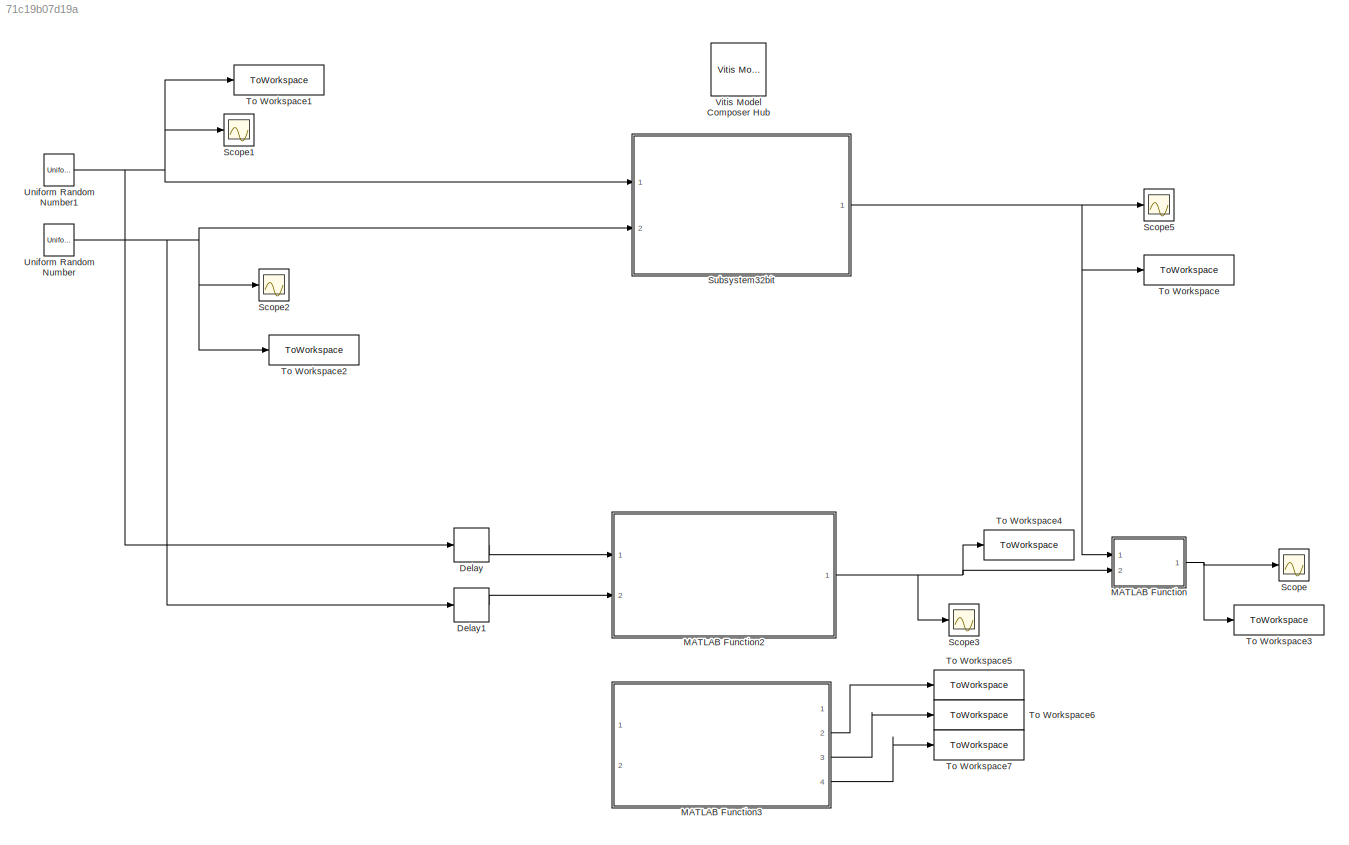
MODEL slx_71c19b07d19a
KIND model
CONFIG AbsTol = auto
CONFIG EnableMultiTasking = off
CONFIG FixedStep = auto
CONFIG MaxStep = auto
CONFIG MinStep = auto
CONFIG RelTol = 1e-3
CONFIG SampleTimeConstraint = Unconstrained
CONFIG SolverName = VariableStepAuto
CONFIG StartTime = 0.0
CONFIG StopTime = 359
BLOCK [Delay] Delay
  DelayLength = 260
  InputPortMap = u0
  Ports = [1, 1]
BLOCK [Delay] Delay1
  DelayLength = 260
  InputPortMap = u0
  Ports = [1, 1]
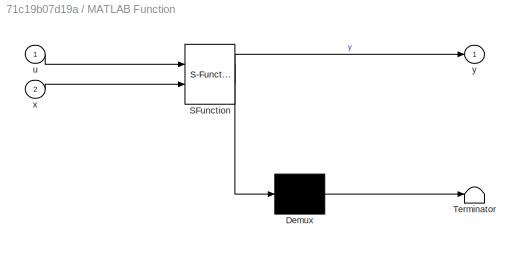
BLOCK [SubSystem] MATLAB Function
  ErrorFcn = Stateflow.Translate.translate
  PermitHierarchicalResolution = ExplicitOnly
  Ports = [2, 1]
  RequestExecContextInheritance = off
  SFBlockType = MATLAB Function
  TreatAsAtomicUnit = on
BLOCK [Demux] MATLAB Function/ Demux 
  Outputs = 1
  Ports = [1, 1]
BLOCK [S-Function] MATLAB Function/ SFunction 
  EnableBusSupport = on
  FunctionName = sf_sfun
  PortCounts = [2 2]
  Ports = [2, 2]
  SFcnIsStateOwnerBlock = off
  SFunctionDeploymentMode = off
  Tag = Stateflow S-Function 2
BLOCK [Terminator] MATLAB Function/ Terminator 
BLOCK [Inport] MATLAB Function/u
BLOCK [Inport] MATLAB Function/x
  Port = 2
BLOCK [Outport] MATLAB Function/y
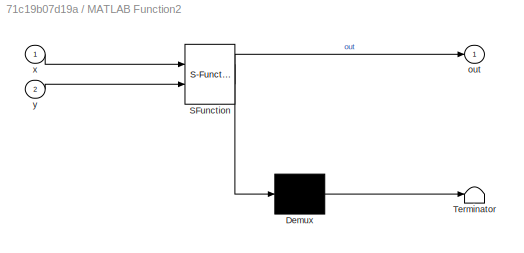
BLOCK [SubSystem] MATLAB Function2
  ErrorFcn = Stateflow.Translate.translate
  PermitHierarchicalResolution = ExplicitOnly
  Ports = [2, 1]
  RequestExecContextInheritance = off
  SFBlockType = MATLAB Function
  TreatAsAtomicUnit = on
BLOCK [Demux] MATLAB Function2/ Demux 
  Outputs = 1
  Ports = [1, 1]
BLOCK [S-Function] MATLAB Function2/ SFunction 
  EnableBusSupport = on
  FunctionName = sf_sfun
  PortCounts = [2 2]
  Ports = [2, 2]
  SFcnIsStateOwnerBlock = off
  SFunctionDeploymentMode = off
  Tag = Stateflow S-Function 3
BLOCK [Terminator] MATLAB Function2/ Terminator 
BLOCK [Outport] MATLAB Function2/out
BLOCK [Inport] MATLAB Function2/x
BLOCK [Inport] MATLAB Function2/y
  Port = 2
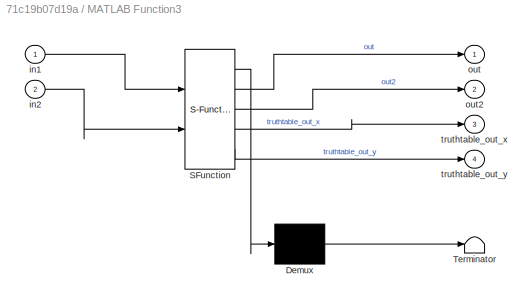
BLOCK [SubSystem] MATLAB Function3
  Commented = on
  ErrorFcn = Stateflow.Translate.translate
  PermitHierarchicalResolution = ExplicitOnly
  Ports = [2, 4]
  RequestExecContextInheritance = off
  SFBlockType = MATLAB Function
  TreatAsAtomicUnit = on
BLOCK [Demux] MATLAB Function3/ Demux 
  Outputs = 1
  Ports = [1, 1]
BLOCK [S-Function] MATLAB Function3/ SFunction 
  EnableBusSupport = on
  FunctionName = sf_sfun
  PortCounts = [2 5]
  Ports = [2, 5]
  SFcnIsStateOwnerBlock = off
  SFunctionDeploymentMode = off
  Tag = Stateflow S-Function 4
BLOCK [Terminator] MATLAB Function3/ Terminator 
BLOCK [Inport] MATLAB Function3/in1
BLOCK [Inport] MATLAB Function3/in2
  Port = 2
BLOCK [Outport] MATLAB Function3/out
BLOCK [Outport] MATLAB Function3/out2
  Port = 2
BLOCK [Outport] MATLAB Function3/truthtable_out_x
  Port = 3
BLOCK [Outport] MATLAB Function3/truthtable_out_y
  Port = 4
BLOCK [Scope] Scope
  Floating = off
  NumInputPorts = 1
  Ports = [1]
  ScopeSpecificationString = Simulink.scopes.TimeScopeBlockCfg('CurrentConfiguration', extmgr.ConfigurationSet(extmgr.Configuration('Core','General UI',true),extmgr.Configuration('Core','Source UI',true),extmgr.Configuration('Sources','WiredSimulink',true,'DataLoggingVariableName','ScopeData2'),extmgr.Configuration('Visuals','Time Domain',true,'SerializedDisplays',{struct('MinYLimReal','-0.242','MaxYLimReal','2.178','YLabelRe...<+1435ch>
BLOCK [Scope] Scope1
  Floating = off
  NumInputPorts = 1
  Ports = [1]
  ScopeSpecificationString = Simulink.scopes.TimeScopeBlockCfg('CurrentConfiguration', extmgr.ConfigurationSet(extmgr.Configuration('Core','General UI',true),extmgr.Configuration('Core','Source UI',true),extmgr.Configuration('Sources','WiredSimulink',true,'DataLoggingVariableName','ScopeData1'),extmgr.Configuration('Visuals','Time Domain',true,'SerializedDisplays',{struct('MinYLimReal','-1.24569','MaxYLimReal','1.24649','YLab...<+1488ch>
BLOCK [Scope] Scope2
  Floating = off
  NumInputPorts = 1
  Ports = [1]
  ScopeSpecificationString = Simulink.scopes.TimeScopeBlockCfg('CurrentConfiguration', extmgr.ConfigurationSet(extmgr.Configuration('Core','General UI',true),extmgr.Configuration('Core','Source UI',true),extmgr.Configuration('Sources','WiredSimulink',true,'DataLoggingVariableName','ScopeData2'),extmgr.Configuration('Visuals','Time Domain',true,'SerializedDisplays',{struct('MinYLimReal','-1.24853','MaxYLimReal','1.24863','YLab...<+1452ch>
BLOCK [Scope] Scope3
  Floating = off
  NumInputPorts = 1
  Ports = [1]
  ScopeSpecificationString = Simulink.scopes.TimeScopeBlockCfg('CurrentConfiguration', extmgr.ConfigurationSet(extmgr.Configuration('Core','General UI',true),extmgr.Configuration('Core','Source UI',true),extmgr.Configuration('Sources','WiredSimulink',true,'DataLoggingVariableName','ScopeData3'),extmgr.Configuration('Visuals','Time Domain',true),extmgr.Configuration('Tools','Plot Navigation',true),extmgr.Configuration('Tools',...<+40ch>
BLOCK [Scope] Scope5
  Floating = off
  NumInputPorts = 1
  Ports = [1]
  ScopeSpecificationString = Simulink.scopes.TimeScopeBlockCfg('CurrentConfiguration', extmgr.ConfigurationSet(extmgr.Configuration('Core','General UI',true),extmgr.Configuration('Core','Source UI',true),extmgr.Configuration('Sources','WiredSimulink',true,'DataLoggingVariableName','ScopeData1'),extmgr.Configuration('Visuals','Time Domain',true,'SerializedDisplays',{struct('MinYLimReal','-0.17678','MaxYLimReal','1.59099','YLab...<+1402ch>
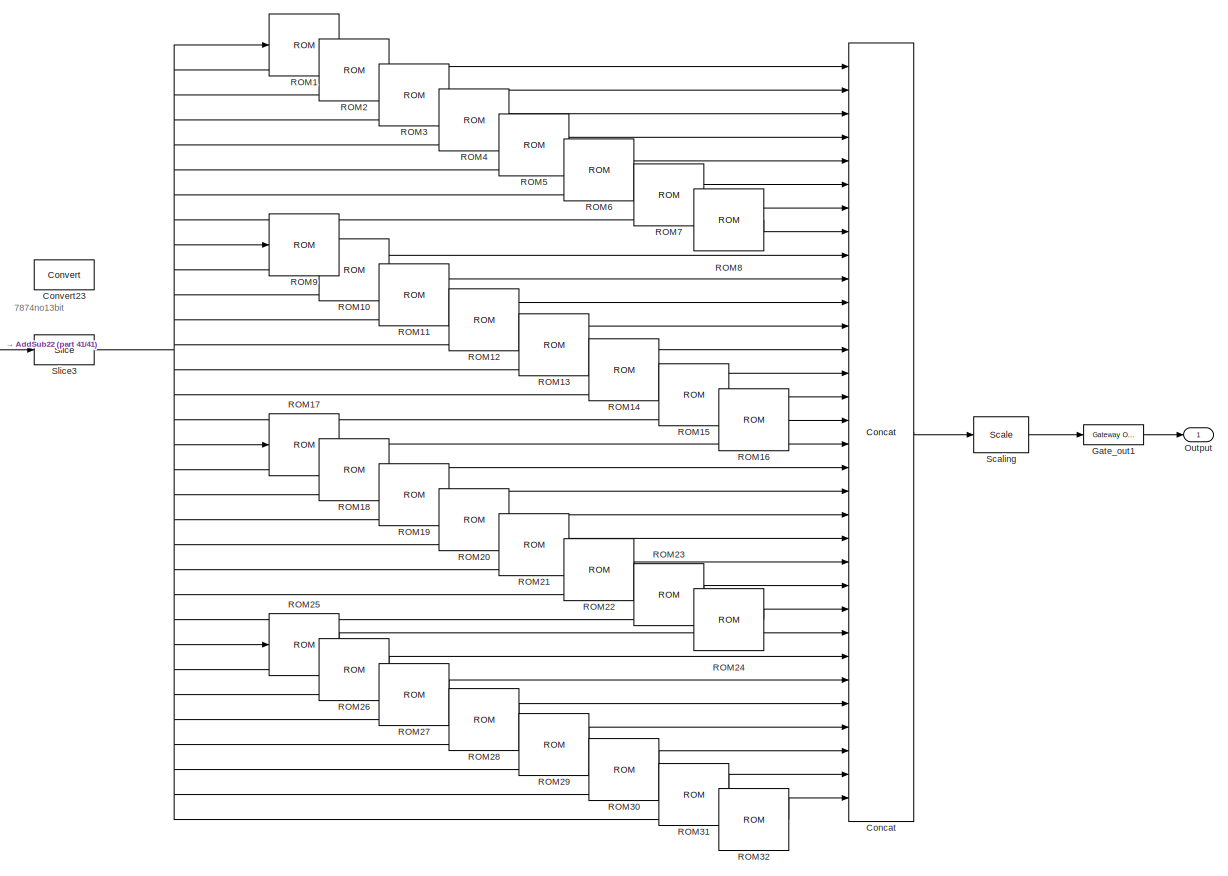
[diagram: Subsystem32bit - part 1/41, right side, full height]
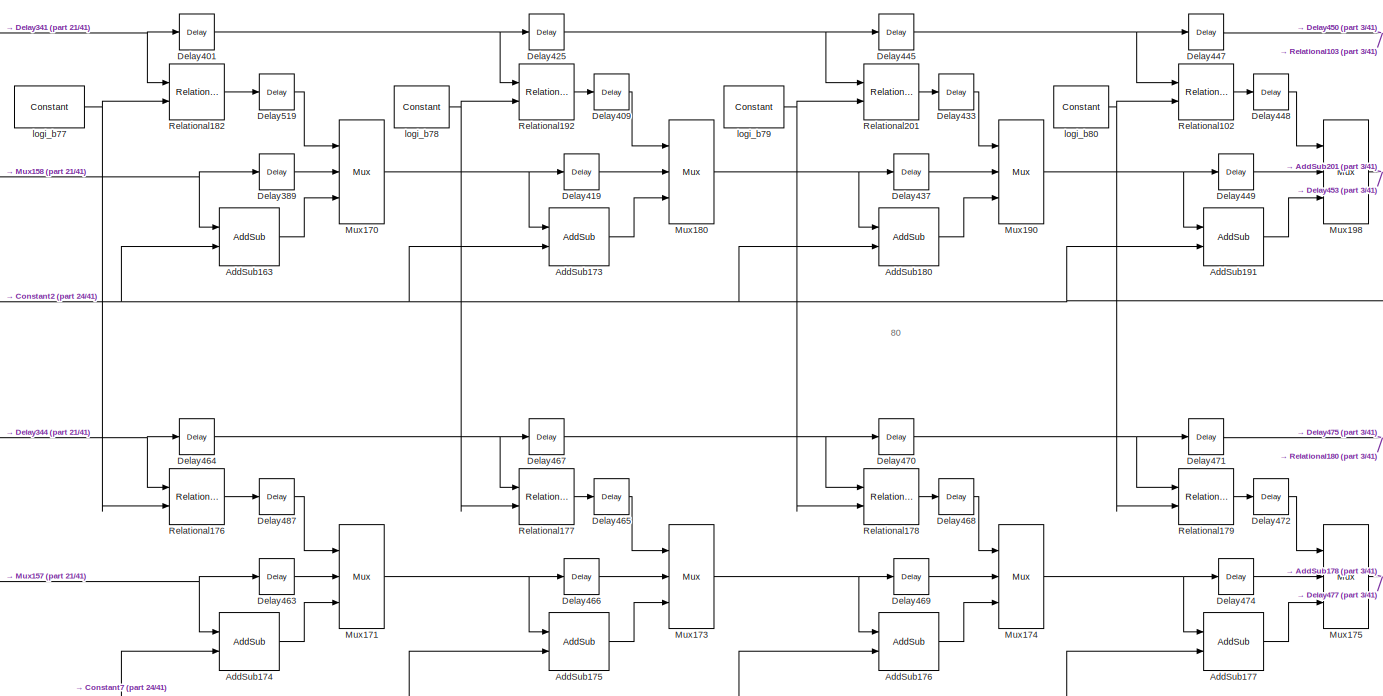
[diagram: Subsystem32bit - part 2/41, center side, full height]
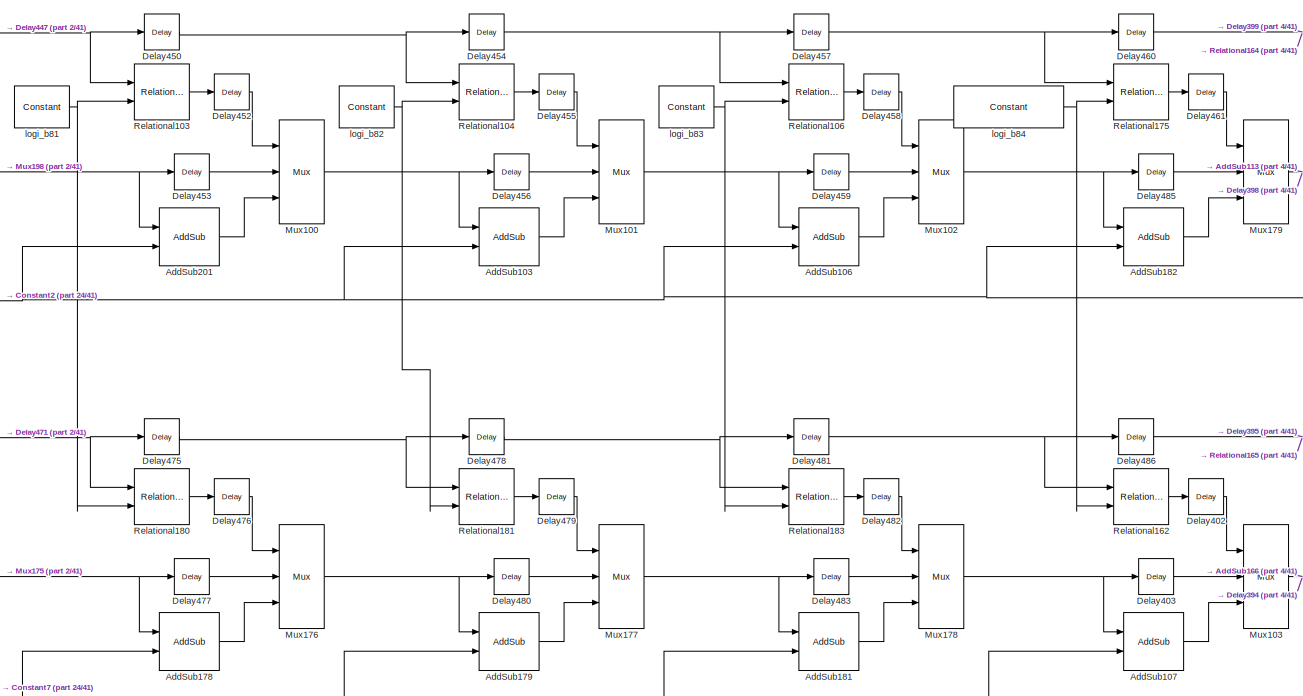
[diagram: Subsystem32bit - part 3/41, center side, full height]
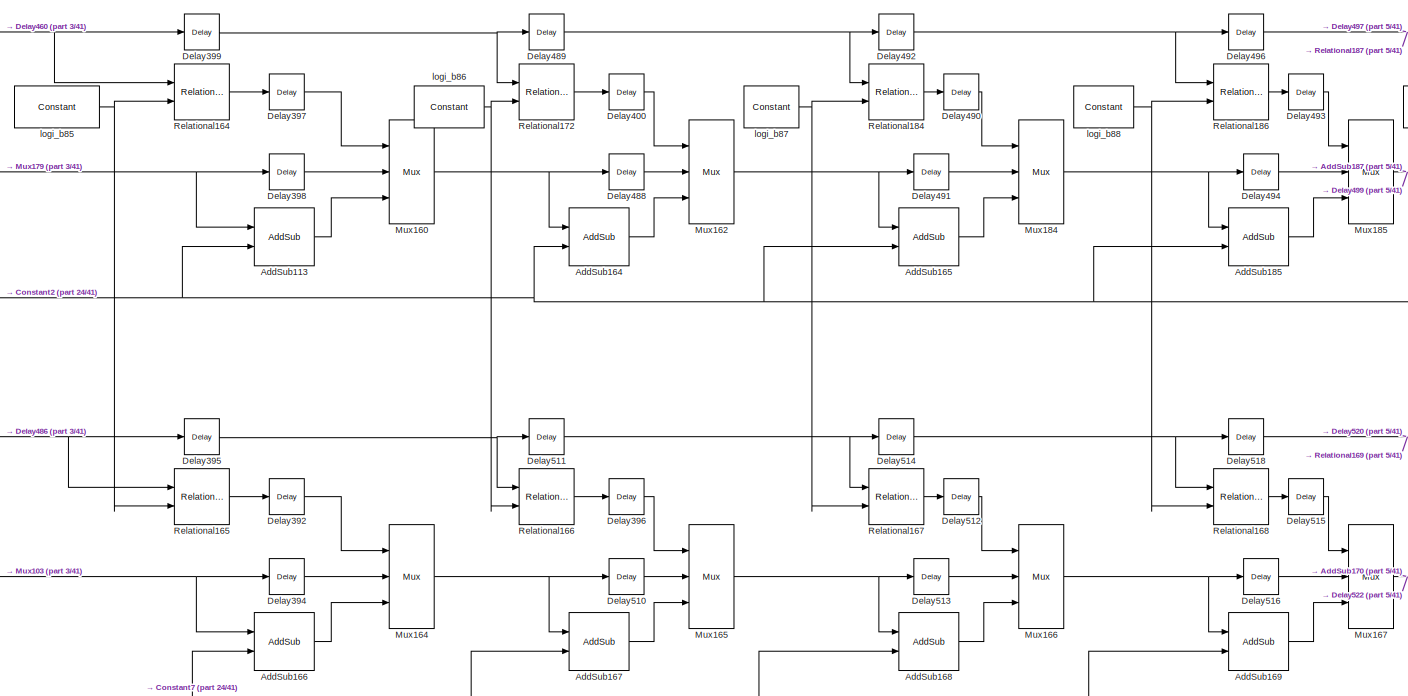
[diagram: Subsystem32bit - part 4/41, center side, full height]
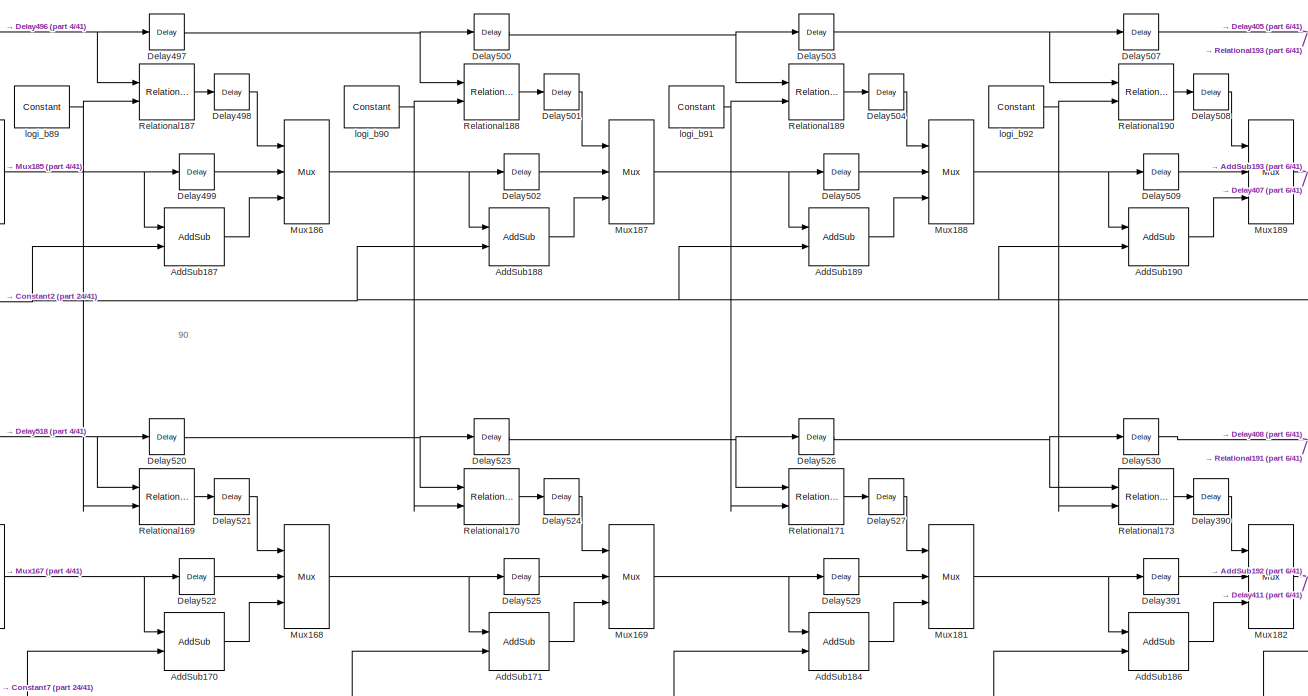
[diagram: Subsystem32bit - part 5/41, right side, full height]
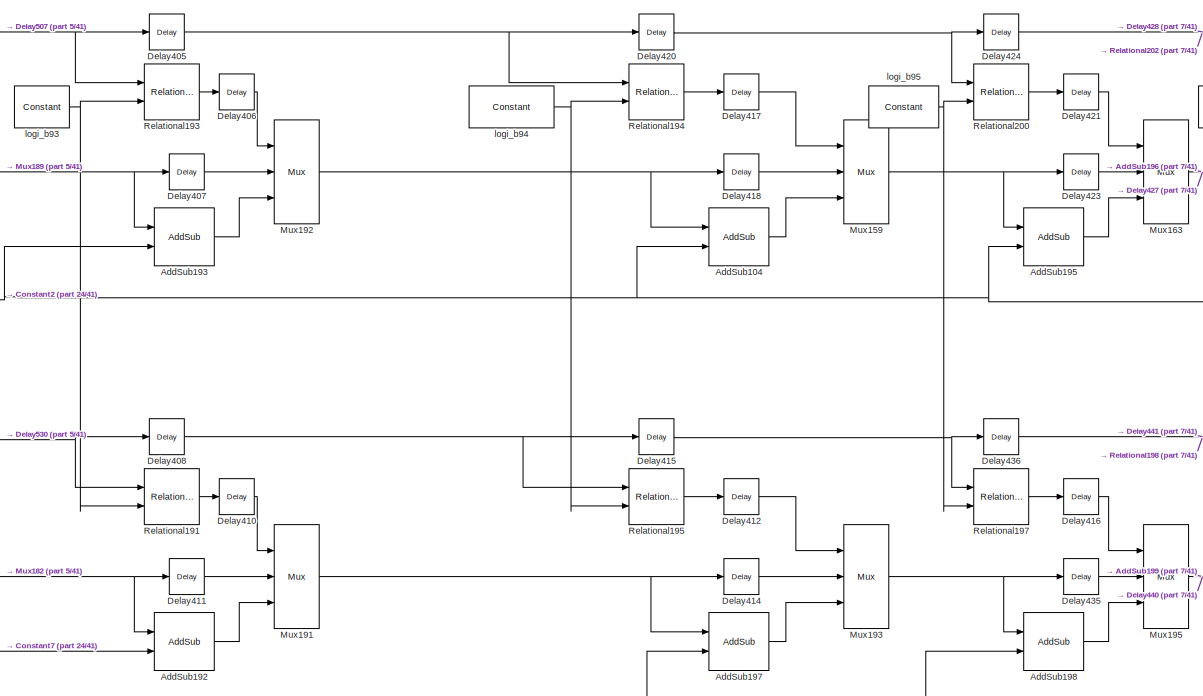
[diagram: Subsystem32bit - part 6/41, right side, full height]
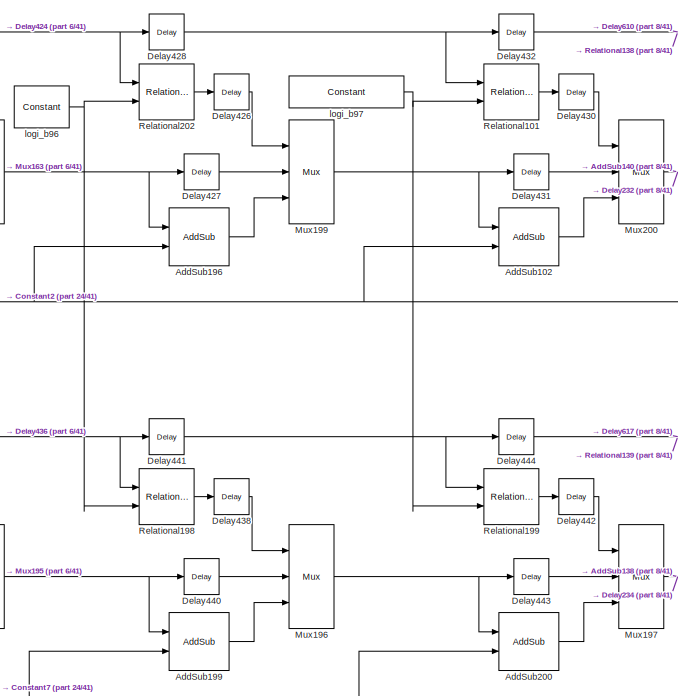
[diagram: Subsystem32bit - part 7/41, right side, full height]
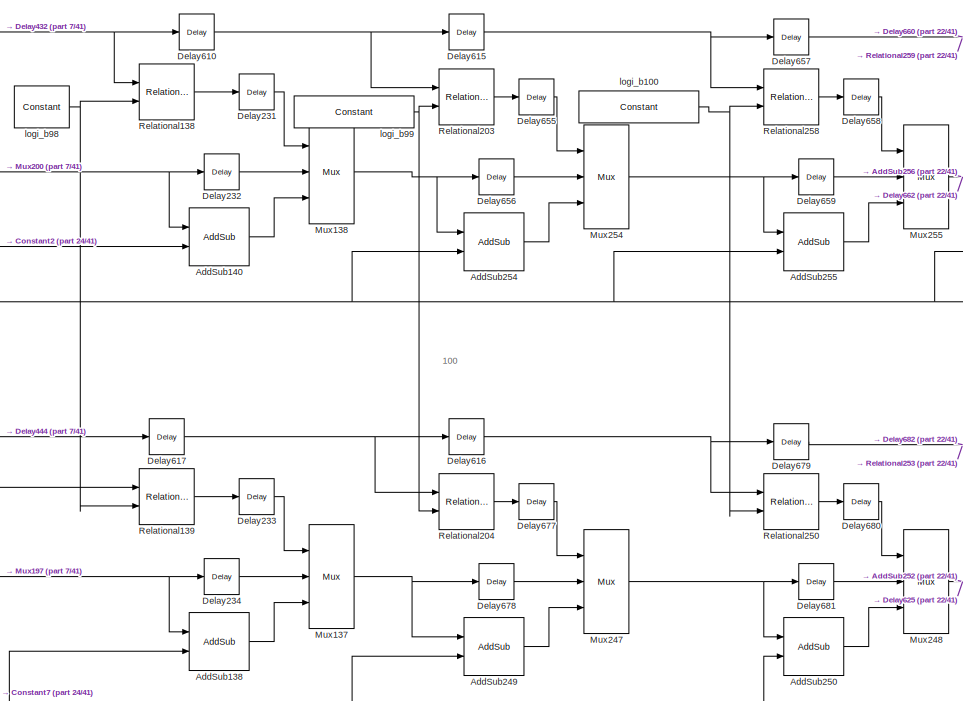
[diagram: Subsystem32bit - part 8/41, right side, full height]
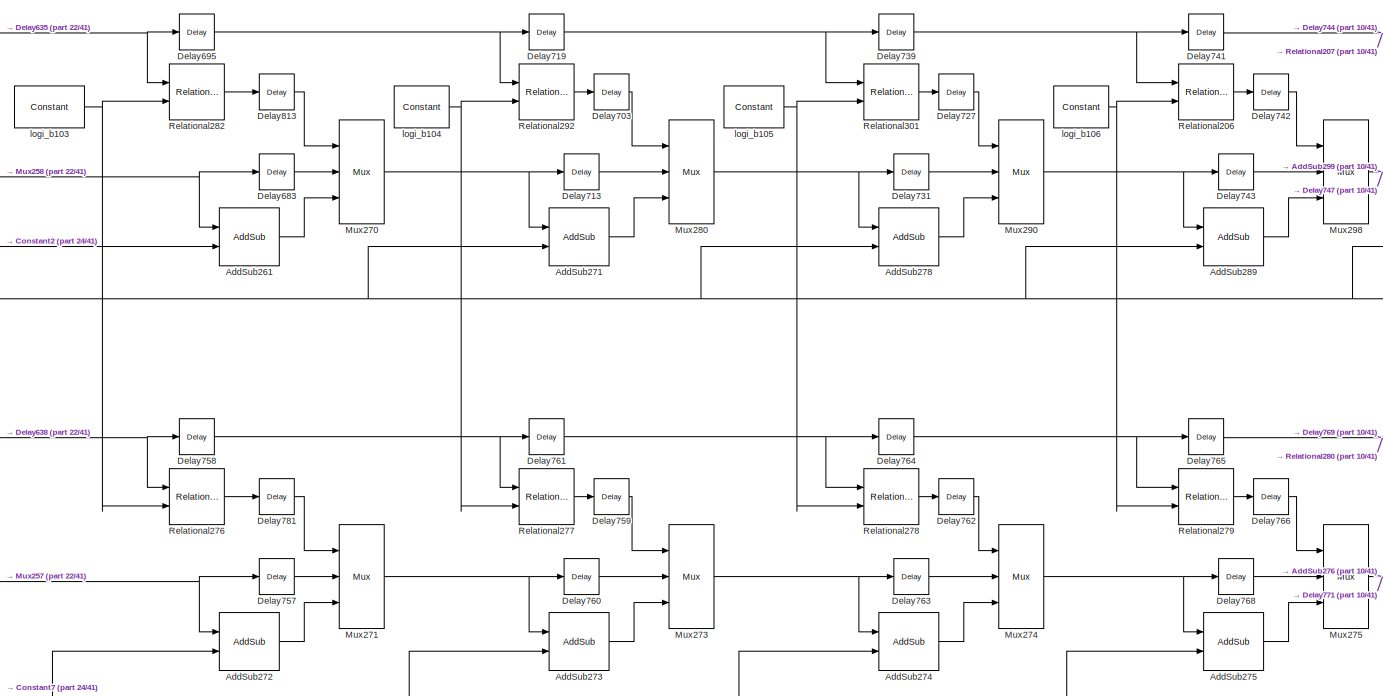
[diagram: Subsystem32bit - part 9/41, right side, full height]
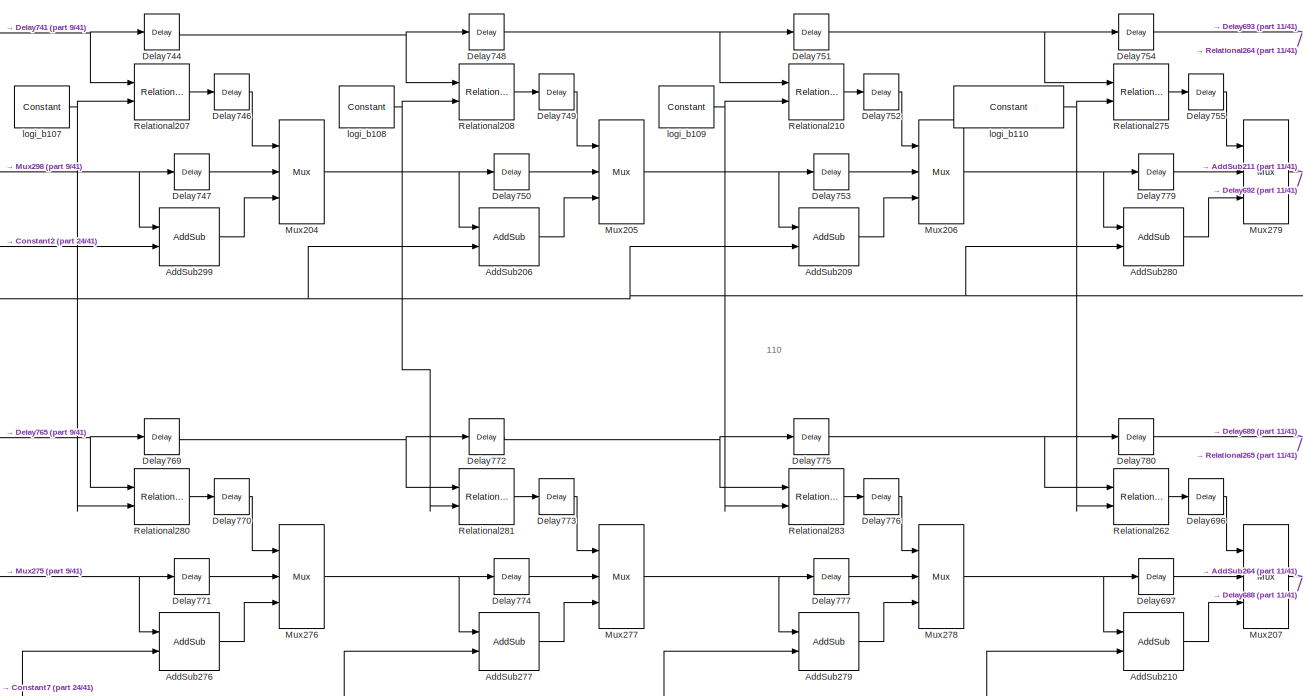
[diagram: Subsystem32bit - part 10/41, right side, full height]
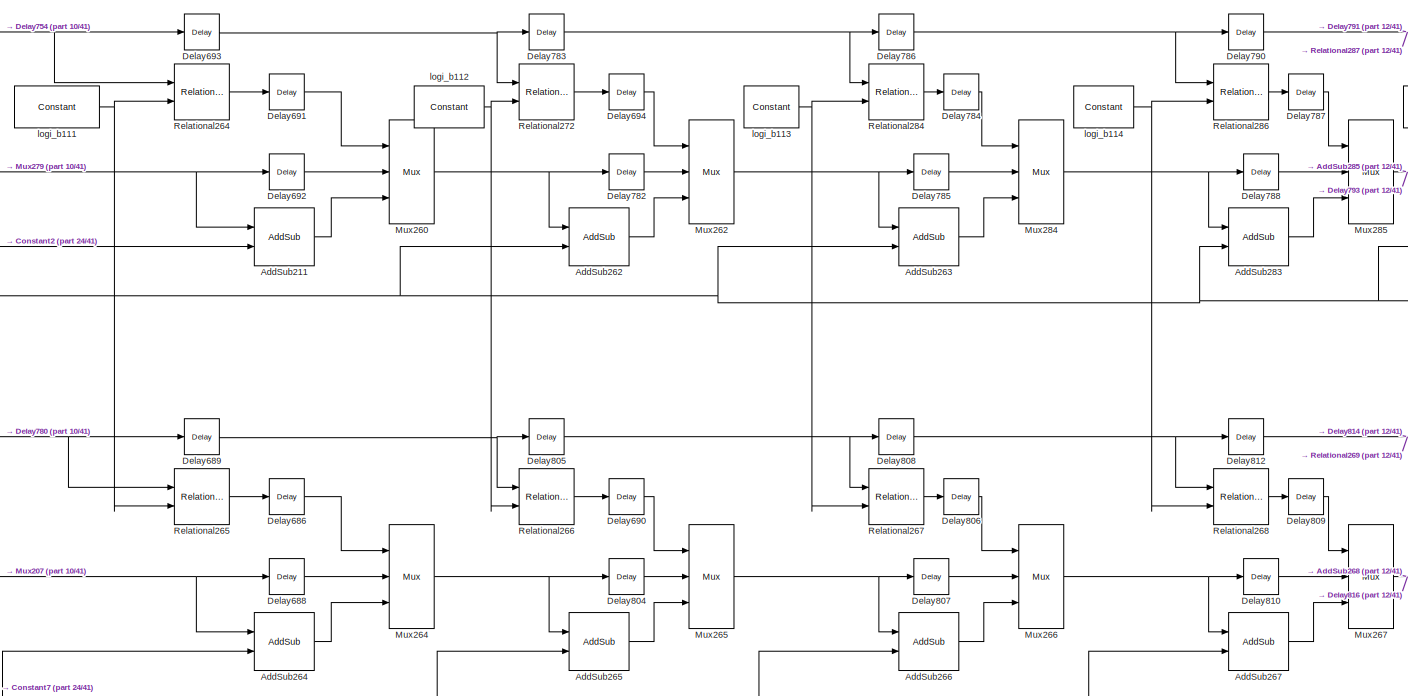
[diagram: Subsystem32bit - part 11/41, right side, full height]
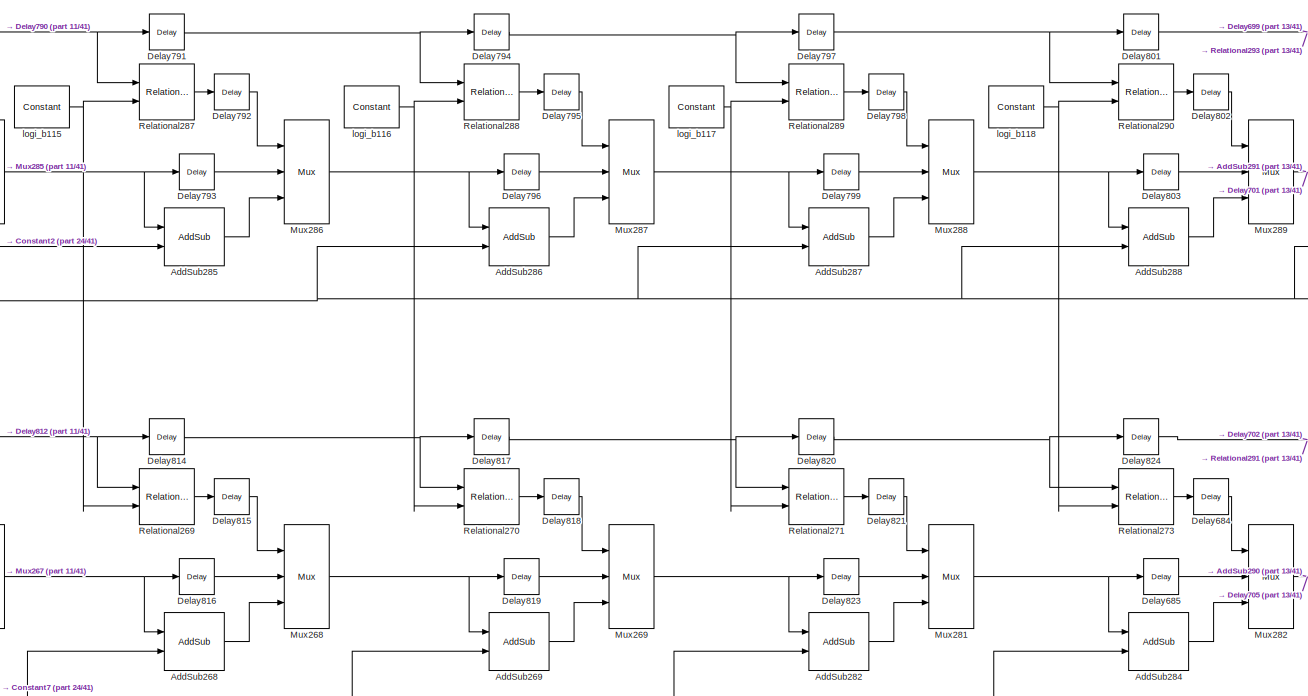
[diagram: Subsystem32bit - part 12/41, right side, full height]
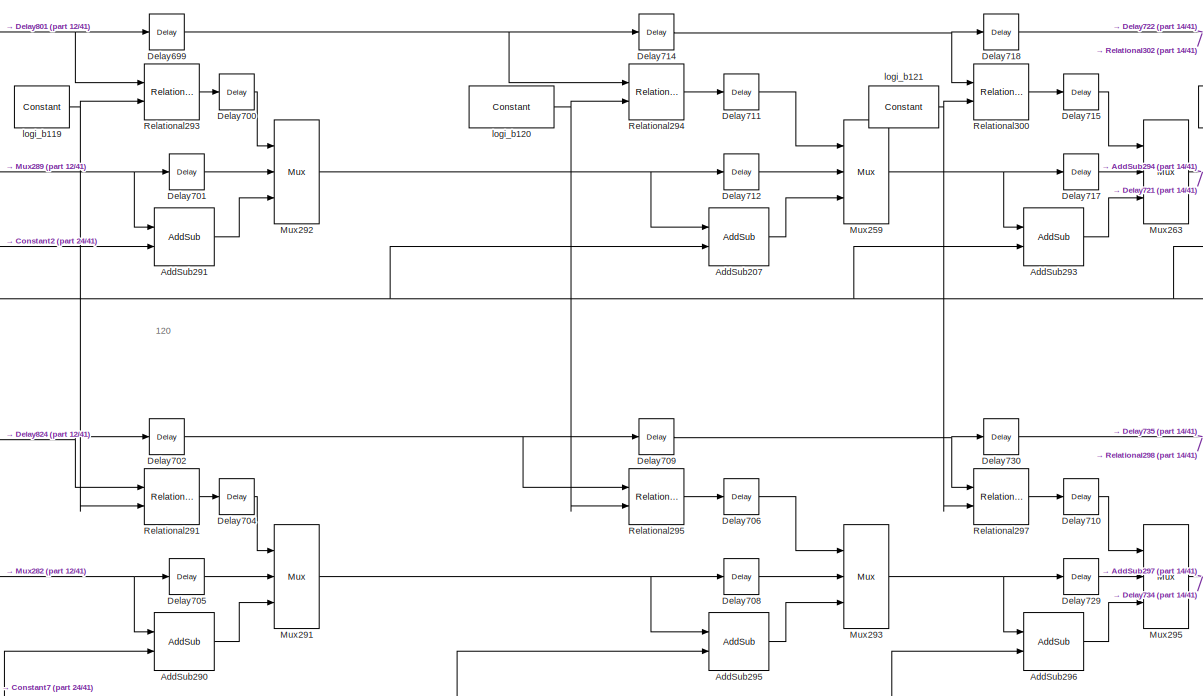
[diagram: Subsystem32bit - part 13/41, right side, full height]
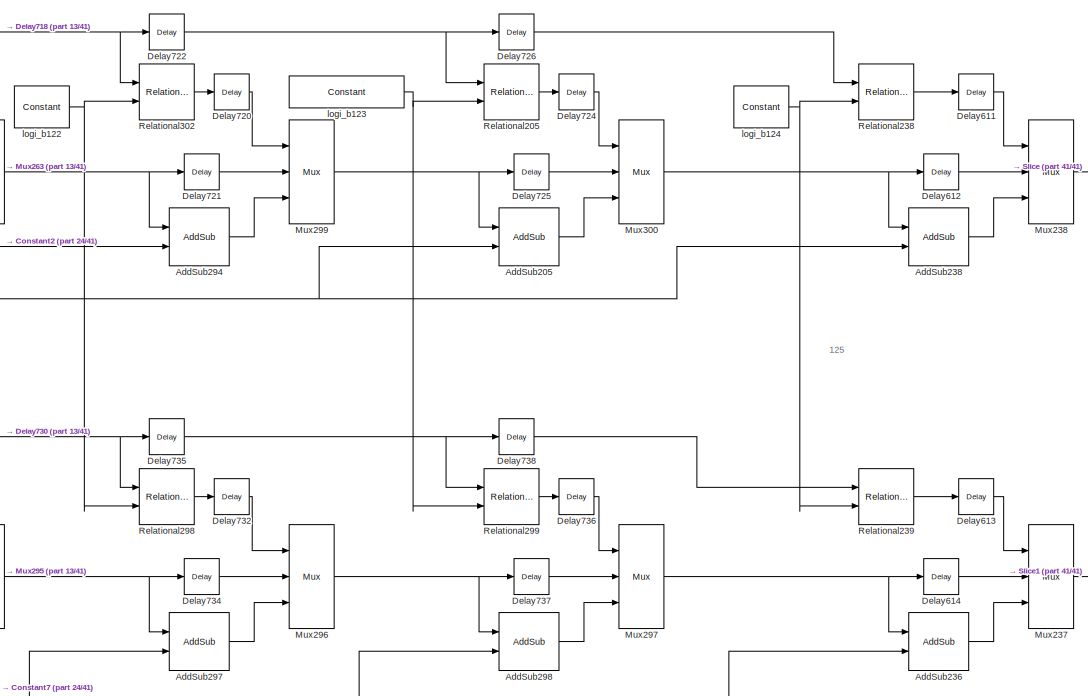
[diagram: Subsystem32bit - part 14/41, right side, full height]
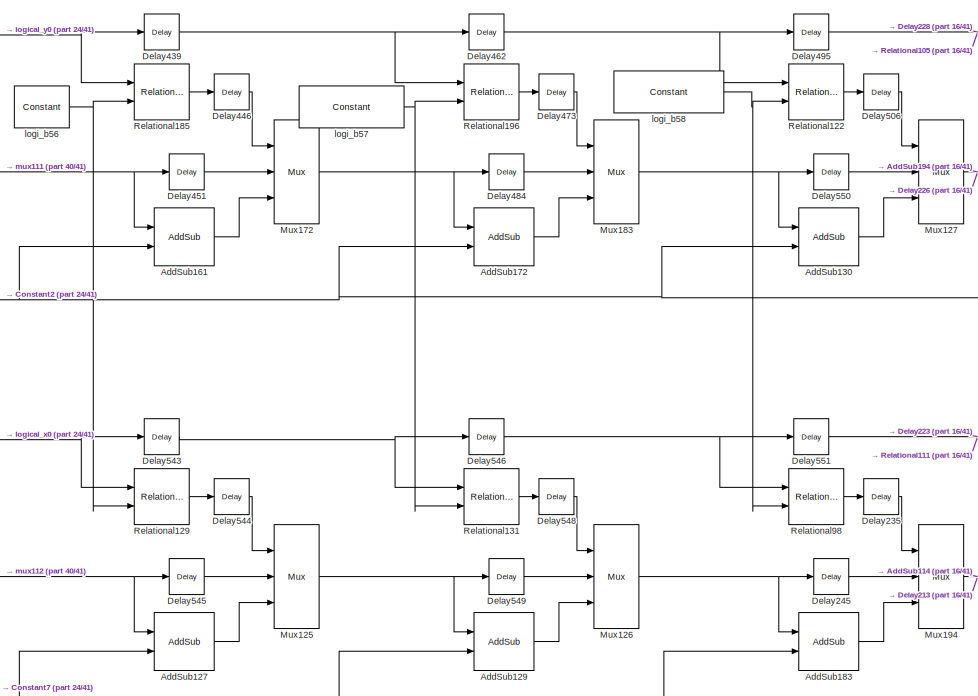
[diagram: Subsystem32bit - part 15/41, center side, full height]
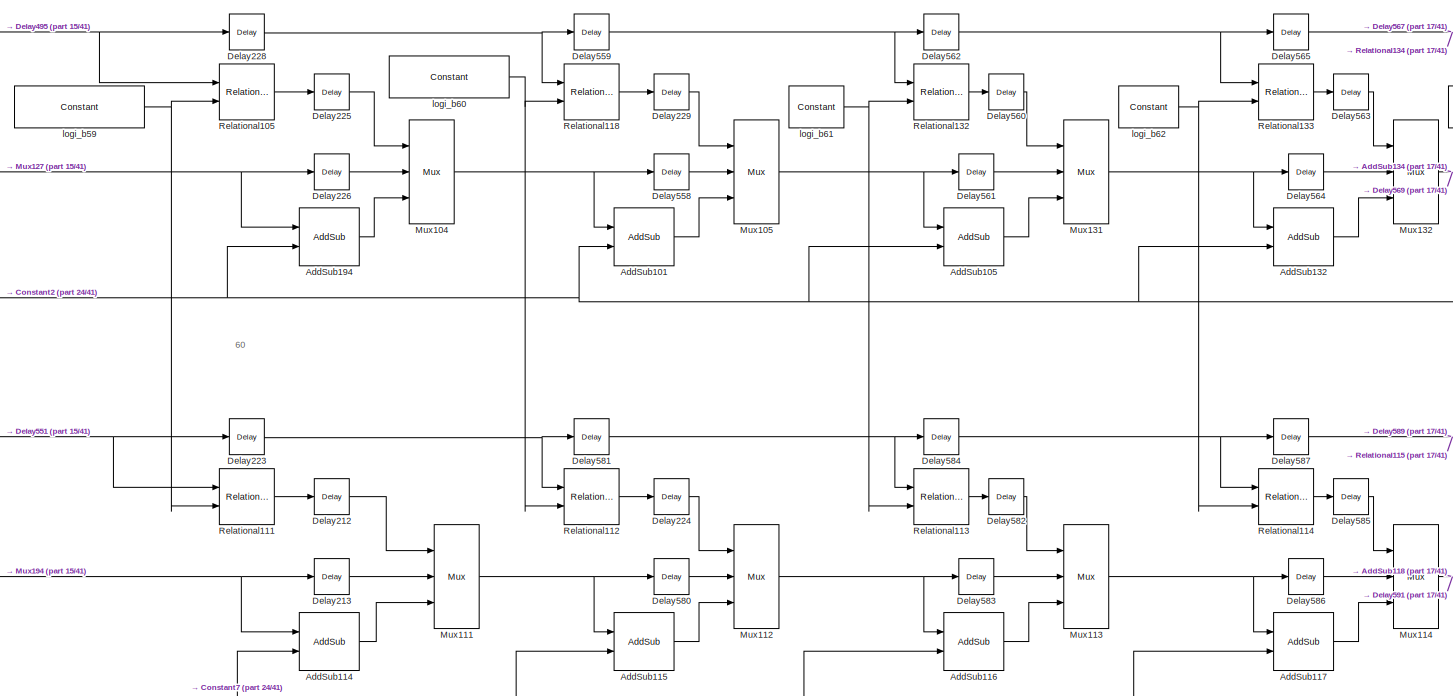
[diagram: Subsystem32bit - part 16/41, center side, full height]
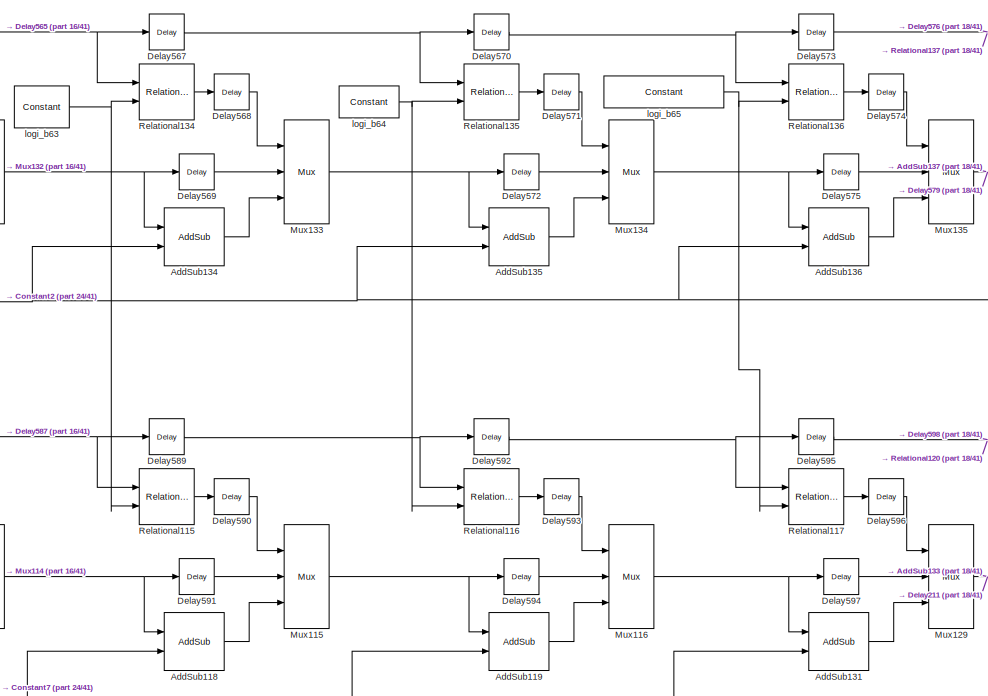
[diagram: Subsystem32bit - part 17/41, center side, full height]
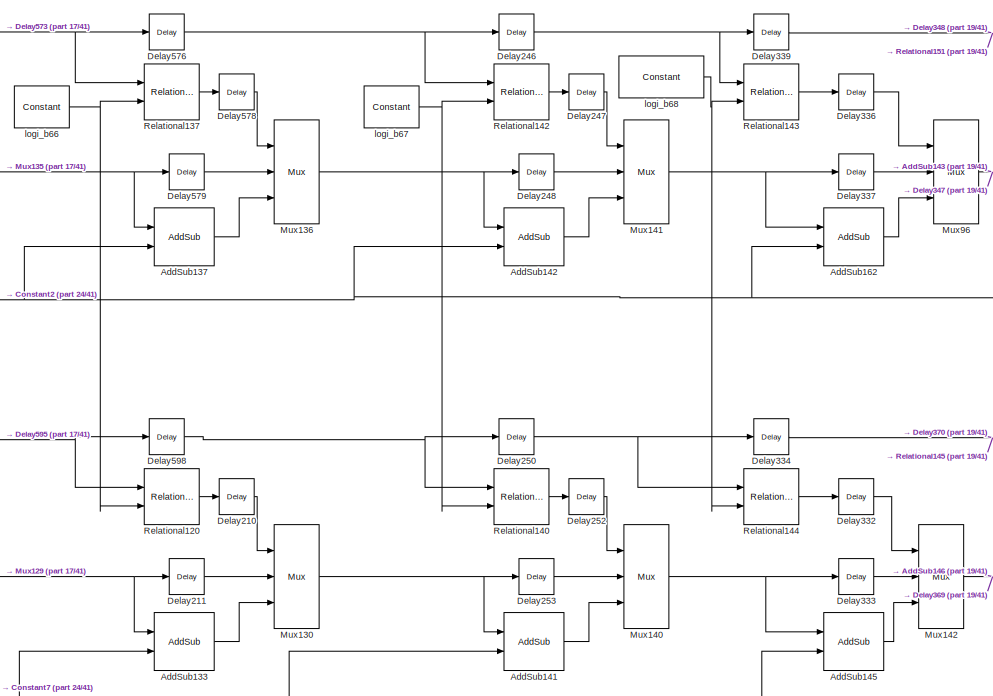
[diagram: Subsystem32bit - part 18/41, center side, full height]
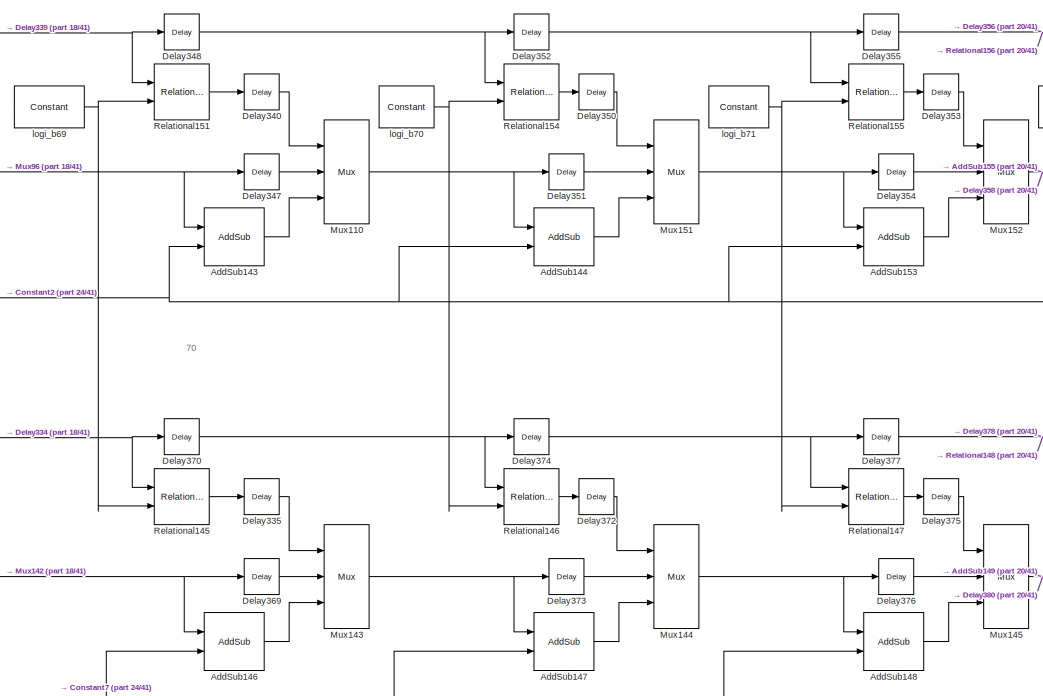
[diagram: Subsystem32bit - part 19/41, center side, full height]
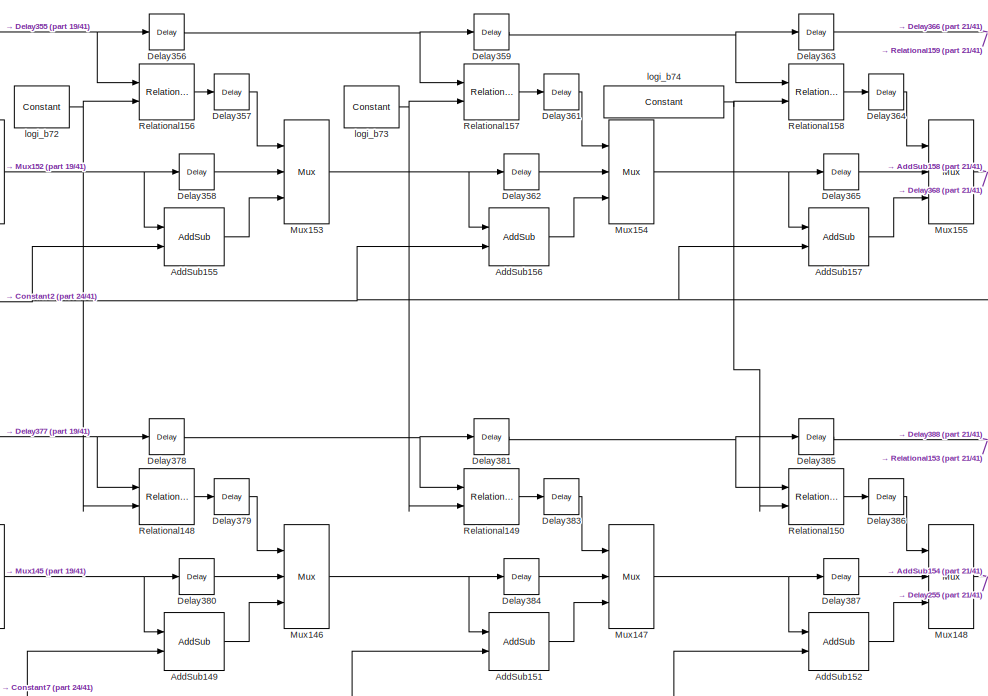
[diagram: Subsystem32bit - part 20/41, center side, full height]
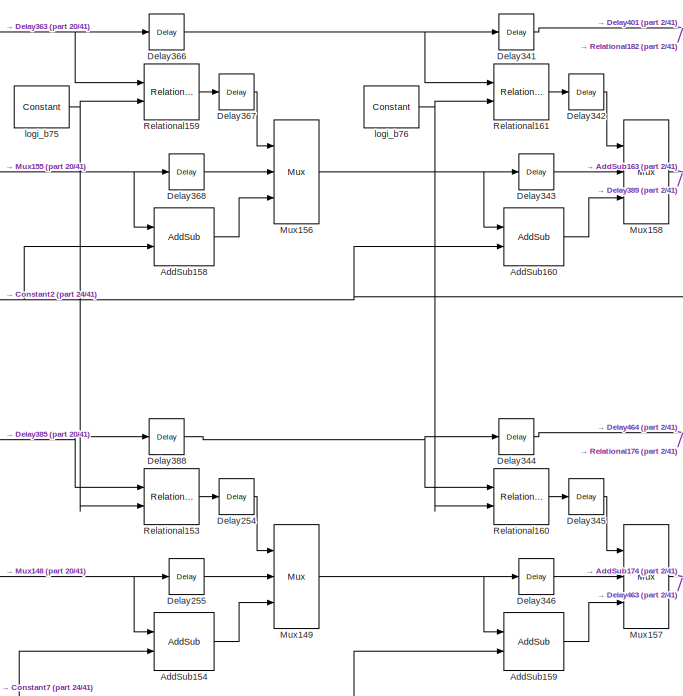
[diagram: Subsystem32bit - part 21/41, center side, full height]
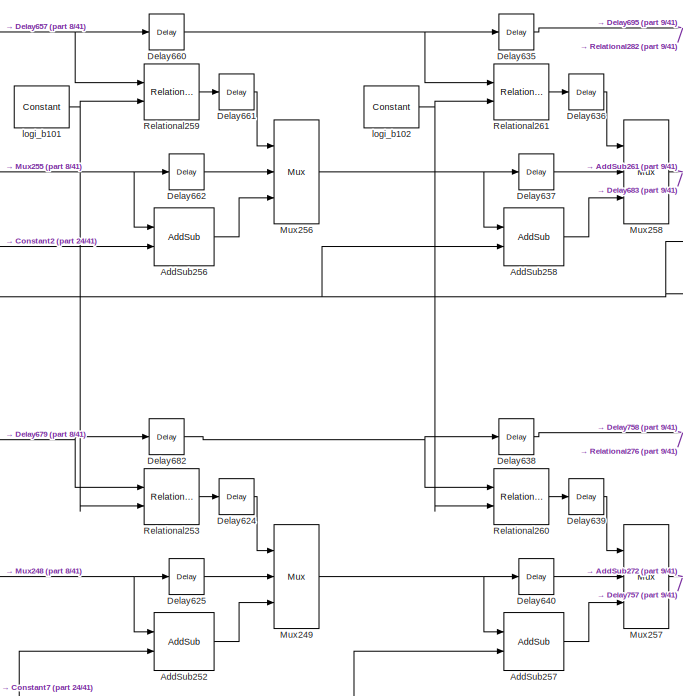
[diagram: Subsystem32bit - part 22/41, right side, full height]
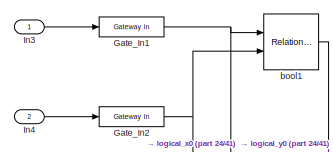
[diagram: Subsystem32bit - part 23/41, top left region]
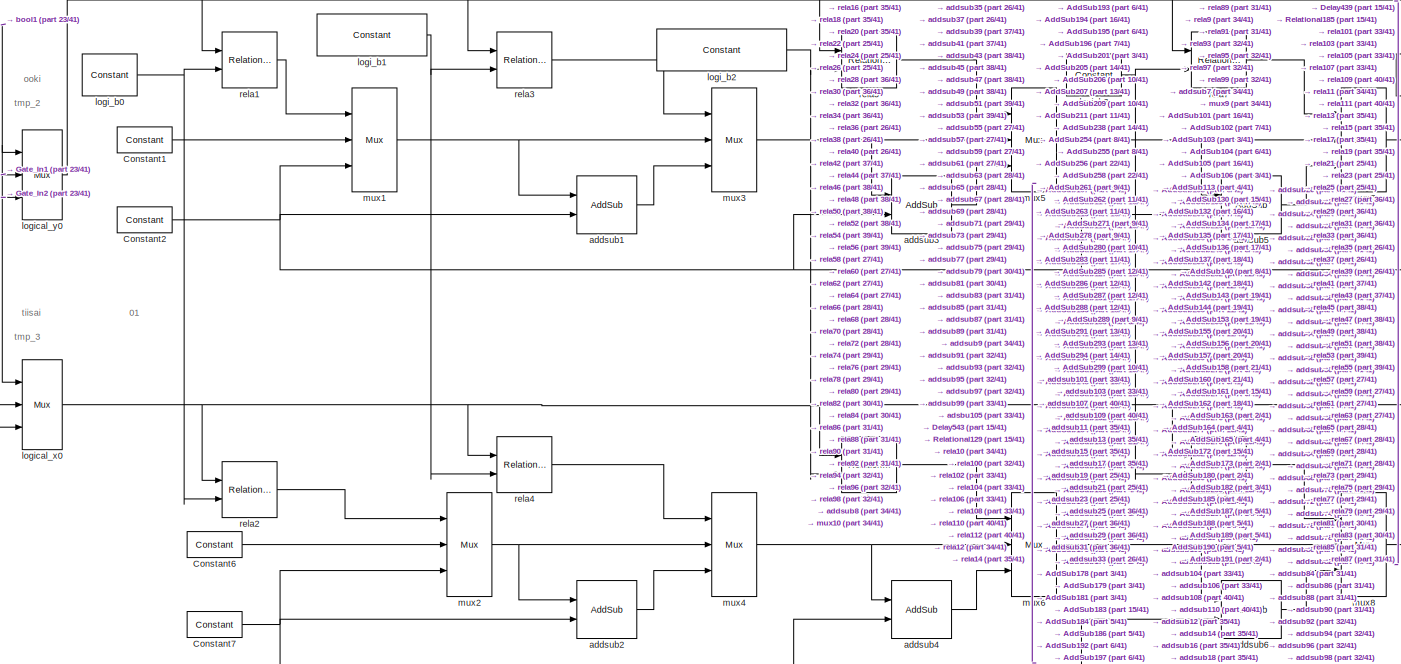
[diagram: Subsystem32bit - part 24/41, left side, full height]
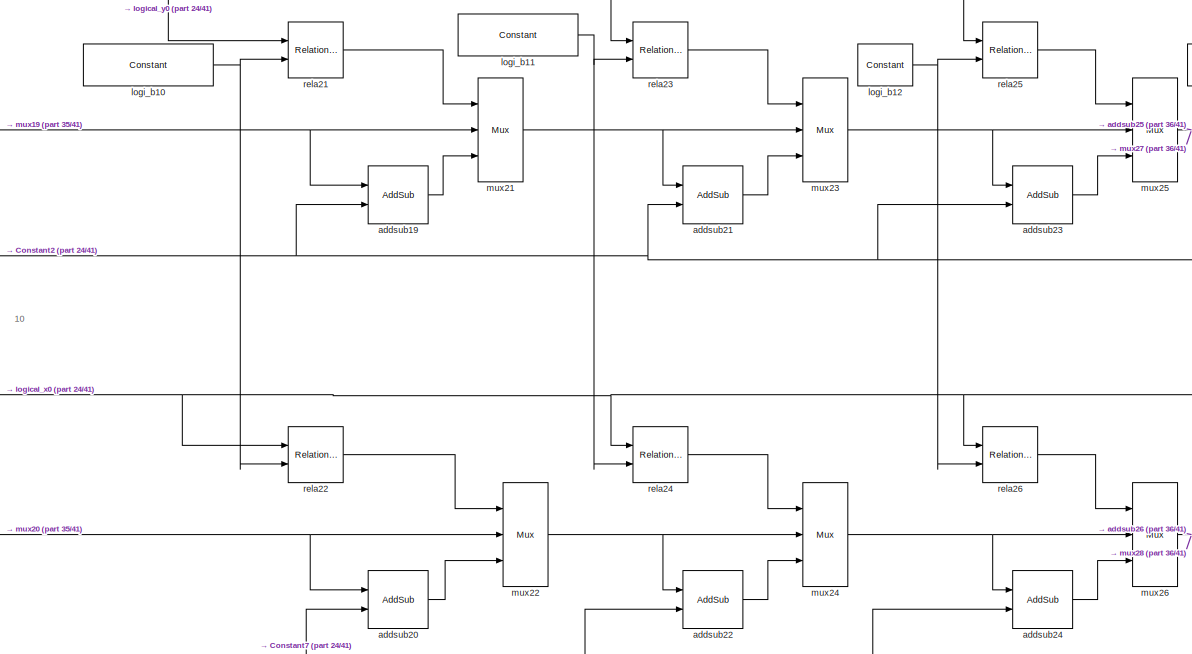
[diagram: Subsystem32bit - part 25/41, middle left region]
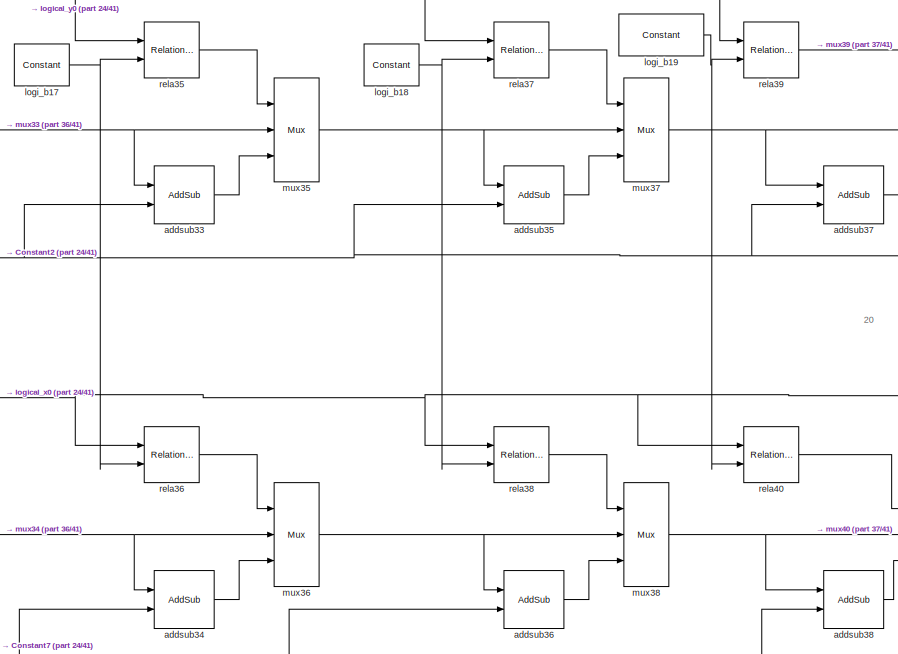
[diagram: Subsystem32bit - part 26/41, middle left region]
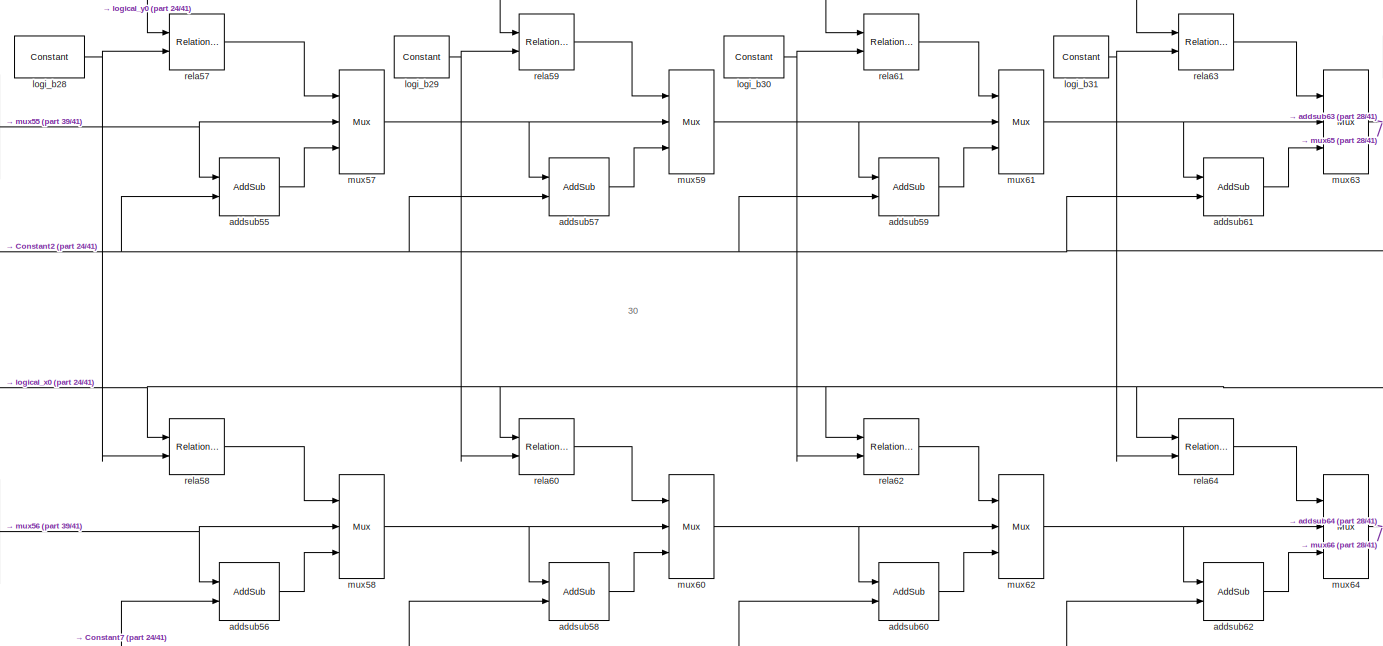
[diagram: Subsystem32bit - part 27/41, middle left region]
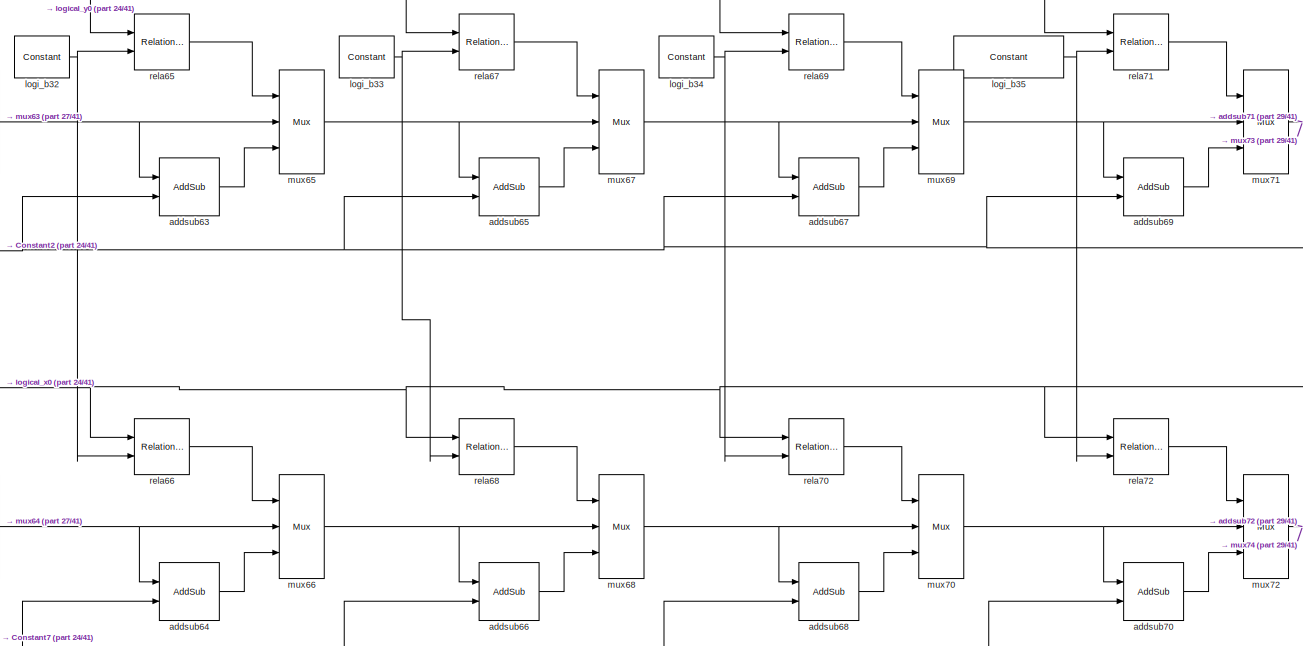
[diagram: Subsystem32bit - part 28/41, middle left region]
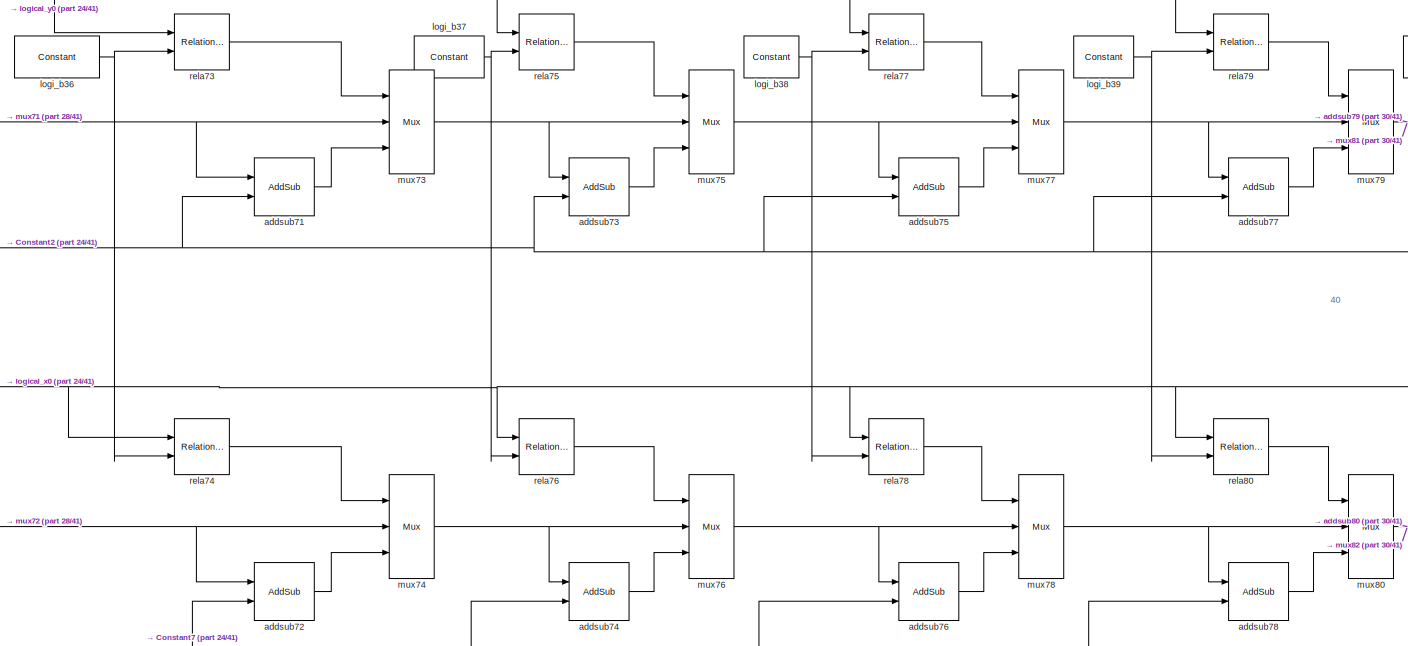
[diagram: Subsystem32bit - part 29/41, middle left region]
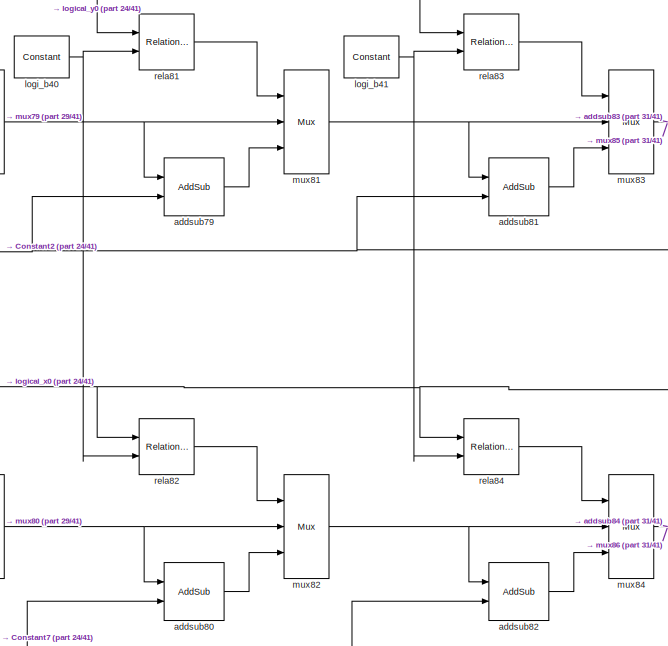
[diagram: Subsystem32bit - part 30/41, middle left region]
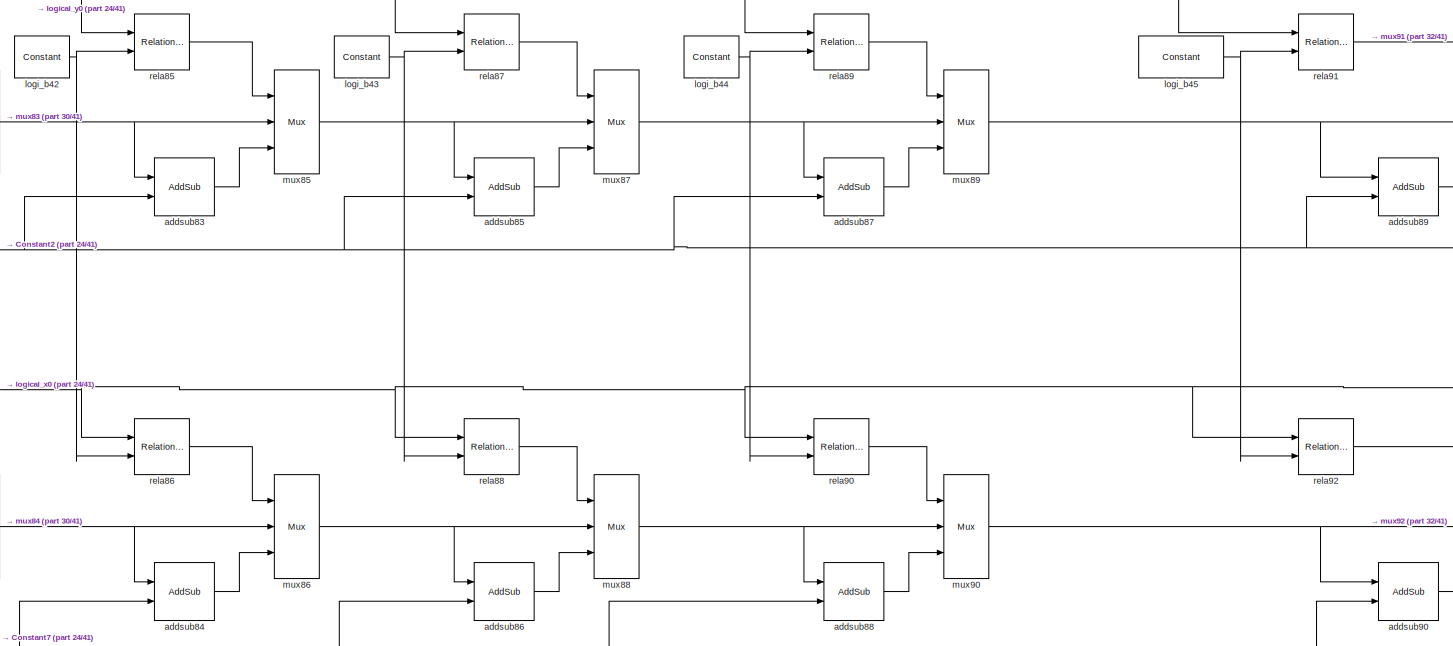
[diagram: Subsystem32bit - part 31/41, middle left region]
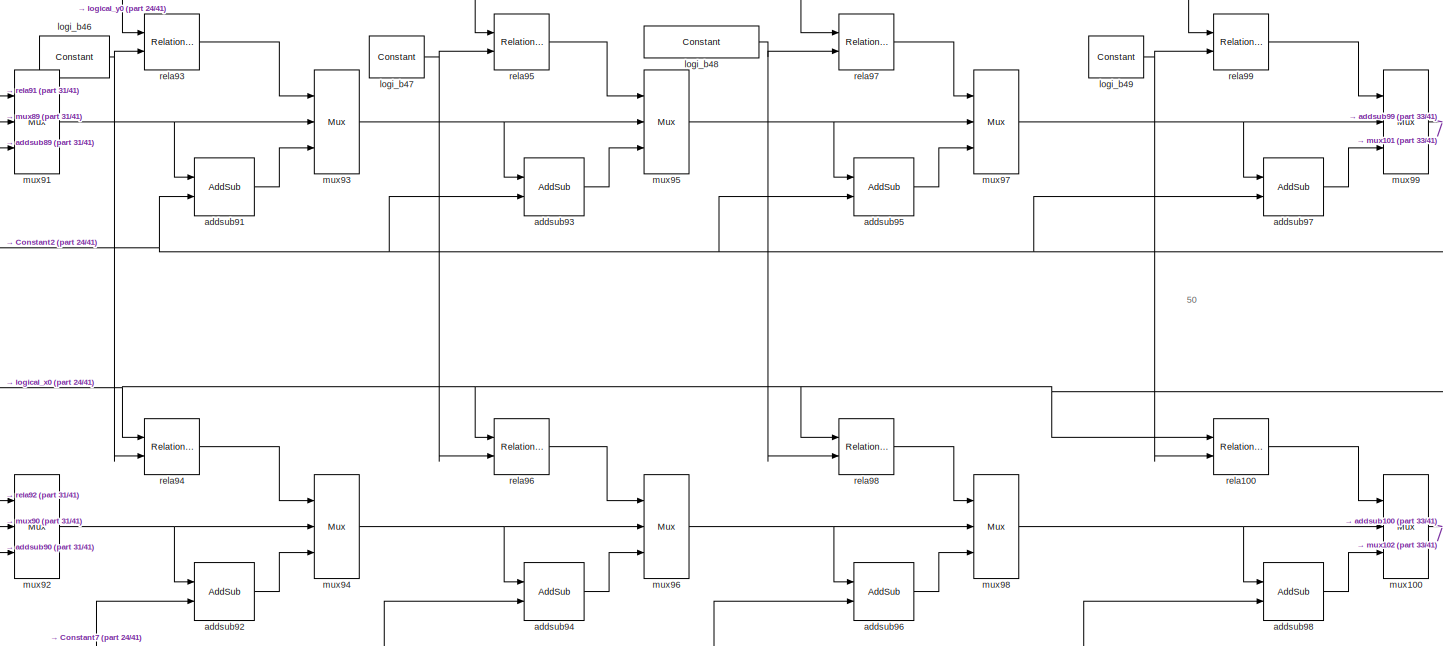
[diagram: Subsystem32bit - part 32/41, central region]
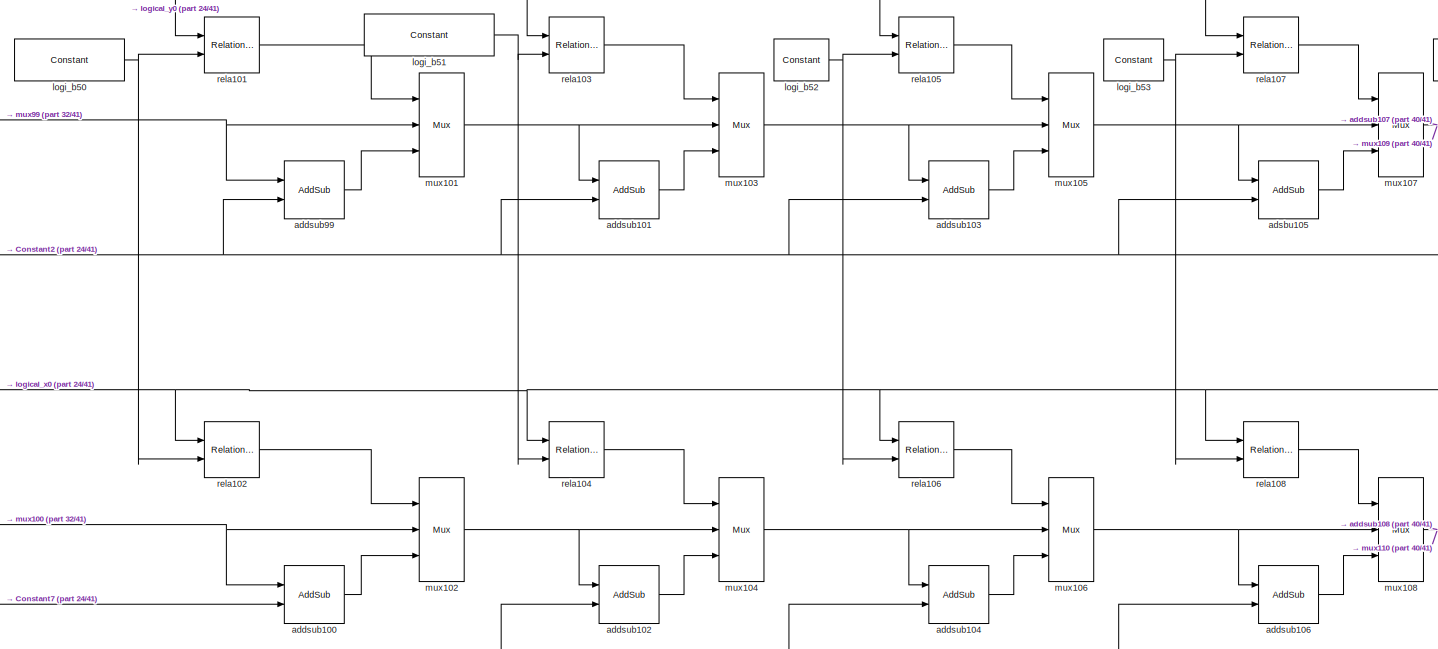
[diagram: Subsystem32bit - part 33/41, central region]
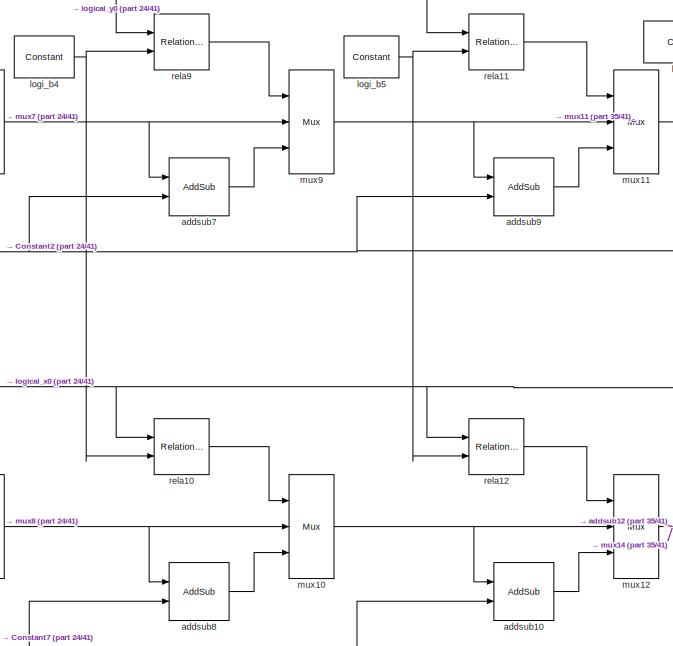
[diagram: Subsystem32bit - part 34/41, middle left region]
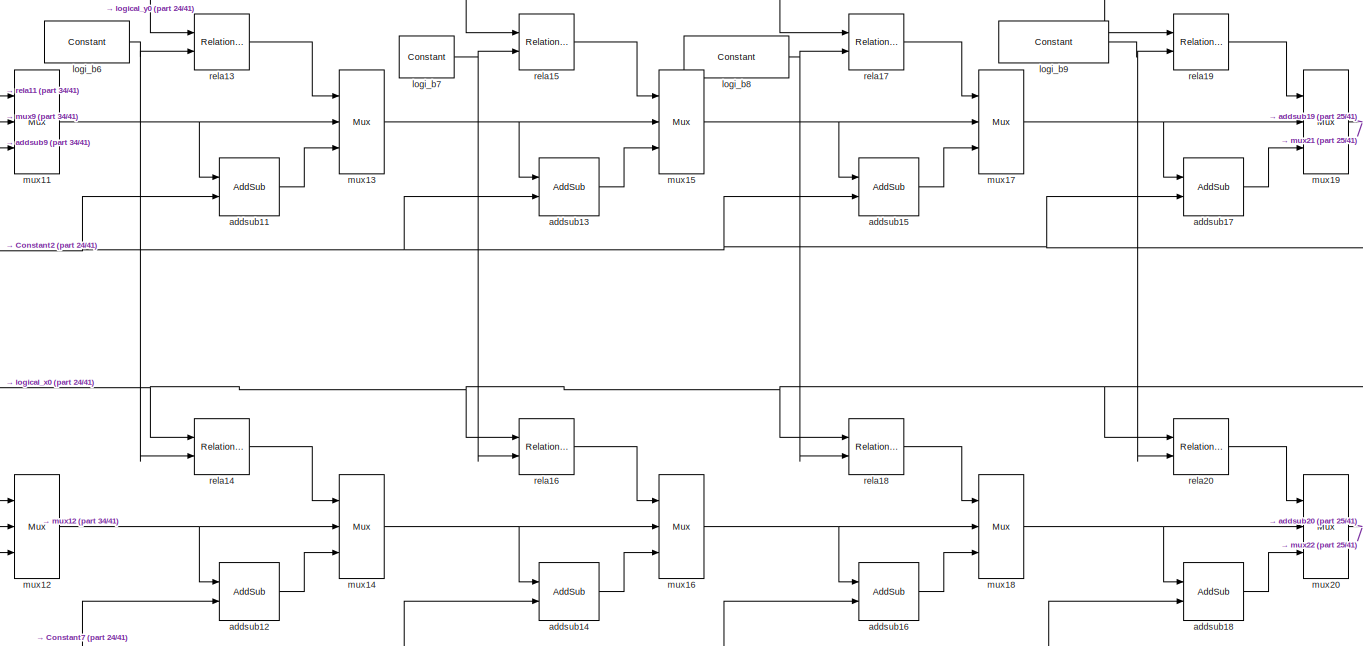
[diagram: Subsystem32bit - part 35/41, middle left region]
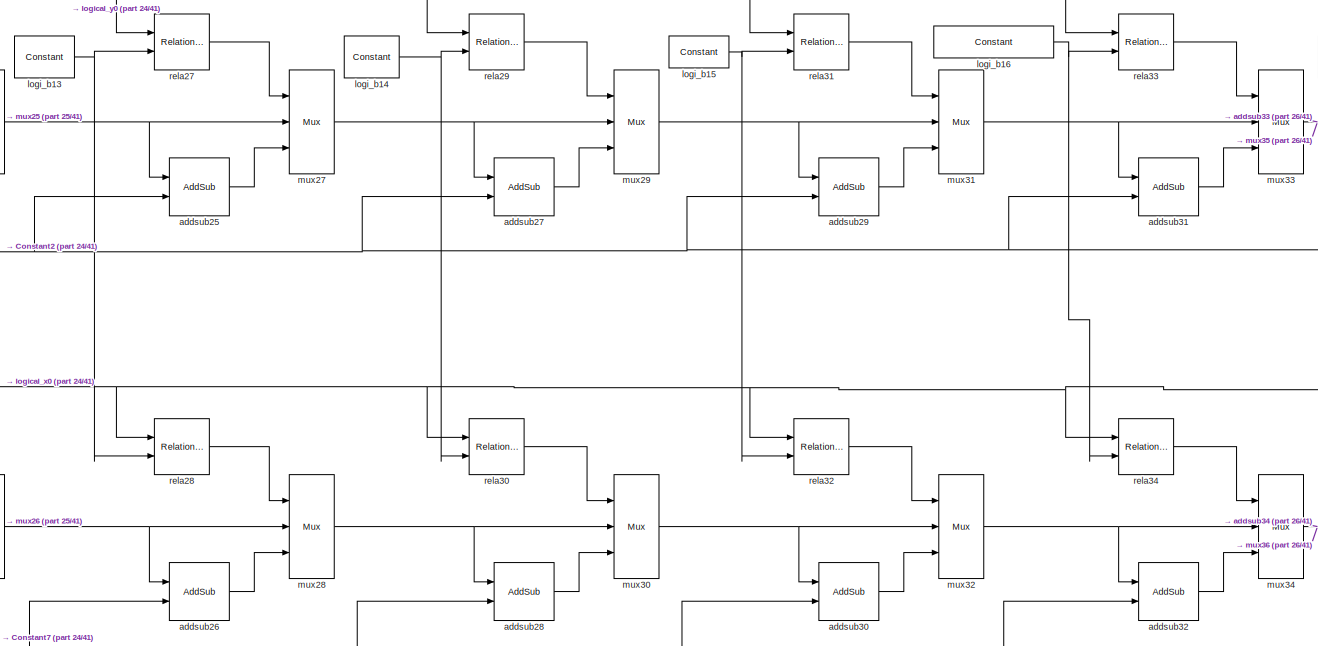
[diagram: Subsystem32bit - part 36/41, middle left region]
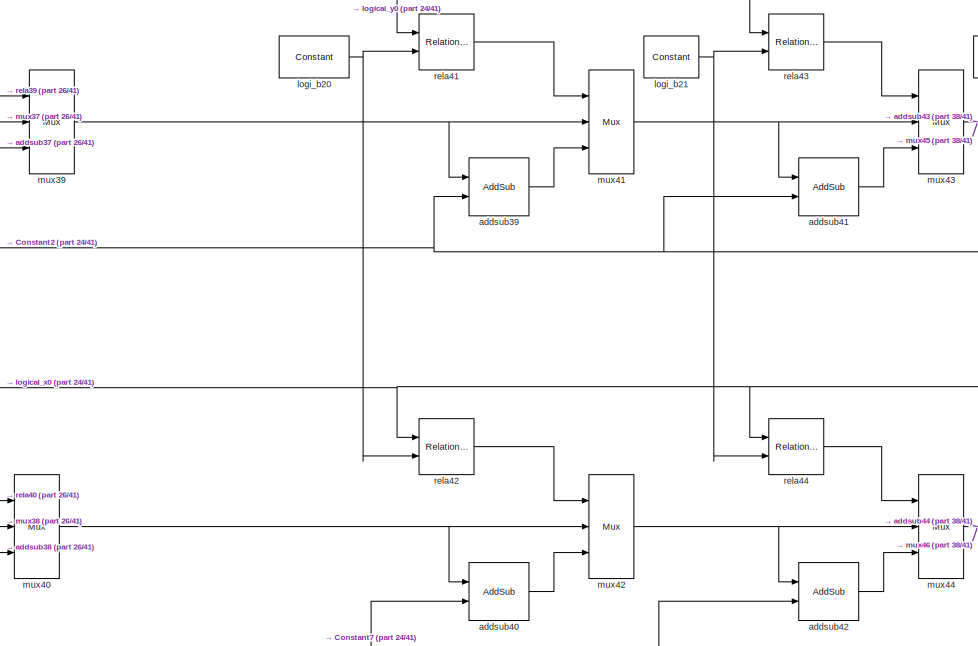
[diagram: Subsystem32bit - part 37/41, middle left region]
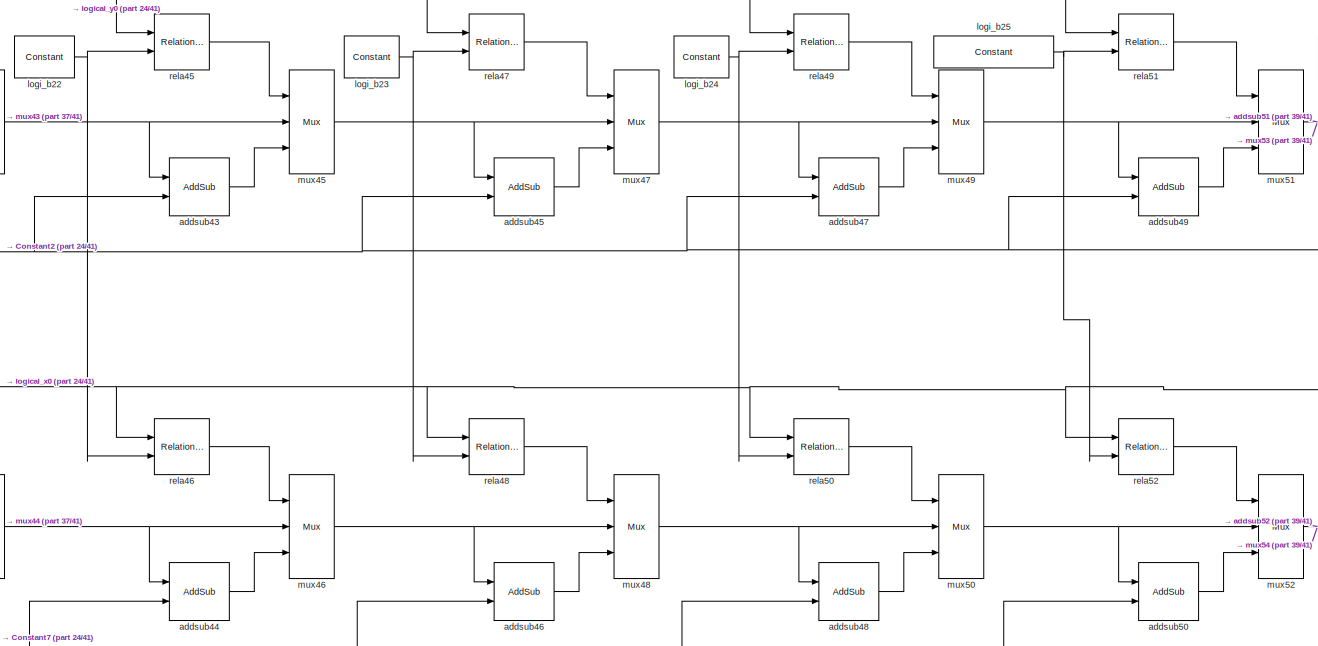
[diagram: Subsystem32bit - part 38/41, middle left region]
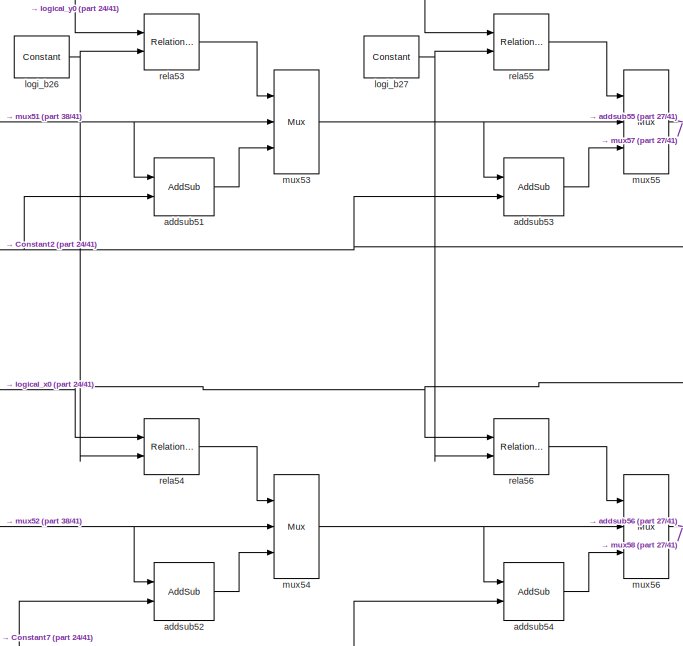
[diagram: Subsystem32bit - part 39/41, middle left region]
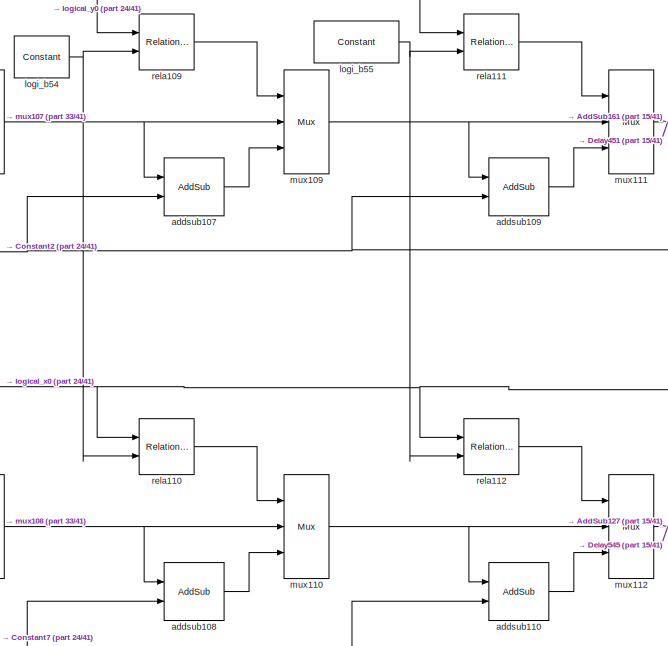
[diagram: Subsystem32bit - part 40/41, central region]
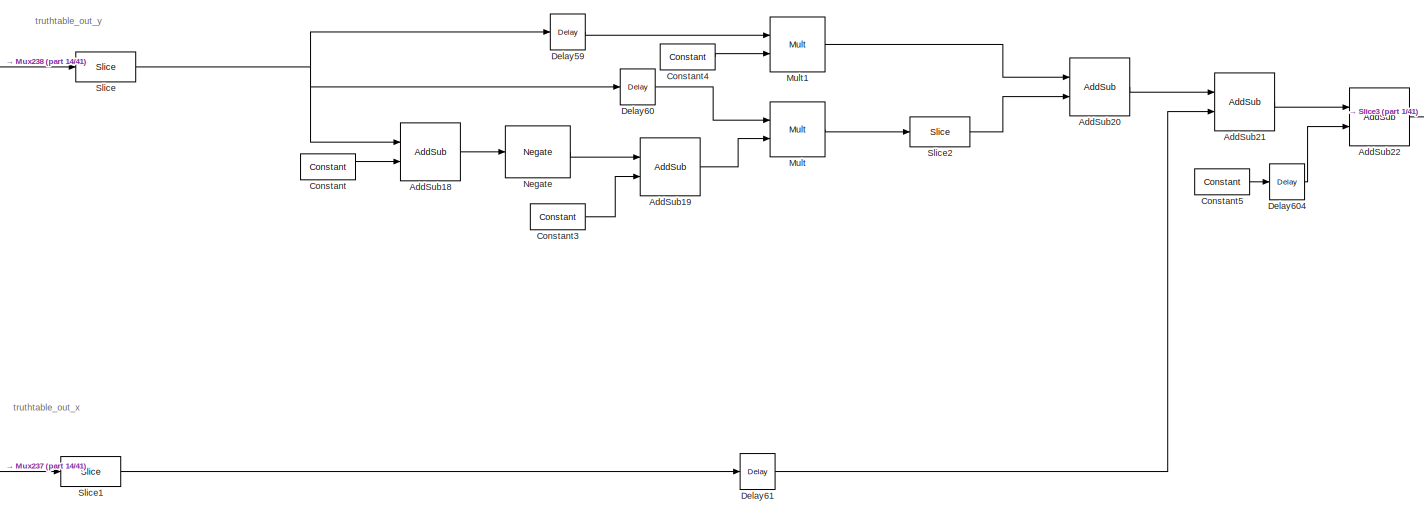
[diagram: Subsystem32bit - part 41/41, middle right region]
BLOCK [SubSystem] Subsystem32bit
  Ports = [2, 1]
  RequestExecContextInheritance = off
BLOCK [Reference] Subsystem32bit/AddSub101  REF=hdlBasic/AddSub
  Ports = [2, 1]
  SourceBlock = hdlBasic/AddSub
  SourceType = Adder/Subtracter Block
BLOCK [Reference] Subsystem32bit/AddSub102  REF=hdlBasic/AddSub
  Ports = [2, 1]
  SourceBlock = hdlBasic/AddSub
  SourceType = Adder/Subtracter Block
BLOCK [Reference] Subsystem32bit/AddSub103  REF=hdlBasic/AddSub
  Ports = [2, 1]
  SourceBlock = hdlBasic/AddSub
  SourceType = Adder/Subtracter Block
BLOCK [Reference] Subsystem32bit/AddSub104  REF=hdlBasic/AddSub
  Ports = [2, 1]
  SourceBlock = hdlBasic/AddSub
  SourceType = Adder/Subtracter Block
BLOCK [Reference] Subsystem32bit/AddSub105  REF=hdlBasic/AddSub
  Ports = [2, 1]
  SourceBlock = hdlBasic/AddSub
  SourceType = Adder/Subtracter Block
BLOCK [Reference] Subsystem32bit/AddSub106  REF=hdlBasic/AddSub
  Ports = [2, 1]
  SourceBlock = hdlBasic/AddSub
  SourceType = Adder/Subtracter Block
BLOCK [Reference] Subsystem32bit/AddSub107  REF=hdlBasic/AddSub
  Ports = [2, 1]
  SourceBlock = hdlBasic/AddSub
  SourceType = Adder/Subtracter Block
BLOCK [Reference] Subsystem32bit/AddSub113  REF=hdlBasic/AddSub
  Ports = [2, 1]
  SourceBlock = hdlBasic/AddSub
  SourceType = Adder/Subtracter Block
BLOCK [Reference] Subsystem32bit/AddSub114  REF=hdlBasic/AddSub
  Ports = [2, 1]
  SourceBlock = hdlBasic/AddSub
  SourceType = Adder/Subtracter Block
BLOCK [Reference] Subsystem32bit/AddSub115  REF=hdlBasic/AddSub
  Ports = [2, 1]
  SourceBlock = hdlBasic/AddSub
  SourceType = Adder/Subtracter Block
BLOCK [Reference] Subsystem32bit/AddSub116  REF=hdlBasic/AddSub
  Ports = [2, 1]
  SourceBlock = hdlBasic/AddSub
  SourceType = Adder/Subtracter Block
BLOCK [Reference] Subsystem32bit/AddSub117  REF=hdlBasic/AddSub
  Ports = [2, 1]
  SourceBlock = hdlBasic/AddSub
  SourceType = Adder/Subtracter Block
BLOCK [Reference] Subsystem32bit/AddSub118  REF=hdlBasic/AddSub
  Ports = [2, 1]
  SourceBlock = hdlBasic/AddSub
  SourceType = Adder/Subtracter Block
BLOCK [Reference] Subsystem32bit/AddSub119  REF=hdlBasic/AddSub
  Ports = [2, 1]
  SourceBlock = hdlBasic/AddSub
  SourceType = Adder/Subtracter Block
BLOCK [Reference] Subsystem32bit/AddSub127  REF=hdlBasic/AddSub
  Ports = [2, 1]
  SourceBlock = hdlBasic/AddSub
  SourceType = Adder/Subtracter Block
BLOCK [Reference] Subsystem32bit/AddSub129  REF=hdlBasic/AddSub
  Ports = [2, 1]
  SourceBlock = hdlBasic/AddSub
  SourceType = Adder/Subtracter Block
BLOCK [Reference] Subsystem32bit/AddSub130  REF=hdlBasic/AddSub
  Ports = [2, 1]
  SourceBlock = hdlBasic/AddSub
  SourceType = Adder/Subtracter Block
BLOCK [Reference] Subsystem32bit/AddSub131  REF=hdlBasic/AddSub
  Ports = [2, 1]
  SourceBlock = hdlBasic/AddSub
  SourceType = Adder/Subtracter Block
BLOCK [Reference] Subsystem32bit/AddSub132  REF=hdlBasic/AddSub
  Ports = [2, 1]
  SourceBlock = hdlBasic/AddSub
  SourceType = Adder/Subtracter Block
BLOCK [Reference] Subsystem32bit/AddSub133  REF=hdlBasic/AddSub
  Ports = [2, 1]
  SourceBlock = hdlBasic/AddSub
  SourceType = Adder/Subtracter Block
BLOCK [Reference] Subsystem32bit/AddSub134  REF=hdlBasic/AddSub
  Ports = [2, 1]
  SourceBlock = hdlBasic/AddSub
  SourceType = Adder/Subtracter Block
BLOCK [Reference] Subsystem32bit/AddSub135  REF=hdlBasic/AddSub
  Ports = [2, 1]
  SourceBlock = hdlBasic/AddSub
  SourceType = Adder/Subtracter Block
BLOCK [Reference] Subsystem32bit/AddSub136  REF=hdlBasic/AddSub
  Ports = [2, 1]
  SourceBlock = hdlBasic/AddSub
  SourceType = Adder/Subtracter Block
BLOCK [Reference] Subsystem32bit/AddSub137  REF=hdlBasic/AddSub
  Ports = [2, 1]
  SourceBlock = hdlBasic/AddSub
  SourceType = Adder/Subtracter Block
BLOCK [Reference] Subsystem32bit/AddSub138  REF=hdlBasic/AddSub
  Ports = [2, 1]
  SourceBlock = hdlBasic/AddSub
  SourceType = Adder/Subtracter Block
BLOCK [Reference] Subsystem32bit/AddSub140  REF=hdlBasic/AddSub
  Ports = [2, 1]
  SourceBlock = hdlBasic/AddSub
  SourceType = Adder/Subtracter Block
BLOCK [Reference] Subsystem32bit/AddSub141  REF=hdlBasic/AddSub
  Ports = [2, 1]
  SourceBlock = hdlBasic/AddSub
  SourceType = Adder/Subtracter Block
BLOCK [Reference] Subsystem32bit/AddSub142  REF=hdlBasic/AddSub
  Ports = [2, 1]
  SourceBlock = hdlBasic/AddSub
  SourceType = Adder/Subtracter Block
BLOCK [Reference] Subsystem32bit/AddSub143  REF=hdlBasic/AddSub
  Ports = [2, 1]
  SourceBlock = hdlBasic/AddSub
  SourceType = Adder/Subtracter Block
BLOCK [Reference] Subsystem32bit/AddSub144  REF=hdlBasic/AddSub
  Ports = [2, 1]
  SourceBlock = hdlBasic/AddSub
  SourceType = Adder/Subtracter Block
BLOCK [Reference] Subsystem32bit/AddSub145  REF=hdlBasic/AddSub
  Ports = [2, 1]
  SourceBlock = hdlBasic/AddSub
  SourceType = Adder/Subtracter Block
BLOCK [Reference] Subsystem32bit/AddSub146  REF=hdlBasic/AddSub
  Ports = [2, 1]
  SourceBlock = hdlBasic/AddSub
  SourceType = Adder/Subtracter Block
BLOCK [Reference] Subsystem32bit/AddSub147  REF=hdlBasic/AddSub
  Ports = [2, 1]
  SourceBlock = hdlBasic/AddSub
  SourceType = Adder/Subtracter Block
BLOCK [Reference] Subsystem32bit/AddSub148  REF=hdlBasic/AddSub
  Ports = [2, 1]
  SourceBlock = hdlBasic/AddSub
  SourceType = Adder/Subtracter Block
BLOCK [Reference] Subsystem32bit/AddSub149  REF=hdlBasic/AddSub
  Ports = [2, 1]
  SourceBlock = hdlBasic/AddSub
  SourceType = Adder/Subtracter Block
BLOCK [Reference] Subsystem32bit/AddSub151  REF=hdlBasic/AddSub
  Ports = [2, 1]
  SourceBlock = hdlBasic/AddSub
  SourceType = Adder/Subtracter Block
BLOCK [Reference] Subsystem32bit/AddSub152  REF=hdlBasic/AddSub
  Ports = [2, 1]
  SourceBlock = hdlBasic/AddSub
  SourceType = Adder/Subtracter Block
BLOCK [Reference] Subsystem32bit/AddSub153  REF=hdlBasic/AddSub
  Ports = [2, 1]
  SourceBlock = hdlBasic/AddSub
  SourceType = Adder/Subtracter Block
BLOCK [Reference] Subsystem32bit/AddSub154  REF=hdlBasic/AddSub
  Ports = [2, 1]
  SourceBlock = hdlBasic/AddSub
  SourceType = Adder/Subtracter Block
BLOCK [Reference] Subsystem32bit/AddSub155  REF=hdlBasic/AddSub
  Ports = [2, 1]
  SourceBlock = hdlBasic/AddSub
  SourceType = Adder/Subtracter Block
BLOCK [Reference] Subsystem32bit/AddSub156  REF=hdlBasic/AddSub
  Ports = [2, 1]
  SourceBlock = hdlBasic/AddSub
  SourceType = Adder/Subtracter Block
BLOCK [Reference] Subsystem32bit/AddSub157  REF=hdlBasic/AddSub
  Ports = [2, 1]
  SourceBlock = hdlBasic/AddSub
  SourceType = Adder/Subtracter Block
BLOCK [Reference] Subsystem32bit/AddSub158  REF=hdlBasic/AddSub
  Ports = [2, 1]
  SourceBlock = hdlBasic/AddSub
  SourceType = Adder/Subtracter Block
BLOCK [Reference] Subsystem32bit/AddSub159  REF=hdlBasic/AddSub
  Ports = [2, 1]
  SourceBlock = hdlBasic/AddSub
  SourceType = Adder/Subtracter Block
BLOCK [Reference] Subsystem32bit/AddSub160  REF=hdlBasic/AddSub
  Ports = [2, 1]
  SourceBlock = hdlBasic/AddSub
  SourceType = Adder/Subtracter Block
BLOCK [Reference] Subsystem32bit/AddSub161  REF=hdlBasic/AddSub
  Ports = [2, 1]
  SourceBlock = hdlBasic/AddSub
  SourceType = Adder/Subtracter Block
BLOCK [Reference] Subsystem32bit/AddSub162  REF=hdlBasic/AddSub
  Ports = [2, 1]
  SourceBlock = hdlBasic/AddSub
  SourceType = Adder/Subtracter Block
BLOCK [Reference] Subsystem32bit/AddSub163  REF=hdlBasic/AddSub
  Ports = [2, 1]
  SourceBlock = hdlBasic/AddSub
  SourceType = Adder/Subtracter Block
BLOCK [Reference] Subsystem32bit/AddSub164  REF=hdlBasic/AddSub
  Ports = [2, 1]
  SourceBlock = hdlBasic/AddSub
  SourceType = Adder/Subtracter Block
BLOCK [Reference] Subsystem32bit/AddSub165  REF=hdlBasic/AddSub
  Ports = [2, 1]
  SourceBlock = hdlBasic/AddSub
  SourceType = Adder/Subtracter Block
BLOCK [Reference] Subsystem32bit/AddSub166  REF=hdlBasic/AddSub
  Ports = [2, 1]
  SourceBlock = hdlBasic/AddSub
  SourceType = Adder/Subtracter Block
BLOCK [Reference] Subsystem32bit/AddSub167  REF=hdlBasic/AddSub
  Ports = [2, 1]
  SourceBlock = hdlBasic/AddSub
  SourceType = Adder/Subtracter Block
BLOCK [Reference] Subsystem32bit/AddSub168  REF=hdlBasic/AddSub
  Ports = [2, 1]
  SourceBlock = hdlBasic/AddSub
  SourceType = Adder/Subtracter Block
BLOCK [Reference] Subsystem32bit/AddSub169  REF=hdlBasic/AddSub
  Ports = [2, 1]
  SourceBlock = hdlBasic/AddSub
  SourceType = Adder/Subtracter Block
BLOCK [Reference] Subsystem32bit/AddSub170  REF=hdlBasic/AddSub
  Ports = [2, 1]
  SourceBlock = hdlBasic/AddSub
  SourceType = Adder/Subtracter Block
BLOCK [Reference] Subsystem32bit/AddSub171  REF=hdlBasic/AddSub
  Ports = [2, 1]
  SourceBlock = hdlBasic/AddSub
  SourceType = Adder/Subtracter Block
BLOCK [Reference] Subsystem32bit/AddSub172  REF=hdlBasic/AddSub
  Ports = [2, 1]
  SourceBlock = hdlBasic/AddSub
  SourceType = Adder/Subtracter Block
BLOCK [Reference] Subsystem32bit/AddSub173  REF=hdlBasic/AddSub
  Ports = [2, 1]
  SourceBlock = hdlBasic/AddSub
  SourceType = Adder/Subtracter Block
BLOCK [Reference] Subsystem32bit/AddSub174  REF=hdlBasic/AddSub
  Ports = [2, 1]
  SourceBlock = hdlBasic/AddSub
  SourceType = Adder/Subtracter Block
BLOCK [Reference] Subsystem32bit/AddSub175  REF=hdlBasic/AddSub
  Ports = [2, 1]
  SourceBlock = hdlBasic/AddSub
  SourceType = Adder/Subtracter Block
BLOCK [Reference] Subsystem32bit/AddSub176  REF=hdlBasic/AddSub
  Ports = [2, 1]
  SourceBlock = hdlBasic/AddSub
  SourceType = Adder/Subtracter Block
BLOCK [Reference] Subsystem32bit/AddSub177  REF=hdlBasic/AddSub
  Ports = [2, 1]
  SourceBlock = hdlBasic/AddSub
  SourceType = Adder/Subtracter Block
BLOCK [Reference] Subsystem32bit/AddSub178  REF=hdlBasic/AddSub
  Ports = [2, 1]
  SourceBlock = hdlBasic/AddSub
  SourceType = Adder/Subtracter Block
BLOCK [Reference] Subsystem32bit/AddSub179  REF=hdlBasic/AddSub
  Ports = [2, 1]
  SourceBlock = hdlBasic/AddSub
  SourceType = Adder/Subtracter Block
BLOCK [Reference] Subsystem32bit/AddSub18  REF=hdlBasic/AddSub
  Ports = [2, 1]
  SourceBlock = hdlBasic/AddSub
  SourceType = Adder/Subtracter Block
BLOCK [Reference] Subsystem32bit/AddSub180  REF=hdlBasic/AddSub
  Ports = [2, 1]
  SourceBlock = hdlBasic/AddSub
  SourceType = Adder/Subtracter Block
BLOCK [Reference] Subsystem32bit/AddSub181  REF=hdlBasic/AddSub
  Ports = [2, 1]
  SourceBlock = hdlBasic/AddSub
  SourceType = Adder/Subtracter Block
BLOCK [Reference] Subsystem32bit/AddSub182  REF=hdlBasic/AddSub
  Ports = [2, 1]
  SourceBlock = hdlBasic/AddSub
  SourceType = Adder/Subtracter Block
BLOCK [Reference] Subsystem32bit/AddSub183  REF=hdlBasic/AddSub
  Ports = [2, 1]
  SourceBlock = hdlBasic/AddSub
  SourceType = Adder/Subtracter Block
BLOCK [Reference] Subsystem32bit/AddSub184  REF=hdlBasic/AddSub
  Ports = [2, 1]
  SourceBlock = hdlBasic/AddSub
  SourceType = Adder/Subtracter Block
BLOCK [Reference] Subsystem32bit/AddSub185  REF=hdlBasic/AddSub
  Ports = [2, 1]
  SourceBlock = hdlBasic/AddSub
  SourceType = Adder/Subtracter Block
BLOCK [Reference] Subsystem32bit/AddSub186  REF=hdlBasic/AddSub
  Ports = [2, 1]
  SourceBlock = hdlBasic/AddSub
  SourceType = Adder/Subtracter Block
BLOCK [Reference] Subsystem32bit/AddSub187  REF=hdlBasic/AddSub
  Ports = [2, 1]
  SourceBlock = hdlBasic/AddSub
  SourceType = Adder/Subtracter Block
BLOCK [Reference] Subsystem32bit/AddSub188  REF=hdlBasic/AddSub
  Ports = [2, 1]
  SourceBlock = hdlBasic/AddSub
  SourceType = Adder/Subtracter Block
BLOCK [Reference] Subsystem32bit/AddSub189  REF=hdlBasic/AddSub
  Ports = [2, 1]
  SourceBlock = hdlBasic/AddSub
  SourceType = Adder/Subtracter Block
BLOCK [Reference] Subsystem32bit/AddSub19  REF=hdlBasic/AddSub
  Ports = [2, 1]
  SourceBlock = hdlBasic/AddSub
  SourceType = Adder/Subtracter Block
BLOCK [Reference] Subsystem32bit/AddSub190  REF=hdlBasic/AddSub
  Ports = [2, 1]
  SourceBlock = hdlBasic/AddSub
  SourceType = Adder/Subtracter Block
BLOCK [Reference] Subsystem32bit/AddSub191  REF=hdlBasic/AddSub
  Ports = [2, 1]
  SourceBlock = hdlBasic/AddSub
  SourceType = Adder/Subtracter Block
BLOCK [Reference] Subsystem32bit/AddSub192  REF=hdlBasic/AddSub
  Ports = [2, 1]
  SourceBlock = hdlBasic/AddSub
  SourceType = Adder/Subtracter Block
BLOCK [Reference] Subsystem32bit/AddSub193  REF=hdlBasic/AddSub
  Ports = [2, 1]
  SourceBlock = hdlBasic/AddSub
  SourceType = Adder/Subtracter Block
BLOCK [Reference] Subsystem32bit/AddSub194  REF=hdlBasic/AddSub
  Ports = [2, 1]
  SourceBlock = hdlBasic/AddSub
  SourceType = Adder/Subtracter Block
BLOCK [Reference] Subsystem32bit/AddSub195  REF=hdlBasic/AddSub
  Ports = [2, 1]
  SourceBlock = hdlBasic/AddSub
  SourceType = Adder/Subtracter Block
BLOCK [Reference] Subsystem32bit/AddSub196  REF=hdlBasic/AddSub
  Ports = [2, 1]
  SourceBlock = hdlBasic/AddSub
  SourceType = Adder/Subtracter Block
BLOCK [Reference] Subsystem32bit/AddSub197  REF=hdlBasic/AddSub
  Ports = [2, 1]
  SourceBlock = hdlBasic/AddSub
  SourceType = Adder/Subtracter Block
BLOCK [Reference] Subsystem32bit/AddSub198  REF=hdlBasic/AddSub
  Ports = [2, 1]
  SourceBlock = hdlBasic/AddSub
  SourceType = Adder/Subtracter Block
BLOCK [Reference] Subsystem32bit/AddSub199  REF=hdlBasic/AddSub
  Ports = [2, 1]
  SourceBlock = hdlBasic/AddSub
  SourceType = Adder/Subtracter Block
BLOCK [Reference] Subsystem32bit/AddSub20  REF=hdlBasic/AddSub
  Ports = [2, 1]
  SourceBlock = hdlBasic/AddSub
  SourceType = Adder/Subtracter Block
BLOCK [Reference] Subsystem32bit/AddSub200  REF=hdlBasic/AddSub
  Ports = [2, 1]
  SourceBlock = hdlBasic/AddSub
  SourceType = Adder/Subtracter Block
BLOCK [Reference] Subsystem32bit/AddSub201  REF=hdlBasic/AddSub
  Ports = [2, 1]
  SourceBlock = hdlBasic/AddSub
  SourceType = Adder/Subtracter Block
BLOCK [Reference] Subsystem32bit/AddSub205  REF=hdlBasic/AddSub
  Ports = [2, 1]
  SourceBlock = hdlBasic/AddSub
  SourceType = Adder/Subtracter Block
BLOCK [Reference] Subsystem32bit/AddSub206  REF=hdlBasic/AddSub
  Ports = [2, 1]
  SourceBlock = hdlBasic/AddSub
  SourceType = Adder/Subtracter Block
BLOCK [Reference] Subsystem32bit/AddSub207  REF=hdlBasic/AddSub
  Ports = [2, 1]
  SourceBlock = hdlBasic/AddSub
  SourceType = Adder/Subtracter Block
BLOCK [Reference] Subsystem32bit/AddSub209  REF=hdlBasic/AddSub
  Ports = [2, 1]
  SourceBlock = hdlBasic/AddSub
  SourceType = Adder/Subtracter Block
BLOCK [Reference] Subsystem32bit/AddSub21  REF=hdlBasic/AddSub
  Ports = [2, 1]
  SourceBlock = hdlBasic/AddSub
  SourceType = Adder/Subtracter Block
BLOCK [Reference] Subsystem32bit/AddSub210  REF=hdlBasic/AddSub
  Ports = [2, 1]
  SourceBlock = hdlBasic/AddSub
  SourceType = Adder/Subtracter Block
BLOCK [Reference] Subsystem32bit/AddSub211  REF=hdlBasic/AddSub
  Ports = [2, 1]
  SourceBlock = hdlBasic/AddSub
  SourceType = Adder/Subtracter Block
BLOCK [Reference] Subsystem32bit/AddSub22  REF=hdlBasic/AddSub
  Ports = [2, 1]
  SourceBlock = hdlBasic/AddSub
  SourceType = Adder/Subtracter Block
BLOCK [Reference] Subsystem32bit/AddSub236  REF=hdlBasic/AddSub
  Ports = [2, 1]
  SourceBlock = hdlBasic/AddSub
  SourceType = Adder/Subtracter Block
BLOCK [Reference] Subsystem32bit/AddSub238  REF=hdlBasic/AddSub
  Ports = [2, 1]
  SourceBlock = hdlBasic/AddSub
  SourceType = Adder/Subtracter Block
BLOCK [Reference] Subsystem32bit/AddSub249  REF=hdlBasic/AddSub
  Ports = [2, 1]
  SourceBlock = hdlBasic/AddSub
  SourceType = Adder/Subtracter Block
BLOCK [Reference] Subsystem32bit/AddSub250  REF=hdlBasic/AddSub
  Ports = [2, 1]
  SourceBlock = hdlBasic/AddSub
  SourceType = Adder/Subtracter Block
BLOCK [Reference] Subsystem32bit/AddSub252  REF=hdlBasic/AddSub
  Ports = [2, 1]
  SourceBlock = hdlBasic/AddSub
  SourceType = Adder/Subtracter Block
BLOCK [Reference] Subsystem32bit/AddSub254  REF=hdlBasic/AddSub
  Ports = [2, 1]
  SourceBlock = hdlBasic/AddSub
  SourceType = Adder/Subtracter Block
BLOCK [Reference] Subsystem32bit/AddSub255  REF=hdlBasic/AddSub
  Ports = [2, 1]
  SourceBlock = hdlBasic/AddSub
  SourceType = Adder/Subtracter Block
BLOCK [Reference] Subsystem32bit/AddSub256  REF=hdlBasic/AddSub
  Ports = [2, 1]
  SourceBlock = hdlBasic/AddSub
  SourceType = Adder/Subtracter Block
BLOCK [Reference] Subsystem32bit/AddSub257  REF=hdlBasic/AddSub
  Ports = [2, 1]
  SourceBlock = hdlBasic/AddSub
  SourceType = Adder/Subtracter Block
BLOCK [Reference] Subsystem32bit/AddSub258  REF=hdlBasic/AddSub
  Ports = [2, 1]
  SourceBlock = hdlBasic/AddSub
  SourceType = Adder/Subtracter Block
BLOCK [Reference] Subsystem32bit/AddSub261  REF=hdlBasic/AddSub
  Ports = [2, 1]
  SourceBlock = hdlBasic/AddSub
  SourceType = Adder/Subtracter Block
BLOCK [Reference] Subsystem32bit/AddSub262  REF=hdlBasic/AddSub
  Ports = [2, 1]
  SourceBlock = hdlBasic/AddSub
  SourceType = Adder/Subtracter Block
BLOCK [Reference] Subsystem32bit/AddSub263  REF=hdlBasic/AddSub
  Ports = [2, 1]
  SourceBlock = hdlBasic/AddSub
  SourceType = Adder/Subtracter Block
BLOCK [Reference] Subsystem32bit/AddSub264  REF=hdlBasic/AddSub
  Ports = [2, 1]
  SourceBlock = hdlBasic/AddSub
  SourceType = Adder/Subtracter Block
BLOCK [Reference] Subsystem32bit/AddSub265  REF=hdlBasic/AddSub
  Ports = [2, 1]
  SourceBlock = hdlBasic/AddSub
  SourceType = Adder/Subtracter Block
BLOCK [Reference] Subsystem32bit/AddSub266  REF=hdlBasic/AddSub
  Ports = [2, 1]
  SourceBlock = hdlBasic/AddSub
  SourceType = Adder/Subtracter Block
BLOCK [Reference] Subsystem32bit/AddSub267  REF=hdlBasic/AddSub
  Ports = [2, 1]
  SourceBlock = hdlBasic/AddSub
  SourceType = Adder/Subtracter Block
BLOCK [Reference] Subsystem32bit/AddSub268  REF=hdlBasic/AddSub
  Ports = [2, 1]
  SourceBlock = hdlBasic/AddSub
  SourceType = Adder/Subtracter Block
BLOCK [Reference] Subsystem32bit/AddSub269  REF=hdlBasic/AddSub
  Ports = [2, 1]
  SourceBlock = hdlBasic/AddSub
  SourceType = Adder/Subtracter Block
BLOCK [Reference] Subsystem32bit/AddSub271  REF=hdlBasic/AddSub
  Ports = [2, 1]
  SourceBlock = hdlBasic/AddSub
  SourceType = Adder/Subtracter Block
BLOCK [Reference] Subsystem32bit/AddSub272  REF=hdlBasic/AddSub
  Ports = [2, 1]
  SourceBlock = hdlBasic/AddSub
  SourceType = Adder/Subtracter Block
BLOCK [Reference] Subsystem32bit/AddSub273  REF=hdlBasic/AddSub
  Ports = [2, 1]
  SourceBlock = hdlBasic/AddSub
  SourceType = Adder/Subtracter Block
BLOCK [Reference] Subsystem32bit/AddSub274  REF=hdlBasic/AddSub
  Ports = [2, 1]
  SourceBlock = hdlBasic/AddSub
  SourceType = Adder/Subtracter Block
BLOCK [Reference] Subsystem32bit/AddSub275  REF=hdlBasic/AddSub
  Ports = [2, 1]
  SourceBlock = hdlBasic/AddSub
  SourceType = Adder/Subtracter Block
BLOCK [Reference] Subsystem32bit/AddSub276  REF=hdlBasic/AddSub
  Ports = [2, 1]
  SourceBlock = hdlBasic/AddSub
  SourceType = Adder/Subtracter Block
BLOCK [Reference] Subsystem32bit/AddSub277  REF=hdlBasic/AddSub
  Ports = [2, 1]
  SourceBlock = hdlBasic/AddSub
  SourceType = Adder/Subtracter Block
BLOCK [Reference] Subsystem32bit/AddSub278  REF=hdlBasic/AddSub
  Ports = [2, 1]
  SourceBlock = hdlBasic/AddSub
  SourceType = Adder/Subtracter Block
BLOCK [Reference] Subsystem32bit/AddSub279  REF=hdlBasic/AddSub
  Ports = [2, 1]
  SourceBlock = hdlBasic/AddSub
  SourceType = Adder/Subtracter Block
BLOCK [Reference] Subsystem32bit/AddSub280  REF=hdlBasic/AddSub
  Ports = [2, 1]
  SourceBlock = hdlBasic/AddSub
  SourceType = Adder/Subtracter Block
BLOCK [Reference] Subsystem32bit/AddSub282  REF=hdlBasic/AddSub
  Ports = [2, 1]
  SourceBlock = hdlBasic/AddSub
  SourceType = Adder/Subtracter Block
BLOCK [Reference] Subsystem32bit/AddSub283  REF=hdlBasic/AddSub
  Ports = [2, 1]
  SourceBlock = hdlBasic/AddSub
  SourceType = Adder/Subtracter Block
BLOCK [Reference] Subsystem32bit/AddSub284  REF=hdlBasic/AddSub
  Ports = [2, 1]
  SourceBlock = hdlBasic/AddSub
  SourceType = Adder/Subtracter Block
BLOCK [Reference] Subsystem32bit/AddSub285  REF=hdlBasic/AddSub
  Ports = [2, 1]
  SourceBlock = hdlBasic/AddSub
  SourceType = Adder/Subtracter Block
BLOCK [Reference] Subsystem32bit/AddSub286  REF=hdlBasic/AddSub
  Ports = [2, 1]
  SourceBlock = hdlBasic/AddSub
  SourceType = Adder/Subtracter Block
BLOCK [Reference] Subsystem32bit/AddSub287  REF=hdlBasic/AddSub
  Ports = [2, 1]
  SourceBlock = hdlBasic/AddSub
  SourceType = Adder/Subtracter Block
BLOCK [Reference] Subsystem32bit/AddSub288  REF=hdlBasic/AddSub
  Ports = [2, 1]
  SourceBlock = hdlBasic/AddSub
  SourceType = Adder/Subtracter Block
BLOCK [Reference] Subsystem32bit/AddSub289  REF=hdlBasic/AddSub
  Ports = [2, 1]
  SourceBlock = hdlBasic/AddSub
  SourceType = Adder/Subtracter Block
BLOCK [Reference] Subsystem32bit/AddSub290  REF=hdlBasic/AddSub
  Ports = [2, 1]
  SourceBlock = hdlBasic/AddSub
  SourceType = Adder/Subtracter Block
BLOCK [Reference] Subsystem32bit/AddSub291  REF=hdlBasic/AddSub
  Ports = [2, 1]
  SourceBlock = hdlBasic/AddSub
  SourceType = Adder/Subtracter Block
BLOCK [Reference] Subsystem32bit/AddSub293  REF=hdlBasic/AddSub
  Ports = [2, 1]
  SourceBlock = hdlBasic/AddSub
  SourceType = Adder/Subtracter Block
BLOCK [Reference] Subsystem32bit/AddSub294  REF=hdlBasic/AddSub
  Ports = [2, 1]
  SourceBlock = hdlBasic/AddSub
  SourceType = Adder/Subtracter Block
BLOCK [Reference] Subsystem32bit/AddSub295  REF=hdlBasic/AddSub
  Ports = [2, 1]
  SourceBlock = hdlBasic/AddSub
  SourceType = Adder/Subtracter Block
BLOCK [Reference] Subsystem32bit/AddSub296  REF=hdlBasic/AddSub
  Ports = [2, 1]
  SourceBlock = hdlBasic/AddSub
  SourceType = Adder/Subtracter Block
BLOCK [Reference] Subsystem32bit/AddSub297  REF=hdlBasic/AddSub
  Ports = [2, 1]
  SourceBlock = hdlBasic/AddSub
  SourceType = Adder/Subtracter Block
BLOCK [Reference] Subsystem32bit/AddSub298  REF=hdlBasic/AddSub
  Ports = [2, 1]
  SourceBlock = hdlBasic/AddSub
  SourceType = Adder/Subtracter Block
BLOCK [Reference] Subsystem32bit/AddSub299  REF=hdlBasic/AddSub
  Ports = [2, 1]
  SourceBlock = hdlBasic/AddSub
  SourceType = Adder/Subtracter Block
BLOCK [Reference] Subsystem32bit/Concat  REF=hdlBasic/Concat
  Ports = [32, 1]
  SourceBlock = hdlBasic/Concat
  SourceType = Bus Concatenator Block
BLOCK [Reference] Subsystem32bit/Constant  REF=hdlBasic/Constant
  Ports = [0, 1]
  SourceBlock = hdlBasic/Constant
  SourceType = Constant Block Block
BLOCK [Reference] Subsystem32bit/Constant1  REF=hdlBasic/Constant
  Ports = [0, 1]
  SourceBlock = hdlBasic/Constant
  SourceType = Constant Block Block
BLOCK [Reference] Subsystem32bit/Constant2  REF=hdlBasic/Constant
  Ports = [0, 1]
  SourceBlock = hdlBasic/Constant
  SourceType = Constant Block Block
BLOCK [Reference] Subsystem32bit/Constant3  REF=hdlBasic/Constant
  Ports = [0, 1]
  SourceBlock = hdlBasic/Constant
  SourceType = Constant Block Block
BLOCK [Reference] Subsystem32bit/Constant4  REF=hdlBasic/Constant
  Ports = [0, 1]
  SourceBlock = hdlBasic/Constant
  SourceType = Constant Block Block
BLOCK [Reference] Subsystem32bit/Constant5  REF=hdlBasic/Constant
  Ports = [0, 1]
  SourceBlock = hdlBasic/Constant
  SourceType = Constant Block Block
BLOCK [Reference] Subsystem32bit/Constant6  REF=hdlBasic/Constant
  Ports = [0, 1]
  SourceBlock = hdlBasic/Constant
  SourceType = Constant Block Block
BLOCK [Reference] Subsystem32bit/Constant7  REF=hdlBasic/Constant
  Ports = [0, 1]
  SourceBlock = hdlBasic/Constant
  SourceType = Constant Block Block
BLOCK [Reference] Subsystem32bit/Convert23  REF=hdlBasic/Convert
  Commented = on
  Ports = [1, 1]
  SourceBlock = hdlBasic/Convert
  SourceType = Type Converter Block
BLOCK [Reference] Subsystem32bit/Delay210  REF=hdlBasic/Delay
  Ports = [1, 1]
  SourceBlock = hdlBasic/Delay
  SourceType = Delay Block
BLOCK [Reference] Subsystem32bit/Delay211  REF=hdlBasic/Delay
  Ports = [1, 1]
  SourceBlock = hdlBasic/Delay
  SourceType = Delay Block
BLOCK [Reference] Subsystem32bit/Delay212  REF=hdlBasic/Delay
  Ports = [1, 1]
  SourceBlock = hdlBasic/Delay
  SourceType = Delay Block
BLOCK [Reference] Subsystem32bit/Delay213  REF=hdlBasic/Delay
  Ports = [1, 1]
  SourceBlock = hdlBasic/Delay
  SourceType = Delay Block
BLOCK [Reference] Subsystem32bit/Delay223  REF=hdlBasic/Delay
  Ports = [1, 1]
  SourceBlock = hdlBasic/Delay
  SourceType = Delay Block
BLOCK [Reference] Subsystem32bit/Delay224  REF=hdlBasic/Delay
  Ports = [1, 1]
  SourceBlock = hdlBasic/Delay
  SourceType = Delay Block
BLOCK [Reference] Subsystem32bit/Delay225  REF=hdlBasic/Delay
  Ports = [1, 1]
  SourceBlock = hdlBasic/Delay
  SourceType = Delay Block
BLOCK [Reference] Subsystem32bit/Delay226  REF=hdlBasic/Delay
  Ports = [1, 1]
  SourceBlock = hdlBasic/Delay
  SourceType = Delay Block
BLOCK [Reference] Subsystem32bit/Delay228  REF=hdlBasic/Delay
  Ports = [1, 1]
  SourceBlock = hdlBasic/Delay
  SourceType = Delay Block
BLOCK [Reference] Subsystem32bit/Delay229  REF=hdlBasic/Delay
  Ports = [1, 1]
  SourceBlock = hdlBasic/Delay
  SourceType = Delay Block
BLOCK [Reference] Subsystem32bit/Delay231  REF=hdlBasic/Delay
  Ports = [1, 1]
  SourceBlock = hdlBasic/Delay
  SourceType = Delay Block
BLOCK [Reference] Subsystem32bit/Delay232  REF=hdlBasic/Delay
  Ports = [1, 1]
  SourceBlock = hdlBasic/Delay
  SourceType = Delay Block
BLOCK [Reference] Subsystem32bit/Delay233  REF=hdlBasic/Delay
  Ports = [1, 1]
  SourceBlock = hdlBasic/Delay
  SourceType = Delay Block
BLOCK [Reference] Subsystem32bit/Delay234  REF=hdlBasic/Delay
  Ports = [1, 1]
  SourceBlock = hdlBasic/Delay
  SourceType = Delay Block
BLOCK [Reference] Subsystem32bit/Delay235  REF=hdlBasic/Delay
  Ports = [1, 1]
  SourceBlock = hdlBasic/Delay
  SourceType = Delay Block
BLOCK [Reference] Subsystem32bit/Delay245  REF=hdlBasic/Delay
  Ports = [1, 1]
  SourceBlock = hdlBasic/Delay
  SourceType = Delay Block
BLOCK [Reference] Subsystem32bit/Delay246  REF=hdlBasic/Delay
  Ports = [1, 1]
  SourceBlock = hdlBasic/Delay
  SourceType = Delay Block
BLOCK [Reference] Subsystem32bit/Delay247  REF=hdlBasic/Delay
  Ports = [1, 1]
  SourceBlock = hdlBasic/Delay
  SourceType = Delay Block
BLOCK [Reference] Subsystem32bit/Delay248  REF=hdlBasic/Delay
  Ports = [1, 1]
  SourceBlock = hdlBasic/Delay
  SourceType = Delay Block
BLOCK [Reference] Subsystem32bit/Delay250  REF=hdlBasic/Delay
  Ports = [1, 1]
  SourceBlock = hdlBasic/Delay
  SourceType = Delay Block
BLOCK [Reference] Subsystem32bit/Delay252  REF=hdlBasic/Delay
  Ports = [1, 1]
  SourceBlock = hdlBasic/Delay
  SourceType = Delay Block
BLOCK [Reference] Subsystem32bit/Delay253  REF=hdlBasic/Delay
  Ports = [1, 1]
  SourceBlock = hdlBasic/Delay
  SourceType = Delay Block
BLOCK [Reference] Subsystem32bit/Delay254  REF=hdlBasic/Delay
  Ports = [1, 1]
  SourceBlock = hdlBasic/Delay
  SourceType = Delay Block
BLOCK [Reference] Subsystem32bit/Delay255  REF=hdlBasic/Delay
  Ports = [1, 1]
  SourceBlock = hdlBasic/Delay
  SourceType = Delay Block
BLOCK [Reference] Subsystem32bit/Delay332  REF=hdlBasic/Delay
  Ports = [1, 1]
  SourceBlock = hdlBasic/Delay
  SourceType = Delay Block
BLOCK [Reference] Subsystem32bit/Delay333  REF=hdlBasic/Delay
  Ports = [1, 1]
  SourceBlock = hdlBasic/Delay
  SourceType = Delay Block
BLOCK [Reference] Subsystem32bit/Delay334  REF=hdlBasic/Delay
  Ports = [1, 1]
  SourceBlock = hdlBasic/Delay
  SourceType = Delay Block
BLOCK [Reference] Subsystem32bit/Delay335  REF=hdlBasic/Delay
  Ports = [1, 1]
  SourceBlock = hdlBasic/Delay
  SourceType = Delay Block
BLOCK [Reference] Subsystem32bit/Delay336  REF=hdlBasic/Delay
  Ports = [1, 1]
  SourceBlock = hdlBasic/Delay
  SourceType = Delay Block
BLOCK [Reference] Subsystem32bit/Delay337  REF=hdlBasic/Delay
  Ports = [1, 1]
  SourceBlock = hdlBasic/Delay
  SourceType = Delay Block
BLOCK [Reference] Subsystem32bit/Delay339  REF=hdlBasic/Delay
  Ports = [1, 1]
  SourceBlock = hdlBasic/Delay
  SourceType = Delay Block
BLOCK [Reference] Subsystem32bit/Delay340  REF=hdlBasic/Delay
  Ports = [1, 1]
  SourceBlock = hdlBasic/Delay
  SourceType = Delay Block
BLOCK [Reference] Subsystem32bit/Delay341  REF=hdlBasic/Delay
  Ports = [1, 1]
  SourceBlock = hdlBasic/Delay
  SourceType = Delay Block
BLOCK [Reference] Subsystem32bit/Delay342  REF=hdlBasic/Delay
  Ports = [1, 1]
  SourceBlock = hdlBasic/Delay
  SourceType = Delay Block
BLOCK [Reference] Subsystem32bit/Delay343  REF=hdlBasic/Delay
  Ports = [1, 1]
  SourceBlock = hdlBasic/Delay
  SourceType = Delay Block
BLOCK [Reference] Subsystem32bit/Delay344  REF=hdlBasic/Delay
  Ports = [1, 1]
  SourceBlock = hdlBasic/Delay
  SourceType = Delay Block
BLOCK [Reference] Subsystem32bit/Delay345  REF=hdlBasic/Delay
  Ports = [1, 1]
  SourceBlock = hdlBasic/Delay
  SourceType = Delay Block
BLOCK [Reference] Subsystem32bit/Delay346  REF=hdlBasic/Delay
  Ports = [1, 1]
  SourceBlock = hdlBasic/Delay
  SourceType = Delay Block
BLOCK [Reference] Subsystem32bit/Delay347  REF=hdlBasic/Delay
  Ports = [1, 1]
  SourceBlock = hdlBasic/Delay
  SourceType = Delay Block
BLOCK [Reference] Subsystem32bit/Delay348  REF=hdlBasic/Delay
  Ports = [1, 1]
  SourceBlock = hdlBasic/Delay
  SourceType = Delay Block
BLOCK [Reference] Subsystem32bit/Delay350  REF=hdlBasic/Delay
  Ports = [1, 1]
  SourceBlock = hdlBasic/Delay
  SourceType = Delay Block
BLOCK [Reference] Subsystem32bit/Delay351  REF=hdlBasic/Delay
  Ports = [1, 1]
  SourceBlock = hdlBasic/Delay
  SourceType = Delay Block
BLOCK [Reference] Subsystem32bit/Delay352  REF=hdlBasic/Delay
  Ports = [1, 1]
  SourceBlock = hdlBasic/Delay
  SourceType = Delay Block
BLOCK [Reference] Subsystem32bit/Delay353  REF=hdlBasic/Delay
  Ports = [1, 1]
  SourceBlock = hdlBasic/Delay
  SourceType = Delay Block
BLOCK [Reference] Subsystem32bit/Delay354  REF=hdlBasic/Delay
  Ports = [1, 1]
  SourceBlock = hdlBasic/Delay
  SourceType = Delay Block
BLOCK [Reference] Subsystem32bit/Delay355  REF=hdlBasic/Delay
  Ports = [1, 1]
  SourceBlock = hdlBasic/Delay
  SourceType = Delay Block
BLOCK [Reference] Subsystem32bit/Delay356  REF=hdlBasic/Delay
  Ports = [1, 1]
  SourceBlock = hdlBasic/Delay
  SourceType = Delay Block
BLOCK [Reference] Subsystem32bit/Delay357  REF=hdlBasic/Delay
  Ports = [1, 1]
  SourceBlock = hdlBasic/Delay
  SourceType = Delay Block
BLOCK [Reference] Subsystem32bit/Delay358  REF=hdlBasic/Delay
  Ports = [1, 1]
  SourceBlock = hdlBasic/Delay
  SourceType = Delay Block
BLOCK [Reference] Subsystem32bit/Delay359  REF=hdlBasic/Delay
  Ports = [1, 1]
  SourceBlock = hdlBasic/Delay
  SourceType = Delay Block
BLOCK [Reference] Subsystem32bit/Delay361  REF=hdlBasic/Delay
  Ports = [1, 1]
  SourceBlock = hdlBasic/Delay
  SourceType = Delay Block
BLOCK [Reference] Subsystem32bit/Delay362  REF=hdlBasic/Delay
  Ports = [1, 1]
  SourceBlock = hdlBasic/Delay
  SourceType = Delay Block
BLOCK [Reference] Subsystem32bit/Delay363  REF=hdlBasic/Delay
  Ports = [1, 1]
  SourceBlock = hdlBasic/Delay
  SourceType = Delay Block
BLOCK [Reference] Subsystem32bit/Delay364  REF=hdlBasic/Delay
  Ports = [1, 1]
  SourceBlock = hdlBasic/Delay
  SourceType = Delay Block
BLOCK [Reference] Subsystem32bit/Delay365  REF=hdlBasic/Delay
  Ports = [1, 1]
  SourceBlock = hdlBasic/Delay
  SourceType = Delay Block
BLOCK [Reference] Subsystem32bit/Delay366  REF=hdlBasic/Delay
  Ports = [1, 1]
  SourceBlock = hdlBasic/Delay
  SourceType = Delay Block
BLOCK [Reference] Subsystem32bit/Delay367  REF=hdlBasic/Delay
  Ports = [1, 1]
  SourceBlock = hdlBasic/Delay
  SourceType = Delay Block
BLOCK [Reference] Subsystem32bit/Delay368  REF=hdlBasic/Delay
  Ports = [1, 1]
  SourceBlock = hdlBasic/Delay
  SourceType = Delay Block
BLOCK [Reference] Subsystem32bit/Delay369  REF=hdlBasic/Delay
  Ports = [1, 1]
  SourceBlock = hdlBasic/Delay
  SourceType = Delay Block
BLOCK [Reference] Subsystem32bit/Delay370  REF=hdlBasic/Delay
  Ports = [1, 1]
  SourceBlock = hdlBasic/Delay
  SourceType = Delay Block
BLOCK [Reference] Subsystem32bit/Delay372  REF=hdlBasic/Delay
  Ports = [1, 1]
  SourceBlock = hdlBasic/Delay
  SourceType = Delay Block
BLOCK [Reference] Subsystem32bit/Delay373  REF=hdlBasic/Delay
  Ports = [1, 1]
  SourceBlock = hdlBasic/Delay
  SourceType = Delay Block
BLOCK [Reference] Subsystem32bit/Delay374  REF=hdlBasic/Delay
  Ports = [1, 1]
  SourceBlock = hdlBasic/Delay
  SourceType = Delay Block
BLOCK [Reference] Subsystem32bit/Delay375  REF=hdlBasic/Delay
  Ports = [1, 1]
  SourceBlock = hdlBasic/Delay
  SourceType = Delay Block
BLOCK [Reference] Subsystem32bit/Delay376  REF=hdlBasic/Delay
  Ports = [1, 1]
  SourceBlock = hdlBasic/Delay
  SourceType = Delay Block
BLOCK [Reference] Subsystem32bit/Delay377  REF=hdlBasic/Delay
  Ports = [1, 1]
  SourceBlock = hdlBasic/Delay
  SourceType = Delay Block
BLOCK [Reference] Subsystem32bit/Delay378  REF=hdlBasic/Delay
  Ports = [1, 1]
  SourceBlock = hdlBasic/Delay
  SourceType = Delay Block
BLOCK [Reference] Subsystem32bit/Delay379  REF=hdlBasic/Delay
  Ports = [1, 1]
  SourceBlock = hdlBasic/Delay
  SourceType = Delay Block
BLOCK [Reference] Subsystem32bit/Delay380  REF=hdlBasic/Delay
  Ports = [1, 1]
  SourceBlock = hdlBasic/Delay
  SourceType = Delay Block
BLOCK [Reference] Subsystem32bit/Delay381  REF=hdlBasic/Delay
  Ports = [1, 1]
  SourceBlock = hdlBasic/Delay
  SourceType = Delay Block
BLOCK [Reference] Subsystem32bit/Delay383  REF=hdlBasic/Delay
  Ports = [1, 1]
  SourceBlock = hdlBasic/Delay
  SourceType = Delay Block
BLOCK [Reference] Subsystem32bit/Delay384  REF=hdlBasic/Delay
  Ports = [1, 1]
  SourceBlock = hdlBasic/Delay
  SourceType = Delay Block
BLOCK [Reference] Subsystem32bit/Delay385  REF=hdlBasic/Delay
  Ports = [1, 1]
  SourceBlock = hdlBasic/Delay
  SourceType = Delay Block
BLOCK [Reference] Subsystem32bit/Delay386  REF=hdlBasic/Delay
  Ports = [1, 1]
  SourceBlock = hdlBasic/Delay
  SourceType = Delay Block
BLOCK [Reference] Subsystem32bit/Delay387  REF=hdlBasic/Delay
  Ports = [1, 1]
  SourceBlock = hdlBasic/Delay
  SourceType = Delay Block
BLOCK [Reference] Subsystem32bit/Delay388  REF=hdlBasic/Delay
  Ports = [1, 1]
  SourceBlock = hdlBasic/Delay
  SourceType = Delay Block
BLOCK [Reference] Subsystem32bit/Delay389  REF=hdlBasic/Delay
  Ports = [1, 1]
  SourceBlock = hdlBasic/Delay
  SourceType = Delay Block
BLOCK [Reference] Subsystem32bit/Delay390  REF=hdlBasic/Delay
  Ports = [1, 1]
  SourceBlock = hdlBasic/Delay
  SourceType = Delay Block
BLOCK [Reference] Subsystem32bit/Delay391  REF=hdlBasic/Delay
  Ports = [1, 1]
  SourceBlock = hdlBasic/Delay
  SourceType = Delay Block
BLOCK [Reference] Subsystem32bit/Delay392  REF=hdlBasic/Delay
  Ports = [1, 1]
  SourceBlock = hdlBasic/Delay
  SourceType = Delay Block
BLOCK [Reference] Subsystem32bit/Delay394  REF=hdlBasic/Delay
  Ports = [1, 1]
  SourceBlock = hdlBasic/Delay
  SourceType = Delay Block
BLOCK [Reference] Subsystem32bit/Delay395  REF=hdlBasic/Delay
  Ports = [1, 1]
  SourceBlock = hdlBasic/Delay
  SourceType = Delay Block
BLOCK [Reference] Subsystem32bit/Delay396  REF=hdlBasic/Delay
  Ports = [1, 1]
  SourceBlock = hdlBasic/Delay
  SourceType = Delay Block
BLOCK [Reference] Subsystem32bit/Delay397  REF=hdlBasic/Delay
  Ports = [1, 1]
  SourceBlock = hdlBasic/Delay
  SourceType = Delay Block
BLOCK [Reference] Subsystem32bit/Delay398  REF=hdlBasic/Delay
  Ports = [1, 1]
  SourceBlock = hdlBasic/Delay
  SourceType = Delay Block
BLOCK [Reference] Subsystem32bit/Delay399  REF=hdlBasic/Delay
  Ports = [1, 1]
  SourceBlock = hdlBasic/Delay
  SourceType = Delay Block
BLOCK [Reference] Subsystem32bit/Delay400  REF=hdlBasic/Delay
  Ports = [1, 1]
  SourceBlock = hdlBasic/Delay
  SourceType = Delay Block
BLOCK [Reference] Subsystem32bit/Delay401  REF=hdlBasic/Delay
  Ports = [1, 1]
  SourceBlock = hdlBasic/Delay
  SourceType = Delay Block
BLOCK [Reference] Subsystem32bit/Delay402  REF=hdlBasic/Delay
  Ports = [1, 1]
  SourceBlock = hdlBasic/Delay
  SourceType = Delay Block
BLOCK [Reference] Subsystem32bit/Delay403  REF=hdlBasic/Delay
  Ports = [1, 1]
  SourceBlock = hdlBasic/Delay
  SourceType = Delay Block
BLOCK [Reference] Subsystem32bit/Delay405  REF=hdlBasic/Delay
  Ports = [1, 1]
  SourceBlock = hdlBasic/Delay
  SourceType = Delay Block
BLOCK [Reference] Subsystem32bit/Delay406  REF=hdlBasic/Delay
  Ports = [1, 1]
  SourceBlock = hdlBasic/Delay
  SourceType = Delay Block
BLOCK [Reference] Subsystem32bit/Delay407  REF=hdlBasic/Delay
  Ports = [1, 1]
  SourceBlock = hdlBasic/Delay
  SourceType = Delay Block
BLOCK [Reference] Subsystem32bit/Delay408  REF=hdlBasic/Delay
  Ports = [1, 1]
  SourceBlock = hdlBasic/Delay
  SourceType = Delay Block
BLOCK [Reference] Subsystem32bit/Delay409  REF=hdlBasic/Delay
  Ports = [1, 1]
  SourceBlock = hdlBasic/Delay
  SourceType = Delay Block
BLOCK [Reference] Subsystem32bit/Delay410  REF=hdlBasic/Delay
  Ports = [1, 1]
  SourceBlock = hdlBasic/Delay
  SourceType = Delay Block
BLOCK [Reference] Subsystem32bit/Delay411  REF=hdlBasic/Delay
  Ports = [1, 1]
  SourceBlock = hdlBasic/Delay
  SourceType = Delay Block
BLOCK [Reference] Subsystem32bit/Delay412  REF=hdlBasic/Delay
  Ports = [1, 1]
  SourceBlock = hdlBasic/Delay
  SourceType = Delay Block
BLOCK [Reference] Subsystem32bit/Delay414  REF=hdlBasic/Delay
  Ports = [1, 1]
  SourceBlock = hdlBasic/Delay
  SourceType = Delay Block
BLOCK [Reference] Subsystem32bit/Delay415  REF=hdlBasic/Delay
  Ports = [1, 1]
  SourceBlock = hdlBasic/Delay
  SourceType = Delay Block
BLOCK [Reference] Subsystem32bit/Delay416  REF=hdlBasic/Delay
  Ports = [1, 1]
  SourceBlock = hdlBasic/Delay
  SourceType = Delay Block
BLOCK [Reference] Subsystem32bit/Delay417  REF=hdlBasic/Delay
  Ports = [1, 1]
  SourceBlock = hdlBasic/Delay
  SourceType = Delay Block
BLOCK [Reference] Subsystem32bit/Delay418  REF=hdlBasic/Delay
  Ports = [1, 1]
  SourceBlock = hdlBasic/Delay
  SourceType = Delay Block
BLOCK [Reference] Subsystem32bit/Delay419  REF=hdlBasic/Delay
  Ports = [1, 1]
  SourceBlock = hdlBasic/Delay
  SourceType = Delay Block
BLOCK [Reference] Subsystem32bit/Delay420  REF=hdlBasic/Delay
  Ports = [1, 1]
  SourceBlock = hdlBasic/Delay
  SourceType = Delay Block
BLOCK [Reference] Subsystem32bit/Delay421  REF=hdlBasic/Delay
  Ports = [1, 1]
  SourceBlock = hdlBasic/Delay
  SourceType = Delay Block
BLOCK [Reference] Subsystem32bit/Delay423  REF=hdlBasic/Delay
  Ports = [1, 1]
  SourceBlock = hdlBasic/Delay
  SourceType = Delay Block
BLOCK [Reference] Subsystem32bit/Delay424  REF=hdlBasic/Delay
  Ports = [1, 1]
  SourceBlock = hdlBasic/Delay
  SourceType = Delay Block
BLOCK [Reference] Subsystem32bit/Delay425  REF=hdlBasic/Delay
  Ports = [1, 1]
  SourceBlock = hdlBasic/Delay
  SourceType = Delay Block
BLOCK [Reference] Subsystem32bit/Delay426  REF=hdlBasic/Delay
  Ports = [1, 1]
  SourceBlock = hdlBasic/Delay
  SourceType = Delay Block
BLOCK [Reference] Subsystem32bit/Delay427  REF=hdlBasic/Delay
  Ports = [1, 1]
  SourceBlock = hdlBasic/Delay
  SourceType = Delay Block
BLOCK [Reference] Subsystem32bit/Delay428  REF=hdlBasic/Delay
  Ports = [1, 1]
  SourceBlock = hdlBasic/Delay
  SourceType = Delay Block
BLOCK [Reference] Subsystem32bit/Delay430  REF=hdlBasic/Delay
  Ports = [1, 1]
  SourceBlock = hdlBasic/Delay
  SourceType = Delay Block
BLOCK [Reference] Subsystem32bit/Delay431  REF=hdlBasic/Delay
  Ports = [1, 1]
  SourceBlock = hdlBasic/Delay
  SourceType = Delay Block
BLOCK [Reference] Subsystem32bit/Delay432  REF=hdlBasic/Delay
  Ports = [1, 1]
  SourceBlock = hdlBasic/Delay
  SourceType = Delay Block
BLOCK [Reference] Subsystem32bit/Delay433  REF=hdlBasic/Delay
  Ports = [1, 1]
  SourceBlock = hdlBasic/Delay
  SourceType = Delay Block
BLOCK [Reference] Subsystem32bit/Delay435  REF=hdlBasic/Delay
  Ports = [1, 1]
  SourceBlock = hdlBasic/Delay
  SourceType = Delay Block
BLOCK [Reference] Subsystem32bit/Delay436  REF=hdlBasic/Delay
  Ports = [1, 1]
  SourceBlock = hdlBasic/Delay
  SourceType = Delay Block
BLOCK [Reference] Subsystem32bit/Delay437  REF=hdlBasic/Delay
  Ports = [1, 1]
  SourceBlock = hdlBasic/Delay
  SourceType = Delay Block
BLOCK [Reference] Subsystem32bit/Delay438  REF=hdlBasic/Delay
  Ports = [1, 1]
  SourceBlock = hdlBasic/Delay
  SourceType = Delay Block
BLOCK [Reference] Subsystem32bit/Delay439  REF=hdlBasic/Delay
  Ports = [1, 1]
  SourceBlock = hdlBasic/Delay
  SourceType = Delay Block
BLOCK [Reference] Subsystem32bit/Delay440  REF=hdlBasic/Delay
  Ports = [1, 1]
  SourceBlock = hdlBasic/Delay
  SourceType = Delay Block
BLOCK [Reference] Subsystem32bit/Delay441  REF=hdlBasic/Delay
  Ports = [1, 1]
  SourceBlock = hdlBasic/Delay
  SourceType = Delay Block
BLOCK [Reference] Subsystem32bit/Delay442  REF=hdlBasic/Delay
  Ports = [1, 1]
  SourceBlock = hdlBasic/Delay
  SourceType = Delay Block
BLOCK [Reference] Subsystem32bit/Delay443  REF=hdlBasic/Delay
  Ports = [1, 1]
  SourceBlock = hdlBasic/Delay
  SourceType = Delay Block
BLOCK [Reference] Subsystem32bit/Delay444  REF=hdlBasic/Delay
  Ports = [1, 1]
  SourceBlock = hdlBasic/Delay
  SourceType = Delay Block
BLOCK [Reference] Subsystem32bit/Delay445  REF=hdlBasic/Delay
  Ports = [1, 1]
  SourceBlock = hdlBasic/Delay
  SourceType = Delay Block
BLOCK [Reference] Subsystem32bit/Delay446  REF=hdlBasic/Delay
  Ports = [1, 1]
  SourceBlock = hdlBasic/Delay
  SourceType = Delay Block
BLOCK [Reference] Subsystem32bit/Delay447  REF=hdlBasic/Delay
  Ports = [1, 1]
  SourceBlock = hdlBasic/Delay
  SourceType = Delay Block
BLOCK [Reference] Subsystem32bit/Delay448  REF=hdlBasic/Delay
  Ports = [1, 1]
  SourceBlock = hdlBasic/Delay
  SourceType = Delay Block
BLOCK [Reference] Subsystem32bit/Delay449  REF=hdlBasic/Delay
  Ports = [1, 1]
  SourceBlock = hdlBasic/Delay
  SourceType = Delay Block
BLOCK [Reference] Subsystem32bit/Delay450  REF=hdlBasic/Delay
  Ports = [1, 1]
  SourceBlock = hdlBasic/Delay
  SourceType = Delay Block
BLOCK [Reference] Subsystem32bit/Delay451  REF=hdlBasic/Delay
  Ports = [1, 1]
  SourceBlock = hdlBasic/Delay
  SourceType = Delay Block
BLOCK [Reference] Subsystem32bit/Delay452  REF=hdlBasic/Delay
  Ports = [1, 1]
  SourceBlock = hdlBasic/Delay
  SourceType = Delay Block
BLOCK [Reference] Subsystem32bit/Delay453  REF=hdlBasic/Delay
  Ports = [1, 1]
  SourceBlock = hdlBasic/Delay
  SourceType = Delay Block
BLOCK [Reference] Subsystem32bit/Delay454  REF=hdlBasic/Delay
  Ports = [1, 1]
  SourceBlock = hdlBasic/Delay
  SourceType = Delay Block
BLOCK [Reference] Subsystem32bit/Delay455  REF=hdlBasic/Delay
  Ports = [1, 1]
  SourceBlock = hdlBasic/Delay
  SourceType = Delay Block
BLOCK [Reference] Subsystem32bit/Delay456  REF=hdlBasic/Delay
  Ports = [1, 1]
  SourceBlock = hdlBasic/Delay
  SourceType = Delay Block
BLOCK [Reference] Subsystem32bit/Delay457  REF=hdlBasic/Delay
  Ports = [1, 1]
  SourceBlock = hdlBasic/Delay
  SourceType = Delay Block
BLOCK [Reference] Subsystem32bit/Delay458  REF=hdlBasic/Delay
  Ports = [1, 1]
  SourceBlock = hdlBasic/Delay
  SourceType = Delay Block
BLOCK [Reference] Subsystem32bit/Delay459  REF=hdlBasic/Delay
  Ports = [1, 1]
  SourceBlock = hdlBasic/Delay
  SourceType = Delay Block
BLOCK [Reference] Subsystem32bit/Delay460  REF=hdlBasic/Delay
  Ports = [1, 1]
  SourceBlock = hdlBasic/Delay
  SourceType = Delay Block
BLOCK [Reference] Subsystem32bit/Delay461  REF=hdlBasic/Delay
  Ports = [1, 1]
  SourceBlock = hdlBasic/Delay
  SourceType = Delay Block
BLOCK [Reference] Subsystem32bit/Delay462  REF=hdlBasic/Delay
  Ports = [1, 1]
  SourceBlock = hdlBasic/Delay
  SourceType = Delay Block
BLOCK [Reference] Subsystem32bit/Delay463  REF=hdlBasic/Delay
  Ports = [1, 1]
  SourceBlock = hdlBasic/Delay
  SourceType = Delay Block
BLOCK [Reference] Subsystem32bit/Delay464  REF=hdlBasic/Delay
  Ports = [1, 1]
  SourceBlock = hdlBasic/Delay
  SourceType = Delay Block
BLOCK [Reference] Subsystem32bit/Delay465  REF=hdlBasic/Delay
  Ports = [1, 1]
  SourceBlock = hdlBasic/Delay
  SourceType = Delay Block
BLOCK [Reference] Subsystem32bit/Delay466  REF=hdlBasic/Delay
  Ports = [1, 1]
  SourceBlock = hdlBasic/Delay
  SourceType = Delay Block
BLOCK [Reference] Subsystem32bit/Delay467  REF=hdlBasic/Delay
  Ports = [1, 1]
  SourceBlock = hdlBasic/Delay
  SourceType = Delay Block
BLOCK [Reference] Subsystem32bit/Delay468  REF=hdlBasic/Delay
  Ports = [1, 1]
  SourceBlock = hdlBasic/Delay
  SourceType = Delay Block
BLOCK [Reference] Subsystem32bit/Delay469  REF=hdlBasic/Delay
  Ports = [1, 1]
  SourceBlock = hdlBasic/Delay
  SourceType = Delay Block
BLOCK [Reference] Subsystem32bit/Delay470  REF=hdlBasic/Delay
  Ports = [1, 1]
  SourceBlock = hdlBasic/Delay
  SourceType = Delay Block
BLOCK [Reference] Subsystem32bit/Delay471  REF=hdlBasic/Delay
  Ports = [1, 1]
  SourceBlock = hdlBasic/Delay
  SourceType = Delay Block
BLOCK [Reference] Subsystem32bit/Delay472  REF=hdlBasic/Delay
  Ports = [1, 1]
  SourceBlock = hdlBasic/Delay
  SourceType = Delay Block
BLOCK [Reference] Subsystem32bit/Delay473  REF=hdlBasic/Delay
  Ports = [1, 1]
  SourceBlock = hdlBasic/Delay
  SourceType = Delay Block
BLOCK [Reference] Subsystem32bit/Delay474  REF=hdlBasic/Delay
  Ports = [1, 1]
  SourceBlock = hdlBasic/Delay
  SourceType = Delay Block
BLOCK [Reference] Subsystem32bit/Delay475  REF=hdlBasic/Delay
  Ports = [1, 1]
  SourceBlock = hdlBasic/Delay
  SourceType = Delay Block
BLOCK [Reference] Subsystem32bit/Delay476  REF=hdlBasic/Delay
  Ports = [1, 1]
  SourceBlock = hdlBasic/Delay
  SourceType = Delay Block
BLOCK [Reference] Subsystem32bit/Delay477  REF=hdlBasic/Delay
  Ports = [1, 1]
  SourceBlock = hdlBasic/Delay
  SourceType = Delay Block
BLOCK [Reference] Subsystem32bit/Delay478  REF=hdlBasic/Delay
  Ports = [1, 1]
  SourceBlock = hdlBasic/Delay
  SourceType = Delay Block
BLOCK [Reference] Subsystem32bit/Delay479  REF=hdlBasic/Delay
  Ports = [1, 1]
  SourceBlock = hdlBasic/Delay
  SourceType = Delay Block
BLOCK [Reference] Subsystem32bit/Delay480  REF=hdlBasic/Delay
  Ports = [1, 1]
  SourceBlock = hdlBasic/Delay
  SourceType = Delay Block
BLOCK [Reference] Subsystem32bit/Delay481  REF=hdlBasic/Delay
  Ports = [1, 1]
  SourceBlock = hdlBasic/Delay
  SourceType = Delay Block
BLOCK [Reference] Subsystem32bit/Delay482  REF=hdlBasic/Delay
  Ports = [1, 1]
  SourceBlock = hdlBasic/Delay
  SourceType = Delay Block
BLOCK [Reference] Subsystem32bit/Delay483  REF=hdlBasic/Delay
  Ports = [1, 1]
  SourceBlock = hdlBasic/Delay
  SourceType = Delay Block
BLOCK [Reference] Subsystem32bit/Delay484  REF=hdlBasic/Delay
  Ports = [1, 1]
  SourceBlock = hdlBasic/Delay
  SourceType = Delay Block
BLOCK [Reference] Subsystem32bit/Delay485  REF=hdlBasic/Delay
  Ports = [1, 1]
  SourceBlock = hdlBasic/Delay
  SourceType = Delay Block
BLOCK [Reference] Subsystem32bit/Delay486  REF=hdlBasic/Delay
  Ports = [1, 1]
  SourceBlock = hdlBasic/Delay
  SourceType = Delay Block
BLOCK [Reference] Subsystem32bit/Delay487  REF=hdlBasic/Delay
  Ports = [1, 1]
  SourceBlock = hdlBasic/Delay
  SourceType = Delay Block
BLOCK [Reference] Subsystem32bit/Delay488  REF=hdlBasic/Delay
  Ports = [1, 1]
  SourceBlock = hdlBasic/Delay
  SourceType = Delay Block
BLOCK [Reference] Subsystem32bit/Delay489  REF=hdlBasic/Delay
  Ports = [1, 1]
  SourceBlock = hdlBasic/Delay
  SourceType = Delay Block
BLOCK [Reference] Subsystem32bit/Delay490  REF=hdlBasic/Delay
  Ports = [1, 1]
  SourceBlock = hdlBasic/Delay
  SourceType = Delay Block
BLOCK [Reference] Subsystem32bit/Delay491  REF=hdlBasic/Delay
  Ports = [1, 1]
  SourceBlock = hdlBasic/Delay
  SourceType = Delay Block
BLOCK [Reference] Subsystem32bit/Delay492  REF=hdlBasic/Delay
  Ports = [1, 1]
  SourceBlock = hdlBasic/Delay
  SourceType = Delay Block
BLOCK [Reference] Subsystem32bit/Delay493  REF=hdlBasic/Delay
  Ports = [1, 1]
  SourceBlock = hdlBasic/Delay
  SourceType = Delay Block
BLOCK [Reference] Subsystem32bit/Delay494  REF=hdlBasic/Delay
  Ports = [1, 1]
  SourceBlock = hdlBasic/Delay
  SourceType = Delay Block
BLOCK [Reference] Subsystem32bit/Delay495  REF=hdlBasic/Delay
  Ports = [1, 1]
  SourceBlock = hdlBasic/Delay
  SourceType = Delay Block
BLOCK [Reference] Subsystem32bit/Delay496  REF=hdlBasic/Delay
  Ports = [1, 1]
  SourceBlock = hdlBasic/Delay
  SourceType = Delay Block
BLOCK [Reference] Subsystem32bit/Delay497  REF=hdlBasic/Delay
  Ports = [1, 1]
  SourceBlock = hdlBasic/Delay
  SourceType = Delay Block
BLOCK [Reference] Subsystem32bit/Delay498  REF=hdlBasic/Delay
  Ports = [1, 1]
  SourceBlock = hdlBasic/Delay
  SourceType = Delay Block
BLOCK [Reference] Subsystem32bit/Delay499  REF=hdlBasic/Delay
  Ports = [1, 1]
  SourceBlock = hdlBasic/Delay
  SourceType = Delay Block
BLOCK [Reference] Subsystem32bit/Delay500  REF=hdlBasic/Delay
  Ports = [1, 1]
  SourceBlock = hdlBasic/Delay
  SourceType = Delay Block
BLOCK [Reference] Subsystem32bit/Delay501  REF=hdlBasic/Delay
  Ports = [1, 1]
  SourceBlock = hdlBasic/Delay
  SourceType = Delay Block
BLOCK [Reference] Subsystem32bit/Delay502  REF=hdlBasic/Delay
  Ports = [1, 1]
  SourceBlock = hdlBasic/Delay
  SourceType = Delay Block
BLOCK [Reference] Subsystem32bit/Delay503  REF=hdlBasic/Delay
  Ports = [1, 1]
  SourceBlock = hdlBasic/Delay
  SourceType = Delay Block
BLOCK [Reference] Subsystem32bit/Delay504  REF=hdlBasic/Delay
  Ports = [1, 1]
  SourceBlock = hdlBasic/Delay
  SourceType = Delay Block
BLOCK [Reference] Subsystem32bit/Delay505  REF=hdlBasic/Delay
  Ports = [1, 1]
  SourceBlock = hdlBasic/Delay
  SourceType = Delay Block
BLOCK [Reference] Subsystem32bit/Delay506  REF=hdlBasic/Delay
  Ports = [1, 1]
  SourceBlock = hdlBasic/Delay
  SourceType = Delay Block
BLOCK [Reference] Subsystem32bit/Delay507  REF=hdlBasic/Delay
  Ports = [1, 1]
  SourceBlock = hdlBasic/Delay
  SourceType = Delay Block
BLOCK [Reference] Subsystem32bit/Delay508  REF=hdlBasic/Delay
  Ports = [1, 1]
  SourceBlock = hdlBasic/Delay
  SourceType = Delay Block
BLOCK [Reference] Subsystem32bit/Delay509  REF=hdlBasic/Delay
  Ports = [1, 1]
  SourceBlock = hdlBasic/Delay
  SourceType = Delay Block
BLOCK [Reference] Subsystem32bit/Delay510  REF=hdlBasic/Delay
  Ports = [1, 1]
  SourceBlock = hdlBasic/Delay
  SourceType = Delay Block
BLOCK [Reference] Subsystem32bit/Delay511  REF=hdlBasic/Delay
  Ports = [1, 1]
  SourceBlock = hdlBasic/Delay
  SourceType = Delay Block
BLOCK [Reference] Subsystem32bit/Delay512  REF=hdlBasic/Delay
  Ports = [1, 1]
  SourceBlock = hdlBasic/Delay
  SourceType = Delay Block
BLOCK [Reference] Subsystem32bit/Delay513  REF=hdlBasic/Delay
  Ports = [1, 1]
  SourceBlock = hdlBasic/Delay
  SourceType = Delay Block
BLOCK [Reference] Subsystem32bit/Delay514  REF=hdlBasic/Delay
  Ports = [1, 1]
  SourceBlock = hdlBasic/Delay
  SourceType = Delay Block
BLOCK [Reference] Subsystem32bit/Delay515  REF=hdlBasic/Delay
  Ports = [1, 1]
  SourceBlock = hdlBasic/Delay
  SourceType = Delay Block
BLOCK [Reference] Subsystem32bit/Delay516  REF=hdlBasic/Delay
  Ports = [1, 1]
  SourceBlock = hdlBasic/Delay
  SourceType = Delay Block
BLOCK [Reference] Subsystem32bit/Delay518  REF=hdlBasic/Delay
  Ports = [1, 1]
  SourceBlock = hdlBasic/Delay
  SourceType = Delay Block
BLOCK [Reference] Subsystem32bit/Delay519  REF=hdlBasic/Delay
  Ports = [1, 1]
  SourceBlock = hdlBasic/Delay
  SourceType = Delay Block
BLOCK [Reference] Subsystem32bit/Delay520  REF=hdlBasic/Delay
  Ports = [1, 1]
  SourceBlock = hdlBasic/Delay
  SourceType = Delay Block
BLOCK [Reference] Subsystem32bit/Delay521  REF=hdlBasic/Delay
  Ports = [1, 1]
  SourceBlock = hdlBasic/Delay
  SourceType = Delay Block
BLOCK [Reference] Subsystem32bit/Delay522  REF=hdlBasic/Delay
  Ports = [1, 1]
  SourceBlock = hdlBasic/Delay
  SourceType = Delay Block
BLOCK [Reference] Subsystem32bit/Delay523  REF=hdlBasic/Delay
  Ports = [1, 1]
  SourceBlock = hdlBasic/Delay
  SourceType = Delay Block
BLOCK [Reference] Subsystem32bit/Delay524  REF=hdlBasic/Delay
  Ports = [1, 1]
  SourceBlock = hdlBasic/Delay
  SourceType = Delay Block
BLOCK [Reference] Subsystem32bit/Delay525  REF=hdlBasic/Delay
  Ports = [1, 1]
  SourceBlock = hdlBasic/Delay
  SourceType = Delay Block
BLOCK [Reference] Subsystem32bit/Delay526  REF=hdlBasic/Delay
  Ports = [1, 1]
  SourceBlock = hdlBasic/Delay
  SourceType = Delay Block
BLOCK [Reference] Subsystem32bit/Delay527  REF=hdlBasic/Delay
  Ports = [1, 1]
  SourceBlock = hdlBasic/Delay
  SourceType = Delay Block
BLOCK [Reference] Subsystem32bit/Delay529  REF=hdlBasic/Delay
  Ports = [1, 1]
  SourceBlock = hdlBasic/Delay
  SourceType = Delay Block
BLOCK [Reference] Subsystem32bit/Delay530  REF=hdlBasic/Delay
  Ports = [1, 1]
  SourceBlock = hdlBasic/Delay
  SourceType = Delay Block
BLOCK [Reference] Subsystem32bit/Delay543  REF=hdlBasic/Delay
  Ports = [1, 1]
  SourceBlock = hdlBasic/Delay
  SourceType = Delay Block
BLOCK [Reference] Subsystem32bit/Delay544  REF=hdlBasic/Delay
  Ports = [1, 1]
  SourceBlock = hdlBasic/Delay
  SourceType = Delay Block
BLOCK [Reference] Subsystem32bit/Delay545  REF=hdlBasic/Delay
  Ports = [1, 1]
  SourceBlock = hdlBasic/Delay
  SourceType = Delay Block
BLOCK [Reference] Subsystem32bit/Delay546  REF=hdlBasic/Delay
  Ports = [1, 1]
  SourceBlock = hdlBasic/Delay
  SourceType = Delay Block
BLOCK [Reference] Subsystem32bit/Delay548  REF=hdlBasic/Delay
  Ports = [1, 1]
  SourceBlock = hdlBasic/Delay
  SourceType = Delay Block
BLOCK [Reference] Subsystem32bit/Delay549  REF=hdlBasic/Delay
  Ports = [1, 1]
  SourceBlock = hdlBasic/Delay
  SourceType = Delay Block
BLOCK [Reference] Subsystem32bit/Delay550  REF=hdlBasic/Delay
  Ports = [1, 1]
  SourceBlock = hdlBasic/Delay
  SourceType = Delay Block
BLOCK [Reference] Subsystem32bit/Delay551  REF=hdlBasic/Delay
  Ports = [1, 1]
  SourceBlock = hdlBasic/Delay
  SourceType = Delay Block
BLOCK [Reference] Subsystem32bit/Delay558  REF=hdlBasic/Delay
  Ports = [1, 1]
  SourceBlock = hdlBasic/Delay
  SourceType = Delay Block
BLOCK [Reference] Subsystem32bit/Delay559  REF=hdlBasic/Delay
  Ports = [1, 1]
  SourceBlock = hdlBasic/Delay
  SourceType = Delay Block
BLOCK [Reference] Subsystem32bit/Delay560  REF=hdlBasic/Delay
  Ports = [1, 1]
  SourceBlock = hdlBasic/Delay
  SourceType = Delay Block
BLOCK [Reference] Subsystem32bit/Delay561  REF=hdlBasic/Delay
  Ports = [1, 1]
  SourceBlock = hdlBasic/Delay
  SourceType = Delay Block
BLOCK [Reference] Subsystem32bit/Delay562  REF=hdlBasic/Delay
  Ports = [1, 1]
  SourceBlock = hdlBasic/Delay
  SourceType = Delay Block
BLOCK [Reference] Subsystem32bit/Delay563  REF=hdlBasic/Delay
  Ports = [1, 1]
  SourceBlock = hdlBasic/Delay
  SourceType = Delay Block
BLOCK [Reference] Subsystem32bit/Delay564  REF=hdlBasic/Delay
  Ports = [1, 1]
  SourceBlock = hdlBasic/Delay
  SourceType = Delay Block
BLOCK [Reference] Subsystem32bit/Delay565  REF=hdlBasic/Delay
  Ports = [1, 1]
  SourceBlock = hdlBasic/Delay
  SourceType = Delay Block
BLOCK [Reference] Subsystem32bit/Delay567  REF=hdlBasic/Delay
  Ports = [1, 1]
  SourceBlock = hdlBasic/Delay
  SourceType = Delay Block
BLOCK [Reference] Subsystem32bit/Delay568  REF=hdlBasic/Delay
  Ports = [1, 1]
  SourceBlock = hdlBasic/Delay
  SourceType = Delay Block
BLOCK [Reference] Subsystem32bit/Delay569  REF=hdlBasic/Delay
  Ports = [1, 1]
  SourceBlock = hdlBasic/Delay
  SourceType = Delay Block
BLOCK [Reference] Subsystem32bit/Delay570  REF=hdlBasic/Delay
  Ports = [1, 1]
  SourceBlock = hdlBasic/Delay
  SourceType = Delay Block
BLOCK [Reference] Subsystem32bit/Delay571  REF=hdlBasic/Delay
  Ports = [1, 1]
  SourceBlock = hdlBasic/Delay
  SourceType = Delay Block
BLOCK [Reference] Subsystem32bit/Delay572  REF=hdlBasic/Delay
  Ports = [1, 1]
  SourceBlock = hdlBasic/Delay
  SourceType = Delay Block
BLOCK [Reference] Subsystem32bit/Delay573  REF=hdlBasic/Delay
  Ports = [1, 1]
  SourceBlock = hdlBasic/Delay
  SourceType = Delay Block
BLOCK [Reference] Subsystem32bit/Delay574  REF=hdlBasic/Delay
  Ports = [1, 1]
  SourceBlock = hdlBasic/Delay
  SourceType = Delay Block
BLOCK [Reference] Subsystem32bit/Delay575  REF=hdlBasic/Delay
  Ports = [1, 1]
  SourceBlock = hdlBasic/Delay
  SourceType = Delay Block
BLOCK [Reference] Subsystem32bit/Delay576  REF=hdlBasic/Delay
  Ports = [1, 1]
  SourceBlock = hdlBasic/Delay
  SourceType = Delay Block
BLOCK [Reference] Subsystem32bit/Delay578  REF=hdlBasic/Delay
  Ports = [1, 1]
  SourceBlock = hdlBasic/Delay
  SourceType = Delay Block
BLOCK [Reference] Subsystem32bit/Delay579  REF=hdlBasic/Delay
  Ports = [1, 1]
  SourceBlock = hdlBasic/Delay
  SourceType = Delay Block
BLOCK [Reference] Subsystem32bit/Delay580  REF=hdlBasic/Delay
  Ports = [1, 1]
  SourceBlock = hdlBasic/Delay
  SourceType = Delay Block
BLOCK [Reference] Subsystem32bit/Delay581  REF=hdlBasic/Delay
  Ports = [1, 1]
  SourceBlock = hdlBasic/Delay
  SourceType = Delay Block
BLOCK [Reference] Subsystem32bit/Delay582  REF=hdlBasic/Delay
  Ports = [1, 1]
  SourceBlock = hdlBasic/Delay
  SourceType = Delay Block
BLOCK [Reference] Subsystem32bit/Delay583  REF=hdlBasic/Delay
  Ports = [1, 1]
  SourceBlock = hdlBasic/Delay
  SourceType = Delay Block
BLOCK [Reference] Subsystem32bit/Delay584  REF=hdlBasic/Delay
  Ports = [1, 1]
  SourceBlock = hdlBasic/Delay
  SourceType = Delay Block
BLOCK [Reference] Subsystem32bit/Delay585  REF=hdlBasic/Delay
  Ports = [1, 1]
  SourceBlock = hdlBasic/Delay
  SourceType = Delay Block
BLOCK [Reference] Subsystem32bit/Delay586  REF=hdlBasic/Delay
  Ports = [1, 1]
  SourceBlock = hdlBasic/Delay
  SourceType = Delay Block
BLOCK [Reference] Subsystem32bit/Delay587  REF=hdlBasic/Delay
  Ports = [1, 1]
  SourceBlock = hdlBasic/Delay
  SourceType = Delay Block
BLOCK [Reference] Subsystem32bit/Delay589  REF=hdlBasic/Delay
  Ports = [1, 1]
  SourceBlock = hdlBasic/Delay
  SourceType = Delay Block
BLOCK [Reference] Subsystem32bit/Delay59  REF=hdlBasic/Delay
  Ports = [1, 1]
  SourceBlock = hdlBasic/Delay
  SourceType = Delay Block
BLOCK [Reference] Subsystem32bit/Delay590  REF=hdlBasic/Delay
  Ports = [1, 1]
  SourceBlock = hdlBasic/Delay
  SourceType = Delay Block
BLOCK [Reference] Subsystem32bit/Delay591  REF=hdlBasic/Delay
  Ports = [1, 1]
  SourceBlock = hdlBasic/Delay
  SourceType = Delay Block
BLOCK [Reference] Subsystem32bit/Delay592  REF=hdlBasic/Delay
  Ports = [1, 1]
  SourceBlock = hdlBasic/Delay
  SourceType = Delay Block
BLOCK [Reference] Subsystem32bit/Delay593  REF=hdlBasic/Delay
  Ports = [1, 1]
  SourceBlock = hdlBasic/Delay
  SourceType = Delay Block
BLOCK [Reference] Subsystem32bit/Delay594  REF=hdlBasic/Delay
  Ports = [1, 1]
  SourceBlock = hdlBasic/Delay
  SourceType = Delay Block
BLOCK [Reference] Subsystem32bit/Delay595  REF=hdlBasic/Delay
  Ports = [1, 1]
  SourceBlock = hdlBasic/Delay
  SourceType = Delay Block
BLOCK [Reference] Subsystem32bit/Delay596  REF=hdlBasic/Delay
  Ports = [1, 1]
  SourceBlock = hdlBasic/Delay
  SourceType = Delay Block
BLOCK [Reference] Subsystem32bit/Delay597  REF=hdlBasic/Delay
  Ports = [1, 1]
  SourceBlock = hdlBasic/Delay
  SourceType = Delay Block
BLOCK [Reference] Subsystem32bit/Delay598  REF=hdlBasic/Delay
  Ports = [1, 1]
  SourceBlock = hdlBasic/Delay
  SourceType = Delay Block
BLOCK [Reference] Subsystem32bit/Delay60  REF=hdlBasic/Delay
  Ports = [1, 1]
  SourceBlock = hdlBasic/Delay
  SourceType = Delay Block
BLOCK [Reference] Subsystem32bit/Delay604  REF=hdlBasic/Delay
  Ports = [1, 1]
  SourceBlock = hdlBasic/Delay
  SourceType = Delay Block
BLOCK [Reference] Subsystem32bit/Delay61  REF=hdlBasic/Delay
  Ports = [1, 1]
  SourceBlock = hdlBasic/Delay
  SourceType = Delay Block
BLOCK [Reference] Subsystem32bit/Delay610  REF=hdlBasic/Delay
  Ports = [1, 1]
  SourceBlock = hdlBasic/Delay
  SourceType = Delay Block
BLOCK [Reference] Subsystem32bit/Delay611  REF=hdlBasic/Delay
  Ports = [1, 1]
  SourceBlock = hdlBasic/Delay
  SourceType = Delay Block
BLOCK [Reference] Subsystem32bit/Delay612  REF=hdlBasic/Delay
  Ports = [1, 1]
  SourceBlock = hdlBasic/Delay
  SourceType = Delay Block
BLOCK [Reference] Subsystem32bit/Delay613  REF=hdlBasic/Delay
  Ports = [1, 1]
  SourceBlock = hdlBasic/Delay
  SourceType = Delay Block
BLOCK [Reference] Subsystem32bit/Delay614  REF=hdlBasic/Delay
  Ports = [1, 1]
  SourceBlock = hdlBasic/Delay
  SourceType = Delay Block
BLOCK [Reference] Subsystem32bit/Delay615  REF=hdlBasic/Delay
  Ports = [1, 1]
  SourceBlock = hdlBasic/Delay
  SourceType = Delay Block
BLOCK [Reference] Subsystem32bit/Delay616  REF=hdlBasic/Delay
  Ports = [1, 1]
  SourceBlock = hdlBasic/Delay
  SourceType = Delay Block
BLOCK [Reference] Subsystem32bit/Delay617  REF=hdlBasic/Delay
  Ports = [1, 1]
  SourceBlock = hdlBasic/Delay
  SourceType = Delay Block
BLOCK [Reference] Subsystem32bit/Delay624  REF=hdlBasic/Delay
  Ports = [1, 1]
  SourceBlock = hdlBasic/Delay
  SourceType = Delay Block
BLOCK [Reference] Subsystem32bit/Delay625  REF=hdlBasic/Delay
  Ports = [1, 1]
  SourceBlock = hdlBasic/Delay
  SourceType = Delay Block
BLOCK [Reference] Subsystem32bit/Delay635  REF=hdlBasic/Delay
  Ports = [1, 1]
  SourceBlock = hdlBasic/Delay
  SourceType = Delay Block
BLOCK [Reference] Subsystem32bit/Delay636  REF=hdlBasic/Delay
  Ports = [1, 1]
  SourceBlock = hdlBasic/Delay
  SourceType = Delay Block
BLOCK [Reference] Subsystem32bit/Delay637  REF=hdlBasic/Delay
  Ports = [1, 1]
  SourceBlock = hdlBasic/Delay
  SourceType = Delay Block
BLOCK [Reference] Subsystem32bit/Delay638  REF=hdlBasic/Delay
  Ports = [1, 1]
  SourceBlock = hdlBasic/Delay
  SourceType = Delay Block
BLOCK [Reference] Subsystem32bit/Delay639  REF=hdlBasic/Delay
  Ports = [1, 1]
  SourceBlock = hdlBasic/Delay
  SourceType = Delay Block
BLOCK [Reference] Subsystem32bit/Delay640  REF=hdlBasic/Delay
  Ports = [1, 1]
  SourceBlock = hdlBasic/Delay
  SourceType = Delay Block
BLOCK [Reference] Subsystem32bit/Delay655  REF=hdlBasic/Delay
  Ports = [1, 1]
  SourceBlock = hdlBasic/Delay
  SourceType = Delay Block
BLOCK [Reference] Subsystem32bit/Delay656  REF=hdlBasic/Delay
  Ports = [1, 1]
  SourceBlock = hdlBasic/Delay
  SourceType = Delay Block
BLOCK [Reference] Subsystem32bit/Delay657  REF=hdlBasic/Delay
  Ports = [1, 1]
  SourceBlock = hdlBasic/Delay
  SourceType = Delay Block
BLOCK [Reference] Subsystem32bit/Delay658  REF=hdlBasic/Delay
  Ports = [1, 1]
  SourceBlock = hdlBasic/Delay
  SourceType = Delay Block
BLOCK [Reference] Subsystem32bit/Delay659  REF=hdlBasic/Delay
  Ports = [1, 1]
  SourceBlock = hdlBasic/Delay
  SourceType = Delay Block
BLOCK [Reference] Subsystem32bit/Delay660  REF=hdlBasic/Delay
  Ports = [1, 1]
  SourceBlock = hdlBasic/Delay
  SourceType = Delay Block
BLOCK [Reference] Subsystem32bit/Delay661  REF=hdlBasic/Delay
  Ports = [1, 1]
  SourceBlock = hdlBasic/Delay
  SourceType = Delay Block
BLOCK [Reference] Subsystem32bit/Delay662  REF=hdlBasic/Delay
  Ports = [1, 1]
  SourceBlock = hdlBasic/Delay
  SourceType = Delay Block
BLOCK [Reference] Subsystem32bit/Delay677  REF=hdlBasic/Delay
  Ports = [1, 1]
  SourceBlock = hdlBasic/Delay
  SourceType = Delay Block
BLOCK [Reference] Subsystem32bit/Delay678  REF=hdlBasic/Delay
  Ports = [1, 1]
  SourceBlock = hdlBasic/Delay
  SourceType = Delay Block
BLOCK [Reference] Subsystem32bit/Delay679  REF=hdlBasic/Delay
  Ports = [1, 1]
  SourceBlock = hdlBasic/Delay
  SourceType = Delay Block
BLOCK [Reference] Subsystem32bit/Delay680  REF=hdlBasic/Delay
  Ports = [1, 1]
  SourceBlock = hdlBasic/Delay
  SourceType = Delay Block
BLOCK [Reference] Subsystem32bit/Delay681  REF=hdlBasic/Delay
  Ports = [1, 1]
  SourceBlock = hdlBasic/Delay
  SourceType = Delay Block
BLOCK [Reference] Subsystem32bit/Delay682  REF=hdlBasic/Delay
  Ports = [1, 1]
  SourceBlock = hdlBasic/Delay
  SourceType = Delay Block
BLOCK [Reference] Subsystem32bit/Delay683  REF=hdlBasic/Delay
  Ports = [1, 1]
  SourceBlock = hdlBasic/Delay
  SourceType = Delay Block
BLOCK [Reference] Subsystem32bit/Delay684  REF=hdlBasic/Delay
  Ports = [1, 1]
  SourceBlock = hdlBasic/Delay
  SourceType = Delay Block
BLOCK [Reference] Subsystem32bit/Delay685  REF=hdlBasic/Delay
  Ports = [1, 1]
  SourceBlock = hdlBasic/Delay
  SourceType = Delay Block
BLOCK [Reference] Subsystem32bit/Delay686  REF=hdlBasic/Delay
  Ports = [1, 1]
  SourceBlock = hdlBasic/Delay
  SourceType = Delay Block
BLOCK [Reference] Subsystem32bit/Delay688  REF=hdlBasic/Delay
  Ports = [1, 1]
  SourceBlock = hdlBasic/Delay
  SourceType = Delay Block
BLOCK [Reference] Subsystem32bit/Delay689  REF=hdlBasic/Delay
  Ports = [1, 1]
  SourceBlock = hdlBasic/Delay
  SourceType = Delay Block
BLOCK [Reference] Subsystem32bit/Delay690  REF=hdlBasic/Delay
  Ports = [1, 1]
  SourceBlock = hdlBasic/Delay
  SourceType = Delay Block
BLOCK [Reference] Subsystem32bit/Delay691  REF=hdlBasic/Delay
  Ports = [1, 1]
  SourceBlock = hdlBasic/Delay
  SourceType = Delay Block
BLOCK [Reference] Subsystem32bit/Delay692  REF=hdlBasic/Delay
  Ports = [1, 1]
  SourceBlock = hdlBasic/Delay
  SourceType = Delay Block
BLOCK [Reference] Subsystem32bit/Delay693  REF=hdlBasic/Delay
  Ports = [1, 1]
  SourceBlock = hdlBasic/Delay
  SourceType = Delay Block
BLOCK [Reference] Subsystem32bit/Delay694  REF=hdlBasic/Delay
  Ports = [1, 1]
  SourceBlock = hdlBasic/Delay
  SourceType = Delay Block
BLOCK [Reference] Subsystem32bit/Delay695  REF=hdlBasic/Delay
  Ports = [1, 1]
  SourceBlock = hdlBasic/Delay
  SourceType = Delay Block
BLOCK [Reference] Subsystem32bit/Delay696  REF=hdlBasic/Delay
  Ports = [1, 1]
  SourceBlock = hdlBasic/Delay
  SourceType = Delay Block
BLOCK [Reference] Subsystem32bit/Delay697  REF=hdlBasic/Delay
  Ports = [1, 1]
  SourceBlock = hdlBasic/Delay
  SourceType = Delay Block
BLOCK [Reference] Subsystem32bit/Delay699  REF=hdlBasic/Delay
  Ports = [1, 1]
  SourceBlock = hdlBasic/Delay
  SourceType = Delay Block
BLOCK [Reference] Subsystem32bit/Delay700  REF=hdlBasic/Delay
  Ports = [1, 1]
  SourceBlock = hdlBasic/Delay
  SourceType = Delay Block
BLOCK [Reference] Subsystem32bit/Delay701  REF=hdlBasic/Delay
  Ports = [1, 1]
  SourceBlock = hdlBasic/Delay
  SourceType = Delay Block
BLOCK [Reference] Subsystem32bit/Delay702  REF=hdlBasic/Delay
  Ports = [1, 1]
  SourceBlock = hdlBasic/Delay
  SourceType = Delay Block
BLOCK [Reference] Subsystem32bit/Delay703  REF=hdlBasic/Delay
  Ports = [1, 1]
  SourceBlock = hdlBasic/Delay
  SourceType = Delay Block
BLOCK [Reference] Subsystem32bit/Delay704  REF=hdlBasic/Delay
  Ports = [1, 1]
  SourceBlock = hdlBasic/Delay
  SourceType = Delay Block
BLOCK [Reference] Subsystem32bit/Delay705  REF=hdlBasic/Delay
  Ports = [1, 1]
  SourceBlock = hdlBasic/Delay
  SourceType = Delay Block
BLOCK [Reference] Subsystem32bit/Delay706  REF=hdlBasic/Delay
  Ports = [1, 1]
  SourceBlock = hdlBasic/Delay
  SourceType = Delay Block
BLOCK [Reference] Subsystem32bit/Delay708  REF=hdlBasic/Delay
  Ports = [1, 1]
  SourceBlock = hdlBasic/Delay
  SourceType = Delay Block
BLOCK [Reference] Subsystem32bit/Delay709  REF=hdlBasic/Delay
  Ports = [1, 1]
  SourceBlock = hdlBasic/Delay
  SourceType = Delay Block
BLOCK [Reference] Subsystem32bit/Delay710  REF=hdlBasic/Delay
  Ports = [1, 1]
  SourceBlock = hdlBasic/Delay
  SourceType = Delay Block
BLOCK [Reference] Subsystem32bit/Delay711  REF=hdlBasic/Delay
  Ports = [1, 1]
  SourceBlock = hdlBasic/Delay
  SourceType = Delay Block
BLOCK [Reference] Subsystem32bit/Delay712  REF=hdlBasic/Delay
  Ports = [1, 1]
  SourceBlock = hdlBasic/Delay
  SourceType = Delay Block
BLOCK [Reference] Subsystem32bit/Delay713  REF=hdlBasic/Delay
  Ports = [1, 1]
  SourceBlock = hdlBasic/Delay
  SourceType = Delay Block
BLOCK [Reference] Subsystem32bit/Delay714  REF=hdlBasic/Delay
  Ports = [1, 1]
  SourceBlock = hdlBasic/Delay
  SourceType = Delay Block
BLOCK [Reference] Subsystem32bit/Delay715  REF=hdlBasic/Delay
  Ports = [1, 1]
  SourceBlock = hdlBasic/Delay
  SourceType = Delay Block
BLOCK [Reference] Subsystem32bit/Delay717  REF=hdlBasic/Delay
  Ports = [1, 1]
  SourceBlock = hdlBasic/Delay
  SourceType = Delay Block
BLOCK [Reference] Subsystem32bit/Delay718  REF=hdlBasic/Delay
  Ports = [1, 1]
  SourceBlock = hdlBasic/Delay
  SourceType = Delay Block
BLOCK [Reference] Subsystem32bit/Delay719  REF=hdlBasic/Delay
  Ports = [1, 1]
  SourceBlock = hdlBasic/Delay
  SourceType = Delay Block
BLOCK [Reference] Subsystem32bit/Delay720  REF=hdlBasic/Delay
  Ports = [1, 1]
  SourceBlock = hdlBasic/Delay
  SourceType = Delay Block
BLOCK [Reference] Subsystem32bit/Delay721  REF=hdlBasic/Delay
  Ports = [1, 1]
  SourceBlock = hdlBasic/Delay
  SourceType = Delay Block
BLOCK [Reference] Subsystem32bit/Delay722  REF=hdlBasic/Delay
  Ports = [1, 1]
  SourceBlock = hdlBasic/Delay
  SourceType = Delay Block
BLOCK [Reference] Subsystem32bit/Delay724  REF=hdlBasic/Delay
  Ports = [1, 1]
  SourceBlock = hdlBasic/Delay
  SourceType = Delay Block
BLOCK [Reference] Subsystem32bit/Delay725  REF=hdlBasic/Delay
  Ports = [1, 1]
  SourceBlock = hdlBasic/Delay
  SourceType = Delay Block
BLOCK [Reference] Subsystem32bit/Delay726  REF=hdlBasic/Delay
  Ports = [1, 1]
  SourceBlock = hdlBasic/Delay
  SourceType = Delay Block
BLOCK [Reference] Subsystem32bit/Delay727  REF=hdlBasic/Delay
  Ports = [1, 1]
  SourceBlock = hdlBasic/Delay
  SourceType = Delay Block
BLOCK [Reference] Subsystem32bit/Delay729  REF=hdlBasic/Delay
  Ports = [1, 1]
  SourceBlock = hdlBasic/Delay
  SourceType = Delay Block
BLOCK [Reference] Subsystem32bit/Delay730  REF=hdlBasic/Delay
  Ports = [1, 1]
  SourceBlock = hdlBasic/Delay
  SourceType = Delay Block
BLOCK [Reference] Subsystem32bit/Delay731  REF=hdlBasic/Delay
  Ports = [1, 1]
  SourceBlock = hdlBasic/Delay
  SourceType = Delay Block
BLOCK [Reference] Subsystem32bit/Delay732  REF=hdlBasic/Delay
  Ports = [1, 1]
  SourceBlock = hdlBasic/Delay
  SourceType = Delay Block
BLOCK [Reference] Subsystem32bit/Delay734  REF=hdlBasic/Delay
  Ports = [1, 1]
  SourceBlock = hdlBasic/Delay
  SourceType = Delay Block
BLOCK [Reference] Subsystem32bit/Delay735  REF=hdlBasic/Delay
  Ports = [1, 1]
  SourceBlock = hdlBasic/Delay
  SourceType = Delay Block
BLOCK [Reference] Subsystem32bit/Delay736  REF=hdlBasic/Delay
  Ports = [1, 1]
  SourceBlock = hdlBasic/Delay
  SourceType = Delay Block
BLOCK [Reference] Subsystem32bit/Delay737  REF=hdlBasic/Delay
  Ports = [1, 1]
  SourceBlock = hdlBasic/Delay
  SourceType = Delay Block
BLOCK [Reference] Subsystem32bit/Delay738  REF=hdlBasic/Delay
  Ports = [1, 1]
  SourceBlock = hdlBasic/Delay
  SourceType = Delay Block
BLOCK [Reference] Subsystem32bit/Delay739  REF=hdlBasic/Delay
  Ports = [1, 1]
  SourceBlock = hdlBasic/Delay
  SourceType = Delay Block
BLOCK [Reference] Subsystem32bit/Delay741  REF=hdlBasic/Delay
  Ports = [1, 1]
  SourceBlock = hdlBasic/Delay
  SourceType = Delay Block
BLOCK [Reference] Subsystem32bit/Delay742  REF=hdlBasic/Delay
  Ports = [1, 1]
  SourceBlock = hdlBasic/Delay
  SourceType = Delay Block
BLOCK [Reference] Subsystem32bit/Delay743  REF=hdlBasic/Delay
  Ports = [1, 1]
  SourceBlock = hdlBasic/Delay
  SourceType = Delay Block
BLOCK [Reference] Subsystem32bit/Delay744  REF=hdlBasic/Delay
  Ports = [1, 1]
  SourceBlock = hdlBasic/Delay
  SourceType = Delay Block
BLOCK [Reference] Subsystem32bit/Delay746  REF=hdlBasic/Delay
  Ports = [1, 1]
  SourceBlock = hdlBasic/Delay
  SourceType = Delay Block
BLOCK [Reference] Subsystem32bit/Delay747  REF=hdlBasic/Delay
  Ports = [1, 1]
  SourceBlock = hdlBasic/Delay
  SourceType = Delay Block
BLOCK [Reference] Subsystem32bit/Delay748  REF=hdlBasic/Delay
  Ports = [1, 1]
  SourceBlock = hdlBasic/Delay
  SourceType = Delay Block
BLOCK [Reference] Subsystem32bit/Delay749  REF=hdlBasic/Delay
  Ports = [1, 1]
  SourceBlock = hdlBasic/Delay
  SourceType = Delay Block
BLOCK [Reference] Subsystem32bit/Delay750  REF=hdlBasic/Delay
  Ports = [1, 1]
  SourceBlock = hdlBasic/Delay
  SourceType = Delay Block
BLOCK [Reference] Subsystem32bit/Delay751  REF=hdlBasic/Delay
  Ports = [1, 1]
  SourceBlock = hdlBasic/Delay
  SourceType = Delay Block
BLOCK [Reference] Subsystem32bit/Delay752  REF=hdlBasic/Delay
  Ports = [1, 1]
  SourceBlock = hdlBasic/Delay
  SourceType = Delay Block
BLOCK [Reference] Subsystem32bit/Delay753  REF=hdlBasic/Delay
  Ports = [1, 1]
  SourceBlock = hdlBasic/Delay
  SourceType = Delay Block
BLOCK [Reference] Subsystem32bit/Delay754  REF=hdlBasic/Delay
  Ports = [1, 1]
  SourceBlock = hdlBasic/Delay
  SourceType = Delay Block
BLOCK [Reference] Subsystem32bit/Delay755  REF=hdlBasic/Delay
  Ports = [1, 1]
  SourceBlock = hdlBasic/Delay
  SourceType = Delay Block
BLOCK [Reference] Subsystem32bit/Delay757  REF=hdlBasic/Delay
  Ports = [1, 1]
  SourceBlock = hdlBasic/Delay
  SourceType = Delay Block
BLOCK [Reference] Subsystem32bit/Delay758  REF=hdlBasic/Delay
  Ports = [1, 1]
  SourceBlock = hdlBasic/Delay
  SourceType = Delay Block
BLOCK [Reference] Subsystem32bit/Delay759  REF=hdlBasic/Delay
  Ports = [1, 1]
  SourceBlock = hdlBasic/Delay
  SourceType = Delay Block
BLOCK [Reference] Subsystem32bit/Delay760  REF=hdlBasic/Delay
  Ports = [1, 1]
  SourceBlock = hdlBasic/Delay
  SourceType = Delay Block
BLOCK [Reference] Subsystem32bit/Delay761  REF=hdlBasic/Delay
  Ports = [1, 1]
  SourceBlock = hdlBasic/Delay
  SourceType = Delay Block
BLOCK [Reference] Subsystem32bit/Delay762  REF=hdlBasic/Delay
  Ports = [1, 1]
  SourceBlock = hdlBasic/Delay
  SourceType = Delay Block
BLOCK [Reference] Subsystem32bit/Delay763  REF=hdlBasic/Delay
  Ports = [1, 1]
  SourceBlock = hdlBasic/Delay
  SourceType = Delay Block
BLOCK [Reference] Subsystem32bit/Delay764  REF=hdlBasic/Delay
  Ports = [1, 1]
  SourceBlock = hdlBasic/Delay
  SourceType = Delay Block
BLOCK [Reference] Subsystem32bit/Delay765  REF=hdlBasic/Delay
  Ports = [1, 1]
  SourceBlock = hdlBasic/Delay
  SourceType = Delay Block
BLOCK [Reference] Subsystem32bit/Delay766  REF=hdlBasic/Delay
  Ports = [1, 1]
  SourceBlock = hdlBasic/Delay
  SourceType = Delay Block
BLOCK [Reference] Subsystem32bit/Delay768  REF=hdlBasic/Delay
  Ports = [1, 1]
  SourceBlock = hdlBasic/Delay
  SourceType = Delay Block
BLOCK [Reference] Subsystem32bit/Delay769  REF=hdlBasic/Delay
  Ports = [1, 1]
  SourceBlock = hdlBasic/Delay
  SourceType = Delay Block
BLOCK [Reference] Subsystem32bit/Delay770  REF=hdlBasic/Delay
  Ports = [1, 1]
  SourceBlock = hdlBasic/Delay
  SourceType = Delay Block
BLOCK [Reference] Subsystem32bit/Delay771  REF=hdlBasic/Delay
  Ports = [1, 1]
  SourceBlock = hdlBasic/Delay
  SourceType = Delay Block
BLOCK [Reference] Subsystem32bit/Delay772  REF=hdlBasic/Delay
  Ports = [1, 1]
  SourceBlock = hdlBasic/Delay
  SourceType = Delay Block
BLOCK [Reference] Subsystem32bit/Delay773  REF=hdlBasic/Delay
  Ports = [1, 1]
  SourceBlock = hdlBasic/Delay
  SourceType = Delay Block
BLOCK [Reference] Subsystem32bit/Delay774  REF=hdlBasic/Delay
  Ports = [1, 1]
  SourceBlock = hdlBasic/Delay
  SourceType = Delay Block
BLOCK [Reference] Subsystem32bit/Delay775  REF=hdlBasic/Delay
  Ports = [1, 1]
  SourceBlock = hdlBasic/Delay
  SourceType = Delay Block
BLOCK [Reference] Subsystem32bit/Delay776  REF=hdlBasic/Delay
  Ports = [1, 1]
  SourceBlock = hdlBasic/Delay
  SourceType = Delay Block
BLOCK [Reference] Subsystem32bit/Delay777  REF=hdlBasic/Delay
  Ports = [1, 1]
  SourceBlock = hdlBasic/Delay
  SourceType = Delay Block
BLOCK [Reference] Subsystem32bit/Delay779  REF=hdlBasic/Delay
  Ports = [1, 1]
  SourceBlock = hdlBasic/Delay
  SourceType = Delay Block
BLOCK [Reference] Subsystem32bit/Delay780  REF=hdlBasic/Delay
  Ports = [1, 1]
  SourceBlock = hdlBasic/Delay
  SourceType = Delay Block
BLOCK [Reference] Subsystem32bit/Delay781  REF=hdlBasic/Delay
  Ports = [1, 1]
  SourceBlock = hdlBasic/Delay
  SourceType = Delay Block
BLOCK [Reference] Subsystem32bit/Delay782  REF=hdlBasic/Delay
  Ports = [1, 1]
  SourceBlock = hdlBasic/Delay
  SourceType = Delay Block
BLOCK [Reference] Subsystem32bit/Delay783  REF=hdlBasic/Delay
  Ports = [1, 1]
  SourceBlock = hdlBasic/Delay
  SourceType = Delay Block
BLOCK [Reference] Subsystem32bit/Delay784  REF=hdlBasic/Delay
  Ports = [1, 1]
  SourceBlock = hdlBasic/Delay
  SourceType = Delay Block
BLOCK [Reference] Subsystem32bit/Delay785  REF=hdlBasic/Delay
  Ports = [1, 1]
  SourceBlock = hdlBasic/Delay
  SourceType = Delay Block
BLOCK [Reference] Subsystem32bit/Delay786  REF=hdlBasic/Delay
  Ports = [1, 1]
  SourceBlock = hdlBasic/Delay
  SourceType = Delay Block
BLOCK [Reference] Subsystem32bit/Delay787  REF=hdlBasic/Delay
  Ports = [1, 1]
  SourceBlock = hdlBasic/Delay
  SourceType = Delay Block
BLOCK [Reference] Subsystem32bit/Delay788  REF=hdlBasic/Delay
  Ports = [1, 1]
  SourceBlock = hdlBasic/Delay
  SourceType = Delay Block
BLOCK [Reference] Subsystem32bit/Delay790  REF=hdlBasic/Delay
  Ports = [1, 1]
  SourceBlock = hdlBasic/Delay
  SourceType = Delay Block
BLOCK [Reference] Subsystem32bit/Delay791  REF=hdlBasic/Delay
  Ports = [1, 1]
  SourceBlock = hdlBasic/Delay
  SourceType = Delay Block
BLOCK [Reference] Subsystem32bit/Delay792  REF=hdlBasic/Delay
  Ports = [1, 1]
  SourceBlock = hdlBasic/Delay
  SourceType = Delay Block
BLOCK [Reference] Subsystem32bit/Delay793  REF=hdlBasic/Delay
  Ports = [1, 1]
  SourceBlock = hdlBasic/Delay
  SourceType = Delay Block
BLOCK [Reference] Subsystem32bit/Delay794  REF=hdlBasic/Delay
  Ports = [1, 1]
  SourceBlock = hdlBasic/Delay
  SourceType = Delay Block
BLOCK [Reference] Subsystem32bit/Delay795  REF=hdlBasic/Delay
  Ports = [1, 1]
  SourceBlock = hdlBasic/Delay
  SourceType = Delay Block
BLOCK [Reference] Subsystem32bit/Delay796  REF=hdlBasic/Delay
  Ports = [1, 1]
  SourceBlock = hdlBasic/Delay
  SourceType = Delay Block
BLOCK [Reference] Subsystem32bit/Delay797  REF=hdlBasic/Delay
  Ports = [1, 1]
  SourceBlock = hdlBasic/Delay
  SourceType = Delay Block
BLOCK [Reference] Subsystem32bit/Delay798  REF=hdlBasic/Delay
  Ports = [1, 1]
  SourceBlock = hdlBasic/Delay
  SourceType = Delay Block
BLOCK [Reference] Subsystem32bit/Delay799  REF=hdlBasic/Delay
  Ports = [1, 1]
  SourceBlock = hdlBasic/Delay
  SourceType = Delay Block
BLOCK [Reference] Subsystem32bit/Delay801  REF=hdlBasic/Delay
  Ports = [1, 1]
  SourceBlock = hdlBasic/Delay
  SourceType = Delay Block
BLOCK [Reference] Subsystem32bit/Delay802  REF=hdlBasic/Delay
  Ports = [1, 1]
  SourceBlock = hdlBasic/Delay
  SourceType = Delay Block
BLOCK [Reference] Subsystem32bit/Delay803  REF=hdlBasic/Delay
  Ports = [1, 1]
  SourceBlock = hdlBasic/Delay
  SourceType = Delay Block
BLOCK [Reference] Subsystem32bit/Delay804  REF=hdlBasic/Delay
  Ports = [1, 1]
  SourceBlock = hdlBasic/Delay
  SourceType = Delay Block
BLOCK [Reference] Subsystem32bit/Delay805  REF=hdlBasic/Delay
  Ports = [1, 1]
  SourceBlock = hdlBasic/Delay
  SourceType = Delay Block
BLOCK [Reference] Subsystem32bit/Delay806  REF=hdlBasic/Delay
  Ports = [1, 1]
  SourceBlock = hdlBasic/Delay
  SourceType = Delay Block
BLOCK [Reference] Subsystem32bit/Delay807  REF=hdlBasic/Delay
  Ports = [1, 1]
  SourceBlock = hdlBasic/Delay
  SourceType = Delay Block
BLOCK [Reference] Subsystem32bit/Delay808  REF=hdlBasic/Delay
  Ports = [1, 1]
  SourceBlock = hdlBasic/Delay
  SourceType = Delay Block
BLOCK [Reference] Subsystem32bit/Delay809  REF=hdlBasic/Delay
  Ports = [1, 1]
  SourceBlock = hdlBasic/Delay
  SourceType = Delay Block
BLOCK [Reference] Subsystem32bit/Delay810  REF=hdlBasic/Delay
  Ports = [1, 1]
  SourceBlock = hdlBasic/Delay
  SourceType = Delay Block
BLOCK [Reference] Subsystem32bit/Delay812  REF=hdlBasic/Delay
  Ports = [1, 1]
  SourceBlock = hdlBasic/Delay
  SourceType = Delay Block
BLOCK [Reference] Subsystem32bit/Delay813  REF=hdlBasic/Delay
  Ports = [1, 1]
  SourceBlock = hdlBasic/Delay
  SourceType = Delay Block
BLOCK [Reference] Subsystem32bit/Delay814  REF=hdlBasic/Delay
  Ports = [1, 1]
  SourceBlock = hdlBasic/Delay
  SourceType = Delay Block
BLOCK [Reference] Subsystem32bit/Delay815  REF=hdlBasic/Delay
  Ports = [1, 1]
  SourceBlock = hdlBasic/Delay
  SourceType = Delay Block
BLOCK [Reference] Subsystem32bit/Delay816  REF=hdlBasic/Delay
  Ports = [1, 1]
  SourceBlock = hdlBasic/Delay
  SourceType = Delay Block
BLOCK [Reference] Subsystem32bit/Delay817  REF=hdlBasic/Delay
  Ports = [1, 1]
  SourceBlock = hdlBasic/Delay
  SourceType = Delay Block
BLOCK [Reference] Subsystem32bit/Delay818  REF=hdlBasic/Delay
  Ports = [1, 1]
  SourceBlock = hdlBasic/Delay
  SourceType = Delay Block
BLOCK [Reference] Subsystem32bit/Delay819  REF=hdlBasic/Delay
  Ports = [1, 1]
  SourceBlock = hdlBasic/Delay
  SourceType = Delay Block
BLOCK [Reference] Subsystem32bit/Delay820  REF=hdlBasic/Delay
  Ports = [1, 1]
  SourceBlock = hdlBasic/Delay
  SourceType = Delay Block
BLOCK [Reference] Subsystem32bit/Delay821  REF=hdlBasic/Delay
  Ports = [1, 1]
  SourceBlock = hdlBasic/Delay
  SourceType = Delay Block
BLOCK [Reference] Subsystem32bit/Delay823  REF=hdlBasic/Delay
  Ports = [1, 1]
  SourceBlock = hdlBasic/Delay
  SourceType = Delay Block
BLOCK [Reference] Subsystem32bit/Delay824  REF=hdlBasic/Delay
  Ports = [1, 1]
  SourceBlock = hdlBasic/Delay
  SourceType = Delay Block
BLOCK [Reference] Subsystem32bit/Gate_In1  REF=hdlBasic/Gateway In
  Ports = [1, 1]
  SourceBlock = hdlBasic/Gateway In
  SourceType = Gateway In Block
BLOCK [Reference] Subsystem32bit/Gate_In2  REF=hdlBasic/Gateway In
  Ports = [1, 1]
  SourceBlock = hdlBasic/Gateway In
  SourceType = Gateway In Block
BLOCK [Reference] Subsystem32bit/Gate_out1  REF=hdlBasic/Gateway Out
  Ports = [1, 1]
  SourceBlock = hdlBasic/Gateway Out
  SourceType = Gateway Out Block
BLOCK [Inport] Subsystem32bit/In3
BLOCK [Inport] Subsystem32bit/In4
  Port = 2
BLOCK [Reference] Subsystem32bit/Mult  REF=hdlBasic/Mult
  Ports = [2, 1]
  SourceBlock = hdlBasic/Mult
  SourceType = Multiplier Block
BLOCK [Reference] Subsystem32bit/Mult1  REF=hdlBasic/Mult
  Ports = [2, 1]
  SourceBlock = hdlBasic/Mult
  SourceType = Multiplier Block
BLOCK [Reference] Subsystem32bit/Mux100  REF=hdlBasic/Mux
  Ports = [3, 1]
  SourceBlock = hdlBasic/Mux
  SourceType = Bus Multiplexer Block
BLOCK [Reference] Subsystem32bit/Mux101  REF=hdlBasic/Mux
  Ports = [3, 1]
  SourceBlock = hdlBasic/Mux
  SourceType = Bus Multiplexer Block
BLOCK [Reference] Subsystem32bit/Mux102  REF=hdlBasic/Mux
  Ports = [3, 1]
  SourceBlock = hdlBasic/Mux
  SourceType = Bus Multiplexer Block
BLOCK [Reference] Subsystem32bit/Mux103  REF=hdlBasic/Mux
  Ports = [3, 1]
  SourceBlock = hdlBasic/Mux
  SourceType = Bus Multiplexer Block
BLOCK [Reference] Subsystem32bit/Mux104  REF=hdlBasic/Mux
  Ports = [3, 1]
  SourceBlock = hdlBasic/Mux
  SourceType = Bus Multiplexer Block
BLOCK [Reference] Subsystem32bit/Mux105  REF=hdlBasic/Mux
  Ports = [3, 1]
  SourceBlock = hdlBasic/Mux
  SourceType = Bus Multiplexer Block
BLOCK [Reference] Subsystem32bit/Mux110  REF=hdlBasic/Mux
  Ports = [3, 1]
  SourceBlock = hdlBasic/Mux
  SourceType = Bus Multiplexer Block
BLOCK [Reference] Subsystem32bit/Mux111  REF=hdlBasic/Mux
  Ports = [3, 1]
  SourceBlock = hdlBasic/Mux
  SourceType = Bus Multiplexer Block
BLOCK [Reference] Subsystem32bit/Mux112  REF=hdlBasic/Mux
  Ports = [3, 1]
  SourceBlock = hdlBasic/Mux
  SourceType = Bus Multiplexer Block
BLOCK [Reference] Subsystem32bit/Mux113  REF=hdlBasic/Mux
  Ports = [3, 1]
  SourceBlock = hdlBasic/Mux
  SourceType = Bus Multiplexer Block
BLOCK [Reference] Subsystem32bit/Mux114  REF=hdlBasic/Mux
  Ports = [3, 1]
  SourceBlock = hdlBasic/Mux
  SourceType = Bus Multiplexer Block
BLOCK [Reference] Subsystem32bit/Mux115  REF=hdlBasic/Mux
  Ports = [3, 1]
  SourceBlock = hdlBasic/Mux
  SourceType = Bus Multiplexer Block
BLOCK [Reference] Subsystem32bit/Mux116  REF=hdlBasic/Mux
  Ports = [3, 1]
  SourceBlock = hdlBasic/Mux
  SourceType = Bus Multiplexer Block
BLOCK [Reference] Subsystem32bit/Mux125  REF=hdlBasic/Mux
  Ports = [3, 1]
  SourceBlock = hdlBasic/Mux
  SourceType = Bus Multiplexer Block
BLOCK [Reference] Subsystem32bit/Mux126  REF=hdlBasic/Mux
  Ports = [3, 1]
  SourceBlock = hdlBasic/Mux
  SourceType = Bus Multiplexer Block
BLOCK [Reference] Subsystem32bit/Mux127  REF=hdlBasic/Mux
  Ports = [3, 1]
  SourceBlock = hdlBasic/Mux
  SourceType = Bus Multiplexer Block
BLOCK [Reference] Subsystem32bit/Mux129  REF=hdlBasic/Mux
  Ports = [3, 1]
  SourceBlock = hdlBasic/Mux
  SourceType = Bus Multiplexer Block
BLOCK [Reference] Subsystem32bit/Mux130  REF=hdlBasic/Mux
  Ports = [3, 1]
  SourceBlock = hdlBasic/Mux
  SourceType = Bus Multiplexer Block
BLOCK [Reference] Subsystem32bit/Mux131  REF=hdlBasic/Mux
  Ports = [3, 1]
  SourceBlock = hdlBasic/Mux
  SourceType = Bus Multiplexer Block
BLOCK [Reference] Subsystem32bit/Mux132  REF=hdlBasic/Mux
  Ports = [3, 1]
  SourceBlock = hdlBasic/Mux
  SourceType = Bus Multiplexer Block
BLOCK [Reference] Subsystem32bit/Mux133  REF=hdlBasic/Mux
  Ports = [3, 1]
  SourceBlock = hdlBasic/Mux
  SourceType = Bus Multiplexer Block
BLOCK [Reference] Subsystem32bit/Mux134  REF=hdlBasic/Mux
  Ports = [3, 1]
  SourceBlock = hdlBasic/Mux
  SourceType = Bus Multiplexer Block
BLOCK [Reference] Subsystem32bit/Mux135  REF=hdlBasic/Mux
  Ports = [3, 1]
  SourceBlock = hdlBasic/Mux
  SourceType = Bus Multiplexer Block
BLOCK [Reference] Subsystem32bit/Mux136  REF=hdlBasic/Mux
  Ports = [3, 1]
  SourceBlock = hdlBasic/Mux
  SourceType = Bus Multiplexer Block
BLOCK [Reference] Subsystem32bit/Mux137  REF=hdlBasic/Mux
  Ports = [3, 1]
  SourceBlock = hdlBasic/Mux
  SourceType = Bus Multiplexer Block
BLOCK [Reference] Subsystem32bit/Mux138  REF=hdlBasic/Mux
  Ports = [3, 1]
  SourceBlock = hdlBasic/Mux
  SourceType = Bus Multiplexer Block
BLOCK [Reference] Subsystem32bit/Mux140  REF=hdlBasic/Mux
  Ports = [3, 1]
  SourceBlock = hdlBasic/Mux
  SourceType = Bus Multiplexer Block
BLOCK [Reference] Subsystem32bit/Mux141  REF=hdlBasic/Mux
  Ports = [3, 1]
  SourceBlock = hdlBasic/Mux
  SourceType = Bus Multiplexer Block
BLOCK [Reference] Subsystem32bit/Mux142  REF=hdlBasic/Mux
  Ports = [3, 1]
  SourceBlock = hdlBasic/Mux
  SourceType = Bus Multiplexer Block
BLOCK [Reference] Subsystem32bit/Mux143  REF=hdlBasic/Mux
  Ports = [3, 1]
  SourceBlock = hdlBasic/Mux
  SourceType = Bus Multiplexer Block
BLOCK [Reference] Subsystem32bit/Mux144  REF=hdlBasic/Mux
  Ports = [3, 1]
  SourceBlock = hdlBasic/Mux
  SourceType = Bus Multiplexer Block
BLOCK [Reference] Subsystem32bit/Mux145  REF=hdlBasic/Mux
  Ports = [3, 1]
  SourceBlock = hdlBasic/Mux
  SourceType = Bus Multiplexer Block
BLOCK [Reference] Subsystem32bit/Mux146  REF=hdlBasic/Mux
  Ports = [3, 1]
  SourceBlock = hdlBasic/Mux
  SourceType = Bus Multiplexer Block
BLOCK [Reference] Subsystem32bit/Mux147  REF=hdlBasic/Mux
  Ports = [3, 1]
  SourceBlock = hdlBasic/Mux
  SourceType = Bus Multiplexer Block
BLOCK [Reference] Subsystem32bit/Mux148  REF=hdlBasic/Mux
  Ports = [3, 1]
  SourceBlock = hdlBasic/Mux
  SourceType = Bus Multiplexer Block
BLOCK [Reference] Subsystem32bit/Mux149  REF=hdlBasic/Mux
  Ports = [3, 1]
  SourceBlock = hdlBasic/Mux
  SourceType = Bus Multiplexer Block
BLOCK [Reference] Subsystem32bit/Mux151  REF=hdlBasic/Mux
  Ports = [3, 1]
  SourceBlock = hdlBasic/Mux
  SourceType = Bus Multiplexer Block
BLOCK [Reference] Subsystem32bit/Mux152  REF=hdlBasic/Mux
  Ports = [3, 1]
  SourceBlock = hdlBasic/Mux
  SourceType = Bus Multiplexer Block
BLOCK [Reference] Subsystem32bit/Mux153  REF=hdlBasic/Mux
  Ports = [3, 1]
  SourceBlock = hdlBasic/Mux
  SourceType = Bus Multiplexer Block
BLOCK [Reference] Subsystem32bit/Mux154  REF=hdlBasic/Mux
  Ports = [3, 1]
  SourceBlock = hdlBasic/Mux
  SourceType = Bus Multiplexer Block
BLOCK [Reference] Subsystem32bit/Mux155  REF=hdlBasic/Mux
  Ports = [3, 1]
  SourceBlock = hdlBasic/Mux
  SourceType = Bus Multiplexer Block
BLOCK [Reference] Subsystem32bit/Mux156  REF=hdlBasic/Mux
  Ports = [3, 1]
  SourceBlock = hdlBasic/Mux
  SourceType = Bus Multiplexer Block
BLOCK [Reference] Subsystem32bit/Mux157  REF=hdlBasic/Mux
  Ports = [3, 1]
  SourceBlock = hdlBasic/Mux
  SourceType = Bus Multiplexer Block
BLOCK [Reference] Subsystem32bit/Mux158  REF=hdlBasic/Mux
  Ports = [3, 1]
  SourceBlock = hdlBasic/Mux
  SourceType = Bus Multiplexer Block
BLOCK [Reference] Subsystem32bit/Mux159  REF=hdlBasic/Mux
  Ports = [3, 1]
  SourceBlock = hdlBasic/Mux
  SourceType = Bus Multiplexer Block
BLOCK [Reference] Subsystem32bit/Mux160  REF=hdlBasic/Mux
  Ports = [3, 1]
  SourceBlock = hdlBasic/Mux
  SourceType = Bus Multiplexer Block
BLOCK [Reference] Subsystem32bit/Mux162  REF=hdlBasic/Mux
  Ports = [3, 1]
  SourceBlock = hdlBasic/Mux
  SourceType = Bus Multiplexer Block
BLOCK [Reference] Subsystem32bit/Mux163  REF=hdlBasic/Mux
  Ports = [3, 1]
  SourceBlock = hdlBasic/Mux
  SourceType = Bus Multiplexer Block
BLOCK [Reference] Subsystem32bit/Mux164  REF=hdlBasic/Mux
  Ports = [3, 1]
  SourceBlock = hdlBasic/Mux
  SourceType = Bus Multiplexer Block
BLOCK [Reference] Subsystem32bit/Mux165  REF=hdlBasic/Mux
  Ports = [3, 1]
  SourceBlock = hdlBasic/Mux
  SourceType = Bus Multiplexer Block
BLOCK [Reference] Subsystem32bit/Mux166  REF=hdlBasic/Mux
  Ports = [3, 1]
  SourceBlock = hdlBasic/Mux
  SourceType = Bus Multiplexer Block
BLOCK [Reference] Subsystem32bit/Mux167  REF=hdlBasic/Mux
  Ports = [3, 1]
  SourceBlock = hdlBasic/Mux
  SourceType = Bus Multiplexer Block
BLOCK [Reference] Subsystem32bit/Mux168  REF=hdlBasic/Mux
  Ports = [3, 1]
  SourceBlock = hdlBasic/Mux
  SourceType = Bus Multiplexer Block
BLOCK [Reference] Subsystem32bit/Mux169  REF=hdlBasic/Mux
  Ports = [3, 1]
  SourceBlock = hdlBasic/Mux
  SourceType = Bus Multiplexer Block
BLOCK [Reference] Subsystem32bit/Mux170  REF=hdlBasic/Mux
  Ports = [3, 1]
  SourceBlock = hdlBasic/Mux
  SourceType = Bus Multiplexer Block
BLOCK [Reference] Subsystem32bit/Mux171  REF=hdlBasic/Mux
  Ports = [3, 1]
  SourceBlock = hdlBasic/Mux
  SourceType = Bus Multiplexer Block
BLOCK [Reference] Subsystem32bit/Mux172  REF=hdlBasic/Mux
  Ports = [3, 1]
  SourceBlock = hdlBasic/Mux
  SourceType = Bus Multiplexer Block
BLOCK [Reference] Subsystem32bit/Mux173  REF=hdlBasic/Mux
  Ports = [3, 1]
  SourceBlock = hdlBasic/Mux
  SourceType = Bus Multiplexer Block
BLOCK [Reference] Subsystem32bit/Mux174  REF=hdlBasic/Mux
  Ports = [3, 1]
  SourceBlock = hdlBasic/Mux
  SourceType = Bus Multiplexer Block
BLOCK [Reference] Subsystem32bit/Mux175  REF=hdlBasic/Mux
  Ports = [3, 1]
  SourceBlock = hdlBasic/Mux
  SourceType = Bus Multiplexer Block
BLOCK [Reference] Subsystem32bit/Mux176  REF=hdlBasic/Mux
  Ports = [3, 1]
  SourceBlock = hdlBasic/Mux
  SourceType = Bus Multiplexer Block
BLOCK [Reference] Subsystem32bit/Mux177  REF=hdlBasic/Mux
  Ports = [3, 1]
  SourceBlock = hdlBasic/Mux
  SourceType = Bus Multiplexer Block
BLOCK [Reference] Subsystem32bit/Mux178  REF=hdlBasic/Mux
  Ports = [3, 1]
  SourceBlock = hdlBasic/Mux
  SourceType = Bus Multiplexer Block
BLOCK [Reference] Subsystem32bit/Mux179  REF=hdlBasic/Mux
  Ports = [3, 1]
  SourceBlock = hdlBasic/Mux
  SourceType = Bus Multiplexer Block
BLOCK [Reference] Subsystem32bit/Mux180  REF=hdlBasic/Mux
  Ports = [3, 1]
  SourceBlock = hdlBasic/Mux
  SourceType = Bus Multiplexer Block
BLOCK [Reference] Subsystem32bit/Mux181  REF=hdlBasic/Mux
  Ports = [3, 1]
  SourceBlock = hdlBasic/Mux
  SourceType = Bus Multiplexer Block
BLOCK [Reference] Subsystem32bit/Mux182  REF=hdlBasic/Mux
  Ports = [3, 1]
  SourceBlock = hdlBasic/Mux
  SourceType = Bus Multiplexer Block
BLOCK [Reference] Subsystem32bit/Mux183  REF=hdlBasic/Mux
  Ports = [3, 1]
  SourceBlock = hdlBasic/Mux
  SourceType = Bus Multiplexer Block
BLOCK [Reference] Subsystem32bit/Mux184  REF=hdlBasic/Mux
  Ports = [3, 1]
  SourceBlock = hdlBasic/Mux
  SourceType = Bus Multiplexer Block
BLOCK [Reference] Subsystem32bit/Mux185  REF=hdlBasic/Mux
  Ports = [3, 1]
  SourceBlock = hdlBasic/Mux
  SourceType = Bus Multiplexer Block
BLOCK [Reference] Subsystem32bit/Mux186  REF=hdlBasic/Mux
  Ports = [3, 1]
  SourceBlock = hdlBasic/Mux
  SourceType = Bus Multiplexer Block
BLOCK [Reference] Subsystem32bit/Mux187  REF=hdlBasic/Mux
  Ports = [3, 1]
  SourceBlock = hdlBasic/Mux
  SourceType = Bus Multiplexer Block
BLOCK [Reference] Subsystem32bit/Mux188  REF=hdlBasic/Mux
  Ports = [3, 1]
  SourceBlock = hdlBasic/Mux
  SourceType = Bus Multiplexer Block
BLOCK [Reference] Subsystem32bit/Mux189  REF=hdlBasic/Mux
  Ports = [3, 1]
  SourceBlock = hdlBasic/Mux
  SourceType = Bus Multiplexer Block
BLOCK [Reference] Subsystem32bit/Mux190  REF=hdlBasic/Mux
  Ports = [3, 1]
  SourceBlock = hdlBasic/Mux
  SourceType = Bus Multiplexer Block
BLOCK [Reference] Subsystem32bit/Mux191  REF=hdlBasic/Mux
  Ports = [3, 1]
  SourceBlock = hdlBasic/Mux
  SourceType = Bus Multiplexer Block
BLOCK [Reference] Subsystem32bit/Mux192  REF=hdlBasic/Mux
  Ports = [3, 1]
  SourceBlock = hdlBasic/Mux
  SourceType = Bus Multiplexer Block
BLOCK [Reference] Subsystem32bit/Mux193  REF=hdlBasic/Mux
  Ports = [3, 1]
  SourceBlock = hdlBasic/Mux
  SourceType = Bus Multiplexer Block
BLOCK [Reference] Subsystem32bit/Mux194  REF=hdlBasic/Mux
  Ports = [3, 1]
  SourceBlock = hdlBasic/Mux
  SourceType = Bus Multiplexer Block
BLOCK [Reference] Subsystem32bit/Mux195  REF=hdlBasic/Mux
  Ports = [3, 1]
  SourceBlock = hdlBasic/Mux
  SourceType = Bus Multiplexer Block
BLOCK [Reference] Subsystem32bit/Mux196  REF=hdlBasic/Mux
  Ports = [3, 1]
  SourceBlock = hdlBasic/Mux
  SourceType = Bus Multiplexer Block
BLOCK [Reference] Subsystem32bit/Mux197  REF=hdlBasic/Mux
  Ports = [3, 1]
  SourceBlock = hdlBasic/Mux
  SourceType = Bus Multiplexer Block
BLOCK [Reference] Subsystem32bit/Mux198  REF=hdlBasic/Mux
  Ports = [3, 1]
  SourceBlock = hdlBasic/Mux
  SourceType = Bus Multiplexer Block
BLOCK [Reference] Subsystem32bit/Mux199  REF=hdlBasic/Mux
  Ports = [3, 1]
  SourceBlock = hdlBasic/Mux
  SourceType = Bus Multiplexer Block
BLOCK [Reference] Subsystem32bit/Mux200  REF=hdlBasic/Mux
  Ports = [3, 1]
  SourceBlock = hdlBasic/Mux
  SourceType = Bus Multiplexer Block
BLOCK [Reference] Subsystem32bit/Mux204  REF=hdlBasic/Mux
  Ports = [3, 1]
  SourceBlock = hdlBasic/Mux
  SourceType = Bus Multiplexer Block
BLOCK [Reference] Subsystem32bit/Mux205  REF=hdlBasic/Mux
  Ports = [3, 1]
  SourceBlock = hdlBasic/Mux
  SourceType = Bus Multiplexer Block
BLOCK [Reference] Subsystem32bit/Mux206  REF=hdlBasic/Mux
  Ports = [3, 1]
  SourceBlock = hdlBasic/Mux
  SourceType = Bus Multiplexer Block
BLOCK [Reference] Subsystem32bit/Mux207  REF=hdlBasic/Mux
  Ports = [3, 1]
  SourceBlock = hdlBasic/Mux
  SourceType = Bus Multiplexer Block
BLOCK [Reference] Subsystem32bit/Mux237  REF=hdlBasic/Mux
  Ports = [3, 1]
  SourceBlock = hdlBasic/Mux
  SourceType = Bus Multiplexer Block
BLOCK [Reference] Subsystem32bit/Mux238  REF=hdlBasic/Mux
  Ports = [3, 1]
  SourceBlock = hdlBasic/Mux
  SourceType = Bus Multiplexer Block
BLOCK [Reference] Subsystem32bit/Mux247  REF=hdlBasic/Mux
  Ports = [3, 1]
  SourceBlock = hdlBasic/Mux
  SourceType = Bus Multiplexer Block
BLOCK [Reference] Subsystem32bit/Mux248  REF=hdlBasic/Mux
  Ports = [3, 1]
  SourceBlock = hdlBasic/Mux
  SourceType = Bus Multiplexer Block
BLOCK [Reference] Subsystem32bit/Mux249  REF=hdlBasic/Mux
  Ports = [3, 1]
  SourceBlock = hdlBasic/Mux
  SourceType = Bus Multiplexer Block
BLOCK [Reference] Subsystem32bit/Mux254  REF=hdlBasic/Mux
  Ports = [3, 1]
  SourceBlock = hdlBasic/Mux
  SourceType = Bus Multiplexer Block
BLOCK [Reference] Subsystem32bit/Mux255  REF=hdlBasic/Mux
  Ports = [3, 1]
  SourceBlock = hdlBasic/Mux
  SourceType = Bus Multiplexer Block
BLOCK [Reference] Subsystem32bit/Mux256  REF=hdlBasic/Mux
  Ports = [3, 1]
  SourceBlock = hdlBasic/Mux
  SourceType = Bus Multiplexer Block
BLOCK [Reference] Subsystem32bit/Mux257  REF=hdlBasic/Mux
  Ports = [3, 1]
  SourceBlock = hdlBasic/Mux
  SourceType = Bus Multiplexer Block
BLOCK [Reference] Subsystem32bit/Mux258  REF=hdlBasic/Mux
  Ports = [3, 1]
  SourceBlock = hdlBasic/Mux
  SourceType = Bus Multiplexer Block
BLOCK [Reference] Subsystem32bit/Mux259  REF=hdlBasic/Mux
  Ports = [3, 1]
  SourceBlock = hdlBasic/Mux
  SourceType = Bus Multiplexer Block
BLOCK [Reference] Subsystem32bit/Mux260  REF=hdlBasic/Mux
  Ports = [3, 1]
  SourceBlock = hdlBasic/Mux
  SourceType = Bus Multiplexer Block
BLOCK [Reference] Subsystem32bit/Mux262  REF=hdlBasic/Mux
  Ports = [3, 1]
  SourceBlock = hdlBasic/Mux
  SourceType = Bus Multiplexer Block
BLOCK [Reference] Subsystem32bit/Mux263  REF=hdlBasic/Mux
  Ports = [3, 1]
  SourceBlock = hdlBasic/Mux
  SourceType = Bus Multiplexer Block
BLOCK [Reference] Subsystem32bit/Mux264  REF=hdlBasic/Mux
  Ports = [3, 1]
  SourceBlock = hdlBasic/Mux
  SourceType = Bus Multiplexer Block
BLOCK [Reference] Subsystem32bit/Mux265  REF=hdlBasic/Mux
  Ports = [3, 1]
  SourceBlock = hdlBasic/Mux
  SourceType = Bus Multiplexer Block
BLOCK [Reference] Subsystem32bit/Mux266  REF=hdlBasic/Mux
  Ports = [3, 1]
  SourceBlock = hdlBasic/Mux
  SourceType = Bus Multiplexer Block
BLOCK [Reference] Subsystem32bit/Mux267  REF=hdlBasic/Mux
  Ports = [3, 1]
  SourceBlock = hdlBasic/Mux
  SourceType = Bus Multiplexer Block
BLOCK [Reference] Subsystem32bit/Mux268  REF=hdlBasic/Mux
  Ports = [3, 1]
  SourceBlock = hdlBasic/Mux
  SourceType = Bus Multiplexer Block
BLOCK [Reference] Subsystem32bit/Mux269  REF=hdlBasic/Mux
  Ports = [3, 1]
  SourceBlock = hdlBasic/Mux
  SourceType = Bus Multiplexer Block
BLOCK [Reference] Subsystem32bit/Mux270  REF=hdlBasic/Mux
  Ports = [3, 1]
  SourceBlock = hdlBasic/Mux
  SourceType = Bus Multiplexer Block
BLOCK [Reference] Subsystem32bit/Mux271  REF=hdlBasic/Mux
  Ports = [3, 1]
  SourceBlock = hdlBasic/Mux
  SourceType = Bus Multiplexer Block
BLOCK [Reference] Subsystem32bit/Mux273  REF=hdlBasic/Mux
  Ports = [3, 1]
  SourceBlock = hdlBasic/Mux
  SourceType = Bus Multiplexer Block
BLOCK [Reference] Subsystem32bit/Mux274  REF=hdlBasic/Mux
  Ports = [3, 1]
  SourceBlock = hdlBasic/Mux
  SourceType = Bus Multiplexer Block
BLOCK [Reference] Subsystem32bit/Mux275  REF=hdlBasic/Mux
  Ports = [3, 1]
  SourceBlock = hdlBasic/Mux
  SourceType = Bus Multiplexer Block
BLOCK [Reference] Subsystem32bit/Mux276  REF=hdlBasic/Mux
  Ports = [3, 1]
  SourceBlock = hdlBasic/Mux
  SourceType = Bus Multiplexer Block
BLOCK [Reference] Subsystem32bit/Mux277  REF=hdlBasic/Mux
  Ports = [3, 1]
  SourceBlock = hdlBasic/Mux
  SourceType = Bus Multiplexer Block
BLOCK [Reference] Subsystem32bit/Mux278  REF=hdlBasic/Mux
  Ports = [3, 1]
  SourceBlock = hdlBasic/Mux
  SourceType = Bus Multiplexer Block
BLOCK [Reference] Subsystem32bit/Mux279  REF=hdlBasic/Mux
  Ports = [3, 1]
  SourceBlock = hdlBasic/Mux
  SourceType = Bus Multiplexer Block
BLOCK [Reference] Subsystem32bit/Mux280  REF=hdlBasic/Mux
  Ports = [3, 1]
  SourceBlock = hdlBasic/Mux
  SourceType = Bus Multiplexer Block
BLOCK [Reference] Subsystem32bit/Mux281  REF=hdlBasic/Mux
  Ports = [3, 1]
  SourceBlock = hdlBasic/Mux
  SourceType = Bus Multiplexer Block
BLOCK [Reference] Subsystem32bit/Mux282  REF=hdlBasic/Mux
  Ports = [3, 1]
  SourceBlock = hdlBasic/Mux
  SourceType = Bus Multiplexer Block
BLOCK [Reference] Subsystem32bit/Mux284  REF=hdlBasic/Mux
  Ports = [3, 1]
  SourceBlock = hdlBasic/Mux
  SourceType = Bus Multiplexer Block
BLOCK [Reference] Subsystem32bit/Mux285  REF=hdlBasic/Mux
  Ports = [3, 1]
  SourceBlock = hdlBasic/Mux
  SourceType = Bus Multiplexer Block
BLOCK [Reference] Subsystem32bit/Mux286  REF=hdlBasic/Mux
  Ports = [3, 1]
  SourceBlock = hdlBasic/Mux
  SourceType = Bus Multiplexer Block
BLOCK [Reference] Subsystem32bit/Mux287  REF=hdlBasic/Mux
  Ports = [3, 1]
  SourceBlock = hdlBasic/Mux
  SourceType = Bus Multiplexer Block
BLOCK [Reference] Subsystem32bit/Mux288  REF=hdlBasic/Mux
  Ports = [3, 1]
  SourceBlock = hdlBasic/Mux
  SourceType = Bus Multiplexer Block
BLOCK [Reference] Subsystem32bit/Mux289  REF=hdlBasic/Mux
  Ports = [3, 1]
  SourceBlock = hdlBasic/Mux
  SourceType = Bus Multiplexer Block
BLOCK [Reference] Subsystem32bit/Mux290  REF=hdlBasic/Mux
  Ports = [3, 1]
  SourceBlock = hdlBasic/Mux
  SourceType = Bus Multiplexer Block
BLOCK [Reference] Subsystem32bit/Mux291  REF=hdlBasic/Mux
  Ports = [3, 1]
  SourceBlock = hdlBasic/Mux
  SourceType = Bus Multiplexer Block
BLOCK [Reference] Subsystem32bit/Mux292  REF=hdlBasic/Mux
  Ports = [3, 1]
  SourceBlock = hdlBasic/Mux
  SourceType = Bus Multiplexer Block
BLOCK [Reference] Subsystem32bit/Mux293  REF=hdlBasic/Mux
  Ports = [3, 1]
  SourceBlock = hdlBasic/Mux
  SourceType = Bus Multiplexer Block
BLOCK [Reference] Subsystem32bit/Mux295  REF=hdlBasic/Mux
  Ports = [3, 1]
  SourceBlock = hdlBasic/Mux
  SourceType = Bus Multiplexer Block
BLOCK [Reference] Subsystem32bit/Mux296  REF=hdlBasic/Mux
  Ports = [3, 1]
  SourceBlock = hdlBasic/Mux
  SourceType = Bus Multiplexer Block
BLOCK [Reference] Subsystem32bit/Mux297  REF=hdlBasic/Mux
  Ports = [3, 1]
  SourceBlock = hdlBasic/Mux
  SourceType = Bus Multiplexer Block
BLOCK [Reference] Subsystem32bit/Mux298  REF=hdlBasic/Mux
  Ports = [3, 1]
  SourceBlock = hdlBasic/Mux
  SourceType = Bus Multiplexer Block
BLOCK [Reference] Subsystem32bit/Mux299  REF=hdlBasic/Mux
  Ports = [3, 1]
  SourceBlock = hdlBasic/Mux
  SourceType = Bus Multiplexer Block
BLOCK [Reference] Subsystem32bit/Mux300  REF=hdlBasic/Mux
  Ports = [3, 1]
  SourceBlock = hdlBasic/Mux
  SourceType = Bus Multiplexer Block
BLOCK [Reference] Subsystem32bit/Mux96  REF=hdlBasic/Mux
  Ports = [3, 1]
  SourceBlock = hdlBasic/Mux
  SourceType = Bus Multiplexer Block
BLOCK [Reference] Subsystem32bit/Negate  REF=hdlBasic/Negate
  Ports = [1, 1]
  SourceBlock = hdlBasic/Negate
  SourceType = Negate Block Block
BLOCK [Outport] Subsystem32bit/Output
BLOCK [Reference] Subsystem32bit/ROM1  REF=hdlBasic/ROM
  Ports = [1, 1]
  SourceBlock = hdlBasic/ROM
  SourceType = Single Port Read-Only Memory Block
BLOCK [Reference] Subsystem32bit/ROM10  REF=hdlBasic/ROM
  Ports = [1, 1]
  SourceBlock = hdlBasic/ROM
  SourceType = Single Port Read-Only Memory Block
BLOCK [Reference] Subsystem32bit/ROM11  REF=hdlBasic/ROM
  Ports = [1, 1]
  SourceBlock = hdlBasic/ROM
  SourceType = Single Port Read-Only Memory Block
BLOCK [Reference] Subsystem32bit/ROM12  REF=hdlBasic/ROM
  Ports = [1, 1]
  SourceBlock = hdlBasic/ROM
  SourceType = Single Port Read-Only Memory Block
BLOCK [Reference] Subsystem32bit/ROM13  REF=hdlBasic/ROM
  Ports = [1, 1]
  SourceBlock = hdlBasic/ROM
  SourceType = Single Port Read-Only Memory Block
BLOCK [Reference] Subsystem32bit/ROM14  REF=hdlBasic/ROM
  Ports = [1, 1]
  SourceBlock = hdlBasic/ROM
  SourceType = Single Port Read-Only Memory Block
BLOCK [Reference] Subsystem32bit/ROM15  REF=hdlBasic/ROM
  Ports = [1, 1]
  SourceBlock = hdlBasic/ROM
  SourceType = Single Port Read-Only Memory Block
BLOCK [Reference] Subsystem32bit/ROM16  REF=hdlBasic/ROM
  Ports = [1, 1]
  SourceBlock = hdlBasic/ROM
  SourceType = Single Port Read-Only Memory Block
BLOCK [Reference] Subsystem32bit/ROM17  REF=hdlBasic/ROM
  Ports = [1, 1]
  SourceBlock = hdlBasic/ROM
  SourceType = Single Port Read-Only Memory Block
BLOCK [Reference] Subsystem32bit/ROM18  REF=hdlBasic/ROM
  Ports = [1, 1]
  SourceBlock = hdlBasic/ROM
  SourceType = Single Port Read-Only Memory Block
BLOCK [Reference] Subsystem32bit/ROM19  REF=hdlBasic/ROM
  Ports = [1, 1]
  SourceBlock = hdlBasic/ROM
  SourceType = Single Port Read-Only Memory Block
BLOCK [Reference] Subsystem32bit/ROM2  REF=hdlBasic/ROM
  Ports = [1, 1]
  SourceBlock = hdlBasic/ROM
  SourceType = Single Port Read-Only Memory Block
BLOCK [Reference] Subsystem32bit/ROM20  REF=hdlBasic/ROM
  Ports = [1, 1]
  SourceBlock = hdlBasic/ROM
  SourceType = Single Port Read-Only Memory Block
BLOCK [Reference] Subsystem32bit/ROM21  REF=hdlBasic/ROM
  Ports = [1, 1]
  SourceBlock = hdlBasic/ROM
  SourceType = Single Port Read-Only Memory Block
BLOCK [Reference] Subsystem32bit/ROM22  REF=hdlBasic/ROM
  Ports = [1, 1]
  SourceBlock = hdlBasic/ROM
  SourceType = Single Port Read-Only Memory Block
BLOCK [Reference] Subsystem32bit/ROM23  REF=hdlBasic/ROM
  Ports = [1, 1]
  SourceBlock = hdlBasic/ROM
  SourceType = Single Port Read-Only Memory Block
BLOCK [Reference] Subsystem32bit/ROM24  REF=hdlBasic/ROM
  Ports = [1, 1]
  SourceBlock = hdlBasic/ROM
  SourceType = Single Port Read-Only Memory Block
BLOCK [Reference] Subsystem32bit/ROM25  REF=hdlBasic/ROM
  Ports = [1, 1]
  SourceBlock = hdlBasic/ROM
  SourceType = Single Port Read-Only Memory Block
BLOCK [Reference] Subsystem32bit/ROM26  REF=hdlBasic/ROM
  Ports = [1, 1]
  SourceBlock = hdlBasic/ROM
  SourceType = Single Port Read-Only Memory Block
BLOCK [Reference] Subsystem32bit/ROM27  REF=hdlBasic/ROM
  Ports = [1, 1]
  SourceBlock = hdlBasic/ROM
  SourceType = Single Port Read-Only Memory Block
BLOCK [Reference] Subsystem32bit/ROM28  REF=hdlBasic/ROM
  Ports = [1, 1]
  SourceBlock = hdlBasic/ROM
  SourceType = Single Port Read-Only Memory Block
BLOCK [Reference] Subsystem32bit/ROM29  REF=hdlBasic/ROM
  Ports = [1, 1]
  SourceBlock = hdlBasic/ROM
  SourceType = Single Port Read-Only Memory Block
BLOCK [Reference] Subsystem32bit/ROM3  REF=hdlBasic/ROM
  Ports = [1, 1]
  SourceBlock = hdlBasic/ROM
  SourceType = Single Port Read-Only Memory Block
BLOCK [Reference] Subsystem32bit/ROM30  REF=hdlBasic/ROM
  Ports = [1, 1]
  SourceBlock = hdlBasic/ROM
  SourceType = Single Port Read-Only Memory Block
BLOCK [Reference] Subsystem32bit/ROM31  REF=hdlBasic/ROM
  Ports = [1, 1]
  SourceBlock = hdlBasic/ROM
  SourceType = Single Port Read-Only Memory Block
BLOCK [Reference] Subsystem32bit/ROM32  REF=hdlBasic/ROM
  Ports = [1, 1]
  SourceBlock = hdlBasic/ROM
  SourceType = Single Port Read-Only Memory Block
BLOCK [Reference] Subsystem32bit/ROM4  REF=hdlBasic/ROM
  Ports = [1, 1]
  SourceBlock = hdlBasic/ROM
  SourceType = Single Port Read-Only Memory Block
BLOCK [Reference] Subsystem32bit/ROM5  REF=hdlBasic/ROM
  Ports = [1, 1]
  SourceBlock = hdlBasic/ROM
  SourceType = Single Port Read-Only Memory Block
BLOCK [Reference] Subsystem32bit/ROM6  REF=hdlBasic/ROM
  Ports = [1, 1]
  SourceBlock = hdlBasic/ROM
  SourceType = Single Port Read-Only Memory Block
BLOCK [Reference] Subsystem32bit/ROM7  REF=hdlBasic/ROM
  Ports = [1, 1]
  SourceBlock = hdlBasic/ROM
  SourceType = Single Port Read-Only Memory Block
BLOCK [Reference] Subsystem32bit/ROM8  REF=hdlBasic/ROM
  Ports = [1, 1]
  SourceBlock = hdlBasic/ROM
  SourceType = Single Port Read-Only Memory Block
BLOCK [Reference] Subsystem32bit/ROM9  REF=hdlBasic/ROM
  Ports = [1, 1]
  SourceBlock = hdlBasic/ROM
  SourceType = Single Port Read-Only Memory Block
BLOCK [Reference] Subsystem32bit/Relational101  REF=hdlBasic/Relational
  Ports = [2, 1]
  SourceBlock = hdlBasic/Relational
  SourceType = Arithmetic Relational Operator Block
BLOCK [Reference] Subsystem32bit/Relational102  REF=hdlBasic/Relational
  Ports = [2, 1]
  SourceBlock = hdlBasic/Relational
  SourceType = Arithmetic Relational Operator Block
BLOCK [Reference] Subsystem32bit/Relational103  REF=hdlBasic/Relational
  Ports = [2, 1]
  SourceBlock = hdlBasic/Relational
  SourceType = Arithmetic Relational Operator Block
BLOCK [Reference] Subsystem32bit/Relational104  REF=hdlBasic/Relational
  Ports = [2, 1]
  SourceBlock = hdlBasic/Relational
  SourceType = Arithmetic Relational Operator Block
BLOCK [Reference] Subsystem32bit/Relational105  REF=hdlBasic/Relational
  Ports = [2, 1]
  SourceBlock = hdlBasic/Relational
  SourceType = Arithmetic Relational Operator Block
BLOCK [Reference] Subsystem32bit/Relational106  REF=hdlBasic/Relational
  Ports = [2, 1]
  SourceBlock = hdlBasic/Relational
  SourceType = Arithmetic Relational Operator Block
BLOCK [Reference] Subsystem32bit/Relational111  REF=hdlBasic/Relational
  Ports = [2, 1]
  SourceBlock = hdlBasic/Relational
  SourceType = Arithmetic Relational Operator Block
BLOCK [Reference] Subsystem32bit/Relational112  REF=hdlBasic/Relational
  Ports = [2, 1]
  SourceBlock = hdlBasic/Relational
  SourceType = Arithmetic Relational Operator Block
BLOCK [Reference] Subsystem32bit/Relational113  REF=hdlBasic/Relational
  Ports = [2, 1]
  SourceBlock = hdlBasic/Relational
  SourceType = Arithmetic Relational Operator Block
BLOCK [Reference] Subsystem32bit/Relational114  REF=hdlBasic/Relational
  Ports = [2, 1]
  SourceBlock = hdlBasic/Relational
  SourceType = Arithmetic Relational Operator Block
BLOCK [Reference] Subsystem32bit/Relational115  REF=hdlBasic/Relational
  Ports = [2, 1]
  SourceBlock = hdlBasic/Relational
  SourceType = Arithmetic Relational Operator Block
BLOCK [Reference] Subsystem32bit/Relational116  REF=hdlBasic/Relational
  Ports = [2, 1]
  SourceBlock = hdlBasic/Relational
  SourceType = Arithmetic Relational Operator Block
BLOCK [Reference] Subsystem32bit/Relational117  REF=hdlBasic/Relational
  Ports = [2, 1]
  SourceBlock = hdlBasic/Relational
  SourceType = Arithmetic Relational Operator Block
BLOCK [Reference] Subsystem32bit/Relational118  REF=hdlBasic/Relational
  Ports = [2, 1]
  SourceBlock = hdlBasic/Relational
  SourceType = Arithmetic Relational Operator Block
BLOCK [Reference] Subsystem32bit/Relational120  REF=hdlBasic/Relational
  Ports = [2, 1]
  SourceBlock = hdlBasic/Relational
  SourceType = Arithmetic Relational Operator Block
BLOCK [Reference] Subsystem32bit/Relational122  REF=hdlBasic/Relational
  Ports = [2, 1]
  SourceBlock = hdlBasic/Relational
  SourceType = Arithmetic Relational Operator Block
BLOCK [Reference] Subsystem32bit/Relational129  REF=hdlBasic/Relational
  Ports = [2, 1]
  SourceBlock = hdlBasic/Relational
  SourceType = Arithmetic Relational Operator Block
BLOCK [Reference] Subsystem32bit/Relational131  REF=hdlBasic/Relational
  Ports = [2, 1]
  SourceBlock = hdlBasic/Relational
  SourceType = Arithmetic Relational Operator Block
BLOCK [Reference] Subsystem32bit/Relational132  REF=hdlBasic/Relational
  Ports = [2, 1]
  SourceBlock = hdlBasic/Relational
  SourceType = Arithmetic Relational Operator Block
BLOCK [Reference] Subsystem32bit/Relational133  REF=hdlBasic/Relational
  Ports = [2, 1]
  SourceBlock = hdlBasic/Relational
  SourceType = Arithmetic Relational Operator Block
BLOCK [Reference] Subsystem32bit/Relational134  REF=hdlBasic/Relational
  Ports = [2, 1]
  SourceBlock = hdlBasic/Relational
  SourceType = Arithmetic Relational Operator Block
BLOCK [Reference] Subsystem32bit/Relational135  REF=hdlBasic/Relational
  Ports = [2, 1]
  SourceBlock = hdlBasic/Relational
  SourceType = Arithmetic Relational Operator Block
BLOCK [Reference] Subsystem32bit/Relational136  REF=hdlBasic/Relational
  Ports = [2, 1]
  SourceBlock = hdlBasic/Relational
  SourceType = Arithmetic Relational Operator Block
BLOCK [Reference] Subsystem32bit/Relational137  REF=hdlBasic/Relational
  Ports = [2, 1]
  SourceBlock = hdlBasic/Relational
  SourceType = Arithmetic Relational Operator Block
BLOCK [Reference] Subsystem32bit/Relational138  REF=hdlBasic/Relational
  Ports = [2, 1]
  SourceBlock = hdlBasic/Relational
  SourceType = Arithmetic Relational Operator Block
BLOCK [Reference] Subsystem32bit/Relational139  REF=hdlBasic/Relational
  Ports = [2, 1]
  SourceBlock = hdlBasic/Relational
  SourceType = Arithmetic Relational Operator Block
BLOCK [Reference] Subsystem32bit/Relational140  REF=hdlBasic/Relational
  Ports = [2, 1]
  SourceBlock = hdlBasic/Relational
  SourceType = Arithmetic Relational Operator Block
BLOCK [Reference] Subsystem32bit/Relational142  REF=hdlBasic/Relational
  Ports = [2, 1]
  SourceBlock = hdlBasic/Relational
  SourceType = Arithmetic Relational Operator Block
BLOCK [Reference] Subsystem32bit/Relational143  REF=hdlBasic/Relational
  Ports = [2, 1]
  SourceBlock = hdlBasic/Relational
  SourceType = Arithmetic Relational Operator Block
BLOCK [Reference] Subsystem32bit/Relational144  REF=hdlBasic/Relational
  Ports = [2, 1]
  SourceBlock = hdlBasic/Relational
  SourceType = Arithmetic Relational Operator Block
BLOCK [Reference] Subsystem32bit/Relational145  REF=hdlBasic/Relational
  Ports = [2, 1]
  SourceBlock = hdlBasic/Relational
  SourceType = Arithmetic Relational Operator Block
BLOCK [Reference] Subsystem32bit/Relational146  REF=hdlBasic/Relational
  Ports = [2, 1]
  SourceBlock = hdlBasic/Relational
  SourceType = Arithmetic Relational Operator Block
BLOCK [Reference] Subsystem32bit/Relational147  REF=hdlBasic/Relational
  Ports = [2, 1]
  SourceBlock = hdlBasic/Relational
  SourceType = Arithmetic Relational Operator Block
BLOCK [Reference] Subsystem32bit/Relational148  REF=hdlBasic/Relational
  Ports = [2, 1]
  SourceBlock = hdlBasic/Relational
  SourceType = Arithmetic Relational Operator Block
BLOCK [Reference] Subsystem32bit/Relational149  REF=hdlBasic/Relational
  Ports = [2, 1]
  SourceBlock = hdlBasic/Relational
  SourceType = Arithmetic Relational Operator Block
BLOCK [Reference] Subsystem32bit/Relational150  REF=hdlBasic/Relational
  Ports = [2, 1]
  SourceBlock = hdlBasic/Relational
  SourceType = Arithmetic Relational Operator Block
BLOCK [Reference] Subsystem32bit/Relational151  REF=hdlBasic/Relational
  Ports = [2, 1]
  SourceBlock = hdlBasic/Relational
  SourceType = Arithmetic Relational Operator Block
BLOCK [Reference] Subsystem32bit/Relational153  REF=hdlBasic/Relational
  Ports = [2, 1]
  SourceBlock = hdlBasic/Relational
  SourceType = Arithmetic Relational Operator Block
BLOCK [Reference] Subsystem32bit/Relational154  REF=hdlBasic/Relational
  Ports = [2, 1]
  SourceBlock = hdlBasic/Relational
  SourceType = Arithmetic Relational Operator Block
BLOCK [Reference] Subsystem32bit/Relational155  REF=hdlBasic/Relational
  Ports = [2, 1]
  SourceBlock = hdlBasic/Relational
  SourceType = Arithmetic Relational Operator Block
BLOCK [Reference] Subsystem32bit/Relational156  REF=hdlBasic/Relational
  Ports = [2, 1]
  SourceBlock = hdlBasic/Relational
  SourceType = Arithmetic Relational Operator Block
BLOCK [Reference] Subsystem32bit/Relational157  REF=hdlBasic/Relational
  Ports = [2, 1]
  SourceBlock = hdlBasic/Relational
  SourceType = Arithmetic Relational Operator Block
BLOCK [Reference] Subsystem32bit/Relational158  REF=hdlBasic/Relational
  Ports = [2, 1]
  SourceBlock = hdlBasic/Relational
  SourceType = Arithmetic Relational Operator Block
BLOCK [Reference] Subsystem32bit/Relational159  REF=hdlBasic/Relational
  Ports = [2, 1]
  SourceBlock = hdlBasic/Relational
  SourceType = Arithmetic Relational Operator Block
BLOCK [Reference] Subsystem32bit/Relational160  REF=hdlBasic/Relational
  Ports = [2, 1]
  SourceBlock = hdlBasic/Relational
  SourceType = Arithmetic Relational Operator Block
BLOCK [Reference] Subsystem32bit/Relational161  REF=hdlBasic/Relational
  Ports = [2, 1]
  SourceBlock = hdlBasic/Relational
  SourceType = Arithmetic Relational Operator Block
BLOCK [Reference] Subsystem32bit/Relational162  REF=hdlBasic/Relational
  Ports = [2, 1]
  SourceBlock = hdlBasic/Relational
  SourceType = Arithmetic Relational Operator Block
BLOCK [Reference] Subsystem32bit/Relational164  REF=hdlBasic/Relational
  Ports = [2, 1]
  SourceBlock = hdlBasic/Relational
  SourceType = Arithmetic Relational Operator Block
BLOCK [Reference] Subsystem32bit/Relational165  REF=hdlBasic/Relational
  Ports = [2, 1]
  SourceBlock = hdlBasic/Relational
  SourceType = Arithmetic Relational Operator Block
BLOCK [Reference] Subsystem32bit/Relational166  REF=hdlBasic/Relational
  Ports = [2, 1]
  SourceBlock = hdlBasic/Relational
  SourceType = Arithmetic Relational Operator Block
BLOCK [Reference] Subsystem32bit/Relational167  REF=hdlBasic/Relational
  Ports = [2, 1]
  SourceBlock = hdlBasic/Relational
  SourceType = Arithmetic Relational Operator Block
BLOCK [Reference] Subsystem32bit/Relational168  REF=hdlBasic/Relational
  Ports = [2, 1]
  SourceBlock = hdlBasic/Relational
  SourceType = Arithmetic Relational Operator Block
BLOCK [Reference] Subsystem32bit/Relational169  REF=hdlBasic/Relational
  Ports = [2, 1]
  SourceBlock = hdlBasic/Relational
  SourceType = Arithmetic Relational Operator Block
BLOCK [Reference] Subsystem32bit/Relational170  REF=hdlBasic/Relational
  Ports = [2, 1]
  SourceBlock = hdlBasic/Relational
  SourceType = Arithmetic Relational Operator Block
BLOCK [Reference] Subsystem32bit/Relational171  REF=hdlBasic/Relational
  Ports = [2, 1]
  SourceBlock = hdlBasic/Relational
  SourceType = Arithmetic Relational Operator Block
BLOCK [Reference] Subsystem32bit/Relational172  REF=hdlBasic/Relational
  Ports = [2, 1]
  SourceBlock = hdlBasic/Relational
  SourceType = Arithmetic Relational Operator Block
BLOCK [Reference] Subsystem32bit/Relational173  REF=hdlBasic/Relational
  Ports = [2, 1]
  SourceBlock = hdlBasic/Relational
  SourceType = Arithmetic Relational Operator Block
BLOCK [Reference] Subsystem32bit/Relational175  REF=hdlBasic/Relational
  Ports = [2, 1]
  SourceBlock = hdlBasic/Relational
  SourceType = Arithmetic Relational Operator Block
BLOCK [Reference] Subsystem32bit/Relational176  REF=hdlBasic/Relational
  Ports = [2, 1]
  SourceBlock = hdlBasic/Relational
  SourceType = Arithmetic Relational Operator Block
BLOCK [Reference] Subsystem32bit/Relational177  REF=hdlBasic/Relational
  Ports = [2, 1]
  SourceBlock = hdlBasic/Relational
  SourceType = Arithmetic Relational Operator Block
BLOCK [Reference] Subsystem32bit/Relational178  REF=hdlBasic/Relational
  Ports = [2, 1]
  SourceBlock = hdlBasic/Relational
  SourceType = Arithmetic Relational Operator Block
BLOCK [Reference] Subsystem32bit/Relational179  REF=hdlBasic/Relational
  Ports = [2, 1]
  SourceBlock = hdlBasic/Relational
  SourceType = Arithmetic Relational Operator Block
BLOCK [Reference] Subsystem32bit/Relational180  REF=hdlBasic/Relational
  Ports = [2, 1]
  SourceBlock = hdlBasic/Relational
  SourceType = Arithmetic Relational Operator Block
BLOCK [Reference] Subsystem32bit/Relational181  REF=hdlBasic/Relational
  Ports = [2, 1]
  SourceBlock = hdlBasic/Relational
  SourceType = Arithmetic Relational Operator Block
BLOCK [Reference] Subsystem32bit/Relational182  REF=hdlBasic/Relational
  Ports = [2, 1]
  SourceBlock = hdlBasic/Relational
  SourceType = Arithmetic Relational Operator Block
BLOCK [Reference] Subsystem32bit/Relational183  REF=hdlBasic/Relational
  Ports = [2, 1]
  SourceBlock = hdlBasic/Relational
  SourceType = Arithmetic Relational Operator Block
BLOCK [Reference] Subsystem32bit/Relational184  REF=hdlBasic/Relational
  Ports = [2, 1]
  SourceBlock = hdlBasic/Relational
  SourceType = Arithmetic Relational Operator Block
BLOCK [Reference] Subsystem32bit/Relational185  REF=hdlBasic/Relational
  Ports = [2, 1]
  SourceBlock = hdlBasic/Relational
  SourceType = Arithmetic Relational Operator Block
BLOCK [Reference] Subsystem32bit/Relational186  REF=hdlBasic/Relational
  Ports = [2, 1]
  SourceBlock = hdlBasic/Relational
  SourceType = Arithmetic Relational Operator Block
BLOCK [Reference] Subsystem32bit/Relational187  REF=hdlBasic/Relational
  Ports = [2, 1]
  SourceBlock = hdlBasic/Relational
  SourceType = Arithmetic Relational Operator Block
BLOCK [Reference] Subsystem32bit/Relational188  REF=hdlBasic/Relational
  Ports = [2, 1]
  SourceBlock = hdlBasic/Relational
  SourceType = Arithmetic Relational Operator Block
BLOCK [Reference] Subsystem32bit/Relational189  REF=hdlBasic/Relational
  Ports = [2, 1]
  SourceBlock = hdlBasic/Relational
  SourceType = Arithmetic Relational Operator Block
BLOCK [Reference] Subsystem32bit/Relational190  REF=hdlBasic/Relational
  Ports = [2, 1]
  SourceBlock = hdlBasic/Relational
  SourceType = Arithmetic Relational Operator Block
BLOCK [Reference] Subsystem32bit/Relational191  REF=hdlBasic/Relational
  Ports = [2, 1]
  SourceBlock = hdlBasic/Relational
  SourceType = Arithmetic Relational Operator Block
BLOCK [Reference] Subsystem32bit/Relational192  REF=hdlBasic/Relational
  Ports = [2, 1]
  SourceBlock = hdlBasic/Relational
  SourceType = Arithmetic Relational Operator Block
BLOCK [Reference] Subsystem32bit/Relational193  REF=hdlBasic/Relational
  Ports = [2, 1]
  SourceBlock = hdlBasic/Relational
  SourceType = Arithmetic Relational Operator Block
BLOCK [Reference] Subsystem32bit/Relational194  REF=hdlBasic/Relational
  Ports = [2, 1]
  SourceBlock = hdlBasic/Relational
  SourceType = Arithmetic Relational Operator Block
BLOCK [Reference] Subsystem32bit/Relational195  REF=hdlBasic/Relational
  Ports = [2, 1]
  SourceBlock = hdlBasic/Relational
  SourceType = Arithmetic Relational Operator Block
BLOCK [Reference] Subsystem32bit/Relational196  REF=hdlBasic/Relational
  Ports = [2, 1]
  SourceBlock = hdlBasic/Relational
  SourceType = Arithmetic Relational Operator Block
BLOCK [Reference] Subsystem32bit/Relational197  REF=hdlBasic/Relational
  Ports = [2, 1]
  SourceBlock = hdlBasic/Relational
  SourceType = Arithmetic Relational Operator Block
BLOCK [Reference] Subsystem32bit/Relational198  REF=hdlBasic/Relational
  Ports = [2, 1]
  SourceBlock = hdlBasic/Relational
  SourceType = Arithmetic Relational Operator Block
BLOCK [Reference] Subsystem32bit/Relational199  REF=hdlBasic/Relational
  Ports = [2, 1]
  SourceBlock = hdlBasic/Relational
  SourceType = Arithmetic Relational Operator Block
BLOCK [Reference] Subsystem32bit/Relational200  REF=hdlBasic/Relational
  Ports = [2, 1]
  SourceBlock = hdlBasic/Relational
  SourceType = Arithmetic Relational Operator Block
BLOCK [Reference] Subsystem32bit/Relational201  REF=hdlBasic/Relational
  Ports = [2, 1]
  SourceBlock = hdlBasic/Relational
  SourceType = Arithmetic Relational Operator Block
BLOCK [Reference] Subsystem32bit/Relational202  REF=hdlBasic/Relational
  Ports = [2, 1]
  SourceBlock = hdlBasic/Relational
  SourceType = Arithmetic Relational Operator Block
BLOCK [Reference] Subsystem32bit/Relational203  REF=hdlBasic/Relational
  Ports = [2, 1]
  SourceBlock = hdlBasic/Relational
  SourceType = Arithmetic Relational Operator Block
BLOCK [Reference] Subsystem32bit/Relational204  REF=hdlBasic/Relational
  Ports = [2, 1]
  SourceBlock = hdlBasic/Relational
  SourceType = Arithmetic Relational Operator Block
BLOCK [Reference] Subsystem32bit/Relational205  REF=hdlBasic/Relational
  Ports = [2, 1]
  SourceBlock = hdlBasic/Relational
  SourceType = Arithmetic Relational Operator Block
BLOCK [Reference] Subsystem32bit/Relational206  REF=hdlBasic/Relational
  Ports = [2, 1]
  SourceBlock = hdlBasic/Relational
  SourceType = Arithmetic Relational Operator Block
BLOCK [Reference] Subsystem32bit/Relational207  REF=hdlBasic/Relational
  Ports = [2, 1]
  SourceBlock = hdlBasic/Relational
  SourceType = Arithmetic Relational Operator Block
BLOCK [Reference] Subsystem32bit/Relational208  REF=hdlBasic/Relational
  Ports = [2, 1]
  SourceBlock = hdlBasic/Relational
  SourceType = Arithmetic Relational Operator Block
BLOCK [Reference] Subsystem32bit/Relational210  REF=hdlBasic/Relational
  Ports = [2, 1]
  SourceBlock = hdlBasic/Relational
  SourceType = Arithmetic Relational Operator Block
BLOCK [Reference] Subsystem32bit/Relational238  REF=hdlBasic/Relational
  Ports = [2, 1]
  SourceBlock = hdlBasic/Relational
  SourceType = Arithmetic Relational Operator Block
BLOCK [Reference] Subsystem32bit/Relational239  REF=hdlBasic/Relational
  Ports = [2, 1]
  SourceBlock = hdlBasic/Relational
  SourceType = Arithmetic Relational Operator Block
BLOCK [Reference] Subsystem32bit/Relational250  REF=hdlBasic/Relational
  Ports = [2, 1]
  SourceBlock = hdlBasic/Relational
  SourceType = Arithmetic Relational Operator Block
BLOCK [Reference] Subsystem32bit/Relational253  REF=hdlBasic/Relational
  Ports = [2, 1]
  SourceBlock = hdlBasic/Relational
  SourceType = Arithmetic Relational Operator Block
BLOCK [Reference] Subsystem32bit/Relational258  REF=hdlBasic/Relational
  Ports = [2, 1]
  SourceBlock = hdlBasic/Relational
  SourceType = Arithmetic Relational Operator Block
BLOCK [Reference] Subsystem32bit/Relational259  REF=hdlBasic/Relational
  Ports = [2, 1]
  SourceBlock = hdlBasic/Relational
  SourceType = Arithmetic Relational Operator Block
BLOCK [Reference] Subsystem32bit/Relational260  REF=hdlBasic/Relational
  Ports = [2, 1]
  SourceBlock = hdlBasic/Relational
  SourceType = Arithmetic Relational Operator Block
BLOCK [Reference] Subsystem32bit/Relational261  REF=hdlBasic/Relational
  Ports = [2, 1]
  SourceBlock = hdlBasic/Relational
  SourceType = Arithmetic Relational Operator Block
BLOCK [Reference] Subsystem32bit/Relational262  REF=hdlBasic/Relational
  Ports = [2, 1]
  SourceBlock = hdlBasic/Relational
  SourceType = Arithmetic Relational Operator Block
BLOCK [Reference] Subsystem32bit/Relational264  REF=hdlBasic/Relational
  Ports = [2, 1]
  SourceBlock = hdlBasic/Relational
  SourceType = Arithmetic Relational Operator Block
BLOCK [Reference] Subsystem32bit/Relational265  REF=hdlBasic/Relational
  Ports = [2, 1]
  SourceBlock = hdlBasic/Relational
  SourceType = Arithmetic Relational Operator Block
BLOCK [Reference] Subsystem32bit/Relational266  REF=hdlBasic/Relational
  Ports = [2, 1]
  SourceBlock = hdlBasic/Relational
  SourceType = Arithmetic Relational Operator Block
BLOCK [Reference] Subsystem32bit/Relational267  REF=hdlBasic/Relational
  Ports = [2, 1]
  SourceBlock = hdlBasic/Relational
  SourceType = Arithmetic Relational Operator Block
BLOCK [Reference] Subsystem32bit/Relational268  REF=hdlBasic/Relational
  Ports = [2, 1]
  SourceBlock = hdlBasic/Relational
  SourceType = Arithmetic Relational Operator Block
BLOCK [Reference] Subsystem32bit/Relational269  REF=hdlBasic/Relational
  Ports = [2, 1]
  SourceBlock = hdlBasic/Relational
  SourceType = Arithmetic Relational Operator Block
BLOCK [Reference] Subsystem32bit/Relational270  REF=hdlBasic/Relational
  Ports = [2, 1]
  SourceBlock = hdlBasic/Relational
  SourceType = Arithmetic Relational Operator Block
BLOCK [Reference] Subsystem32bit/Relational271  REF=hdlBasic/Relational
  Ports = [2, 1]
  SourceBlock = hdlBasic/Relational
  SourceType = Arithmetic Relational Operator Block
BLOCK [Reference] Subsystem32bit/Relational272  REF=hdlBasic/Relational
  Ports = [2, 1]
  SourceBlock = hdlBasic/Relational
  SourceType = Arithmetic Relational Operator Block
BLOCK [Reference] Subsystem32bit/Relational273  REF=hdlBasic/Relational
  Ports = [2, 1]
  SourceBlock = hdlBasic/Relational
  SourceType = Arithmetic Relational Operator Block
BLOCK [Reference] Subsystem32bit/Relational275  REF=hdlBasic/Relational
  Ports = [2, 1]
  SourceBlock = hdlBasic/Relational
  SourceType = Arithmetic Relational Operator Block
BLOCK [Reference] Subsystem32bit/Relational276  REF=hdlBasic/Relational
  Ports = [2, 1]
  SourceBlock = hdlBasic/Relational
  SourceType = Arithmetic Relational Operator Block
BLOCK [Reference] Subsystem32bit/Relational277  REF=hdlBasic/Relational
  Ports = [2, 1]
  SourceBlock = hdlBasic/Relational
  SourceType = Arithmetic Relational Operator Block
BLOCK [Reference] Subsystem32bit/Relational278  REF=hdlBasic/Relational
  Ports = [2, 1]
  SourceBlock = hdlBasic/Relational
  SourceType = Arithmetic Relational Operator Block
BLOCK [Reference] Subsystem32bit/Relational279  REF=hdlBasic/Relational
  Ports = [2, 1]
  SourceBlock = hdlBasic/Relational
  SourceType = Arithmetic Relational Operator Block
BLOCK [Reference] Subsystem32bit/Relational280  REF=hdlBasic/Relational
  Ports = [2, 1]
  SourceBlock = hdlBasic/Relational
  SourceType = Arithmetic Relational Operator Block
BLOCK [Reference] Subsystem32bit/Relational281  REF=hdlBasic/Relational
  Ports = [2, 1]
  SourceBlock = hdlBasic/Relational
  SourceType = Arithmetic Relational Operator Block
BLOCK [Reference] Subsystem32bit/Relational282  REF=hdlBasic/Relational
  Ports = [2, 1]
  SourceBlock = hdlBasic/Relational
  SourceType = Arithmetic Relational Operator Block
BLOCK [Reference] Subsystem32bit/Relational283  REF=hdlBasic/Relational
  Ports = [2, 1]
  SourceBlock = hdlBasic/Relational
  SourceType = Arithmetic Relational Operator Block
BLOCK [Reference] Subsystem32bit/Relational284  REF=hdlBasic/Relational
  Ports = [2, 1]
  SourceBlock = hdlBasic/Relational
  SourceType = Arithmetic Relational Operator Block
BLOCK [Reference] Subsystem32bit/Relational286  REF=hdlBasic/Relational
  Ports = [2, 1]
  SourceBlock = hdlBasic/Relational
  SourceType = Arithmetic Relational Operator Block
BLOCK [Reference] Subsystem32bit/Relational287  REF=hdlBasic/Relational
  Ports = [2, 1]
  SourceBlock = hdlBasic/Relational
  SourceType = Arithmetic Relational Operator Block
BLOCK [Reference] Subsystem32bit/Relational288  REF=hdlBasic/Relational
  Ports = [2, 1]
  SourceBlock = hdlBasic/Relational
  SourceType = Arithmetic Relational Operator Block
BLOCK [Reference] Subsystem32bit/Relational289  REF=hdlBasic/Relational
  Ports = [2, 1]
  SourceBlock = hdlBasic/Relational
  SourceType = Arithmetic Relational Operator Block
BLOCK [Reference] Subsystem32bit/Relational290  REF=hdlBasic/Relational
  Ports = [2, 1]
  SourceBlock = hdlBasic/Relational
  SourceType = Arithmetic Relational Operator Block
BLOCK [Reference] Subsystem32bit/Relational291  REF=hdlBasic/Relational
  Ports = [2, 1]
  SourceBlock = hdlBasic/Relational
  SourceType = Arithmetic Relational Operator Block
BLOCK [Reference] Subsystem32bit/Relational292  REF=hdlBasic/Relational
  Ports = [2, 1]
  SourceBlock = hdlBasic/Relational
  SourceType = Arithmetic Relational Operator Block
BLOCK [Reference] Subsystem32bit/Relational293  REF=hdlBasic/Relational
  Ports = [2, 1]
  SourceBlock = hdlBasic/Relational
  SourceType = Arithmetic Relational Operator Block
BLOCK [Reference] Subsystem32bit/Relational294  REF=hdlBasic/Relational
  Ports = [2, 1]
  SourceBlock = hdlBasic/Relational
  SourceType = Arithmetic Relational Operator Block
BLOCK [Reference] Subsystem32bit/Relational295  REF=hdlBasic/Relational
  Ports = [2, 1]
  SourceBlock = hdlBasic/Relational
  SourceType = Arithmetic Relational Operator Block
BLOCK [Reference] Subsystem32bit/Relational297  REF=hdlBasic/Relational
  Ports = [2, 1]
  SourceBlock = hdlBasic/Relational
  SourceType = Arithmetic Relational Operator Block
BLOCK [Reference] Subsystem32bit/Relational298  REF=hdlBasic/Relational
  Ports = [2, 1]
  SourceBlock = hdlBasic/Relational
  SourceType = Arithmetic Relational Operator Block
BLOCK [Reference] Subsystem32bit/Relational299  REF=hdlBasic/Relational
  Ports = [2, 1]
  SourceBlock = hdlBasic/Relational
  SourceType = Arithmetic Relational Operator Block
BLOCK [Reference] Subsystem32bit/Relational300  REF=hdlBasic/Relational
  Ports = [2, 1]
  SourceBlock = hdlBasic/Relational
  SourceType = Arithmetic Relational Operator Block
BLOCK [Reference] Subsystem32bit/Relational301  REF=hdlBasic/Relational
  Ports = [2, 1]
  SourceBlock = hdlBasic/Relational
  SourceType = Arithmetic Relational Operator Block
BLOCK [Reference] Subsystem32bit/Relational302  REF=hdlBasic/Relational
  Ports = [2, 1]
  SourceBlock = hdlBasic/Relational
  SourceType = Arithmetic Relational Operator Block
BLOCK [Reference] Subsystem32bit/Relational98  REF=hdlBasic/Relational
  Ports = [2, 1]
  SourceBlock = hdlBasic/Relational
  SourceType = Arithmetic Relational Operator Block
BLOCK [Reference] Subsystem32bit/Scaling  REF=hdlBasic/Scale
  Ports = [1, 1]
  SourceBlock = hdlBasic/Scale
  SourceType = Input Scaler Block
BLOCK [Reference] Subsystem32bit/Slice  REF=hdlBasic/Slice
  Ports = [1, 1]
  SourceBlock = hdlBasic/Slice
  SourceType = Bit Slice Extractor Block
BLOCK [Reference] Subsystem32bit/Slice1  REF=hdlBasic/Slice
  Ports = [1, 1]
  SourceBlock = hdlBasic/Slice
  SourceType = Bit Slice Extractor Block
BLOCK [Reference] Subsystem32bit/Slice2  REF=hdlBasic/Slice
  Ports = [1, 1]
  SourceBlock = hdlBasic/Slice
  SourceType = Bit Slice Extractor Block
BLOCK [Reference] Subsystem32bit/Slice3  REF=hdlBasic/Slice
  Ports = [1, 1]
  SourceBlock = hdlBasic/Slice
  SourceType = Bit Slice Extractor Block
BLOCK [Reference] Subsystem32bit/addsub1  REF=hdlBasic/AddSub
  Ports = [2, 1]
  SourceBlock = hdlBasic/AddSub
  SourceType = Adder/Subtracter Block
BLOCK [Reference] Subsystem32bit/addsub10  REF=hdlBasic/AddSub
  Ports = [2, 1]
  SourceBlock = hdlBasic/AddSub
  SourceType = Adder/Subtracter Block
BLOCK [Reference] Subsystem32bit/addsub100  REF=hdlBasic/AddSub
  Ports = [2, 1]
  SourceBlock = hdlBasic/AddSub
  SourceType = Adder/Subtracter Block
BLOCK [Reference] Subsystem32bit/addsub101  REF=hdlBasic/AddSub
  Ports = [2, 1]
  SourceBlock = hdlBasic/AddSub
  SourceType = Adder/Subtracter Block
BLOCK [Reference] Subsystem32bit/addsub102  REF=hdlBasic/AddSub
  Ports = [2, 1]
  SourceBlock = hdlBasic/AddSub
  SourceType = Adder/Subtracter Block
BLOCK [Reference] Subsystem32bit/addsub103  REF=hdlBasic/AddSub
  Ports = [2, 1]
  SourceBlock = hdlBasic/AddSub
  SourceType = Adder/Subtracter Block
BLOCK [Reference] Subsystem32bit/addsub104  REF=hdlBasic/AddSub
  Ports = [2, 1]
  SourceBlock = hdlBasic/AddSub
  SourceType = Adder/Subtracter Block
BLOCK [Reference] Subsystem32bit/addsub106  REF=hdlBasic/AddSub
  Ports = [2, 1]
  SourceBlock = hdlBasic/AddSub
  SourceType = Adder/Subtracter Block
BLOCK [Reference] Subsystem32bit/addsub107  REF=hdlBasic/AddSub
  Ports = [2, 1]
  SourceBlock = hdlBasic/AddSub
  SourceType = Adder/Subtracter Block
BLOCK [Reference] Subsystem32bit/addsub108  REF=hdlBasic/AddSub
  Ports = [2, 1]
  SourceBlock = hdlBasic/AddSub
  SourceType = Adder/Subtracter Block
BLOCK [Reference] Subsystem32bit/addsub109  REF=hdlBasic/AddSub
  Ports = [2, 1]
  SourceBlock = hdlBasic/AddSub
  SourceType = Adder/Subtracter Block
BLOCK [Reference] Subsystem32bit/addsub11  REF=hdlBasic/AddSub
  Ports = [2, 1]
  SourceBlock = hdlBasic/AddSub
  SourceType = Adder/Subtracter Block
BLOCK [Reference] Subsystem32bit/addsub110  REF=hdlBasic/AddSub
  Ports = [2, 1]
  SourceBlock = hdlBasic/AddSub
  SourceType = Adder/Subtracter Block
BLOCK [Reference] Subsystem32bit/addsub12  REF=hdlBasic/AddSub
  Ports = [2, 1]
  SourceBlock = hdlBasic/AddSub
  SourceType = Adder/Subtracter Block
BLOCK [Reference] Subsystem32bit/addsub13  REF=hdlBasic/AddSub
  Ports = [2, 1]
  SourceBlock = hdlBasic/AddSub
  SourceType = Adder/Subtracter Block
BLOCK [Reference] Subsystem32bit/addsub14  REF=hdlBasic/AddSub
  Ports = [2, 1]
  SourceBlock = hdlBasic/AddSub
  SourceType = Adder/Subtracter Block
BLOCK [Reference] Subsystem32bit/addsub15  REF=hdlBasic/AddSub
  Ports = [2, 1]
  SourceBlock = hdlBasic/AddSub
  SourceType = Adder/Subtracter Block
BLOCK [Reference] Subsystem32bit/addsub16  REF=hdlBasic/AddSub
  Ports = [2, 1]
  SourceBlock = hdlBasic/AddSub
  SourceType = Adder/Subtracter Block
BLOCK [Reference] Subsystem32bit/addsub17  REF=hdlBasic/AddSub
  Ports = [2, 1]
  SourceBlock = hdlBasic/AddSub
  SourceType = Adder/Subtracter Block
BLOCK [Reference] Subsystem32bit/addsub18  REF=hdlBasic/AddSub
  Ports = [2, 1]
  SourceBlock = hdlBasic/AddSub
  SourceType = Adder/Subtracter Block
BLOCK [Reference] Subsystem32bit/addsub19  REF=hdlBasic/AddSub
  Ports = [2, 1]
  SourceBlock = hdlBasic/AddSub
  SourceType = Adder/Subtracter Block
BLOCK [Reference] Subsystem32bit/addsub2  REF=hdlBasic/AddSub
  Ports = [2, 1]
  SourceBlock = hdlBasic/AddSub
  SourceType = Adder/Subtracter Block
BLOCK [Reference] Subsystem32bit/addsub20  REF=hdlBasic/AddSub
  Ports = [2, 1]
  SourceBlock = hdlBasic/AddSub
  SourceType = Adder/Subtracter Block
BLOCK [Reference] Subsystem32bit/addsub21  REF=hdlBasic/AddSub
  Ports = [2, 1]
  SourceBlock = hdlBasic/AddSub
  SourceType = Adder/Subtracter Block
BLOCK [Reference] Subsystem32bit/addsub22  REF=hdlBasic/AddSub
  Ports = [2, 1]
  SourceBlock = hdlBasic/AddSub
  SourceType = Adder/Subtracter Block
BLOCK [Reference] Subsystem32bit/addsub23  REF=hdlBasic/AddSub
  Ports = [2, 1]
  SourceBlock = hdlBasic/AddSub
  SourceType = Adder/Subtracter Block
BLOCK [Reference] Subsystem32bit/addsub24  REF=hdlBasic/AddSub
  Ports = [2, 1]
  SourceBlock = hdlBasic/AddSub
  SourceType = Adder/Subtracter Block
BLOCK [Reference] Subsystem32bit/addsub25  REF=hdlBasic/AddSub
  Ports = [2, 1]
  SourceBlock = hdlBasic/AddSub
  SourceType = Adder/Subtracter Block
BLOCK [Reference] Subsystem32bit/addsub26  REF=hdlBasic/AddSub
  Ports = [2, 1]
  SourceBlock = hdlBasic/AddSub
  SourceType = Adder/Subtracter Block
BLOCK [Reference] Subsystem32bit/addsub27  REF=hdlBasic/AddSub
  Ports = [2, 1]
  SourceBlock = hdlBasic/AddSub
  SourceType = Adder/Subtracter Block
BLOCK [Reference] Subsystem32bit/addsub28  REF=hdlBasic/AddSub
  Ports = [2, 1]
  SourceBlock = hdlBasic/AddSub
  SourceType = Adder/Subtracter Block
BLOCK [Reference] Subsystem32bit/addsub29  REF=hdlBasic/AddSub
  Ports = [2, 1]
  SourceBlock = hdlBasic/AddSub
  SourceType = Adder/Subtracter Block
BLOCK [Reference] Subsystem32bit/addsub3  REF=hdlBasic/AddSub
  Ports = [2, 1]
  SourceBlock = hdlBasic/AddSub
  SourceType = Adder/Subtracter Block
BLOCK [Reference] Subsystem32bit/addsub30  REF=hdlBasic/AddSub
  Ports = [2, 1]
  SourceBlock = hdlBasic/AddSub
  SourceType = Adder/Subtracter Block
BLOCK [Reference] Subsystem32bit/addsub31  REF=hdlBasic/AddSub
  Ports = [2, 1]
  SourceBlock = hdlBasic/AddSub
  SourceType = Adder/Subtracter Block
BLOCK [Reference] Subsystem32bit/addsub32  REF=hdlBasic/AddSub
  Ports = [2, 1]
  SourceBlock = hdlBasic/AddSub
  SourceType = Adder/Subtracter Block
BLOCK [Reference] Subsystem32bit/addsub33  REF=hdlBasic/AddSub
  Ports = [2, 1]
  SourceBlock = hdlBasic/AddSub
  SourceType = Adder/Subtracter Block
BLOCK [Reference] Subsystem32bit/addsub34  REF=hdlBasic/AddSub
  Ports = [2, 1]
  SourceBlock = hdlBasic/AddSub
  SourceType = Adder/Subtracter Block
BLOCK [Reference] Subsystem32bit/addsub35  REF=hdlBasic/AddSub
  Ports = [2, 1]
  SourceBlock = hdlBasic/AddSub
  SourceType = Adder/Subtracter Block
BLOCK [Reference] Subsystem32bit/addsub36  REF=hdlBasic/AddSub
  Ports = [2, 1]
  SourceBlock = hdlBasic/AddSub
  SourceType = Adder/Subtracter Block
BLOCK [Reference] Subsystem32bit/addsub37  REF=hdlBasic/AddSub
  Ports = [2, 1]
  SourceBlock = hdlBasic/AddSub
  SourceType = Adder/Subtracter Block
BLOCK [Reference] Subsystem32bit/addsub38  REF=hdlBasic/AddSub
  Ports = [2, 1]
  SourceBlock = hdlBasic/AddSub
  SourceType = Adder/Subtracter Block
BLOCK [Reference] Subsystem32bit/addsub39  REF=hdlBasic/AddSub
  Ports = [2, 1]
  SourceBlock = hdlBasic/AddSub
  SourceType = Adder/Subtracter Block
BLOCK [Reference] Subsystem32bit/addsub4  REF=hdlBasic/AddSub
  Ports = [2, 1]
  SourceBlock = hdlBasic/AddSub
  SourceType = Adder/Subtracter Block
BLOCK [Reference] Subsystem32bit/addsub40  REF=hdlBasic/AddSub
  Ports = [2, 1]
  SourceBlock = hdlBasic/AddSub
  SourceType = Adder/Subtracter Block
BLOCK [Reference] Subsystem32bit/addsub41  REF=hdlBasic/AddSub
  Ports = [2, 1]
  SourceBlock = hdlBasic/AddSub
  SourceType = Adder/Subtracter Block
BLOCK [Reference] Subsystem32bit/addsub42  REF=hdlBasic/AddSub
  Ports = [2, 1]
  SourceBlock = hdlBasic/AddSub
  SourceType = Adder/Subtracter Block
BLOCK [Reference] Subsystem32bit/addsub43  REF=hdlBasic/AddSub
  Ports = [2, 1]
  SourceBlock = hdlBasic/AddSub
  SourceType = Adder/Subtracter Block
BLOCK [Reference] Subsystem32bit/addsub44  REF=hdlBasic/AddSub
  Ports = [2, 1]
  SourceBlock = hdlBasic/AddSub
  SourceType = Adder/Subtracter Block
BLOCK [Reference] Subsystem32bit/addsub45  REF=hdlBasic/AddSub
  Ports = [2, 1]
  SourceBlock = hdlBasic/AddSub
  SourceType = Adder/Subtracter Block
BLOCK [Reference] Subsystem32bit/addsub46  REF=hdlBasic/AddSub
  Ports = [2, 1]
  SourceBlock = hdlBasic/AddSub
  SourceType = Adder/Subtracter Block
BLOCK [Reference] Subsystem32bit/addsub47  REF=hdlBasic/AddSub
  Ports = [2, 1]
  SourceBlock = hdlBasic/AddSub
  SourceType = Adder/Subtracter Block
BLOCK [Reference] Subsystem32bit/addsub48  REF=hdlBasic/AddSub
  Ports = [2, 1]
  SourceBlock = hdlBasic/AddSub
  SourceType = Adder/Subtracter Block
BLOCK [Reference] Subsystem32bit/addsub49  REF=hdlBasic/AddSub
  Ports = [2, 1]
  SourceBlock = hdlBasic/AddSub
  SourceType = Adder/Subtracter Block
BLOCK [Reference] Subsystem32bit/addsub5  REF=hdlBasic/AddSub
  Ports = [2, 1]
  SourceBlock = hdlBasic/AddSub
  SourceType = Adder/Subtracter Block
BLOCK [Reference] Subsystem32bit/addsub50  REF=hdlBasic/AddSub
  Ports = [2, 1]
  SourceBlock = hdlBasic/AddSub
  SourceType = Adder/Subtracter Block
BLOCK [Reference] Subsystem32bit/addsub51  REF=hdlBasic/AddSub
  Ports = [2, 1]
  SourceBlock = hdlBasic/AddSub
  SourceType = Adder/Subtracter Block
BLOCK [Reference] Subsystem32bit/addsub52  REF=hdlBasic/AddSub
  Ports = [2, 1]
  SourceBlock = hdlBasic/AddSub
  SourceType = Adder/Subtracter Block
BLOCK [Reference] Subsystem32bit/addsub53  REF=hdlBasic/AddSub
  Ports = [2, 1]
  SourceBlock = hdlBasic/AddSub
  SourceType = Adder/Subtracter Block
BLOCK [Reference] Subsystem32bit/addsub54  REF=hdlBasic/AddSub
  Ports = [2, 1]
  SourceBlock = hdlBasic/AddSub
  SourceType = Adder/Subtracter Block
BLOCK [Reference] Subsystem32bit/addsub55  REF=hdlBasic/AddSub
  Ports = [2, 1]
  SourceBlock = hdlBasic/AddSub
  SourceType = Adder/Subtracter Block
BLOCK [Reference] Subsystem32bit/addsub56  REF=hdlBasic/AddSub
  Ports = [2, 1]
  SourceBlock = hdlBasic/AddSub
  SourceType = Adder/Subtracter Block
BLOCK [Reference] Subsystem32bit/addsub57  REF=hdlBasic/AddSub
  Ports = [2, 1]
  SourceBlock = hdlBasic/AddSub
  SourceType = Adder/Subtracter Block
BLOCK [Reference] Subsystem32bit/addsub58  REF=hdlBasic/AddSub
  Ports = [2, 1]
  SourceBlock = hdlBasic/AddSub
  SourceType = Adder/Subtracter Block
BLOCK [Reference] Subsystem32bit/addsub59  REF=hdlBasic/AddSub
  Ports = [2, 1]
  SourceBlock = hdlBasic/AddSub
  SourceType = Adder/Subtracter Block
BLOCK [Reference] Subsystem32bit/addsub6  REF=hdlBasic/AddSub
  Ports = [2, 1]
  SourceBlock = hdlBasic/AddSub
  SourceType = Adder/Subtracter Block
BLOCK [Reference] Subsystem32bit/addsub60  REF=hdlBasic/AddSub
  Ports = [2, 1]
  SourceBlock = hdlBasic/AddSub
  SourceType = Adder/Subtracter Block
BLOCK [Reference] Subsystem32bit/addsub61  REF=hdlBasic/AddSub
  Ports = [2, 1]
  SourceBlock = hdlBasic/AddSub
  SourceType = Adder/Subtracter Block
BLOCK [Reference] Subsystem32bit/addsub62  REF=hdlBasic/AddSub
  Ports = [2, 1]
  SourceBlock = hdlBasic/AddSub
  SourceType = Adder/Subtracter Block
BLOCK [Reference] Subsystem32bit/addsub63  REF=hdlBasic/AddSub
  Ports = [2, 1]
  SourceBlock = hdlBasic/AddSub
  SourceType = Adder/Subtracter Block
BLOCK [Reference] Subsystem32bit/addsub64  REF=hdlBasic/AddSub
  Ports = [2, 1]
  SourceBlock = hdlBasic/AddSub
  SourceType = Adder/Subtracter Block
BLOCK [Reference] Subsystem32bit/addsub65  REF=hdlBasic/AddSub
  Ports = [2, 1]
  SourceBlock = hdlBasic/AddSub
  SourceType = Adder/Subtracter Block
BLOCK [Reference] Subsystem32bit/addsub66  REF=hdlBasic/AddSub
  Ports = [2, 1]
  SourceBlock = hdlBasic/AddSub
  SourceType = Adder/Subtracter Block
BLOCK [Reference] Subsystem32bit/addsub67  REF=hdlBasic/AddSub
  Ports = [2, 1]
  SourceBlock = hdlBasic/AddSub
  SourceType = Adder/Subtracter Block
BLOCK [Reference] Subsystem32bit/addsub68  REF=hdlBasic/AddSub
  Ports = [2, 1]
  SourceBlock = hdlBasic/AddSub
  SourceType = Adder/Subtracter Block
BLOCK [Reference] Subsystem32bit/addsub69  REF=hdlBasic/AddSub
  Ports = [2, 1]
  SourceBlock = hdlBasic/AddSub
  SourceType = Adder/Subtracter Block
BLOCK [Reference] Subsystem32bit/addsub7  REF=hdlBasic/AddSub
  Ports = [2, 1]
  SourceBlock = hdlBasic/AddSub
  SourceType = Adder/Subtracter Block
BLOCK [Reference] Subsystem32bit/addsub70  REF=hdlBasic/AddSub
  Ports = [2, 1]
  SourceBlock = hdlBasic/AddSub
  SourceType = Adder/Subtracter Block
BLOCK [Reference] Subsystem32bit/addsub71  REF=hdlBasic/AddSub
  Ports = [2, 1]
  SourceBlock = hdlBasic/AddSub
  SourceType = Adder/Subtracter Block
BLOCK [Reference] Subsystem32bit/addsub72  REF=hdlBasic/AddSub
  Ports = [2, 1]
  SourceBlock = hdlBasic/AddSub
  SourceType = Adder/Subtracter Block
BLOCK [Reference] Subsystem32bit/addsub73  REF=hdlBasic/AddSub
  Ports = [2, 1]
  SourceBlock = hdlBasic/AddSub
  SourceType = Adder/Subtracter Block
BLOCK [Reference] Subsystem32bit/addsub74  REF=hdlBasic/AddSub
  Ports = [2, 1]
  SourceBlock = hdlBasic/AddSub
  SourceType = Adder/Subtracter Block
BLOCK [Reference] Subsystem32bit/addsub75  REF=hdlBasic/AddSub
  Ports = [2, 1]
  SourceBlock = hdlBasic/AddSub
  SourceType = Adder/Subtracter Block
BLOCK [Reference] Subsystem32bit/addsub76  REF=hdlBasic/AddSub
  Ports = [2, 1]
  SourceBlock = hdlBasic/AddSub
  SourceType = Adder/Subtracter Block
BLOCK [Reference] Subsystem32bit/addsub77  REF=hdlBasic/AddSub
  Ports = [2, 1]
  SourceBlock = hdlBasic/AddSub
  SourceType = Adder/Subtracter Block
BLOCK [Reference] Subsystem32bit/addsub78  REF=hdlBasic/AddSub
  Ports = [2, 1]
  SourceBlock = hdlBasic/AddSub
  SourceType = Adder/Subtracter Block
BLOCK [Reference] Subsystem32bit/addsub79  REF=hdlBasic/AddSub
  Ports = [2, 1]
  SourceBlock = hdlBasic/AddSub
  SourceType = Adder/Subtracter Block
BLOCK [Reference] Subsystem32bit/addsub8  REF=hdlBasic/AddSub
  Ports = [2, 1]
  SourceBlock = hdlBasic/AddSub
  SourceType = Adder/Subtracter Block
BLOCK [Reference] Subsystem32bit/addsub80  REF=hdlBasic/AddSub
  Ports = [2, 1]
  SourceBlock = hdlBasic/AddSub
  SourceType = Adder/Subtracter Block
BLOCK [Reference] Subsystem32bit/addsub81  REF=hdlBasic/AddSub
  Ports = [2, 1]
  SourceBlock = hdlBasic/AddSub
  SourceType = Adder/Subtracter Block
BLOCK [Reference] Subsystem32bit/addsub82  REF=hdlBasic/AddSub
  Ports = [2, 1]
  SourceBlock = hdlBasic/AddSub
  SourceType = Adder/Subtracter Block
BLOCK [Reference] Subsystem32bit/addsub83  REF=hdlBasic/AddSub
  Ports = [2, 1]
  SourceBlock = hdlBasic/AddSub
  SourceType = Adder/Subtracter Block
BLOCK [Reference] Subsystem32bit/addsub84  REF=hdlBasic/AddSub
  Ports = [2, 1]
  SourceBlock = hdlBasic/AddSub
  SourceType = Adder/Subtracter Block
BLOCK [Reference] Subsystem32bit/addsub85  REF=hdlBasic/AddSub
  Ports = [2, 1]
  SourceBlock = hdlBasic/AddSub
  SourceType = Adder/Subtracter Block
BLOCK [Reference] Subsystem32bit/addsub86  REF=hdlBasic/AddSub
  Ports = [2, 1]
  SourceBlock = hdlBasic/AddSub
  SourceType = Adder/Subtracter Block
BLOCK [Reference] Subsystem32bit/addsub87  REF=hdlBasic/AddSub
  Ports = [2, 1]
  SourceBlock = hdlBasic/AddSub
  SourceType = Adder/Subtracter Block
BLOCK [Reference] Subsystem32bit/addsub88  REF=hdlBasic/AddSub
  Ports = [2, 1]
  SourceBlock = hdlBasic/AddSub
  SourceType = Adder/Subtracter Block
BLOCK [Reference] Subsystem32bit/addsub89  REF=hdlBasic/AddSub
  Ports = [2, 1]
  SourceBlock = hdlBasic/AddSub
  SourceType = Adder/Subtracter Block
BLOCK [Reference] Subsystem32bit/addsub9  REF=hdlBasic/AddSub
  Ports = [2, 1]
  SourceBlock = hdlBasic/AddSub
  SourceType = Adder/Subtracter Block
BLOCK [Reference] Subsystem32bit/addsub90  REF=hdlBasic/AddSub
  Ports = [2, 1]
  SourceBlock = hdlBasic/AddSub
  SourceType = Adder/Subtracter Block
BLOCK [Reference] Subsystem32bit/addsub91  REF=hdlBasic/AddSub
  Ports = [2, 1]
  SourceBlock = hdlBasic/AddSub
  SourceType = Adder/Subtracter Block
BLOCK [Reference] Subsystem32bit/addsub92  REF=hdlBasic/AddSub
  Ports = [2, 1]
  SourceBlock = hdlBasic/AddSub
  SourceType = Adder/Subtracter Block
BLOCK [Reference] Subsystem32bit/addsub93  REF=hdlBasic/AddSub
  Ports = [2, 1]
  SourceBlock = hdlBasic/AddSub
  SourceType = Adder/Subtracter Block
BLOCK [Reference] Subsystem32bit/addsub94  REF=hdlBasic/AddSub
  Ports = [2, 1]
  SourceBlock = hdlBasic/AddSub
  SourceType = Adder/Subtracter Block
BLOCK [Reference] Subsystem32bit/addsub95  REF=hdlBasic/AddSub
  Ports = [2, 1]
  SourceBlock = hdlBasic/AddSub
  SourceType = Adder/Subtracter Block
BLOCK [Reference] Subsystem32bit/addsub96  REF=hdlBasic/AddSub
  Ports = [2, 1]
  SourceBlock = hdlBasic/AddSub
  SourceType = Adder/Subtracter Block
BLOCK [Reference] Subsystem32bit/addsub97  REF=hdlBasic/AddSub
  Ports = [2, 1]
  SourceBlock = hdlBasic/AddSub
  SourceType = Adder/Subtracter Block
BLOCK [Reference] Subsystem32bit/addsub98  REF=hdlBasic/AddSub
  Ports = [2, 1]
  SourceBlock = hdlBasic/AddSub
  SourceType = Adder/Subtracter Block
BLOCK [Reference] Subsystem32bit/addsub99  REF=hdlBasic/AddSub
  Ports = [2, 1]
  SourceBlock = hdlBasic/AddSub
  SourceType = Adder/Subtracter Block
BLOCK [Reference] Subsystem32bit/adsbu105  REF=hdlBasic/AddSub
  Ports = [2, 1]
  SourceBlock = hdlBasic/AddSub
  SourceType = Adder/Subtracter Block
BLOCK [Reference] Subsystem32bit/bool1  REF=hdlBasic/Relational
  Ports = [2, 1]
  SourceBlock = hdlBasic/Relational
  SourceType = Arithmetic Relational Operator Block
BLOCK [Reference] Subsystem32bit/logi_b0  REF=hdlBasic/Constant
  Ports = [0, 1]
  SourceBlock = hdlBasic/Constant
  SourceType = Constant Block Block
BLOCK [Reference] Subsystem32bit/logi_b1  REF=hdlBasic/Constant
  Ports = [0, 1]
  SourceBlock = hdlBasic/Constant
  SourceType = Constant Block Block
BLOCK [Reference] Subsystem32bit/logi_b10  REF=hdlBasic/Constant
  Ports = [0, 1]
  SourceBlock = hdlBasic/Constant
  SourceType = Constant Block Block
BLOCK [Reference] Subsystem32bit/logi_b100  REF=hdlBasic/Constant
  Ports = [0, 1]
  SourceBlock = hdlBasic/Constant
  SourceType = Constant Block Block
BLOCK [Reference] Subsystem32bit/logi_b101  REF=hdlBasic/Constant
  Ports = [0, 1]
  SourceBlock = hdlBasic/Constant
  SourceType = Constant Block Block
BLOCK [Reference] Subsystem32bit/logi_b102  REF=hdlBasic/Constant
  Ports = [0, 1]
  SourceBlock = hdlBasic/Constant
  SourceType = Constant Block Block
BLOCK [Reference] Subsystem32bit/logi_b103  REF=hdlBasic/Constant
  Ports = [0, 1]
  SourceBlock = hdlBasic/Constant
  SourceType = Constant Block Block
BLOCK [Reference] Subsystem32bit/logi_b104  REF=hdlBasic/Constant
  Ports = [0, 1]
  SourceBlock = hdlBasic/Constant
  SourceType = Constant Block Block
BLOCK [Reference] Subsystem32bit/logi_b105  REF=hdlBasic/Constant
  Ports = [0, 1]
  SourceBlock = hdlBasic/Constant
  SourceType = Constant Block Block
BLOCK [Reference] Subsystem32bit/logi_b106  REF=hdlBasic/Constant
  Ports = [0, 1]
  SourceBlock = hdlBasic/Constant
  SourceType = Constant Block Block
BLOCK [Reference] Subsystem32bit/logi_b107  REF=hdlBasic/Constant
  Ports = [0, 1]
  SourceBlock = hdlBasic/Constant
  SourceType = Constant Block Block
BLOCK [Reference] Subsystem32bit/logi_b108  REF=hdlBasic/Constant
  Ports = [0, 1]
  SourceBlock = hdlBasic/Constant
  SourceType = Constant Block Block
BLOCK [Reference] Subsystem32bit/logi_b109  REF=hdlBasic/Constant
  Ports = [0, 1]
  SourceBlock = hdlBasic/Constant
  SourceType = Constant Block Block
BLOCK [Reference] Subsystem32bit/logi_b11  REF=hdlBasic/Constant
  Ports = [0, 1]
  SourceBlock = hdlBasic/Constant
  SourceType = Constant Block Block
BLOCK [Reference] Subsystem32bit/logi_b110  REF=hdlBasic/Constant
  Ports = [0, 1]
  SourceBlock = hdlBasic/Constant
  SourceType = Constant Block Block
BLOCK [Reference] Subsystem32bit/logi_b111  REF=hdlBasic/Constant
  Ports = [0, 1]
  SourceBlock = hdlBasic/Constant
  SourceType = Constant Block Block
BLOCK [Reference] Subsystem32bit/logi_b112  REF=hdlBasic/Constant
  Ports = [0, 1]
  SourceBlock = hdlBasic/Constant
  SourceType = Constant Block Block
BLOCK [Reference] Subsystem32bit/logi_b113  REF=hdlBasic/Constant
  Ports = [0, 1]
  SourceBlock = hdlBasic/Constant
  SourceType = Constant Block Block
BLOCK [Reference] Subsystem32bit/logi_b114  REF=hdlBasic/Constant
  Ports = [0, 1]
  SourceBlock = hdlBasic/Constant
  SourceType = Constant Block Block
BLOCK [Reference] Subsystem32bit/logi_b115  REF=hdlBasic/Constant
  Ports = [0, 1]
  SourceBlock = hdlBasic/Constant
  SourceType = Constant Block Block
BLOCK [Reference] Subsystem32bit/logi_b116  REF=hdlBasic/Constant
  Ports = [0, 1]
  SourceBlock = hdlBasic/Constant
  SourceType = Constant Block Block
BLOCK [Reference] Subsystem32bit/logi_b117  REF=hdlBasic/Constant
  Ports = [0, 1]
  SourceBlock = hdlBasic/Constant
  SourceType = Constant Block Block
BLOCK [Reference] Subsystem32bit/logi_b118  REF=hdlBasic/Constant
  Ports = [0, 1]
  SourceBlock = hdlBasic/Constant
  SourceType = Constant Block Block
BLOCK [Reference] Subsystem32bit/logi_b119  REF=hdlBasic/Constant
  Ports = [0, 1]
  SourceBlock = hdlBasic/Constant
  SourceType = Constant Block Block
BLOCK [Reference] Subsystem32bit/logi_b12  REF=hdlBasic/Constant
  Ports = [0, 1]
  SourceBlock = hdlBasic/Constant
  SourceType = Constant Block Block
BLOCK [Reference] Subsystem32bit/logi_b120  REF=hdlBasic/Constant
  Ports = [0, 1]
  SourceBlock = hdlBasic/Constant
  SourceType = Constant Block Block
BLOCK [Reference] Subsystem32bit/logi_b121  REF=hdlBasic/Constant
  Ports = [0, 1]
  SourceBlock = hdlBasic/Constant
  SourceType = Constant Block Block
BLOCK [Reference] Subsystem32bit/logi_b122  REF=hdlBasic/Constant
  Ports = [0, 1]
  SourceBlock = hdlBasic/Constant
  SourceType = Constant Block Block
BLOCK [Reference] Subsystem32bit/logi_b123  REF=hdlBasic/Constant
  Ports = [0, 1]
  SourceBlock = hdlBasic/Constant
  SourceType = Constant Block Block
BLOCK [Reference] Subsystem32bit/logi_b124  REF=hdlBasic/Constant
  Ports = [0, 1]
  SourceBlock = hdlBasic/Constant
  SourceType = Constant Block Block
BLOCK [Reference] Subsystem32bit/logi_b13  REF=hdlBasic/Constant
  Ports = [0, 1]
  SourceBlock = hdlBasic/Constant
  SourceType = Constant Block Block
BLOCK [Reference] Subsystem32bit/logi_b14  REF=hdlBasic/Constant
  Ports = [0, 1]
  SourceBlock = hdlBasic/Constant
  SourceType = Constant Block Block
BLOCK [Reference] Subsystem32bit/logi_b15  REF=hdlBasic/Constant
  Ports = [0, 1]
  SourceBlock = hdlBasic/Constant
  SourceType = Constant Block Block
BLOCK [Reference] Subsystem32bit/logi_b16  REF=hdlBasic/Constant
  Ports = [0, 1]
  SourceBlock = hdlBasic/Constant
  SourceType = Constant Block Block
BLOCK [Reference] Subsystem32bit/logi_b17  REF=hdlBasic/Constant
  Ports = [0, 1]
  SourceBlock = hdlBasic/Constant
  SourceType = Constant Block Block
BLOCK [Reference] Subsystem32bit/logi_b18  REF=hdlBasic/Constant
  Ports = [0, 1]
  SourceBlock = hdlBasic/Constant
  SourceType = Constant Block Block
BLOCK [Reference] Subsystem32bit/logi_b19  REF=hdlBasic/Constant
  Ports = [0, 1]
  SourceBlock = hdlBasic/Constant
  SourceType = Constant Block Block
BLOCK [Reference] Subsystem32bit/logi_b2  REF=hdlBasic/Constant
  Ports = [0, 1]
  SourceBlock = hdlBasic/Constant
  SourceType = Constant Block Block
BLOCK [Reference] Subsystem32bit/logi_b20  REF=hdlBasic/Constant
  Ports = [0, 1]
  SourceBlock = hdlBasic/Constant
  SourceType = Constant Block Block
BLOCK [Reference] Subsystem32bit/logi_b21  REF=hdlBasic/Constant
  Ports = [0, 1]
  SourceBlock = hdlBasic/Constant
  SourceType = Constant Block Block
BLOCK [Reference] Subsystem32bit/logi_b22  REF=hdlBasic/Constant
  Ports = [0, 1]
  SourceBlock = hdlBasic/Constant
  SourceType = Constant Block Block
BLOCK [Reference] Subsystem32bit/logi_b23  REF=hdlBasic/Constant
  Ports = [0, 1]
  SourceBlock = hdlBasic/Constant
  SourceType = Constant Block Block
BLOCK [Reference] Subsystem32bit/logi_b24  REF=hdlBasic/Constant
  Ports = [0, 1]
  SourceBlock = hdlBasic/Constant
  SourceType = Constant Block Block
BLOCK [Reference] Subsystem32bit/logi_b25  REF=hdlBasic/Constant
  Ports = [0, 1]
  SourceBlock = hdlBasic/Constant
  SourceType = Constant Block Block
BLOCK [Reference] Subsystem32bit/logi_b26  REF=hdlBasic/Constant
  Ports = [0, 1]
  SourceBlock = hdlBasic/Constant
  SourceType = Constant Block Block
BLOCK [Reference] Subsystem32bit/logi_b27  REF=hdlBasic/Constant
  Ports = [0, 1]
  SourceBlock = hdlBasic/Constant
  SourceType = Constant Block Block
BLOCK [Reference] Subsystem32bit/logi_b28  REF=hdlBasic/Constant
  Ports = [0, 1]
  SourceBlock = hdlBasic/Constant
  SourceType = Constant Block Block
BLOCK [Reference] Subsystem32bit/logi_b29  REF=hdlBasic/Constant
  Ports = [0, 1]
  SourceBlock = hdlBasic/Constant
  SourceType = Constant Block Block
BLOCK [Reference] Subsystem32bit/logi_b3  REF=hdlBasic/Constant
  Ports = [0, 1]
  SourceBlock = hdlBasic/Constant
  SourceType = Constant Block Block
BLOCK [Reference] Subsystem32bit/logi_b30  REF=hdlBasic/Constant
  Ports = [0, 1]
  SourceBlock = hdlBasic/Constant
  SourceType = Constant Block Block
BLOCK [Reference] Subsystem32bit/logi_b31  REF=hdlBasic/Constant
  Ports = [0, 1]
  SourceBlock = hdlBasic/Constant
  SourceType = Constant Block Block
BLOCK [Reference] Subsystem32bit/logi_b32  REF=hdlBasic/Constant
  Ports = [0, 1]
  SourceBlock = hdlBasic/Constant
  SourceType = Constant Block Block
BLOCK [Reference] Subsystem32bit/logi_b33  REF=hdlBasic/Constant
  Ports = [0, 1]
  SourceBlock = hdlBasic/Constant
  SourceType = Constant Block Block
BLOCK [Reference] Subsystem32bit/logi_b34  REF=hdlBasic/Constant
  Ports = [0, 1]
  SourceBlock = hdlBasic/Constant
  SourceType = Constant Block Block
BLOCK [Reference] Subsystem32bit/logi_b35  REF=hdlBasic/Constant
  Ports = [0, 1]
  SourceBlock = hdlBasic/Constant
  SourceType = Constant Block Block
BLOCK [Reference] Subsystem32bit/logi_b36  REF=hdlBasic/Constant
  Ports = [0, 1]
  SourceBlock = hdlBasic/Constant
  SourceType = Constant Block Block
BLOCK [Reference] Subsystem32bit/logi_b37  REF=hdlBasic/Constant
  Ports = [0, 1]
  SourceBlock = hdlBasic/Constant
  SourceType = Constant Block Block
BLOCK [Reference] Subsystem32bit/logi_b38  REF=hdlBasic/Constant
  Ports = [0, 1]
  SourceBlock = hdlBasic/Constant
  SourceType = Constant Block Block
BLOCK [Reference] Subsystem32bit/logi_b39  REF=hdlBasic/Constant
  Ports = [0, 1]
  SourceBlock = hdlBasic/Constant
  SourceType = Constant Block Block
BLOCK [Reference] Subsystem32bit/logi_b4  REF=hdlBasic/Constant
  Ports = [0, 1]
  SourceBlock = hdlBasic/Constant
  SourceType = Constant Block Block
BLOCK [Reference] Subsystem32bit/logi_b40  REF=hdlBasic/Constant
  Ports = [0, 1]
  SourceBlock = hdlBasic/Constant
  SourceType = Constant Block Block
BLOCK [Reference] Subsystem32bit/logi_b41  REF=hdlBasic/Constant
  Ports = [0, 1]
  SourceBlock = hdlBasic/Constant
  SourceType = Constant Block Block
BLOCK [Reference] Subsystem32bit/logi_b42  REF=hdlBasic/Constant
  Ports = [0, 1]
  SourceBlock = hdlBasic/Constant
  SourceType = Constant Block Block
BLOCK [Reference] Subsystem32bit/logi_b43  REF=hdlBasic/Constant
  Ports = [0, 1]
  SourceBlock = hdlBasic/Constant
  SourceType = Constant Block Block
BLOCK [Reference] Subsystem32bit/logi_b44  REF=hdlBasic/Constant
  Ports = [0, 1]
  SourceBlock = hdlBasic/Constant
  SourceType = Constant Block Block
BLOCK [Reference] Subsystem32bit/logi_b45  REF=hdlBasic/Constant
  Ports = [0, 1]
  SourceBlock = hdlBasic/Constant
  SourceType = Constant Block Block
BLOCK [Reference] Subsystem32bit/logi_b46  REF=hdlBasic/Constant
  Ports = [0, 1]
  SourceBlock = hdlBasic/Constant
  SourceType = Constant Block Block
BLOCK [Reference] Subsystem32bit/logi_b47  REF=hdlBasic/Constant
  Ports = [0, 1]
  SourceBlock = hdlBasic/Constant
  SourceType = Constant Block Block
BLOCK [Reference] Subsystem32bit/logi_b48  REF=hdlBasic/Constant
  Ports = [0, 1]
  SourceBlock = hdlBasic/Constant
  SourceType = Constant Block Block
BLOCK [Reference] Subsystem32bit/logi_b49  REF=hdlBasic/Constant
  Ports = [0, 1]
  SourceBlock = hdlBasic/Constant
  SourceType = Constant Block Block
BLOCK [Reference] Subsystem32bit/logi_b5  REF=hdlBasic/Constant
  Ports = [0, 1]
  SourceBlock = hdlBasic/Constant
  SourceType = Constant Block Block
BLOCK [Reference] Subsystem32bit/logi_b50  REF=hdlBasic/Constant
  Ports = [0, 1]
  SourceBlock = hdlBasic/Constant
  SourceType = Constant Block Block
BLOCK [Reference] Subsystem32bit/logi_b51  REF=hdlBasic/Constant
  Ports = [0, 1]
  SourceBlock = hdlBasic/Constant
  SourceType = Constant Block Block
BLOCK [Reference] Subsystem32bit/logi_b52  REF=hdlBasic/Constant
  Ports = [0, 1]
  SourceBlock = hdlBasic/Constant
  SourceType = Constant Block Block
BLOCK [Reference] Subsystem32bit/logi_b53  REF=hdlBasic/Constant
  Ports = [0, 1]
  SourceBlock = hdlBasic/Constant
  SourceType = Constant Block Block
BLOCK [Reference] Subsystem32bit/logi_b54  REF=hdlBasic/Constant
  Ports = [0, 1]
  SourceBlock = hdlBasic/Constant
  SourceType = Constant Block Block
BLOCK [Reference] Subsystem32bit/logi_b55  REF=hdlBasic/Constant
  Ports = [0, 1]
  SourceBlock = hdlBasic/Constant
  SourceType = Constant Block Block
BLOCK [Reference] Subsystem32bit/logi_b56  REF=hdlBasic/Constant
  Ports = [0, 1]
  SourceBlock = hdlBasic/Constant
  SourceType = Constant Block Block
BLOCK [Reference] Subsystem32bit/logi_b57  REF=hdlBasic/Constant
  Ports = [0, 1]
  SourceBlock = hdlBasic/Constant
  SourceType = Constant Block Block
BLOCK [Reference] Subsystem32bit/logi_b58  REF=hdlBasic/Constant
  Ports = [0, 1]
  SourceBlock = hdlBasic/Constant
  SourceType = Constant Block Block
BLOCK [Reference] Subsystem32bit/logi_b59  REF=hdlBasic/Constant
  Ports = [0, 1]
  SourceBlock = hdlBasic/Constant
  SourceType = Constant Block Block
BLOCK [Reference] Subsystem32bit/logi_b6  REF=hdlBasic/Constant
  Ports = [0, 1]
  SourceBlock = hdlBasic/Constant
  SourceType = Constant Block Block
BLOCK [Reference] Subsystem32bit/logi_b60  REF=hdlBasic/Constant
  Ports = [0, 1]
  SourceBlock = hdlBasic/Constant
  SourceType = Constant Block Block
BLOCK [Reference] Subsystem32bit/logi_b61  REF=hdlBasic/Constant
  Ports = [0, 1]
  SourceBlock = hdlBasic/Constant
  SourceType = Constant Block Block
BLOCK [Reference] Subsystem32bit/logi_b62  REF=hdlBasic/Constant
  Ports = [0, 1]
  SourceBlock = hdlBasic/Constant
  SourceType = Constant Block Block
BLOCK [Reference] Subsystem32bit/logi_b63  REF=hdlBasic/Constant
  Ports = [0, 1]
  SourceBlock = hdlBasic/Constant
  SourceType = Constant Block Block
BLOCK [Reference] Subsystem32bit/logi_b64  REF=hdlBasic/Constant
  Ports = [0, 1]
  SourceBlock = hdlBasic/Constant
  SourceType = Constant Block Block
BLOCK [Reference] Subsystem32bit/logi_b65  REF=hdlBasic/Constant
  Ports = [0, 1]
  SourceBlock = hdlBasic/Constant
  SourceType = Constant Block Block
BLOCK [Reference] Subsystem32bit/logi_b66  REF=hdlBasic/Constant
  Ports = [0, 1]
  SourceBlock = hdlBasic/Constant
  SourceType = Constant Block Block
BLOCK [Reference] Subsystem32bit/logi_b67  REF=hdlBasic/Constant
  Ports = [0, 1]
  SourceBlock = hdlBasic/Constant
  SourceType = Constant Block Block
BLOCK [Reference] Subsystem32bit/logi_b68  REF=hdlBasic/Constant
  Ports = [0, 1]
  SourceBlock = hdlBasic/Constant
  SourceType = Constant Block Block
BLOCK [Reference] Subsystem32bit/logi_b69  REF=hdlBasic/Constant
  Ports = [0, 1]
  SourceBlock = hdlBasic/Constant
  SourceType = Constant Block Block
BLOCK [Reference] Subsystem32bit/logi_b7  REF=hdlBasic/Constant
  Ports = [0, 1]
  SourceBlock = hdlBasic/Constant
  SourceType = Constant Block Block
BLOCK [Reference] Subsystem32bit/logi_b70  REF=hdlBasic/Constant
  Ports = [0, 1]
  SourceBlock = hdlBasic/Constant
  SourceType = Constant Block Block
BLOCK [Reference] Subsystem32bit/logi_b71  REF=hdlBasic/Constant
  Ports = [0, 1]
  SourceBlock = hdlBasic/Constant
  SourceType = Constant Block Block
BLOCK [Reference] Subsystem32bit/logi_b72  REF=hdlBasic/Constant
  Ports = [0, 1]
  SourceBlock = hdlBasic/Constant
  SourceType = Constant Block Block
BLOCK [Reference] Subsystem32bit/logi_b73  REF=hdlBasic/Constant
  Ports = [0, 1]
  SourceBlock = hdlBasic/Constant
  SourceType = Constant Block Block
BLOCK [Reference] Subsystem32bit/logi_b74  REF=hdlBasic/Constant
  Ports = [0, 1]
  SourceBlock = hdlBasic/Constant
  SourceType = Constant Block Block
BLOCK [Reference] Subsystem32bit/logi_b75  REF=hdlBasic/Constant
  Ports = [0, 1]
  SourceBlock = hdlBasic/Constant
  SourceType = Constant Block Block
BLOCK [Reference] Subsystem32bit/logi_b76  REF=hdlBasic/Constant
  Ports = [0, 1]
  SourceBlock = hdlBasic/Constant
  SourceType = Constant Block Block
BLOCK [Reference] Subsystem32bit/logi_b77  REF=hdlBasic/Constant
  Ports = [0, 1]
  SourceBlock = hdlBasic/Constant
  SourceType = Constant Block Block
BLOCK [Reference] Subsystem32bit/logi_b78  REF=hdlBasic/Constant
  Ports = [0, 1]
  SourceBlock = hdlBasic/Constant
  SourceType = Constant Block Block
BLOCK [Reference] Subsystem32bit/logi_b79  REF=hdlBasic/Constant
  Ports = [0, 1]
  SourceBlock = hdlBasic/Constant
  SourceType = Constant Block Block
BLOCK [Reference] Subsystem32bit/logi_b8  REF=hdlBasic/Constant
  Ports = [0, 1]
  SourceBlock = hdlBasic/Constant
  SourceType = Constant Block Block
BLOCK [Reference] Subsystem32bit/logi_b80  REF=hdlBasic/Constant
  Ports = [0, 1]
  SourceBlock = hdlBasic/Constant
  SourceType = Constant Block Block
BLOCK [Reference] Subsystem32bit/logi_b81  REF=hdlBasic/Constant
  Ports = [0, 1]
  SourceBlock = hdlBasic/Constant
  SourceType = Constant Block Block
BLOCK [Reference] Subsystem32bit/logi_b82  REF=hdlBasic/Constant
  Ports = [0, 1]
  SourceBlock = hdlBasic/Constant
  SourceType = Constant Block Block
BLOCK [Reference] Subsystem32bit/logi_b83  REF=hdlBasic/Constant
  Ports = [0, 1]
  SourceBlock = hdlBasic/Constant
  SourceType = Constant Block Block
BLOCK [Reference] Subsystem32bit/logi_b84  REF=hdlBasic/Constant
  Ports = [0, 1]
  SourceBlock = hdlBasic/Constant
  SourceType = Constant Block Block
BLOCK [Reference] Subsystem32bit/logi_b85  REF=hdlBasic/Constant
  Ports = [0, 1]
  SourceBlock = hdlBasic/Constant
  SourceType = Constant Block Block
BLOCK [Reference] Subsystem32bit/logi_b86  REF=hdlBasic/Constant
  Ports = [0, 1]
  SourceBlock = hdlBasic/Constant
  SourceType = Constant Block Block
BLOCK [Reference] Subsystem32bit/logi_b87  REF=hdlBasic/Constant
  Ports = [0, 1]
  SourceBlock = hdlBasic/Constant
  SourceType = Constant Block Block
BLOCK [Reference] Subsystem32bit/logi_b88  REF=hdlBasic/Constant
  Ports = [0, 1]
  SourceBlock = hdlBasic/Constant
  SourceType = Constant Block Block
BLOCK [Reference] Subsystem32bit/logi_b89  REF=hdlBasic/Constant
  Ports = [0, 1]
  SourceBlock = hdlBasic/Constant
  SourceType = Constant Block Block
BLOCK [Reference] Subsystem32bit/logi_b9  REF=hdlBasic/Constant
  Ports = [0, 1]
  SourceBlock = hdlBasic/Constant
  SourceType = Constant Block Block
BLOCK [Reference] Subsystem32bit/logi_b90  REF=hdlBasic/Constant
  Ports = [0, 1]
  SourceBlock = hdlBasic/Constant
  SourceType = Constant Block Block
BLOCK [Reference] Subsystem32bit/logi_b91  REF=hdlBasic/Constant
  Ports = [0, 1]
  SourceBlock = hdlBasic/Constant
  SourceType = Constant Block Block
BLOCK [Reference] Subsystem32bit/logi_b92  REF=hdlBasic/Constant
  Ports = [0, 1]
  SourceBlock = hdlBasic/Constant
  SourceType = Constant Block Block
BLOCK [Reference] Subsystem32bit/logi_b93  REF=hdlBasic/Constant
  Ports = [0, 1]
  SourceBlock = hdlBasic/Constant
  SourceType = Constant Block Block
BLOCK [Reference] Subsystem32bit/logi_b94  REF=hdlBasic/Constant
  Ports = [0, 1]
  SourceBlock = hdlBasic/Constant
  SourceType = Constant Block Block
BLOCK [Reference] Subsystem32bit/logi_b95  REF=hdlBasic/Constant
  Ports = [0, 1]
  SourceBlock = hdlBasic/Constant
  SourceType = Constant Block Block
BLOCK [Reference] Subsystem32bit/logi_b96  REF=hdlBasic/Constant
  Ports = [0, 1]
  SourceBlock = hdlBasic/Constant
  SourceType = Constant Block Block
BLOCK [Reference] Subsystem32bit/logi_b97  REF=hdlBasic/Constant
  Ports = [0, 1]
  SourceBlock = hdlBasic/Constant
  SourceType = Constant Block Block
BLOCK [Reference] Subsystem32bit/logi_b98  REF=hdlBasic/Constant
  Ports = [0, 1]
  SourceBlock = hdlBasic/Constant
  SourceType = Constant Block Block
BLOCK [Reference] Subsystem32bit/logi_b99  REF=hdlBasic/Constant
  Ports = [0, 1]
  SourceBlock = hdlBasic/Constant
  SourceType = Constant Block Block
BLOCK [Reference] Subsystem32bit/logical_x0  REF=hdlBasic/Mux
  Ports = [3, 1]
  SourceBlock = hdlBasic/Mux
  SourceType = Bus Multiplexer Block
BLOCK [Reference] Subsystem32bit/logical_y0  REF=hdlBasic/Mux
  Ports = [3, 1]
  SourceBlock = hdlBasic/Mux
  SourceType = Bus Multiplexer Block
BLOCK [Reference] Subsystem32bit/mux1  REF=hdlBasic/Mux
  Ports = [3, 1]
  SourceBlock = hdlBasic/Mux
  SourceType = Bus Multiplexer Block
BLOCK [Reference] Subsystem32bit/mux10  REF=hdlBasic/Mux
  Ports = [3, 1]
  SourceBlock = hdlBasic/Mux
  SourceType = Bus Multiplexer Block
BLOCK [Reference] Subsystem32bit/mux100  REF=hdlBasic/Mux
  Ports = [3, 1]
  SourceBlock = hdlBasic/Mux
  SourceType = Bus Multiplexer Block
BLOCK [Reference] Subsystem32bit/mux101  REF=hdlBasic/Mux
  Ports = [3, 1]
  SourceBlock = hdlBasic/Mux
  SourceType = Bus Multiplexer Block
BLOCK [Reference] Subsystem32bit/mux102  REF=hdlBasic/Mux
  Ports = [3, 1]
  SourceBlock = hdlBasic/Mux
  SourceType = Bus Multiplexer Block
BLOCK [Reference] Subsystem32bit/mux103  REF=hdlBasic/Mux
  Ports = [3, 1]
  SourceBlock = hdlBasic/Mux
  SourceType = Bus Multiplexer Block
BLOCK [Reference] Subsystem32bit/mux104  REF=hdlBasic/Mux
  Ports = [3, 1]
  SourceBlock = hdlBasic/Mux
  SourceType = Bus Multiplexer Block
BLOCK [Reference] Subsystem32bit/mux105  REF=hdlBasic/Mux
  Ports = [3, 1]
  SourceBlock = hdlBasic/Mux
  SourceType = Bus Multiplexer Block
BLOCK [Reference] Subsystem32bit/mux106  REF=hdlBasic/Mux
  Ports = [3, 1]
  SourceBlock = hdlBasic/Mux
  SourceType = Bus Multiplexer Block
BLOCK [Reference] Subsystem32bit/mux107  REF=hdlBasic/Mux
  Ports = [3, 1]
  SourceBlock = hdlBasic/Mux
  SourceType = Bus Multiplexer Block
BLOCK [Reference] Subsystem32bit/mux108  REF=hdlBasic/Mux
  Ports = [3, 1]
  SourceBlock = hdlBasic/Mux
  SourceType = Bus Multiplexer Block
BLOCK [Reference] Subsystem32bit/mux109  REF=hdlBasic/Mux
  Ports = [3, 1]
  SourceBlock = hdlBasic/Mux
  SourceType = Bus Multiplexer Block
BLOCK [Reference] Subsystem32bit/mux11  REF=hdlBasic/Mux
  Ports = [3, 1]
  SourceBlock = hdlBasic/Mux
  SourceType = Bus Multiplexer Block
BLOCK [Reference] Subsystem32bit/mux110  REF=hdlBasic/Mux
  Ports = [3, 1]
  SourceBlock = hdlBasic/Mux
  SourceType = Bus Multiplexer Block
BLOCK [Reference] Subsystem32bit/mux111  REF=hdlBasic/Mux
  Ports = [3, 1]
  SourceBlock = hdlBasic/Mux
  SourceType = Bus Multiplexer Block
BLOCK [Reference] Subsystem32bit/mux112  REF=hdlBasic/Mux
  Ports = [3, 1]
  SourceBlock = hdlBasic/Mux
  SourceType = Bus Multiplexer Block
BLOCK [Reference] Subsystem32bit/mux12  REF=hdlBasic/Mux
  Ports = [3, 1]
  SourceBlock = hdlBasic/Mux
  SourceType = Bus Multiplexer Block
BLOCK [Reference] Subsystem32bit/mux13  REF=hdlBasic/Mux
  Ports = [3, 1]
  SourceBlock = hdlBasic/Mux
  SourceType = Bus Multiplexer Block
BLOCK [Reference] Subsystem32bit/mux14  REF=hdlBasic/Mux
  Ports = [3, 1]
  SourceBlock = hdlBasic/Mux
  SourceType = Bus Multiplexer Block
BLOCK [Reference] Subsystem32bit/mux15  REF=hdlBasic/Mux
  Ports = [3, 1]
  SourceBlock = hdlBasic/Mux
  SourceType = Bus Multiplexer Block
BLOCK [Reference] Subsystem32bit/mux16  REF=hdlBasic/Mux
  Ports = [3, 1]
  SourceBlock = hdlBasic/Mux
  SourceType = Bus Multiplexer Block
BLOCK [Reference] Subsystem32bit/mux17  REF=hdlBasic/Mux
  Ports = [3, 1]
  SourceBlock = hdlBasic/Mux
  SourceType = Bus Multiplexer Block
BLOCK [Reference] Subsystem32bit/mux18  REF=hdlBasic/Mux
  Ports = [3, 1]
  SourceBlock = hdlBasic/Mux
  SourceType = Bus Multiplexer Block
BLOCK [Reference] Subsystem32bit/mux19  REF=hdlBasic/Mux
  Ports = [3, 1]
  SourceBlock = hdlBasic/Mux
  SourceType = Bus Multiplexer Block
BLOCK [Reference] Subsystem32bit/mux2  REF=hdlBasic/Mux
  Ports = [3, 1]
  SourceBlock = hdlBasic/Mux
  SourceType = Bus Multiplexer Block
BLOCK [Reference] Subsystem32bit/mux20  REF=hdlBasic/Mux
  Ports = [3, 1]
  SourceBlock = hdlBasic/Mux
  SourceType = Bus Multiplexer Block
BLOCK [Reference] Subsystem32bit/mux21  REF=hdlBasic/Mux
  Ports = [3, 1]
  SourceBlock = hdlBasic/Mux
  SourceType = Bus Multiplexer Block
BLOCK [Reference] Subsystem32bit/mux22  REF=hdlBasic/Mux
  Ports = [3, 1]
  SourceBlock = hdlBasic/Mux
  SourceType = Bus Multiplexer Block
BLOCK [Reference] Subsystem32bit/mux23  REF=hdlBasic/Mux
  Ports = [3, 1]
  SourceBlock = hdlBasic/Mux
  SourceType = Bus Multiplexer Block
BLOCK [Reference] Subsystem32bit/mux24  REF=hdlBasic/Mux
  Ports = [3, 1]
  SourceBlock = hdlBasic/Mux
  SourceType = Bus Multiplexer Block
BLOCK [Reference] Subsystem32bit/mux25  REF=hdlBasic/Mux
  Ports = [3, 1]
  SourceBlock = hdlBasic/Mux
  SourceType = Bus Multiplexer Block
BLOCK [Reference] Subsystem32bit/mux26  REF=hdlBasic/Mux
  Ports = [3, 1]
  SourceBlock = hdlBasic/Mux
  SourceType = Bus Multiplexer Block
BLOCK [Reference] Subsystem32bit/mux27  REF=hdlBasic/Mux
  Ports = [3, 1]
  SourceBlock = hdlBasic/Mux
  SourceType = Bus Multiplexer Block
BLOCK [Reference] Subsystem32bit/mux28  REF=hdlBasic/Mux
  Ports = [3, 1]
  SourceBlock = hdlBasic/Mux
  SourceType = Bus Multiplexer Block
BLOCK [Reference] Subsystem32bit/mux29  REF=hdlBasic/Mux
  Ports = [3, 1]
  SourceBlock = hdlBasic/Mux
  SourceType = Bus Multiplexer Block
BLOCK [Reference] Subsystem32bit/mux3  REF=hdlBasic/Mux
  Ports = [3, 1]
  SourceBlock = hdlBasic/Mux
  SourceType = Bus Multiplexer Block
BLOCK [Reference] Subsystem32bit/mux30  REF=hdlBasic/Mux
  Ports = [3, 1]
  SourceBlock = hdlBasic/Mux
  SourceType = Bus Multiplexer Block
BLOCK [Reference] Subsystem32bit/mux31  REF=hdlBasic/Mux
  Ports = [3, 1]
  SourceBlock = hdlBasic/Mux
  SourceType = Bus Multiplexer Block
BLOCK [Reference] Subsystem32bit/mux32  REF=hdlBasic/Mux
  Ports = [3, 1]
  SourceBlock = hdlBasic/Mux
  SourceType = Bus Multiplexer Block
BLOCK [Reference] Subsystem32bit/mux33  REF=hdlBasic/Mux
  Ports = [3, 1]
  SourceBlock = hdlBasic/Mux
  SourceType = Bus Multiplexer Block
BLOCK [Reference] Subsystem32bit/mux34  REF=hdlBasic/Mux
  Ports = [3, 1]
  SourceBlock = hdlBasic/Mux
  SourceType = Bus Multiplexer Block
BLOCK [Reference] Subsystem32bit/mux35  REF=hdlBasic/Mux
  Ports = [3, 1]
  SourceBlock = hdlBasic/Mux
  SourceType = Bus Multiplexer Block
BLOCK [Reference] Subsystem32bit/mux36  REF=hdlBasic/Mux
  Ports = [3, 1]
  SourceBlock = hdlBasic/Mux
  SourceType = Bus Multiplexer Block
BLOCK [Reference] Subsystem32bit/mux37  REF=hdlBasic/Mux
  Ports = [3, 1]
  SourceBlock = hdlBasic/Mux
  SourceType = Bus Multiplexer Block
BLOCK [Reference] Subsystem32bit/mux38  REF=hdlBasic/Mux
  Ports = [3, 1]
  SourceBlock = hdlBasic/Mux
  SourceType = Bus Multiplexer Block
BLOCK [Reference] Subsystem32bit/mux39  REF=hdlBasic/Mux
  Ports = [3, 1]
  SourceBlock = hdlBasic/Mux
  SourceType = Bus Multiplexer Block
BLOCK [Reference] Subsystem32bit/mux4  REF=hdlBasic/Mux
  Ports = [3, 1]
  SourceBlock = hdlBasic/Mux
  SourceType = Bus Multiplexer Block
BLOCK [Reference] Subsystem32bit/mux40  REF=hdlBasic/Mux
  Ports = [3, 1]
  SourceBlock = hdlBasic/Mux
  SourceType = Bus Multiplexer Block
BLOCK [Reference] Subsystem32bit/mux41  REF=hdlBasic/Mux
  Ports = [3, 1]
  SourceBlock = hdlBasic/Mux
  SourceType = Bus Multiplexer Block
BLOCK [Reference] Subsystem32bit/mux42  REF=hdlBasic/Mux
  Ports = [3, 1]
  SourceBlock = hdlBasic/Mux
  SourceType = Bus Multiplexer Block
BLOCK [Reference] Subsystem32bit/mux43  REF=hdlBasic/Mux
  Ports = [3, 1]
  SourceBlock = hdlBasic/Mux
  SourceType = Bus Multiplexer Block
BLOCK [Reference] Subsystem32bit/mux44  REF=hdlBasic/Mux
  Ports = [3, 1]
  SourceBlock = hdlBasic/Mux
  SourceType = Bus Multiplexer Block
BLOCK [Reference] Subsystem32bit/mux45  REF=hdlBasic/Mux
  Ports = [3, 1]
  SourceBlock = hdlBasic/Mux
  SourceType = Bus Multiplexer Block
BLOCK [Reference] Subsystem32bit/mux46  REF=hdlBasic/Mux
  Ports = [3, 1]
  SourceBlock = hdlBasic/Mux
  SourceType = Bus Multiplexer Block
BLOCK [Reference] Subsystem32bit/mux47  REF=hdlBasic/Mux
  Ports = [3, 1]
  SourceBlock = hdlBasic/Mux
  SourceType = Bus Multiplexer Block
BLOCK [Reference] Subsystem32bit/mux48  REF=hdlBasic/Mux
  Ports = [3, 1]
  SourceBlock = hdlBasic/Mux
  SourceType = Bus Multiplexer Block
BLOCK [Reference] Subsystem32bit/mux49  REF=hdlBasic/Mux
  Ports = [3, 1]
  SourceBlock = hdlBasic/Mux
  SourceType = Bus Multiplexer Block
BLOCK [Reference] Subsystem32bit/mux5  REF=hdlBasic/Mux
  Ports = [3, 1]
  SourceBlock = hdlBasic/Mux
  SourceType = Bus Multiplexer Block
BLOCK [Reference] Subsystem32bit/mux50  REF=hdlBasic/Mux
  Ports = [3, 1]
  SourceBlock = hdlBasic/Mux
  SourceType = Bus Multiplexer Block
BLOCK [Reference] Subsystem32bit/mux51  REF=hdlBasic/Mux
  Ports = [3, 1]
  SourceBlock = hdlBasic/Mux
  SourceType = Bus Multiplexer Block
BLOCK [Reference] Subsystem32bit/mux52  REF=hdlBasic/Mux
  Ports = [3, 1]
  SourceBlock = hdlBasic/Mux
  SourceType = Bus Multiplexer Block
BLOCK [Reference] Subsystem32bit/mux53  REF=hdlBasic/Mux
  Ports = [3, 1]
  SourceBlock = hdlBasic/Mux
  SourceType = Bus Multiplexer Block
BLOCK [Reference] Subsystem32bit/mux54  REF=hdlBasic/Mux
  Ports = [3, 1]
  SourceBlock = hdlBasic/Mux
  SourceType = Bus Multiplexer Block
BLOCK [Reference] Subsystem32bit/mux55  REF=hdlBasic/Mux
  Ports = [3, 1]
  SourceBlock = hdlBasic/Mux
  SourceType = Bus Multiplexer Block
BLOCK [Reference] Subsystem32bit/mux56  REF=hdlBasic/Mux
  Ports = [3, 1]
  SourceBlock = hdlBasic/Mux
  SourceType = Bus Multiplexer Block
BLOCK [Reference] Subsystem32bit/mux57  REF=hdlBasic/Mux
  Ports = [3, 1]
  SourceBlock = hdlBasic/Mux
  SourceType = Bus Multiplexer Block
BLOCK [Reference] Subsystem32bit/mux58  REF=hdlBasic/Mux
  Ports = [3, 1]
  SourceBlock = hdlBasic/Mux
  SourceType = Bus Multiplexer Block
BLOCK [Reference] Subsystem32bit/mux59  REF=hdlBasic/Mux
  Ports = [3, 1]
  SourceBlock = hdlBasic/Mux
  SourceType = Bus Multiplexer Block
BLOCK [Reference] Subsystem32bit/mux6  REF=hdlBasic/Mux
  Ports = [3, 1]
  SourceBlock = hdlBasic/Mux
  SourceType = Bus Multiplexer Block
BLOCK [Reference] Subsystem32bit/mux60  REF=hdlBasic/Mux
  Ports = [3, 1]
  SourceBlock = hdlBasic/Mux
  SourceType = Bus Multiplexer Block
BLOCK [Reference] Subsystem32bit/mux61  REF=hdlBasic/Mux
  Ports = [3, 1]
  SourceBlock = hdlBasic/Mux
  SourceType = Bus Multiplexer Block
BLOCK [Reference] Subsystem32bit/mux62  REF=hdlBasic/Mux
  Ports = [3, 1]
  SourceBlock = hdlBasic/Mux
  SourceType = Bus Multiplexer Block
BLOCK [Reference] Subsystem32bit/mux63  REF=hdlBasic/Mux
  Ports = [3, 1]
  SourceBlock = hdlBasic/Mux
  SourceType = Bus Multiplexer Block
BLOCK [Reference] Subsystem32bit/mux64  REF=hdlBasic/Mux
  Ports = [3, 1]
  SourceBlock = hdlBasic/Mux
  SourceType = Bus Multiplexer Block
BLOCK [Reference] Subsystem32bit/mux65  REF=hdlBasic/Mux
  Ports = [3, 1]
  SourceBlock = hdlBasic/Mux
  SourceType = Bus Multiplexer Block
BLOCK [Reference] Subsystem32bit/mux66  REF=hdlBasic/Mux
  Ports = [3, 1]
  SourceBlock = hdlBasic/Mux
  SourceType = Bus Multiplexer Block
BLOCK [Reference] Subsystem32bit/mux67  REF=hdlBasic/Mux
  Ports = [3, 1]
  SourceBlock = hdlBasic/Mux
  SourceType = Bus Multiplexer Block
BLOCK [Reference] Subsystem32bit/mux68  REF=hdlBasic/Mux
  Ports = [3, 1]
  SourceBlock = hdlBasic/Mux
  SourceType = Bus Multiplexer Block
BLOCK [Reference] Subsystem32bit/mux69  REF=hdlBasic/Mux
  Ports = [3, 1]
  SourceBlock = hdlBasic/Mux
  SourceType = Bus Multiplexer Block
BLOCK [Reference] Subsystem32bit/mux7  REF=hdlBasic/Mux
  Ports = [3, 1]
  SourceBlock = hdlBasic/Mux
  SourceType = Bus Multiplexer Block
BLOCK [Reference] Subsystem32bit/mux70  REF=hdlBasic/Mux
  Ports = [3, 1]
  SourceBlock = hdlBasic/Mux
  SourceType = Bus Multiplexer Block
BLOCK [Reference] Subsystem32bit/mux71  REF=hdlBasic/Mux
  Ports = [3, 1]
  SourceBlock = hdlBasic/Mux
  SourceType = Bus Multiplexer Block
BLOCK [Reference] Subsystem32bit/mux72  REF=hdlBasic/Mux
  Ports = [3, 1]
  SourceBlock = hdlBasic/Mux
  SourceType = Bus Multiplexer Block
BLOCK [Reference] Subsystem32bit/mux73  REF=hdlBasic/Mux
  Ports = [3, 1]
  SourceBlock = hdlBasic/Mux
  SourceType = Bus Multiplexer Block
BLOCK [Reference] Subsystem32bit/mux74  REF=hdlBasic/Mux
  Ports = [3, 1]
  SourceBlock = hdlBasic/Mux
  SourceType = Bus Multiplexer Block
BLOCK [Reference] Subsystem32bit/mux75  REF=hdlBasic/Mux
  Ports = [3, 1]
  SourceBlock = hdlBasic/Mux
  SourceType = Bus Multiplexer Block
BLOCK [Reference] Subsystem32bit/mux76  REF=hdlBasic/Mux
  Ports = [3, 1]
  SourceBlock = hdlBasic/Mux
  SourceType = Bus Multiplexer Block
BLOCK [Reference] Subsystem32bit/mux77  REF=hdlBasic/Mux
  Ports = [3, 1]
  SourceBlock = hdlBasic/Mux
  SourceType = Bus Multiplexer Block
BLOCK [Reference] Subsystem32bit/mux78  REF=hdlBasic/Mux
  Ports = [3, 1]
  SourceBlock = hdlBasic/Mux
  SourceType = Bus Multiplexer Block
BLOCK [Reference] Subsystem32bit/mux79  REF=hdlBasic/Mux
  Ports = [3, 1]
  SourceBlock = hdlBasic/Mux
  SourceType = Bus Multiplexer Block
BLOCK [Reference] Subsystem32bit/mux8  REF=hdlBasic/Mux
  Ports = [3, 1]
  SourceBlock = hdlBasic/Mux
  SourceType = Bus Multiplexer Block
BLOCK [Reference] Subsystem32bit/mux80  REF=hdlBasic/Mux
  Ports = [3, 1]
  SourceBlock = hdlBasic/Mux
  SourceType = Bus Multiplexer Block
BLOCK [Reference] Subsystem32bit/mux81  REF=hdlBasic/Mux
  Ports = [3, 1]
  SourceBlock = hdlBasic/Mux
  SourceType = Bus Multiplexer Block
BLOCK [Reference] Subsystem32bit/mux82  REF=hdlBasic/Mux
  Ports = [3, 1]
  SourceBlock = hdlBasic/Mux
  SourceType = Bus Multiplexer Block
BLOCK [Reference] Subsystem32bit/mux83  REF=hdlBasic/Mux
  Ports = [3, 1]
  SourceBlock = hdlBasic/Mux
  SourceType = Bus Multiplexer Block
BLOCK [Reference] Subsystem32bit/mux84  REF=hdlBasic/Mux
  Ports = [3, 1]
  SourceBlock = hdlBasic/Mux
  SourceType = Bus Multiplexer Block
BLOCK [Reference] Subsystem32bit/mux85  REF=hdlBasic/Mux
  Ports = [3, 1]
  SourceBlock = hdlBasic/Mux
  SourceType = Bus Multiplexer Block
BLOCK [Reference] Subsystem32bit/mux86  REF=hdlBasic/Mux
  Ports = [3, 1]
  SourceBlock = hdlBasic/Mux
  SourceType = Bus Multiplexer Block
BLOCK [Reference] Subsystem32bit/mux87  REF=hdlBasic/Mux
  Ports = [3, 1]
  SourceBlock = hdlBasic/Mux
  SourceType = Bus Multiplexer Block
BLOCK [Reference] Subsystem32bit/mux88  REF=hdlBasic/Mux
  Ports = [3, 1]
  SourceBlock = hdlBasic/Mux
  SourceType = Bus Multiplexer Block
BLOCK [Reference] Subsystem32bit/mux89  REF=hdlBasic/Mux
  Ports = [3, 1]
  SourceBlock = hdlBasic/Mux
  SourceType = Bus Multiplexer Block
BLOCK [Reference] Subsystem32bit/mux9  REF=hdlBasic/Mux
  Ports = [3, 1]
  SourceBlock = hdlBasic/Mux
  SourceType = Bus Multiplexer Block
BLOCK [Reference] Subsystem32bit/mux90  REF=hdlBasic/Mux
  Ports = [3, 1]
  SourceBlock = hdlBasic/Mux
  SourceType = Bus Multiplexer Block
BLOCK [Reference] Subsystem32bit/mux91  REF=hdlBasic/Mux
  Ports = [3, 1]
  SourceBlock = hdlBasic/Mux
  SourceType = Bus Multiplexer Block
BLOCK [Reference] Subsystem32bit/mux92  REF=hdlBasic/Mux
  Ports = [3, 1]
  SourceBlock = hdlBasic/Mux
  SourceType = Bus Multiplexer Block
BLOCK [Reference] Subsystem32bit/mux93  REF=hdlBasic/Mux
  Ports = [3, 1]
  SourceBlock = hdlBasic/Mux
  SourceType = Bus Multiplexer Block
BLOCK [Reference] Subsystem32bit/mux94  REF=hdlBasic/Mux
  Ports = [3, 1]
  SourceBlock = hdlBasic/Mux
  SourceType = Bus Multiplexer Block
BLOCK [Reference] Subsystem32bit/mux95  REF=hdlBasic/Mux
  Ports = [3, 1]
  SourceBlock = hdlBasic/Mux
  SourceType = Bus Multiplexer Block
BLOCK [Reference] Subsystem32bit/mux96  REF=hdlBasic/Mux
  Ports = [3, 1]
  SourceBlock = hdlBasic/Mux
  SourceType = Bus Multiplexer Block
BLOCK [Reference] Subsystem32bit/mux97  REF=hdlBasic/Mux
  Ports = [3, 1]
  SourceBlock = hdlBasic/Mux
  SourceType = Bus Multiplexer Block
BLOCK [Reference] Subsystem32bit/mux98  REF=hdlBasic/Mux
  Ports = [3, 1]
  SourceBlock = hdlBasic/Mux
  SourceType = Bus Multiplexer Block
BLOCK [Reference] Subsystem32bit/mux99  REF=hdlBasic/Mux
  Ports = [3, 1]
  SourceBlock = hdlBasic/Mux
  SourceType = Bus Multiplexer Block
BLOCK [Reference] Subsystem32bit/rela1  REF=hdlBasic/Relational
  Ports = [2, 1]
  SourceBlock = hdlBasic/Relational
  SourceType = Arithmetic Relational Operator Block
BLOCK [Reference] Subsystem32bit/rela10  REF=hdlBasic/Relational
  Ports = [2, 1]
  SourceBlock = hdlBasic/Relational
  SourceType = Arithmetic Relational Operator Block
BLOCK [Reference] Subsystem32bit/rela100  REF=hdlBasic/Relational
  Ports = [2, 1]
  SourceBlock = hdlBasic/Relational
  SourceType = Arithmetic Relational Operator Block
BLOCK [Reference] Subsystem32bit/rela101  REF=hdlBasic/Relational
  Ports = [2, 1]
  SourceBlock = hdlBasic/Relational
  SourceType = Arithmetic Relational Operator Block
BLOCK [Reference] Subsystem32bit/rela102  REF=hdlBasic/Relational
  Ports = [2, 1]
  SourceBlock = hdlBasic/Relational
  SourceType = Arithmetic Relational Operator Block
BLOCK [Reference] Subsystem32bit/rela103  REF=hdlBasic/Relational
  Ports = [2, 1]
  SourceBlock = hdlBasic/Relational
  SourceType = Arithmetic Relational Operator Block
BLOCK [Reference] Subsystem32bit/rela104  REF=hdlBasic/Relational
  Ports = [2, 1]
  SourceBlock = hdlBasic/Relational
  SourceType = Arithmetic Relational Operator Block
BLOCK [Reference] Subsystem32bit/rela105  REF=hdlBasic/Relational
  Ports = [2, 1]
  SourceBlock = hdlBasic/Relational
  SourceType = Arithmetic Relational Operator Block
BLOCK [Reference] Subsystem32bit/rela106  REF=hdlBasic/Relational
  Ports = [2, 1]
  SourceBlock = hdlBasic/Relational
  SourceType = Arithmetic Relational Operator Block
BLOCK [Reference] Subsystem32bit/rela107  REF=hdlBasic/Relational
  Ports = [2, 1]
  SourceBlock = hdlBasic/Relational
  SourceType = Arithmetic Relational Operator Block
BLOCK [Reference] Subsystem32bit/rela108  REF=hdlBasic/Relational
  Ports = [2, 1]
  SourceBlock = hdlBasic/Relational
  SourceType = Arithmetic Relational Operator Block
BLOCK [Reference] Subsystem32bit/rela109  REF=hdlBasic/Relational
  Ports = [2, 1]
  SourceBlock = hdlBasic/Relational
  SourceType = Arithmetic Relational Operator Block
BLOCK [Reference] Subsystem32bit/rela11  REF=hdlBasic/Relational
  Ports = [2, 1]
  SourceBlock = hdlBasic/Relational
  SourceType = Arithmetic Relational Operator Block
BLOCK [Reference] Subsystem32bit/rela110  REF=hdlBasic/Relational
  Ports = [2, 1]
  SourceBlock = hdlBasic/Relational
  SourceType = Arithmetic Relational Operator Block
BLOCK [Reference] Subsystem32bit/rela111  REF=hdlBasic/Relational
  Ports = [2, 1]
  SourceBlock = hdlBasic/Relational
  SourceType = Arithmetic Relational Operator Block
BLOCK [Reference] Subsystem32bit/rela112  REF=hdlBasic/Relational
  Ports = [2, 1]
  SourceBlock = hdlBasic/Relational
  SourceType = Arithmetic Relational Operator Block
BLOCK [Reference] Subsystem32bit/rela12  REF=hdlBasic/Relational
  Ports = [2, 1]
  SourceBlock = hdlBasic/Relational
  SourceType = Arithmetic Relational Operator Block
BLOCK [Reference] Subsystem32bit/rela13  REF=hdlBasic/Relational
  Ports = [2, 1]
  SourceBlock = hdlBasic/Relational
  SourceType = Arithmetic Relational Operator Block
BLOCK [Reference] Subsystem32bit/rela14  REF=hdlBasic/Relational
  Ports = [2, 1]
  SourceBlock = hdlBasic/Relational
  SourceType = Arithmetic Relational Operator Block
BLOCK [Reference] Subsystem32bit/rela15  REF=hdlBasic/Relational
  Ports = [2, 1]
  SourceBlock = hdlBasic/Relational
  SourceType = Arithmetic Relational Operator Block
BLOCK [Reference] Subsystem32bit/rela16  REF=hdlBasic/Relational
  Ports = [2, 1]
  SourceBlock = hdlBasic/Relational
  SourceType = Arithmetic Relational Operator Block
BLOCK [Reference] Subsystem32bit/rela17  REF=hdlBasic/Relational
  Ports = [2, 1]
  SourceBlock = hdlBasic/Relational
  SourceType = Arithmetic Relational Operator Block
BLOCK [Reference] Subsystem32bit/rela18  REF=hdlBasic/Relational
  Ports = [2, 1]
  SourceBlock = hdlBasic/Relational
  SourceType = Arithmetic Relational Operator Block
BLOCK [Reference] Subsystem32bit/rela19  REF=hdlBasic/Relational
  Ports = [2, 1]
  SourceBlock = hdlBasic/Relational
  SourceType = Arithmetic Relational Operator Block
BLOCK [Reference] Subsystem32bit/rela2  REF=hdlBasic/Relational
  Ports = [2, 1]
  SourceBlock = hdlBasic/Relational
  SourceType = Arithmetic Relational Operator Block
BLOCK [Reference] Subsystem32bit/rela20  REF=hdlBasic/Relational
  Ports = [2, 1]
  SourceBlock = hdlBasic/Relational
  SourceType = Arithmetic Relational Operator Block
BLOCK [Reference] Subsystem32bit/rela21  REF=hdlBasic/Relational
  Ports = [2, 1]
  SourceBlock = hdlBasic/Relational
  SourceType = Arithmetic Relational Operator Block
BLOCK [Reference] Subsystem32bit/rela22  REF=hdlBasic/Relational
  Ports = [2, 1]
  SourceBlock = hdlBasic/Relational
  SourceType = Arithmetic Relational Operator Block
BLOCK [Reference] Subsystem32bit/rela23  REF=hdlBasic/Relational
  Ports = [2, 1]
  SourceBlock = hdlBasic/Relational
  SourceType = Arithmetic Relational Operator Block
BLOCK [Reference] Subsystem32bit/rela24  REF=hdlBasic/Relational
  Ports = [2, 1]
  SourceBlock = hdlBasic/Relational
  SourceType = Arithmetic Relational Operator Block
BLOCK [Reference] Subsystem32bit/rela25  REF=hdlBasic/Relational
  Ports = [2, 1]
  SourceBlock = hdlBasic/Relational
  SourceType = Arithmetic Relational Operator Block
BLOCK [Reference] Subsystem32bit/rela26  REF=hdlBasic/Relational
  Ports = [2, 1]
  SourceBlock = hdlBasic/Relational
  SourceType = Arithmetic Relational Operator Block
BLOCK [Reference] Subsystem32bit/rela27  REF=hdlBasic/Relational
  Ports = [2, 1]
  SourceBlock = hdlBasic/Relational
  SourceType = Arithmetic Relational Operator Block
BLOCK [Reference] Subsystem32bit/rela28  REF=hdlBasic/Relational
  Ports = [2, 1]
  SourceBlock = hdlBasic/Relational
  SourceType = Arithmetic Relational Operator Block
BLOCK [Reference] Subsystem32bit/rela29  REF=hdlBasic/Relational
  Ports = [2, 1]
  SourceBlock = hdlBasic/Relational
  SourceType = Arithmetic Relational Operator Block
BLOCK [Reference] Subsystem32bit/rela3  REF=hdlBasic/Relational
  Ports = [2, 1]
  SourceBlock = hdlBasic/Relational
  SourceType = Arithmetic Relational Operator Block
BLOCK [Reference] Subsystem32bit/rela30  REF=hdlBasic/Relational
  Ports = [2, 1]
  SourceBlock = hdlBasic/Relational
  SourceType = Arithmetic Relational Operator Block
BLOCK [Reference] Subsystem32bit/rela31  REF=hdlBasic/Relational
  Ports = [2, 1]
  SourceBlock = hdlBasic/Relational
  SourceType = Arithmetic Relational Operator Block
BLOCK [Reference] Subsystem32bit/rela32  REF=hdlBasic/Relational
  Ports = [2, 1]
  SourceBlock = hdlBasic/Relational
  SourceType = Arithmetic Relational Operator Block
BLOCK [Reference] Subsystem32bit/rela33  REF=hdlBasic/Relational
  Ports = [2, 1]
  SourceBlock = hdlBasic/Relational
  SourceType = Arithmetic Relational Operator Block
BLOCK [Reference] Subsystem32bit/rela34  REF=hdlBasic/Relational
  Ports = [2, 1]
  SourceBlock = hdlBasic/Relational
  SourceType = Arithmetic Relational Operator Block
BLOCK [Reference] Subsystem32bit/rela35  REF=hdlBasic/Relational
  Ports = [2, 1]
  SourceBlock = hdlBasic/Relational
  SourceType = Arithmetic Relational Operator Block
BLOCK [Reference] Subsystem32bit/rela36  REF=hdlBasic/Relational
  Ports = [2, 1]
  SourceBlock = hdlBasic/Relational
  SourceType = Arithmetic Relational Operator Block
BLOCK [Reference] Subsystem32bit/rela37  REF=hdlBasic/Relational
  Ports = [2, 1]
  SourceBlock = hdlBasic/Relational
  SourceType = Arithmetic Relational Operator Block
BLOCK [Reference] Subsystem32bit/rela38  REF=hdlBasic/Relational
  Ports = [2, 1]
  SourceBlock = hdlBasic/Relational
  SourceType = Arithmetic Relational Operator Block
BLOCK [Reference] Subsystem32bit/rela39  REF=hdlBasic/Relational
  Ports = [2, 1]
  SourceBlock = hdlBasic/Relational
  SourceType = Arithmetic Relational Operator Block
BLOCK [Reference] Subsystem32bit/rela4  REF=hdlBasic/Relational
  Ports = [2, 1]
  SourceBlock = hdlBasic/Relational
  SourceType = Arithmetic Relational Operator Block
BLOCK [Reference] Subsystem32bit/rela40  REF=hdlBasic/Relational
  Ports = [2, 1]
  SourceBlock = hdlBasic/Relational
  SourceType = Arithmetic Relational Operator Block
BLOCK [Reference] Subsystem32bit/rela41  REF=hdlBasic/Relational
  Ports = [2, 1]
  SourceBlock = hdlBasic/Relational
  SourceType = Arithmetic Relational Operator Block
BLOCK [Reference] Subsystem32bit/rela42  REF=hdlBasic/Relational
  Ports = [2, 1]
  SourceBlock = hdlBasic/Relational
  SourceType = Arithmetic Relational Operator Block
BLOCK [Reference] Subsystem32bit/rela43  REF=hdlBasic/Relational
  Ports = [2, 1]
  SourceBlock = hdlBasic/Relational
  SourceType = Arithmetic Relational Operator Block
BLOCK [Reference] Subsystem32bit/rela44  REF=hdlBasic/Relational
  Ports = [2, 1]
  SourceBlock = hdlBasic/Relational
  SourceType = Arithmetic Relational Operator Block
BLOCK [Reference] Subsystem32bit/rela45  REF=hdlBasic/Relational
  Ports = [2, 1]
  SourceBlock = hdlBasic/Relational
  SourceType = Arithmetic Relational Operator Block
BLOCK [Reference] Subsystem32bit/rela46  REF=hdlBasic/Relational
  Ports = [2, 1]
  SourceBlock = hdlBasic/Relational
  SourceType = Arithmetic Relational Operator Block
BLOCK [Reference] Subsystem32bit/rela47  REF=hdlBasic/Relational
  Ports = [2, 1]
  SourceBlock = hdlBasic/Relational
  SourceType = Arithmetic Relational Operator Block
BLOCK [Reference] Subsystem32bit/rela48  REF=hdlBasic/Relational
  Ports = [2, 1]
  SourceBlock = hdlBasic/Relational
  SourceType = Arithmetic Relational Operator Block
BLOCK [Reference] Subsystem32bit/rela49  REF=hdlBasic/Relational
  Ports = [2, 1]
  SourceBlock = hdlBasic/Relational
  SourceType = Arithmetic Relational Operator Block
BLOCK [Reference] Subsystem32bit/rela5  REF=hdlBasic/Relational
  Ports = [2, 1]
  SourceBlock = hdlBasic/Relational
  SourceType = Arithmetic Relational Operator Block
BLOCK [Reference] Subsystem32bit/rela50  REF=hdlBasic/Relational
  Ports = [2, 1]
  SourceBlock = hdlBasic/Relational
  SourceType = Arithmetic Relational Operator Block
BLOCK [Reference] Subsystem32bit/rela51  REF=hdlBasic/Relational
  Ports = [2, 1]
  SourceBlock = hdlBasic/Relational
  SourceType = Arithmetic Relational Operator Block
BLOCK [Reference] Subsystem32bit/rela52  REF=hdlBasic/Relational
  Ports = [2, 1]
  SourceBlock = hdlBasic/Relational
  SourceType = Arithmetic Relational Operator Block
BLOCK [Reference] Subsystem32bit/rela53  REF=hdlBasic/Relational
  Ports = [2, 1]
  SourceBlock = hdlBasic/Relational
  SourceType = Arithmetic Relational Operator Block
BLOCK [Reference] Subsystem32bit/rela54  REF=hdlBasic/Relational
  Ports = [2, 1]
  SourceBlock = hdlBasic/Relational
  SourceType = Arithmetic Relational Operator Block
BLOCK [Reference] Subsystem32bit/rela55  REF=hdlBasic/Relational
  Ports = [2, 1]
  SourceBlock = hdlBasic/Relational
  SourceType = Arithmetic Relational Operator Block
BLOCK [Reference] Subsystem32bit/rela56  REF=hdlBasic/Relational
  Ports = [2, 1]
  SourceBlock = hdlBasic/Relational
  SourceType = Arithmetic Relational Operator Block
BLOCK [Reference] Subsystem32bit/rela57  REF=hdlBasic/Relational
  Ports = [2, 1]
  SourceBlock = hdlBasic/Relational
  SourceType = Arithmetic Relational Operator Block
BLOCK [Reference] Subsystem32bit/rela58  REF=hdlBasic/Relational
  Ports = [2, 1]
  SourceBlock = hdlBasic/Relational
  SourceType = Arithmetic Relational Operator Block
BLOCK [Reference] Subsystem32bit/rela59  REF=hdlBasic/Relational
  Ports = [2, 1]
  SourceBlock = hdlBasic/Relational
  SourceType = Arithmetic Relational Operator Block
BLOCK [Reference] Subsystem32bit/rela6  REF=hdlBasic/Relational
  Ports = [2, 1]
  SourceBlock = hdlBasic/Relational
  SourceType = Arithmetic Relational Operator Block
BLOCK [Reference] Subsystem32bit/rela60  REF=hdlBasic/Relational
  Ports = [2, 1]
  SourceBlock = hdlBasic/Relational
  SourceType = Arithmetic Relational Operator Block
BLOCK [Reference] Subsystem32bit/rela61  REF=hdlBasic/Relational
  Ports = [2, 1]
  SourceBlock = hdlBasic/Relational
  SourceType = Arithmetic Relational Operator Block
BLOCK [Reference] Subsystem32bit/rela62  REF=hdlBasic/Relational
  Ports = [2, 1]
  SourceBlock = hdlBasic/Relational
  SourceType = Arithmetic Relational Operator Block
BLOCK [Reference] Subsystem32bit/rela63  REF=hdlBasic/Relational
  Ports = [2, 1]
  SourceBlock = hdlBasic/Relational
  SourceType = Arithmetic Relational Operator Block
BLOCK [Reference] Subsystem32bit/rela64  REF=hdlBasic/Relational
  Ports = [2, 1]
  SourceBlock = hdlBasic/Relational
  SourceType = Arithmetic Relational Operator Block
BLOCK [Reference] Subsystem32bit/rela65  REF=hdlBasic/Relational
  Ports = [2, 1]
  SourceBlock = hdlBasic/Relational
  SourceType = Arithmetic Relational Operator Block
BLOCK [Reference] Subsystem32bit/rela66  REF=hdlBasic/Relational
  Ports = [2, 1]
  SourceBlock = hdlBasic/Relational
  SourceType = Arithmetic Relational Operator Block
BLOCK [Reference] Subsystem32bit/rela67  REF=hdlBasic/Relational
  Ports = [2, 1]
  SourceBlock = hdlBasic/Relational
  SourceType = Arithmetic Relational Operator Block
BLOCK [Reference] Subsystem32bit/rela68  REF=hdlBasic/Relational
  Ports = [2, 1]
  SourceBlock = hdlBasic/Relational
  SourceType = Arithmetic Relational Operator Block
BLOCK [Reference] Subsystem32bit/rela69  REF=hdlBasic/Relational
  Ports = [2, 1]
  SourceBlock = hdlBasic/Relational
  SourceType = Arithmetic Relational Operator Block
BLOCK [Reference] Subsystem32bit/rela7  REF=hdlBasic/Relational
  Ports = [2, 1]
  SourceBlock = hdlBasic/Relational
  SourceType = Arithmetic Relational Operator Block
BLOCK [Reference] Subsystem32bit/rela70  REF=hdlBasic/Relational
  Ports = [2, 1]
  SourceBlock = hdlBasic/Relational
  SourceType = Arithmetic Relational Operator Block
BLOCK [Reference] Subsystem32bit/rela71  REF=hdlBasic/Relational
  Ports = [2, 1]
  SourceBlock = hdlBasic/Relational
  SourceType = Arithmetic Relational Operator Block
BLOCK [Reference] Subsystem32bit/rela72  REF=hdlBasic/Relational
  Ports = [2, 1]
  SourceBlock = hdlBasic/Relational
  SourceType = Arithmetic Relational Operator Block
BLOCK [Reference] Subsystem32bit/rela73  REF=hdlBasic/Relational
  Ports = [2, 1]
  SourceBlock = hdlBasic/Relational
  SourceType = Arithmetic Relational Operator Block
BLOCK [Reference] Subsystem32bit/rela74  REF=hdlBasic/Relational
  Ports = [2, 1]
  SourceBlock = hdlBasic/Relational
  SourceType = Arithmetic Relational Operator Block
BLOCK [Reference] Subsystem32bit/rela75  REF=hdlBasic/Relational
  Ports = [2, 1]
  SourceBlock = hdlBasic/Relational
  SourceType = Arithmetic Relational Operator Block
BLOCK [Reference] Subsystem32bit/rela76  REF=hdlBasic/Relational
  Ports = [2, 1]
  SourceBlock = hdlBasic/Relational
  SourceType = Arithmetic Relational Operator Block
BLOCK [Reference] Subsystem32bit/rela77  REF=hdlBasic/Relational
  Ports = [2, 1]
  SourceBlock = hdlBasic/Relational
  SourceType = Arithmetic Relational Operator Block
BLOCK [Reference] Subsystem32bit/rela78  REF=hdlBasic/Relational
  Ports = [2, 1]
  SourceBlock = hdlBasic/Relational
  SourceType = Arithmetic Relational Operator Block
BLOCK [Reference] Subsystem32bit/rela79  REF=hdlBasic/Relational
  Ports = [2, 1]
  SourceBlock = hdlBasic/Relational
  SourceType = Arithmetic Relational Operator Block
BLOCK [Reference] Subsystem32bit/rela8  REF=hdlBasic/Relational
  Ports = [2, 1]
  SourceBlock = hdlBasic/Relational
  SourceType = Arithmetic Relational Operator Block
BLOCK [Reference] Subsystem32bit/rela80  REF=hdlBasic/Relational
  Ports = [2, 1]
  SourceBlock = hdlBasic/Relational
  SourceType = Arithmetic Relational Operator Block
BLOCK [Reference] Subsystem32bit/rela81  REF=hdlBasic/Relational
  Ports = [2, 1]
  SourceBlock = hdlBasic/Relational
  SourceType = Arithmetic Relational Operator Block
BLOCK [Reference] Subsystem32bit/rela82  REF=hdlBasic/Relational
  Ports = [2, 1]
  SourceBlock = hdlBasic/Relational
  SourceType = Arithmetic Relational Operator Block
BLOCK [Reference] Subsystem32bit/rela83  REF=hdlBasic/Relational
  Ports = [2, 1]
  SourceBlock = hdlBasic/Relational
  SourceType = Arithmetic Relational Operator Block
BLOCK [Reference] Subsystem32bit/rela84  REF=hdlBasic/Relational
  Ports = [2, 1]
  SourceBlock = hdlBasic/Relational
  SourceType = Arithmetic Relational Operator Block
BLOCK [Reference] Subsystem32bit/rela85  REF=hdlBasic/Relational
  Ports = [2, 1]
  SourceBlock = hdlBasic/Relational
  SourceType = Arithmetic Relational Operator Block
BLOCK [Reference] Subsystem32bit/rela86  REF=hdlBasic/Relational
  Ports = [2, 1]
  SourceBlock = hdlBasic/Relational
  SourceType = Arithmetic Relational Operator Block
BLOCK [Reference] Subsystem32bit/rela87  REF=hdlBasic/Relational
  Ports = [2, 1]
  SourceBlock = hdlBasic/Relational
  SourceType = Arithmetic Relational Operator Block
BLOCK [Reference] Subsystem32bit/rela88  REF=hdlBasic/Relational
  Ports = [2, 1]
  SourceBlock = hdlBasic/Relational
  SourceType = Arithmetic Relational Operator Block
BLOCK [Reference] Subsystem32bit/rela89  REF=hdlBasic/Relational
  Ports = [2, 1]
  SourceBlock = hdlBasic/Relational
  SourceType = Arithmetic Relational Operator Block
BLOCK [Reference] Subsystem32bit/rela9  REF=hdlBasic/Relational
  Ports = [2, 1]
  SourceBlock = hdlBasic/Relational
  SourceType = Arithmetic Relational Operator Block
BLOCK [Reference] Subsystem32bit/rela90  REF=hdlBasic/Relational
  Ports = [2, 1]
  SourceBlock = hdlBasic/Relational
  SourceType = Arithmetic Relational Operator Block
BLOCK [Reference] Subsystem32bit/rela91  REF=hdlBasic/Relational
  Ports = [2, 1]
  SourceBlock = hdlBasic/Relational
  SourceType = Arithmetic Relational Operator Block
BLOCK [Reference] Subsystem32bit/rela92  REF=hdlBasic/Relational
  Ports = [2, 1]
  SourceBlock = hdlBasic/Relational
  SourceType = Arithmetic Relational Operator Block
BLOCK [Reference] Subsystem32bit/rela93  REF=hdlBasic/Relational
  Ports = [2, 1]
  SourceBlock = hdlBasic/Relational
  SourceType = Arithmetic Relational Operator Block
BLOCK [Reference] Subsystem32bit/rela94  REF=hdlBasic/Relational
  Ports = [2, 1]
  SourceBlock = hdlBasic/Relational
  SourceType = Arithmetic Relational Operator Block
BLOCK [Reference] Subsystem32bit/rela95  REF=hdlBasic/Relational
  Ports = [2, 1]
  SourceBlock = hdlBasic/Relational
  SourceType = Arithmetic Relational Operator Block
BLOCK [Reference] Subsystem32bit/rela96  REF=hdlBasic/Relational
  Ports = [2, 1]
  SourceBlock = hdlBasic/Relational
  SourceType = Arithmetic Relational Operator Block
BLOCK [Reference] Subsystem32bit/rela97  REF=hdlBasic/Relational
  Ports = [2, 1]
  SourceBlock = hdlBasic/Relational
  SourceType = Arithmetic Relational Operator Block
BLOCK [Reference] Subsystem32bit/rela98  REF=hdlBasic/Relational
  Ports = [2, 1]
  SourceBlock = hdlBasic/Relational
  SourceType = Arithmetic Relational Operator Block
BLOCK [Reference] Subsystem32bit/rela99  REF=hdlBasic/Relational
  Ports = [2, 1]
  SourceBlock = hdlBasic/Relational
  SourceType = Arithmetic Relational Operator Block
BLOCK [ToWorkspace] To Workspace
  FixptAsFi = on
  MaxDataPoints = inf
  Ports = [1]
  SampleTime = 1
  SaveFormat = Structure With Time
  VariableName = outPCA
BLOCK [ToWorkspace] To Workspace1
  FixptAsFi = on
  MaxDataPoints = inf
  Ports = [1]
  SampleTime = -1
  SaveFormat = Structure With Time
  VariableName = IN1
BLOCK [ToWorkspace] To Workspace2
  FixptAsFi = on
  MaxDataPoints = inf
  Ports = [1]
  SampleTime = -1
  SaveFormat = Structure With Time
  VariableName = IN2
BLOCK [ToWorkspace] To Workspace3
  FixptAsFi = on
  MaxDataPoints = inf
  Ports = [1]
  SampleTime = 1
  SaveFormat = Structure With Time
  VariableName = mse
BLOCK [ToWorkspace] To Workspace4
  FixptAsFi = on
  MaxDataPoints = inf
  Ports = [1]
  SampleTime = 1
  SaveFormat = Structure With Time
  VariableName = outGOLD
BLOCK [ToWorkspace] To Workspace5
  Commented = on
  FixptAsFi = on
  MaxDataPoints = inf
  Ports = [1]
  SampleTime = 1
  SaveFormat = Structure With Time
  VariableName = out2
BLOCK [ToWorkspace] To Workspace6
  Commented = on
  FixptAsFi = on
  MaxDataPoints = inf
  Ports = [1]
  SampleTime = 1
  SaveFormat = Structure With Time
  VariableName = x
BLOCK [ToWorkspace] To Workspace7
  Commented = on
  FixptAsFi = on
  MaxDataPoints = inf
  Ports = [1]
  SampleTime = 1
  SaveFormat = Structure With Time
  VariableName = y
BLOCK [UniformRandomNumber] Uniform Random Number
  SampleTime = 1
BLOCK [UniformRandomNumber] Uniform Random Number1
  SampleTime = 1
  Seed = 1
BLOCK [Reference] Vitis Model Composer Hub  REF=vmcUtilities/Vitis Model Composer Hub
  Ports = []
  SourceBlock = vmcUtilities/Vitis Model Composer Hub
  SourceType = Implementation
  Tag = genX
  UserDataPersistent = on
ANNOTATION Subsystem32bit: 7874no13bit
ANNOTATION Subsystem32bit: 01
ANNOTATION Subsystem32bit: 100
ANNOTATION Subsystem32bit: 10
ANNOTATION Subsystem32bit: 110
ANNOTATION Subsystem32bit: 120
ANNOTATION Subsystem32bit: 125
ANNOTATION Subsystem32bit: 20
ANNOTATION Subsystem32bit: 30
ANNOTATION Subsystem32bit: 40
ANNOTATION Subsystem32bit: 50
ANNOTATION Subsystem32bit: 60
ANNOTATION Subsystem32bit: 70
ANNOTATION Subsystem32bit: 80
ANNOTATION Subsystem32bit: 90
ANNOTATION Subsystem32bit: ooki
ANNOTATION Subsystem32bit: tiisai
ANNOTATION Subsystem32bit: tmp_2
ANNOTATION Subsystem32bit: tmp_3
ANNOTATION Subsystem32bit: truthtable_out_x
ANNOTATION Subsystem32bit: truthtable_out_y
LINE Delay1:1 -> MATLAB Function2:2
LINE Delay:1 -> MATLAB Function2:1
NET MATLAB Function2:1 -> MATLAB Function:2, Scope3:1, To Workspace4:1
LINE MATLAB Function3:2 -> To Workspace5:1
LINE MATLAB Function3:3 -> To Workspace6:1
LINE MATLAB Function3:4 -> To Workspace7:1
NET MATLAB Function:1 -> Scope:1, To Workspace3:1
LINE Subsystem32bit/AddSub101:1 -> Subsystem32bit/Mux105:3
LINE Subsystem32bit/AddSub102:1 -> Subsystem32bit/Mux200:3
LINE Subsystem32bit/AddSub103:1 -> Subsystem32bit/Mux101:3
LINE Subsystem32bit/AddSub104:1 -> Subsystem32bit/Mux159:3
LINE Subsystem32bit/AddSub105:1 -> Subsystem32bit/Mux131:3
LINE Subsystem32bit/AddSub106:1 -> Subsystem32bit/Mux102:3
LINE Subsystem32bit/AddSub107:1 -> Subsystem32bit/Mux103:3
LINE Subsystem32bit/AddSub113:1 -> Subsystem32bit/Mux160:3
LINE Subsystem32bit/AddSub114:1 -> Subsystem32bit/Mux111:3
LINE Subsystem32bit/AddSub115:1 -> Subsystem32bit/Mux112:3
LINE Subsystem32bit/AddSub116:1 -> Subsystem32bit/Mux113:3
LINE Subsystem32bit/AddSub117:1 -> Subsystem32bit/Mux114:3
LINE Subsystem32bit/AddSub118:1 -> Subsystem32bit/Mux115:3
LINE Subsystem32bit/AddSub119:1 -> Subsystem32bit/Mux116:3
LINE Subsystem32bit/AddSub127:1 -> Subsystem32bit/Mux125:3
LINE Subsystem32bit/AddSub129:1 -> Subsystem32bit/Mux126:3
LINE Subsystem32bit/AddSub130:1 -> Subsystem32bit/Mux127:3
LINE Subsystem32bit/AddSub131:1 -> Subsystem32bit/Mux129:3
LINE Subsystem32bit/AddSub132:1 -> Subsystem32bit/Mux132:3
LINE Subsystem32bit/AddSub133:1 -> Subsystem32bit/Mux130:3
LINE Subsystem32bit/AddSub134:1 -> Subsystem32bit/Mux133:3
LINE Subsystem32bit/AddSub135:1 -> Subsystem32bit/Mux134:3
LINE Subsystem32bit/AddSub136:1 -> Subsystem32bit/Mux135:3
LINE Subsystem32bit/AddSub137:1 -> Subsystem32bit/Mux136:3
LINE Subsystem32bit/AddSub138:1 -> Subsystem32bit/Mux137:3
LINE Subsystem32bit/AddSub140:1 -> Subsystem32bit/Mux138:3
LINE Subsystem32bit/AddSub141:1 -> Subsystem32bit/Mux140:3
LINE Subsystem32bit/AddSub142:1 -> Subsystem32bit/Mux141:3
LINE Subsystem32bit/AddSub143:1 -> Subsystem32bit/Mux110:3
LINE Subsystem32bit/AddSub144:1 -> Subsystem32bit/Mux151:3
LINE Subsystem32bit/AddSub145:1 -> Subsystem32bit/Mux142:3
LINE Subsystem32bit/AddSub146:1 -> Subsystem32bit/Mux143:3
LINE Subsystem32bit/AddSub147:1 -> Subsystem32bit/Mux144:3
LINE Subsystem32bit/AddSub148:1 -> Subsystem32bit/Mux145:3
LINE Subsystem32bit/AddSub149:1 -> Subsystem32bit/Mux146:3
LINE Subsystem32bit/AddSub151:1 -> Subsystem32bit/Mux147:3
LINE Subsystem32bit/AddSub152:1 -> Subsystem32bit/Mux148:3
LINE Subsystem32bit/AddSub153:1 -> Subsystem32bit/Mux152:3
LINE Subsystem32bit/AddSub154:1 -> Subsystem32bit/Mux149:3
LINE Subsystem32bit/AddSub155:1 -> Subsystem32bit/Mux153:3
LINE Subsystem32bit/AddSub156:1 -> Subsystem32bit/Mux154:3
LINE Subsystem32bit/AddSub157:1 -> Subsystem32bit/Mux155:3
LINE Subsystem32bit/AddSub158:1 -> Subsystem32bit/Mux156:3
LINE Subsystem32bit/AddSub159:1 -> Subsystem32bit/Mux157:3
LINE Subsystem32bit/AddSub160:1 -> Subsystem32bit/Mux158:3
LINE Subsystem32bit/AddSub161:1 -> Subsystem32bit/Mux172:3
LINE Subsystem32bit/AddSub162:1 -> Subsystem32bit/Mux96:3
LINE Subsystem32bit/AddSub163:1 -> Subsystem32bit/Mux170:3
LINE Subsystem32bit/AddSub164:1 -> Subsystem32bit/Mux162:3
LINE Subsystem32bit/AddSub165:1 -> Subsystem32bit/Mux184:3
LINE Subsystem32bit/AddSub166:1 -> Subsystem32bit/Mux164:3
LINE Subsystem32bit/AddSub167:1 -> Subsystem32bit/Mux165:3
LINE Subsystem32bit/AddSub168:1 -> Subsystem32bit/Mux166:3
LINE Subsystem32bit/AddSub169:1 -> Subsystem32bit/Mux167:3
LINE Subsystem32bit/AddSub170:1 -> Subsystem32bit/Mux168:3
LINE Subsystem32bit/AddSub171:1 -> Subsystem32bit/Mux169:3
LINE Subsystem32bit/AddSub172:1 -> Subsystem32bit/Mux183:3
LINE Subsystem32bit/AddSub173:1 -> Subsystem32bit/Mux180:3
LINE Subsystem32bit/AddSub174:1 -> Subsystem32bit/Mux171:3
LINE Subsystem32bit/AddSub175:1 -> Subsystem32bit/Mux173:3
LINE Subsystem32bit/AddSub176:1 -> Subsystem32bit/Mux174:3
LINE Subsystem32bit/AddSub177:1 -> Subsystem32bit/Mux175:3
LINE Subsystem32bit/AddSub178:1 -> Subsystem32bit/Mux176:3
LINE Subsystem32bit/AddSub179:1 -> Subsystem32bit/Mux177:3
LINE Subsystem32bit/AddSub180:1 -> Subsystem32bit/Mux190:3
LINE Subsystem32bit/AddSub181:1 -> Subsystem32bit/Mux178:3
LINE Subsystem32bit/AddSub182:1 -> Subsystem32bit/Mux179:3
LINE Subsystem32bit/AddSub183:1 -> Subsystem32bit/Mux194:3
LINE Subsystem32bit/AddSub184:1 -> Subsystem32bit/Mux181:3
LINE Subsystem32bit/AddSub185:1 -> Subsystem32bit/Mux185:3
LINE Subsystem32bit/AddSub186:1 -> Subsystem32bit/Mux182:3
LINE Subsystem32bit/AddSub187:1 -> Subsystem32bit/Mux186:3
LINE Subsystem32bit/AddSub188:1 -> Subsystem32bit/Mux187:3
LINE Subsystem32bit/AddSub189:1 -> Subsystem32bit/Mux188:3
LINE Subsystem32bit/AddSub18:1 -> Subsystem32bit/Negate:1
LINE Subsystem32bit/AddSub190:1 -> Subsystem32bit/Mux189:3
LINE Subsystem32bit/AddSub191:1 -> Subsystem32bit/Mux198:3
LINE Subsystem32bit/AddSub192:1 -> Subsystem32bit/Mux191:3
LINE Subsystem32bit/AddSub193:1 -> Subsystem32bit/Mux192:3
LINE Subsystem32bit/AddSub194:1 -> Subsystem32bit/Mux104:3
LINE Subsystem32bit/AddSub195:1 -> Subsystem32bit/Mux163:3
LINE Subsystem32bit/AddSub196:1 -> Subsystem32bit/Mux199:3
LINE Subsystem32bit/AddSub197:1 -> Subsystem32bit/Mux193:3
LINE Subsystem32bit/AddSub198:1 -> Subsystem32bit/Mux195:3
LINE Subsystem32bit/AddSub199:1 -> Subsystem32bit/Mux196:3
LINE Subsystem32bit/AddSub19:1 -> Subsystem32bit/Mult:2
LINE Subsystem32bit/AddSub200:1 -> Subsystem32bit/Mux197:3
LINE Subsystem32bit/AddSub201:1 -> Subsystem32bit/Mux100:3
LINE Subsystem32bit/AddSub205:1 -> Subsystem32bit/Mux300:3
LINE Subsystem32bit/AddSub206:1 -> Subsystem32bit/Mux205:3
LINE Subsystem32bit/AddSub207:1 -> Subsystem32bit/Mux259:3
LINE Subsystem32bit/AddSub209:1 -> Subsystem32bit/Mux206:3
LINE Subsystem32bit/AddSub20:1 -> Subsystem32bit/AddSub21:1
LINE Subsystem32bit/AddSub210:1 -> Subsystem32bit/Mux207:3
LINE Subsystem32bit/AddSub211:1 -> Subsystem32bit/Mux260:3
LINE Subsystem32bit/AddSub21:1 -> Subsystem32bit/AddSub22:1
LINE Subsystem32bit/AddSub22:1 -> Subsystem32bit/Slice3:1
LINE Subsystem32bit/AddSub236:1 -> Subsystem32bit/Mux237:3
LINE Subsystem32bit/AddSub238:1 -> Subsystem32bit/Mux238:3
LINE Subsystem32bit/AddSub249:1 -> Subsystem32bit/Mux247:3
LINE Subsystem32bit/AddSub250:1 -> Subsystem32bit/Mux248:3
LINE Subsystem32bit/AddSub252:1 -> Subsystem32bit/Mux249:3
LINE Subsystem32bit/AddSub254:1 -> Subsystem32bit/Mux254:3
LINE Subsystem32bit/AddSub255:1 -> Subsystem32bit/Mux255:3
LINE Subsystem32bit/AddSub256:1 -> Subsystem32bit/Mux256:3
LINE Subsystem32bit/AddSub257:1 -> Subsystem32bit/Mux257:3
LINE Subsystem32bit/AddSub258:1 -> Subsystem32bit/Mux258:3
LINE Subsystem32bit/AddSub261:1 -> Subsystem32bit/Mux270:3
LINE Subsystem32bit/AddSub262:1 -> Subsystem32bit/Mux262:3
LINE Subsystem32bit/AddSub263:1 -> Subsystem32bit/Mux284:3
LINE Subsystem32bit/AddSub264:1 -> Subsystem32bit/Mux264:3
LINE Subsystem32bit/AddSub265:1 -> Subsystem32bit/Mux265:3
LINE Subsystem32bit/AddSub266:1 -> Subsystem32bit/Mux266:3
LINE Subsystem32bit/AddSub267:1 -> Subsystem32bit/Mux267:3
LINE Subsystem32bit/AddSub268:1 -> Subsystem32bit/Mux268:3
LINE Subsystem32bit/AddSub269:1 -> Subsystem32bit/Mux269:3
LINE Subsystem32bit/AddSub271:1 -> Subsystem32bit/Mux280:3
LINE Subsystem32bit/AddSub272:1 -> Subsystem32bit/Mux271:3
LINE Subsystem32bit/AddSub273:1 -> Subsystem32bit/Mux273:3
LINE Subsystem32bit/AddSub274:1 -> Subsystem32bit/Mux274:3
LINE Subsystem32bit/AddSub275:1 -> Subsystem32bit/Mux275:3
LINE Subsystem32bit/AddSub276:1 -> Subsystem32bit/Mux276:3
LINE Subsystem32bit/AddSub277:1 -> Subsystem32bit/Mux277:3
LINE Subsystem32bit/AddSub278:1 -> Subsystem32bit/Mux290:3
LINE Subsystem32bit/AddSub279:1 -> Subsystem32bit/Mux278:3
LINE Subsystem32bit/AddSub280:1 -> Subsystem32bit/Mux279:3
LINE Subsystem32bit/AddSub282:1 -> Subsystem32bit/Mux281:3
LINE Subsystem32bit/AddSub283:1 -> Subsystem32bit/Mux285:3
LINE Subsystem32bit/AddSub284:1 -> Subsystem32bit/Mux282:3
LINE Subsystem32bit/AddSub285:1 -> Subsystem32bit/Mux286:3
LINE Subsystem32bit/AddSub286:1 -> Subsystem32bit/Mux287:3
LINE Subsystem32bit/AddSub287:1 -> Subsystem32bit/Mux288:3
LINE Subsystem32bit/AddSub288:1 -> Subsystem32bit/Mux289:3
LINE Subsystem32bit/AddSub289:1 -> Subsystem32bit/Mux298:3
LINE Subsystem32bit/AddSub290:1 -> Subsystem32bit/Mux291:3
LINE Subsystem32bit/AddSub291:1 -> Subsystem32bit/Mux292:3
LINE Subsystem32bit/AddSub293:1 -> Subsystem32bit/Mux263:3
LINE Subsystem32bit/AddSub294:1 -> Subsystem32bit/Mux299:3
LINE Subsystem32bit/AddSub295:1 -> Subsystem32bit/Mux293:3
LINE Subsystem32bit/AddSub296:1 -> Subsystem32bit/Mux295:3
LINE Subsystem32bit/AddSub297:1 -> Subsystem32bit/Mux296:3
LINE Subsystem32bit/AddSub298:1 -> Subsystem32bit/Mux297:3
LINE Subsystem32bit/AddSub299:1 -> Subsystem32bit/Mux204:3
LINE Subsystem32bit/Concat:1 -> Subsystem32bit/Scaling:1
LINE Subsystem32bit/Constant1:1 -> Subsystem32bit/mux1:2
NET Subsystem32bit/Constant2:1 -> Subsystem32bit/AddSub101:2, Subsystem32bit/AddSub102:2, Subsystem32bit/AddSub103:2, Subsystem32bit/AddSub104:2, Subsystem32bit/AddSub105:2, Subsystem32bit/AddSub106:2, Subsystem32bit/AddSub113:2, Subsystem32bit/AddSub130:2, Subsystem32bit/AddSub132:2, Subsystem32bit/AddSub134:2, Subsystem32bit/AddSub135:2, Subsystem32bit/AddSub136:2, Subsystem32bit/AddSub137:2, Subsystem32bit/AddSub140:2, Subsystem32bit/AddSub142:2, Subsystem32bit/AddSub143:2, Subsystem32bit/AddSub144:2, Subsystem32bit/AddSub153:2, Subsystem32bit/AddSub155:2, Subsystem32bit/AddSub156:2, Subsystem32bit/AddSub157:2, Subsystem32bit/AddSub158:2, Subsystem32bit/AddSub160:2, Subsystem32bit/AddSub161:2, Subsystem32bit/AddSub162:2, Subsystem32bit/AddSub163:2, Subsystem32bit/AddSub164:2, Subsystem32bit/AddSub165:2, Subsystem32bit/AddSub172:2, Subsystem32bit/AddSub173:2, Subsystem32bit/AddSub180:2, Subsystem32bit/AddSub182:2, Subsystem32bit/AddSub185:2, Subsystem32bit/AddSub187:2, Subsystem32bit/AddSub188:2, Subsystem32bit/AddSub189:2, Subsystem32bit/AddSub190:2, Subsystem32bit/AddSub191:2, Subsystem32bit/AddSub193:2, Subsystem32bit/AddSub194:2, Subsystem32bit/AddSub195:2, Subsystem32bit/AddSub196:2, Subsystem32bit/AddSub201:2, Subsystem32bit/AddSub205:2, Subsystem32bit/AddSub206:2, Subsystem32bit/AddSub207:2, Subsystem32bit/AddSub209:2, Subsystem32bit/AddSub211:2, Subsystem32bit/AddSub238:2, Subsystem32bit/AddSub254:2, Subsystem32bit/AddSub255:2, Subsystem32bit/AddSub256:2, Subsystem32bit/AddSub258:2, Subsystem32bit/AddSub261:2, Subsystem32bit/AddSub262:2, Subsystem32bit/AddSub263:2, Subsystem32bit/AddSub271:2, Subsystem32bit/AddSub278:2, Subsystem32bit/AddSub280:2, Subsystem32bit/AddSub283:2, Subsystem32bit/AddSub285:2, Subsystem32bit/AddSub286:2, Subsystem32bit/AddSub287:2, Subsystem32bit/AddSub288:2, Subsystem32bit/AddSub289:2, Subsystem32bit/AddSub291:2, Subsystem32bit/AddSub293:2, Subsystem32bit/AddSub294:2, Subsystem32bit/AddSub299:2, Subsystem32bit/addsub101:2, Subsystem32bit/addsub103:2, Subsystem32bit/addsub107:2, Subsystem32bit/addsub109:2, Subsystem32bit/addsub11:2, Subsystem32bit/addsub13:2, Subsystem32bit/addsub15:2, Subsystem32bit/addsub17:2, Subsystem32bit/addsub19:2, Subsystem32bit/addsub1:2, Subsystem32bit/addsub21:2, Subsystem32bit/addsub23:2, Subsystem32bit/addsub25:2, Subsystem32bit/addsub27:2, Subsystem32bit/addsub29:2, Subsystem32bit/addsub31:2, Subsystem32bit/addsub33:2, Subsystem32bit/addsub35:2, Subsystem32bit/addsub37:2, Subsystem32bit/addsub39:2, Subsystem32bit/addsub3:2, Subsystem32bit/addsub41:2, Subsystem32bit/addsub43:2, Subsystem32bit/addsub45:2, Subsystem32bit/addsub47:2, Subsystem32bit/addsub49:2, Subsystem32bit/addsub51:2, Subsystem32bit/addsub53:2, Subsystem32bit/addsub55:2, Subsystem32bit/addsub57:2, Subsystem32bit/addsub59:2, Subsystem32bit/addsub5:2, Subsystem32bit/addsub61:2, Subsystem32bit/addsub63:2, Subsystem32bit/addsub65:2, Subsystem32bit/addsub67:2, Subsystem32bit/addsub69:2, Subsystem32bit/addsub71:2, Subsystem32bit/addsub73:2, Subsystem32bit/addsub75:2, Subsystem32bit/addsub77:2, Subsystem32bit/addsub79:2, Subsystem32bit/addsub7:2, Subsystem32bit/addsub81:2, Subsystem32bit/addsub83:2, Subsystem32bit/addsub85:2, Subsystem32bit/addsub87:2, Subsystem32bit/addsub89:2, Subsystem32bit/addsub91:2, Subsystem32bit/addsub93:2, Subsystem32bit/addsub95:2, Subsystem32bit/addsub97:2, Subsystem32bit/addsub99:2, Subsystem32bit/addsub9:2, Subsystem32bit/adsbu105:2, Subsystem32bit/mux1:3
LINE Subsystem32bit/Constant3:1 -> Subsystem32bit/AddSub19:2
LINE Subsystem32bit/Constant4:1 -> Subsystem32bit/Mult1:2
LINE Subsystem32bit/Constant5:1 -> Subsystem32bit/Delay604:1
LINE Subsystem32bit/Constant6:1 -> Subsystem32bit/mux2:2
NET Subsystem32bit/Constant7:1 -> Subsystem32bit/AddSub107:2, Subsystem32bit/AddSub114:2, Subsystem32bit/AddSub115:2, Subsystem32bit/AddSub116:2, Subsystem32bit/AddSub117:2, Subsystem32bit/AddSub118:2, Subsystem32bit/AddSub119:2, Subsystem32bit/AddSub127:2, Subsystem32bit/AddSub129:2, Subsystem32bit/AddSub131:2, Subsystem32bit/AddSub133:2, Subsystem32bit/AddSub138:2, Subsystem32bit/AddSub141:2, Subsystem32bit/AddSub145:2, Subsystem32bit/AddSub146:2, Subsystem32bit/AddSub147:2, Subsystem32bit/AddSub148:2, Subsystem32bit/AddSub149:2, Subsystem32bit/AddSub151:2, Subsystem32bit/AddSub152:2, Subsystem32bit/AddSub154:2, Subsystem32bit/AddSub159:2, Subsystem32bit/AddSub166:2, Subsystem32bit/AddSub167:2, Subsystem32bit/AddSub168:2, Subsystem32bit/AddSub169:2, Subsystem32bit/AddSub170:2, Subsystem32bit/AddSub171:2, Subsystem32bit/AddSub174:2, Subsystem32bit/AddSub175:2, Subsystem32bit/AddSub176:2, Subsystem32bit/AddSub177:2, Subsystem32bit/AddSub178:2, Subsystem32bit/AddSub179:2, Subsystem32bit/AddSub181:2, Subsystem32bit/AddSub183:2, Subsystem32bit/AddSub184:2, Subsystem32bit/AddSub186:2, Subsystem32bit/AddSub192:2, Subsystem32bit/AddSub197:2, Subsystem32bit/AddSub198:2, Subsystem32bit/AddSub199:2, Subsystem32bit/AddSub200:2, Subsystem32bit/AddSub210:2, Subsystem32bit/AddSub236:2, Subsystem32bit/AddSub249:2, Subsystem32bit/AddSub250:2, Subsystem32bit/AddSub252:2, Subsystem32bit/AddSub257:2, Subsystem32bit/AddSub264:2, Subsystem32bit/AddSub265:2, Subsystem32bit/AddSub266:2, Subsystem32bit/AddSub267:2, Subsystem32bit/AddSub268:2, Subsystem32bit/AddSub269:2, Subsystem32bit/AddSub272:2, Subsystem32bit/AddSub273:2, Subsystem32bit/AddSub274:2, Subsystem32bit/AddSub275:2, Subsystem32bit/AddSub276:2, Subsystem32bit/AddSub277:2, Subsystem32bit/AddSub279:2, Subsystem32bit/AddSub282:2, Subsystem32bit/AddSub284:2, Subsystem32bit/AddSub290:2, Subsystem32bit/AddSub295:2, Subsystem32bit/AddSub296:2, Subsystem32bit/AddSub297:2, Subsystem32bit/AddSub298:2, Subsystem32bit/addsub100:2, Subsystem32bit/addsub102:2, Subsystem32bit/addsub104:2, Subsystem32bit/addsub106:2, Subsystem32bit/addsub108:2, Subsystem32bit/addsub10:2, Subsystem32bit/addsub110:2, Subsystem32bit/addsub12:2, Subsystem32bit/addsub14:2, Subsystem32bit/addsub16:2, Subsystem32bit/addsub18:2, Subsystem32bit/addsub20:2, Subsystem32bit/addsub22:2, Subsystem32bit/addsub24:2, Subsystem32bit/addsub26:2, Subsystem32bit/addsub28:2, Subsystem32bit/addsub2:2, Subsystem32bit/addsub30:2, Subsystem32bit/addsub32:2, Subsystem32bit/addsub34:2, Subsystem32bit/addsub36:2, Subsystem32bit/addsub38:2, Subsystem32bit/addsub40:2, Subsystem32bit/addsub42:2, Subsystem32bit/addsub44:2, Subsystem32bit/addsub46:2, Subsystem32bit/addsub48:2, Subsystem32bit/addsub4:2, Subsystem32bit/addsub50:2, Subsystem32bit/addsub52:2, Subsystem32bit/addsub54:2, Subsystem32bit/addsub56:2, Subsystem32bit/addsub58:2, Subsystem32bit/addsub60:2, Subsystem32bit/addsub62:2, Subsystem32bit/addsub64:2, Subsystem32bit/addsub66:2, Subsystem32bit/addsub68:2, Subsystem32bit/addsub6:2, Subsystem32bit/addsub70:2, Subsystem32bit/addsub72:2, Subsystem32bit/addsub74:2, Subsystem32bit/addsub76:2, Subsystem32bit/addsub78:2, Subsystem32bit/addsub80:2, Subsystem32bit/addsub82:2, Subsystem32bit/addsub84:2, Subsystem32bit/addsub86:2, Subsystem32bit/addsub88:2, Subsystem32bit/addsub8:2, Subsystem32bit/addsub90:2, Subsystem32bit/addsub92:2, Subsystem32bit/addsub94:2, Subsystem32bit/addsub96:2, Subsystem32bit/addsub98:2, Subsystem32bit/mux2:3
LINE Subsystem32bit/Constant:1 -> Subsystem32bit/AddSub18:2
LINE Subsystem32bit/Delay210:1 -> Subsystem32bit/Mux130:1
LINE Subsystem32bit/Delay211:1 -> Subsystem32bit/Mux130:2
LINE Subsystem32bit/Delay212:1 -> Subsystem32bit/Mux111:1
LINE Subsystem32bit/Delay213:1 -> Subsystem32bit/Mux111:2
NET Subsystem32bit/Delay223:1 -> Subsystem32bit/Delay581:1, Subsystem32bit/Relational112:1
LINE Subsystem32bit/Delay224:1 -> Subsystem32bit/Mux112:1
LINE Subsystem32bit/Delay225:1 -> Subsystem32bit/Mux104:1
LINE Subsystem32bit/Delay226:1 -> Subsystem32bit/Mux104:2
NET Subsystem32bit/Delay228:1 -> Subsystem32bit/Delay559:1, Subsystem32bit/Relational118:1
LINE Subsystem32bit/Delay229:1 -> Subsystem32bit/Mux105:1
LINE Subsystem32bit/Delay231:1 -> Subsystem32bit/Mux138:1
LINE Subsystem32bit/Delay232:1 -> Subsystem32bit/Mux138:2
LINE Subsystem32bit/Delay233:1 -> Subsystem32bit/Mux137:1
LINE Subsystem32bit/Delay234:1 -> Subsystem32bit/Mux137:2
LINE Subsystem32bit/Delay235:1 -> Subsystem32bit/Mux194:1
LINE Subsystem32bit/Delay245:1 -> Subsystem32bit/Mux194:2
NET Subsystem32bit/Delay246:1 -> Subsystem32bit/Delay339:1, Subsystem32bit/Relational143:1
LINE Subsystem32bit/Delay247:1 -> Subsystem32bit/Mux141:1
LINE Subsystem32bit/Delay248:1 -> Subsystem32bit/Mux141:2
NET Subsystem32bit/Delay250:1 -> Subsystem32bit/Delay334:1, Subsystem32bit/Relational144:1
LINE Subsystem32bit/Delay252:1 -> Subsystem32bit/Mux140:1
LINE Subsystem32bit/Delay253:1 -> Subsystem32bit/Mux140:2
LINE Subsystem32bit/Delay254:1 -> Subsystem32bit/Mux149:1
LINE Subsystem32bit/Delay255:1 -> Subsystem32bit/Mux149:2
LINE Subsystem32bit/Delay332:1 -> Subsystem32bit/Mux142:1
LINE Subsystem32bit/Delay333:1 -> Subsystem32bit/Mux142:2
NET Subsystem32bit/Delay334:1 -> Subsystem32bit/Delay370:1, Subsystem32bit/Relational145:1
LINE Subsystem32bit/Delay335:1 -> Subsystem32bit/Mux143:1
LINE Subsystem32bit/Delay336:1 -> Subsystem32bit/Mux96:1
LINE Subsystem32bit/Delay337:1 -> Subsystem32bit/Mux96:2
NET Subsystem32bit/Delay339:1 -> Subsystem32bit/Delay348:1, Subsystem32bit/Relational151:1
LINE Subsystem32bit/Delay340:1 -> Subsystem32bit/Mux110:1
NET Subsystem32bit/Delay341:1 -> Subsystem32bit/Delay401:1, Subsystem32bit/Relational182:1
LINE Subsystem32bit/Delay342:1 -> Subsystem32bit/Mux158:1
LINE Subsystem32bit/Delay343:1 -> Subsystem32bit/Mux158:2
NET Subsystem32bit/Delay344:1 -> Subsystem32bit/Delay464:1, Subsystem32bit/Relational176:1
LINE Subsystem32bit/Delay345:1 -> Subsystem32bit/Mux157:1
LINE Subsystem32bit/Delay346:1 -> Subsystem32bit/Mux157:2
LINE Subsystem32bit/Delay347:1 -> Subsystem32bit/Mux110:2
NET Subsystem32bit/Delay348:1 -> Subsystem32bit/Delay352:1, Subsystem32bit/Relational154:1
LINE Subsystem32bit/Delay350:1 -> Subsystem32bit/Mux151:1
LINE Subsystem32bit/Delay351:1 -> Subsystem32bit/Mux151:2
NET Subsystem32bit/Delay352:1 -> Subsystem32bit/Delay355:1, Subsystem32bit/Relational155:1
LINE Subsystem32bit/Delay353:1 -> Subsystem32bit/Mux152:1
LINE Subsystem32bit/Delay354:1 -> Subsystem32bit/Mux152:2
NET Subsystem32bit/Delay355:1 -> Subsystem32bit/Delay356:1, Subsystem32bit/Relational156:1
NET Subsystem32bit/Delay356:1 -> Subsystem32bit/Delay359:1, Subsystem32bit/Relational157:1
LINE Subsystem32bit/Delay357:1 -> Subsystem32bit/Mux153:1
LINE Subsystem32bit/Delay358:1 -> Subsystem32bit/Mux153:2
NET Subsystem32bit/Delay359:1 -> Subsystem32bit/Delay363:1, Subsystem32bit/Relational158:1
LINE Subsystem32bit/Delay361:1 -> Subsystem32bit/Mux154:1
LINE Subsystem32bit/Delay362:1 -> Subsystem32bit/Mux154:2
NET Subsystem32bit/Delay363:1 -> Subsystem32bit/Delay366:1, Subsystem32bit/Relational159:1
LINE Subsystem32bit/Delay364:1 -> Subsystem32bit/Mux155:1
LINE Subsystem32bit/Delay365:1 -> Subsystem32bit/Mux155:2
NET Subsystem32bit/Delay366:1 -> Subsystem32bit/Delay341:1, Subsystem32bit/Relational161:1
LINE Subsystem32bit/Delay367:1 -> Subsystem32bit/Mux156:1
LINE Subsystem32bit/Delay368:1 -> Subsystem32bit/Mux156:2
LINE Subsystem32bit/Delay369:1 -> Subsystem32bit/Mux143:2
NET Subsystem32bit/Delay370:1 -> Subsystem32bit/Delay374:1, Subsystem32bit/Relational146:1
LINE Subsystem32bit/Delay372:1 -> Subsystem32bit/Mux144:1
LINE Subsystem32bit/Delay373:1 -> Subsystem32bit/Mux144:2
NET Subsystem32bit/Delay374:1 -> Subsystem32bit/Delay377:1, Subsystem32bit/Relational147:1
LINE Subsystem32bit/Delay375:1 -> Subsystem32bit/Mux145:1
LINE Subsystem32bit/Delay376:1 -> Subsystem32bit/Mux145:2
NET Subsystem32bit/Delay377:1 -> Subsystem32bit/Delay378:1, Subsystem32bit/Relational148:1
NET Subsystem32bit/Delay378:1 -> Subsystem32bit/Delay381:1, Subsystem32bit/Relational149:1
LINE Subsystem32bit/Delay379:1 -> Subsystem32bit/Mux146:1
LINE Subsystem32bit/Delay380:1 -> Subsystem32bit/Mux146:2
NET Subsystem32bit/Delay381:1 -> Subsystem32bit/Delay385:1, Subsystem32bit/Relational150:1
LINE Subsystem32bit/Delay383:1 -> Subsystem32bit/Mux147:1
LINE Subsystem32bit/Delay384:1 -> Subsystem32bit/Mux147:2
NET Subsystem32bit/Delay385:1 -> Subsystem32bit/Delay388:1, Subsystem32bit/Relational153:1
LINE Subsystem32bit/Delay386:1 -> Subsystem32bit/Mux148:1
LINE Subsystem32bit/Delay387:1 -> Subsystem32bit/Mux148:2
NET Subsystem32bit/Delay388:1 -> Subsystem32bit/Delay344:1, Subsystem32bit/Relational160:1
LINE Subsystem32bit/Delay389:1 -> Subsystem32bit/Mux170:2
LINE Subsystem32bit/Delay390:1 -> Subsystem32bit/Mux182:1
LINE Subsystem32bit/Delay391:1 -> Subsystem32bit/Mux182:2
LINE Subsystem32bit/Delay392:1 -> Subsystem32bit/Mux164:1
LINE Subsystem32bit/Delay394:1 -> Subsystem32bit/Mux164:2
NET Subsystem32bit/Delay395:1 -> Subsystem32bit/Delay511:1, Subsystem32bit/Relational166:1
LINE Subsystem32bit/Delay396:1 -> Subsystem32bit/Mux165:1
LINE Subsystem32bit/Delay397:1 -> Subsystem32bit/Mux160:1
LINE Subsystem32bit/Delay398:1 -> Subsystem32bit/Mux160:2
NET Subsystem32bit/Delay399:1 -> Subsystem32bit/Delay489:1, Subsystem32bit/Relational172:1
LINE Subsystem32bit/Delay400:1 -> Subsystem32bit/Mux162:1
NET Subsystem32bit/Delay401:1 -> Subsystem32bit/Delay425:1, Subsystem32bit/Relational192:1
LINE Subsystem32bit/Delay402:1 -> Subsystem32bit/Mux103:1
LINE Subsystem32bit/Delay403:1 -> Subsystem32bit/Mux103:2
NET Subsystem32bit/Delay405:1 -> Subsystem32bit/Delay420:1, Subsystem32bit/Relational194:1
LINE Subsystem32bit/Delay406:1 -> Subsystem32bit/Mux192:1
LINE Subsystem32bit/Delay407:1 -> Subsystem32bit/Mux192:2
NET Subsystem32bit/Delay408:1 -> Subsystem32bit/Delay415:1, Subsystem32bit/Relational195:1
LINE Subsystem32bit/Delay409:1 -> Subsystem32bit/Mux180:1
LINE Subsystem32bit/Delay410:1 -> Subsystem32bit/Mux191:1
LINE Subsystem32bit/Delay411:1 -> Subsystem32bit/Mux191:2
LINE Subsystem32bit/Delay412:1 -> Subsystem32bit/Mux193:1
LINE Subsystem32bit/Delay414:1 -> Subsystem32bit/Mux193:2
NET Subsystem32bit/Delay415:1 -> Subsystem32bit/Delay436:1, Subsystem32bit/Relational197:1
LINE Subsystem32bit/Delay416:1 -> Subsystem32bit/Mux195:1
LINE Subsystem32bit/Delay417:1 -> Subsystem32bit/Mux159:1
LINE Subsystem32bit/Delay418:1 -> Subsystem32bit/Mux159:2
LINE Subsystem32bit/Delay419:1 -> Subsystem32bit/Mux180:2
NET Subsystem32bit/Delay420:1 -> Subsystem32bit/Delay424:1, Subsystem32bit/Relational200:1
LINE Subsystem32bit/Delay421:1 -> Subsystem32bit/Mux163:1
LINE Subsystem32bit/Delay423:1 -> Subsystem32bit/Mux163:2
NET Subsystem32bit/Delay424:1 -> Subsystem32bit/Delay428:1, Subsystem32bit/Relational202:1
NET Subsystem32bit/Delay425:1 -> Subsystem32bit/Delay445:1, Subsystem32bit/Relational201:1
LINE Subsystem32bit/Delay426:1 -> Subsystem32bit/Mux199:1
LINE Subsystem32bit/Delay427:1 -> Subsystem32bit/Mux199:2
NET Subsystem32bit/Delay428:1 -> Subsystem32bit/Delay432:1, Subsystem32bit/Relational101:1
LINE Subsystem32bit/Delay430:1 -> Subsystem32bit/Mux200:1
LINE Subsystem32bit/Delay431:1 -> Subsystem32bit/Mux200:2
NET Subsystem32bit/Delay432:1 -> Subsystem32bit/Delay610:1, Subsystem32bit/Relational138:1
LINE Subsystem32bit/Delay433:1 -> Subsystem32bit/Mux190:1
LINE Subsystem32bit/Delay435:1 -> Subsystem32bit/Mux195:2
NET Subsystem32bit/Delay436:1 -> Subsystem32bit/Delay441:1, Subsystem32bit/Relational198:1
LINE Subsystem32bit/Delay437:1 -> Subsystem32bit/Mux190:2
LINE Subsystem32bit/Delay438:1 -> Subsystem32bit/Mux196:1
NET Subsystem32bit/Delay439:1 -> Subsystem32bit/Delay462:1, Subsystem32bit/Relational196:1
LINE Subsystem32bit/Delay440:1 -> Subsystem32bit/Mux196:2
NET Subsystem32bit/Delay441:1 -> Subsystem32bit/Delay444:1, Subsystem32bit/Relational199:1
LINE Subsystem32bit/Delay442:1 -> Subsystem32bit/Mux197:1
LINE Subsystem32bit/Delay443:1 -> Subsystem32bit/Mux197:2
NET Subsystem32bit/Delay444:1 -> Subsystem32bit/Delay617:1, Subsystem32bit/Relational139:1
NET Subsystem32bit/Delay445:1 -> Subsystem32bit/Delay447:1, Subsystem32bit/Relational102:1
LINE Subsystem32bit/Delay446:1 -> Subsystem32bit/Mux172:1
NET Subsystem32bit/Delay447:1 -> Subsystem32bit/Delay450:1, Subsystem32bit/Relational103:1
LINE Subsystem32bit/Delay448:1 -> Subsystem32bit/Mux198:1
LINE Subsystem32bit/Delay449:1 -> Subsystem32bit/Mux198:2
NET Subsystem32bit/Delay450:1 -> Subsystem32bit/Delay454:1, Subsystem32bit/Relational104:1
LINE Subsystem32bit/Delay451:1 -> Subsystem32bit/Mux172:2
LINE Subsystem32bit/Delay452:1 -> Subsystem32bit/Mux100:1
LINE Subsystem32bit/Delay453:1 -> Subsystem32bit/Mux100:2
NET Subsystem32bit/Delay454:1 -> Subsystem32bit/Delay457:1, Subsystem32bit/Relational106:1
LINE Subsystem32bit/Delay455:1 -> Subsystem32bit/Mux101:1
LINE Subsystem32bit/Delay456:1 -> Subsystem32bit/Mux101:2
NET Subsystem32bit/Delay457:1 -> Subsystem32bit/Delay460:1, Subsystem32bit/Relational175:1
LINE Subsystem32bit/Delay458:1 -> Subsystem32bit/Mux102:1
LINE Subsystem32bit/Delay459:1 -> Subsystem32bit/Mux102:2
NET Subsystem32bit/Delay460:1 -> Subsystem32bit/Delay399:1, Subsystem32bit/Relational164:1
LINE Subsystem32bit/Delay461:1 -> Subsystem32bit/Mux179:1
NET Subsystem32bit/Delay462:1 -> Subsystem32bit/Delay495:1, Subsystem32bit/Relational122:1
LINE Subsystem32bit/Delay463:1 -> Subsystem32bit/Mux171:2
NET Subsystem32bit/Delay464:1 -> Subsystem32bit/Delay467:1, Subsystem32bit/Relational177:1
LINE Subsystem32bit/Delay465:1 -> Subsystem32bit/Mux173:1
LINE Subsystem32bit/Delay466:1 -> Subsystem32bit/Mux173:2
NET Subsystem32bit/Delay467:1 -> Subsystem32bit/Delay470:1, Subsystem32bit/Relational178:1
LINE Subsystem32bit/Delay468:1 -> Subsystem32bit/Mux174:1
LINE Subsystem32bit/Delay469:1 -> Subsystem32bit/Mux174:2
NET Subsystem32bit/Delay470:1 -> Subsystem32bit/Delay471:1, Subsystem32bit/Relational179:1
NET Subsystem32bit/Delay471:1 -> Subsystem32bit/Delay475:1, Subsystem32bit/Relational180:1
LINE Subsystem32bit/Delay472:1 -> Subsystem32bit/Mux175:1
LINE Subsystem32bit/Delay473:1 -> Subsystem32bit/Mux183:1
LINE Subsystem32bit/Delay474:1 -> Subsystem32bit/Mux175:2
NET Subsystem32bit/Delay475:1 -> Subsystem32bit/Delay478:1, Subsystem32bit/Relational181:1
LINE Subsystem32bit/Delay476:1 -> Subsystem32bit/Mux176:1
LINE Subsystem32bit/Delay477:1 -> Subsystem32bit/Mux176:2
NET Subsystem32bit/Delay478:1 -> Subsystem32bit/Delay481:1, Subsystem32bit/Relational183:1
LINE Subsystem32bit/Delay479:1 -> Subsystem32bit/Mux177:1
LINE Subsystem32bit/Delay480:1 -> Subsystem32bit/Mux177:2
NET Subsystem32bit/Delay481:1 -> Subsystem32bit/Delay486:1, Subsystem32bit/Relational162:1
LINE Subsystem32bit/Delay482:1 -> Subsystem32bit/Mux178:1
LINE Subsystem32bit/Delay483:1 -> Subsystem32bit/Mux178:2
LINE Subsystem32bit/Delay484:1 -> Subsystem32bit/Mux183:2
LINE Subsystem32bit/Delay485:1 -> Subsystem32bit/Mux179:2
NET Subsystem32bit/Delay486:1 -> Subsystem32bit/Delay395:1, Subsystem32bit/Relational165:1
LINE Subsystem32bit/Delay487:1 -> Subsystem32bit/Mux171:1
LINE Subsystem32bit/Delay488:1 -> Subsystem32bit/Mux162:2
NET Subsystem32bit/Delay489:1 -> Subsystem32bit/Delay492:1, Subsystem32bit/Relational184:1
LINE Subsystem32bit/Delay490:1 -> Subsystem32bit/Mux184:1
LINE Subsystem32bit/Delay491:1 -> Subsystem32bit/Mux184:2
NET Subsystem32bit/Delay492:1 -> Subsystem32bit/Delay496:1, Subsystem32bit/Relational186:1
LINE Subsystem32bit/Delay493:1 -> Subsystem32bit/Mux185:1
LINE Subsystem32bit/Delay494:1 -> Subsystem32bit/Mux185:2
NET Subsystem32bit/Delay495:1 -> Subsystem32bit/Delay228:1, Subsystem32bit/Relational105:1
NET Subsystem32bit/Delay496:1 -> Subsystem32bit/Delay497:1, Subsystem32bit/Relational187:1
NET Subsystem32bit/Delay497:1 -> Subsystem32bit/Delay500:1, Subsystem32bit/Relational188:1
LINE Subsystem32bit/Delay498:1 -> Subsystem32bit/Mux186:1
LINE Subsystem32bit/Delay499:1 -> Subsystem32bit/Mux186:2
NET Subsystem32bit/Delay500:1 -> Subsystem32bit/Delay503:1, Subsystem32bit/Relational189:1
LINE Subsystem32bit/Delay501:1 -> Subsystem32bit/Mux187:1
LINE Subsystem32bit/Delay502:1 -> Subsystem32bit/Mux187:2
NET Subsystem32bit/Delay503:1 -> Subsystem32bit/Delay507:1, Subsystem32bit/Relational190:1
LINE Subsystem32bit/Delay504:1 -> Subsystem32bit/Mux188:1
LINE Subsystem32bit/Delay505:1 -> Subsystem32bit/Mux188:2
LINE Subsystem32bit/Delay506:1 -> Subsystem32bit/Mux127:1
NET Subsystem32bit/Delay507:1 -> Subsystem32bit/Delay405:1, Subsystem32bit/Relational193:1
LINE Subsystem32bit/Delay508:1 -> Subsystem32bit/Mux189:1
LINE Subsystem32bit/Delay509:1 -> Subsystem32bit/Mux189:2
LINE Subsystem32bit/Delay510:1 -> Subsystem32bit/Mux165:2
NET Subsystem32bit/Delay511:1 -> Subsystem32bit/Delay514:1, Subsystem32bit/Relational167:1
LINE Subsystem32bit/Delay512:1 -> Subsystem32bit/Mux166:1
LINE Subsystem32bit/Delay513:1 -> Subsystem32bit/Mux166:2
NET Subsystem32bit/Delay514:1 -> Subsystem32bit/Delay518:1, Subsystem32bit/Relational168:1
LINE Subsystem32bit/Delay515:1 -> Subsystem32bit/Mux167:1
LINE Subsystem32bit/Delay516:1 -> Subsystem32bit/Mux167:2
NET Subsystem32bit/Delay518:1 -> Subsystem32bit/Delay520:1, Subsystem32bit/Relational169:1
LINE Subsystem32bit/Delay519:1 -> Subsystem32bit/Mux170:1
NET Subsystem32bit/Delay520:1 -> Subsystem32bit/Delay523:1, Subsystem32bit/Relational170:1
LINE Subsystem32bit/Delay521:1 -> Subsystem32bit/Mux168:1
LINE Subsystem32bit/Delay522:1 -> Subsystem32bit/Mux168:2
NET Subsystem32bit/Delay523:1 -> Subsystem32bit/Delay526:1, Subsystem32bit/Relational171:1
LINE Subsystem32bit/Delay524:1 -> Subsystem32bit/Mux169:1
LINE Subsystem32bit/Delay525:1 -> Subsystem32bit/Mux169:2
NET Subsystem32bit/Delay526:1 -> Subsystem32bit/Delay530:1, Subsystem32bit/Relational173:1
LINE Subsystem32bit/Delay527:1 -> Subsystem32bit/Mux181:1
LINE Subsystem32bit/Delay529:1 -> Subsystem32bit/Mux181:2
NET Subsystem32bit/Delay530:1 -> Subsystem32bit/Delay408:1, Subsystem32bit/Relational191:1
NET Subsystem32bit/Delay543:1 -> Subsystem32bit/Delay546:1, Subsystem32bit/Relational131:1
LINE Subsystem32bit/Delay544:1 -> Subsystem32bit/Mux125:1
LINE Subsystem32bit/Delay545:1 -> Subsystem32bit/Mux125:2
NET Subsystem32bit/Delay546:1 -> Subsystem32bit/Delay551:1, Subsystem32bit/Relational98:1
LINE Subsystem32bit/Delay548:1 -> Subsystem32bit/Mux126:1
LINE Subsystem32bit/Delay549:1 -> Subsystem32bit/Mux126:2
LINE Subsystem32bit/Delay550:1 -> Subsystem32bit/Mux127:2
NET Subsystem32bit/Delay551:1 -> Subsystem32bit/Delay223:1, Subsystem32bit/Relational111:1
LINE Subsystem32bit/Delay558:1 -> Subsystem32bit/Mux105:2
NET Subsystem32bit/Delay559:1 -> Subsystem32bit/Delay562:1, Subsystem32bit/Relational132:1
LINE Subsystem32bit/Delay560:1 -> Subsystem32bit/Mux131:1
LINE Subsystem32bit/Delay561:1 -> Subsystem32bit/Mux131:2
NET Subsystem32bit/Delay562:1 -> Subsystem32bit/Delay565:1, Subsystem32bit/Relational133:1
LINE Subsystem32bit/Delay563:1 -> Subsystem32bit/Mux132:1
LINE Subsystem32bit/Delay564:1 -> Subsystem32bit/Mux132:2
NET Subsystem32bit/Delay565:1 -> Subsystem32bit/Delay567:1, Subsystem32bit/Relational134:1
NET Subsystem32bit/Delay567:1 -> Subsystem32bit/Delay570:1, Subsystem32bit/Relational135:1
LINE Subsystem32bit/Delay568:1 -> Subsystem32bit/Mux133:1
LINE Subsystem32bit/Delay569:1 -> Subsystem32bit/Mux133:2
NET Subsystem32bit/Delay570:1 -> Subsystem32bit/Delay573:1, Subsystem32bit/Relational136:1
LINE Subsystem32bit/Delay571:1 -> Subsystem32bit/Mux134:1
LINE Subsystem32bit/Delay572:1 -> Subsystem32bit/Mux134:2
NET Subsystem32bit/Delay573:1 -> Subsystem32bit/Delay576:1, Subsystem32bit/Relational137:1
LINE Subsystem32bit/Delay574:1 -> Subsystem32bit/Mux135:1
LINE Subsystem32bit/Delay575:1 -> Subsystem32bit/Mux135:2
NET Subsystem32bit/Delay576:1 -> Subsystem32bit/Delay246:1, Subsystem32bit/Relational142:1
LINE Subsystem32bit/Delay578:1 -> Subsystem32bit/Mux136:1
LINE Subsystem32bit/Delay579:1 -> Subsystem32bit/Mux136:2
LINE Subsystem32bit/Delay580:1 -> Subsystem32bit/Mux112:2
NET Subsystem32bit/Delay581:1 -> Subsystem32bit/Delay584:1, Subsystem32bit/Relational113:1
LINE Subsystem32bit/Delay582:1 -> Subsystem32bit/Mux113:1
LINE Subsystem32bit/Delay583:1 -> Subsystem32bit/Mux113:2
NET Subsystem32bit/Delay584:1 -> Subsystem32bit/Delay587:1, Subsystem32bit/Relational114:1
LINE Subsystem32bit/Delay585:1 -> Subsystem32bit/Mux114:1
LINE Subsystem32bit/Delay586:1 -> Subsystem32bit/Mux114:2
NET Subsystem32bit/Delay587:1 -> Subsystem32bit/Delay589:1, Subsystem32bit/Relational115:1
NET Subsystem32bit/Delay589:1 -> Subsystem32bit/Delay592:1, Subsystem32bit/Relational116:1
LINE Subsystem32bit/Delay590:1 -> Subsystem32bit/Mux115:1
LINE Subsystem32bit/Delay591:1 -> Subsystem32bit/Mux115:2
NET Subsystem32bit/Delay592:1 -> Subsystem32bit/Delay595:1, Subsystem32bit/Relational117:1
LINE Subsystem32bit/Delay593:1 -> Subsystem32bit/Mux116:1
LINE Subsystem32bit/Delay594:1 -> Subsystem32bit/Mux116:2
NET Subsystem32bit/Delay595:1 -> Subsystem32bit/Delay598:1, Subsystem32bit/Relational120:1
LINE Subsystem32bit/Delay596:1 -> Subsystem32bit/Mux129:1
LINE Subsystem32bit/Delay597:1 -> Subsystem32bit/Mux129:2
NET Subsystem32bit/Delay598:1 -> Subsystem32bit/Delay250:1, Subsystem32bit/Relational140:1
LINE Subsystem32bit/Delay59:1 -> Subsystem32bit/Mult1:1
LINE Subsystem32bit/Delay604:1 -> Subsystem32bit/AddSub22:2
LINE Subsystem32bit/Delay60:1 -> Subsystem32bit/Mult:1
NET Subsystem32bit/Delay610:1 -> Subsystem32bit/Delay615:1, Subsystem32bit/Relational203:1
LINE Subsystem32bit/Delay611:1 -> Subsystem32bit/Mux238:1
LINE Subsystem32bit/Delay612:1 -> Subsystem32bit/Mux238:2
LINE Subsystem32bit/Delay613:1 -> Subsystem32bit/Mux237:1
LINE Subsystem32bit/Delay614:1 -> Subsystem32bit/Mux237:2
NET Subsystem32bit/Delay615:1 -> Subsystem32bit/Delay657:1, Subsystem32bit/Relational258:1
NET Subsystem32bit/Delay616:1 -> Subsystem32bit/Delay679:1, Subsystem32bit/Relational250:1
NET Subsystem32bit/Delay617:1 -> Subsystem32bit/Delay616:1, Subsystem32bit/Relational204:1
LINE Subsystem32bit/Delay61:1 -> Subsystem32bit/AddSub21:2
LINE Subsystem32bit/Delay624:1 -> Subsystem32bit/Mux249:1
LINE Subsystem32bit/Delay625:1 -> Subsystem32bit/Mux249:2
NET Subsystem32bit/Delay635:1 -> Subsystem32bit/Delay695:1, Subsystem32bit/Relational282:1
LINE Subsystem32bit/Delay636:1 -> Subsystem32bit/Mux258:1
LINE Subsystem32bit/Delay637:1 -> Subsystem32bit/Mux258:2
NET Subsystem32bit/Delay638:1 -> Subsystem32bit/Delay758:1, Subsystem32bit/Relational276:1
LINE Subsystem32bit/Delay639:1 -> Subsystem32bit/Mux257:1
LINE Subsystem32bit/Delay640:1 -> Subsystem32bit/Mux257:2
LINE Subsystem32bit/Delay655:1 -> Subsystem32bit/Mux254:1
LINE Subsystem32bit/Delay656:1 -> Subsystem32bit/Mux254:2
NET Subsystem32bit/Delay657:1 -> Subsystem32bit/Delay660:1, Subsystem32bit/Relational259:1
LINE Subsystem32bit/Delay658:1 -> Subsystem32bit/Mux255:1
LINE Subsystem32bit/Delay659:1 -> Subsystem32bit/Mux255:2
NET Subsystem32bit/Delay660:1 -> Subsystem32bit/Delay635:1, Subsystem32bit/Relational261:1
LINE Subsystem32bit/Delay661:1 -> Subsystem32bit/Mux256:1
LINE Subsystem32bit/Delay662:1 -> Subsystem32bit/Mux256:2
LINE Subsystem32bit/Delay677:1 -> Subsystem32bit/Mux247:1
LINE Subsystem32bit/Delay678:1 -> Subsystem32bit/Mux247:2
NET Subsystem32bit/Delay679:1 -> Subsystem32bit/Delay682:1, Subsystem32bit/Relational253:1
LINE Subsystem32bit/Delay680:1 -> Subsystem32bit/Mux248:1
LINE Subsystem32bit/Delay681:1 -> Subsystem32bit/Mux248:2
NET Subsystem32bit/Delay682:1 -> Subsystem32bit/Delay638:1, Subsystem32bit/Relational260:1
LINE Subsystem32bit/Delay683:1 -> Subsystem32bit/Mux270:2
LINE Subsystem32bit/Delay684:1 -> Subsystem32bit/Mux282:1
LINE Subsystem32bit/Delay685:1 -> Subsystem32bit/Mux282:2
LINE Subsystem32bit/Delay686:1 -> Subsystem32bit/Mux264:1
LINE Subsystem32bit/Delay688:1 -> Subsystem32bit/Mux264:2
NET Subsystem32bit/Delay689:1 -> Subsystem32bit/Delay805:1, Subsystem32bit/Relational266:1
LINE Subsystem32bit/Delay690:1 -> Subsystem32bit/Mux265:1
LINE Subsystem32bit/Delay691:1 -> Subsystem32bit/Mux260:1
LINE Subsystem32bit/Delay692:1 -> Subsystem32bit/Mux260:2
NET Subsystem32bit/Delay693:1 -> Subsystem32bit/Delay783:1, Subsystem32bit/Relational272:1
LINE Subsystem32bit/Delay694:1 -> Subsystem32bit/Mux262:1
NET Subsystem32bit/Delay695:1 -> Subsystem32bit/Delay719:1, Subsystem32bit/Relational292:1
LINE Subsystem32bit/Delay696:1 -> Subsystem32bit/Mux207:1
LINE Subsystem32bit/Delay697:1 -> Subsystem32bit/Mux207:2
NET Subsystem32bit/Delay699:1 -> Subsystem32bit/Delay714:1, Subsystem32bit/Relational294:1
LINE Subsystem32bit/Delay700:1 -> Subsystem32bit/Mux292:1
LINE Subsystem32bit/Delay701:1 -> Subsystem32bit/Mux292:2
NET Subsystem32bit/Delay702:1 -> Subsystem32bit/Delay709:1, Subsystem32bit/Relational295:1
LINE Subsystem32bit/Delay703:1 -> Subsystem32bit/Mux280:1
LINE Subsystem32bit/Delay704:1 -> Subsystem32bit/Mux291:1
LINE Subsystem32bit/Delay705:1 -> Subsystem32bit/Mux291:2
LINE Subsystem32bit/Delay706:1 -> Subsystem32bit/Mux293:1
LINE Subsystem32bit/Delay708:1 -> Subsystem32bit/Mux293:2
NET Subsystem32bit/Delay709:1 -> Subsystem32bit/Delay730:1, Subsystem32bit/Relational297:1
LINE Subsystem32bit/Delay710:1 -> Subsystem32bit/Mux295:1
LINE Subsystem32bit/Delay711:1 -> Subsystem32bit/Mux259:1
LINE Subsystem32bit/Delay712:1 -> Subsystem32bit/Mux259:2
LINE Subsystem32bit/Delay713:1 -> Subsystem32bit/Mux280:2
NET Subsystem32bit/Delay714:1 -> Subsystem32bit/Delay718:1, Subsystem32bit/Relational300:1
LINE Subsystem32bit/Delay715:1 -> Subsystem32bit/Mux263:1
LINE Subsystem32bit/Delay717:1 -> Subsystem32bit/Mux263:2
NET Subsystem32bit/Delay718:1 -> Subsystem32bit/Delay722:1, Subsystem32bit/Relational302:1
NET Subsystem32bit/Delay719:1 -> Subsystem32bit/Delay739:1, Subsystem32bit/Relational301:1
LINE Subsystem32bit/Delay720:1 -> Subsystem32bit/Mux299:1
LINE Subsystem32bit/Delay721:1 -> Subsystem32bit/Mux299:2
NET Subsystem32bit/Delay722:1 -> Subsystem32bit/Delay726:1, Subsystem32bit/Relational205:1
LINE Subsystem32bit/Delay724:1 -> Subsystem32bit/Mux300:1
LINE Subsystem32bit/Delay725:1 -> Subsystem32bit/Mux300:2
LINE Subsystem32bit/Delay726:1 -> Subsystem32bit/Relational238:1
LINE Subsystem32bit/Delay727:1 -> Subsystem32bit/Mux290:1
LINE Subsystem32bit/Delay729:1 -> Subsystem32bit/Mux295:2
NET Subsystem32bit/Delay730:1 -> Subsystem32bit/Delay735:1, Subsystem32bit/Relational298:1
LINE Subsystem32bit/Delay731:1 -> Subsystem32bit/Mux290:2
LINE Subsystem32bit/Delay732:1 -> Subsystem32bit/Mux296:1
LINE Subsystem32bit/Delay734:1 -> Subsystem32bit/Mux296:2
NET Subsystem32bit/Delay735:1 -> Subsystem32bit/Delay738:1, Subsystem32bit/Relational299:1
LINE Subsystem32bit/Delay736:1 -> Subsystem32bit/Mux297:1
LINE Subsystem32bit/Delay737:1 -> Subsystem32bit/Mux297:2
LINE Subsystem32bit/Delay738:1 -> Subsystem32bit/Relational239:1
NET Subsystem32bit/Delay739:1 -> Subsystem32bit/Delay741:1, Subsystem32bit/Relational206:1
NET Subsystem32bit/Delay741:1 -> Subsystem32bit/Delay744:1, Subsystem32bit/Relational207:1
LINE Subsystem32bit/Delay742:1 -> Subsystem32bit/Mux298:1
LINE Subsystem32bit/Delay743:1 -> Subsystem32bit/Mux298:2
NET Subsystem32bit/Delay744:1 -> Subsystem32bit/Delay748:1, Subsystem32bit/Relational208:1
LINE Subsystem32bit/Delay746:1 -> Subsystem32bit/Mux204:1
LINE Subsystem32bit/Delay747:1 -> Subsystem32bit/Mux204:2
NET Subsystem32bit/Delay748:1 -> Subsystem32bit/Delay751:1, Subsystem32bit/Relational210:1
LINE Subsystem32bit/Delay749:1 -> Subsystem32bit/Mux205:1
LINE Subsystem32bit/Delay750:1 -> Subsystem32bit/Mux205:2
NET Subsystem32bit/Delay751:1 -> Subsystem32bit/Delay754:1, Subsystem32bit/Relational275:1
LINE Subsystem32bit/Delay752:1 -> Subsystem32bit/Mux206:1
LINE Subsystem32bit/Delay753:1 -> Subsystem32bit/Mux206:2
NET Subsystem32bit/Delay754:1 -> Subsystem32bit/Delay693:1, Subsystem32bit/Relational264:1
LINE Subsystem32bit/Delay755:1 -> Subsystem32bit/Mux279:1
LINE Subsystem32bit/Delay757:1 -> Subsystem32bit/Mux271:2
NET Subsystem32bit/Delay758:1 -> Subsystem32bit/Delay761:1, Subsystem32bit/Relational277:1
LINE Subsystem32bit/Delay759:1 -> Subsystem32bit/Mux273:1
LINE Subsystem32bit/Delay760:1 -> Subsystem32bit/Mux273:2
NET Subsystem32bit/Delay761:1 -> Subsystem32bit/Delay764:1, Subsystem32bit/Relational278:1
LINE Subsystem32bit/Delay762:1 -> Subsystem32bit/Mux274:1
LINE Subsystem32bit/Delay763:1 -> Subsystem32bit/Mux274:2
NET Subsystem32bit/Delay764:1 -> Subsystem32bit/Delay765:1, Subsystem32bit/Relational279:1
NET Subsystem32bit/Delay765:1 -> Subsystem32bit/Delay769:1, Subsystem32bit/Relational280:1
LINE Subsystem32bit/Delay766:1 -> Subsystem32bit/Mux275:1
LINE Subsystem32bit/Delay768:1 -> Subsystem32bit/Mux275:2
NET Subsystem32bit/Delay769:1 -> Subsystem32bit/Delay772:1, Subsystem32bit/Relational281:1
LINE Subsystem32bit/Delay770:1 -> Subsystem32bit/Mux276:1
LINE Subsystem32bit/Delay771:1 -> Subsystem32bit/Mux276:2
NET Subsystem32bit/Delay772:1 -> Subsystem32bit/Delay775:1, Subsystem32bit/Relational283:1
LINE Subsystem32bit/Delay773:1 -> Subsystem32bit/Mux277:1
LINE Subsystem32bit/Delay774:1 -> Subsystem32bit/Mux277:2
NET Subsystem32bit/Delay775:1 -> Subsystem32bit/Delay780:1, Subsystem32bit/Relational262:1
LINE Subsystem32bit/Delay776:1 -> Subsystem32bit/Mux278:1
LINE Subsystem32bit/Delay777:1 -> Subsystem32bit/Mux278:2
LINE Subsystem32bit/Delay779:1 -> Subsystem32bit/Mux279:2
NET Subsystem32bit/Delay780:1 -> Subsystem32bit/Delay689:1, Subsystem32bit/Relational265:1
LINE Subsystem32bit/Delay781:1 -> Subsystem32bit/Mux271:1
LINE Subsystem32bit/Delay782:1 -> Subsystem32bit/Mux262:2
NET Subsystem32bit/Delay783:1 -> Subsystem32bit/Delay786:1, Subsystem32bit/Relational284:1
LINE Subsystem32bit/Delay784:1 -> Subsystem32bit/Mux284:1
LINE Subsystem32bit/Delay785:1 -> Subsystem32bit/Mux284:2
NET Subsystem32bit/Delay786:1 -> Subsystem32bit/Delay790:1, Subsystem32bit/Relational286:1
LINE Subsystem32bit/Delay787:1 -> Subsystem32bit/Mux285:1
LINE Subsystem32bit/Delay788:1 -> Subsystem32bit/Mux285:2
NET Subsystem32bit/Delay790:1 -> Subsystem32bit/Delay791:1, Subsystem32bit/Relational287:1
NET Subsystem32bit/Delay791:1 -> Subsystem32bit/Delay794:1, Subsystem32bit/Relational288:1
LINE Subsystem32bit/Delay792:1 -> Subsystem32bit/Mux286:1
LINE Subsystem32bit/Delay793:1 -> Subsystem32bit/Mux286:2
NET Subsystem32bit/Delay794:1 -> Subsystem32bit/Delay797:1, Subsystem32bit/Relational289:1
LINE Subsystem32bit/Delay795:1 -> Subsystem32bit/Mux287:1
LINE Subsystem32bit/Delay796:1 -> Subsystem32bit/Mux287:2
NET Subsystem32bit/Delay797:1 -> Subsystem32bit/Delay801:1, Subsystem32bit/Relational290:1
LINE Subsystem32bit/Delay798:1 -> Subsystem32bit/Mux288:1
LINE Subsystem32bit/Delay799:1 -> Subsystem32bit/Mux288:2
NET Subsystem32bit/Delay801:1 -> Subsystem32bit/Delay699:1, Subsystem32bit/Relational293:1
LINE Subsystem32bit/Delay802:1 -> Subsystem32bit/Mux289:1
LINE Subsystem32bit/Delay803:1 -> Subsystem32bit/Mux289:2
LINE Subsystem32bit/Delay804:1 -> Subsystem32bit/Mux265:2
NET Subsystem32bit/Delay805:1 -> Subsystem32bit/Delay808:1, Subsystem32bit/Relational267:1
LINE Subsystem32bit/Delay806:1 -> Subsystem32bit/Mux266:1
LINE Subsystem32bit/Delay807:1 -> Subsystem32bit/Mux266:2
NET Subsystem32bit/Delay808:1 -> Subsystem32bit/Delay812:1, Subsystem32bit/Relational268:1
LINE Subsystem32bit/Delay809:1 -> Subsystem32bit/Mux267:1
LINE Subsystem32bit/Delay810:1 -> Subsystem32bit/Mux267:2
NET Subsystem32bit/Delay812:1 -> Subsystem32bit/Delay814:1, Subsystem32bit/Relational269:1
LINE Subsystem32bit/Delay813:1 -> Subsystem32bit/Mux270:1
NET Subsystem32bit/Delay814:1 -> Subsystem32bit/Delay817:1, Subsystem32bit/Relational270:1
LINE Subsystem32bit/Delay815:1 -> Subsystem32bit/Mux268:1
LINE Subsystem32bit/Delay816:1 -> Subsystem32bit/Mux268:2
NET Subsystem32bit/Delay817:1 -> Subsystem32bit/Delay820:1, Subsystem32bit/Relational271:1
LINE Subsystem32bit/Delay818:1 -> Subsystem32bit/Mux269:1
LINE Subsystem32bit/Delay819:1 -> Subsystem32bit/Mux269:2
NET Subsystem32bit/Delay820:1 -> Subsystem32bit/Delay824:1, Subsystem32bit/Relational273:1
LINE Subsystem32bit/Delay821:1 -> Subsystem32bit/Mux281:1
LINE Subsystem32bit/Delay823:1 -> Subsystem32bit/Mux281:2
NET Subsystem32bit/Delay824:1 -> Subsystem32bit/Delay702:1, Subsystem32bit/Relational291:1
NET Subsystem32bit/Gate_In1:1 -> Subsystem32bit/bool1:1, Subsystem32bit/logical_x0:3, Subsystem32bit/logical_y0:2
NET Subsystem32bit/Gate_In2:1 -> Subsystem32bit/bool1:2, Subsystem32bit/logical_x0:2, Subsystem32bit/logical_y0:3
LINE Subsystem32bit/Gate_out1:1 -> Subsystem32bit/Output:1
LINE Subsystem32bit/In3:1 -> Subsystem32bit/Gate_In1:1
LINE Subsystem32bit/In4:1 -> Subsystem32bit/Gate_In2:1
LINE Subsystem32bit/Mult1:1 -> Subsystem32bit/AddSub20:1
LINE Subsystem32bit/Mult:1 -> Subsystem32bit/Slice2:1
NET Subsystem32bit/Mux100:1 -> Subsystem32bit/AddSub103:1, Subsystem32bit/Delay456:1
NET Subsystem32bit/Mux101:1 -> Subsystem32bit/AddSub106:1, Subsystem32bit/Delay459:1
NET Subsystem32bit/Mux102:1 -> Subsystem32bit/AddSub182:1, Subsystem32bit/Delay485:1
NET Subsystem32bit/Mux103:1 -> Subsystem32bit/AddSub166:1, Subsystem32bit/Delay394:1
NET Subsystem32bit/Mux104:1 -> Subsystem32bit/AddSub101:1, Subsystem32bit/Delay558:1
NET Subsystem32bit/Mux105:1 -> Subsystem32bit/AddSub105:1, Subsystem32bit/Delay561:1
NET Subsystem32bit/Mux110:1 -> Subsystem32bit/AddSub144:1, Subsystem32bit/Delay351:1
NET Subsystem32bit/Mux111:1 -> Subsystem32bit/AddSub115:1, Subsystem32bit/Delay580:1
NET Subsystem32bit/Mux112:1 -> Subsystem32bit/AddSub116:1, Subsystem32bit/Delay583:1
NET Subsystem32bit/Mux113:1 -> Subsystem32bit/AddSub117:1, Subsystem32bit/Delay586:1
NET Subsystem32bit/Mux114:1 -> Subsystem32bit/AddSub118:1, Subsystem32bit/Delay591:1
NET Subsystem32bit/Mux115:1 -> Subsystem32bit/AddSub119:1, Subsystem32bit/Delay594:1
NET Subsystem32bit/Mux116:1 -> Subsystem32bit/AddSub131:1, Subsystem32bit/Delay597:1
NET Subsystem32bit/Mux125:1 -> Subsystem32bit/AddSub129:1, Subsystem32bit/Delay549:1
NET Subsystem32bit/Mux126:1 -> Subsystem32bit/AddSub183:1, Subsystem32bit/Delay245:1
NET Subsystem32bit/Mux127:1 -> Subsystem32bit/AddSub194:1, Subsystem32bit/Delay226:1
NET Subsystem32bit/Mux129:1 -> Subsystem32bit/AddSub133:1, Subsystem32bit/Delay211:1
NET Subsystem32bit/Mux130:1 -> Subsystem32bit/AddSub141:1, Subsystem32bit/Delay253:1
NET Subsystem32bit/Mux131:1 -> Subsystem32bit/AddSub132:1, Subsystem32bit/Delay564:1
NET Subsystem32bit/Mux132:1 -> Subsystem32bit/AddSub134:1, Subsystem32bit/Delay569:1
NET Subsystem32bit/Mux133:1 -> Subsystem32bit/AddSub135:1, Subsystem32bit/Delay572:1
NET Subsystem32bit/Mux134:1 -> Subsystem32bit/AddSub136:1, Subsystem32bit/Delay575:1
NET Subsystem32bit/Mux135:1 -> Subsystem32bit/AddSub137:1, Subsystem32bit/Delay579:1
NET Subsystem32bit/Mux136:1 -> Subsystem32bit/AddSub142:1, Subsystem32bit/Delay248:1
NET Subsystem32bit/Mux137:1 -> Subsystem32bit/AddSub249:1, Subsystem32bit/Delay678:1
NET Subsystem32bit/Mux138:1 -> Subsystem32bit/AddSub254:1, Subsystem32bit/Delay656:1
NET Subsystem32bit/Mux140:1 -> Subsystem32bit/AddSub145:1, Subsystem32bit/Delay333:1
NET Subsystem32bit/Mux141:1 -> Subsystem32bit/AddSub162:1, Subsystem32bit/Delay337:1
NET Subsystem32bit/Mux142:1 -> Subsystem32bit/AddSub146:1, Subsystem32bit/Delay369:1
NET Subsystem32bit/Mux143:1 -> Subsystem32bit/AddSub147:1, Subsystem32bit/Delay373:1
NET Subsystem32bit/Mux144:1 -> Subsystem32bit/AddSub148:1, Subsystem32bit/Delay376:1
NET Subsystem32bit/Mux145:1 -> Subsystem32bit/AddSub149:1, Subsystem32bit/Delay380:1
NET Subsystem32bit/Mux146:1 -> Subsystem32bit/AddSub151:1, Subsystem32bit/Delay384:1
NET Subsystem32bit/Mux147:1 -> Subsystem32bit/AddSub152:1, Subsystem32bit/Delay387:1
NET Subsystem32bit/Mux148:1 -> Subsystem32bit/AddSub154:1, Subsystem32bit/Delay255:1
NET Subsystem32bit/Mux149:1 -> Subsystem32bit/AddSub159:1, Subsystem32bit/Delay346:1
NET Subsystem32bit/Mux151:1 -> Subsystem32bit/AddSub153:1, Subsystem32bit/Delay354:1
NET Subsystem32bit/Mux152:1 -> Subsystem32bit/AddSub155:1, Subsystem32bit/Delay358:1
NET Subsystem32bit/Mux153:1 -> Subsystem32bit/AddSub156:1, Subsystem32bit/Delay362:1
NET Subsystem32bit/Mux154:1 -> Subsystem32bit/AddSub157:1, Subsystem32bit/Delay365:1
NET Subsystem32bit/Mux155:1 -> Subsystem32bit/AddSub158:1, Subsystem32bit/Delay368:1
NET Subsystem32bit/Mux156:1 -> Subsystem32bit/AddSub160:1, Subsystem32bit/Delay343:1
NET Subsystem32bit/Mux157:1 -> Subsystem32bit/AddSub174:1, Subsystem32bit/Delay463:1
NET Subsystem32bit/Mux158:1 -> Subsystem32bit/AddSub163:1, Subsystem32bit/Delay389:1
NET Subsystem32bit/Mux159:1 -> Subsystem32bit/AddSub195:1, Subsystem32bit/Delay423:1
NET Subsystem32bit/Mux160:1 -> Subsystem32bit/AddSub164:1, Subsystem32bit/Delay488:1
NET Subsystem32bit/Mux162:1 -> Subsystem32bit/AddSub165:1, Subsystem32bit/Delay491:1
NET Subsystem32bit/Mux163:1 -> Subsystem32bit/AddSub196:1, Subsystem32bit/Delay427:1
NET Subsystem32bit/Mux164:1 -> Subsystem32bit/AddSub167:1, Subsystem32bit/Delay510:1
NET Subsystem32bit/Mux165:1 -> Subsystem32bit/AddSub168:1, Subsystem32bit/Delay513:1
NET Subsystem32bit/Mux166:1 -> Subsystem32bit/AddSub169:1, Subsystem32bit/Delay516:1
NET Subsystem32bit/Mux167:1 -> Subsystem32bit/AddSub170:1, Subsystem32bit/Delay522:1
NET Subsystem32bit/Mux168:1 -> Subsystem32bit/AddSub171:1, Subsystem32bit/Delay525:1
NET Subsystem32bit/Mux169:1 -> Subsystem32bit/AddSub184:1, Subsystem32bit/Delay529:1
NET Subsystem32bit/Mux170:1 -> Subsystem32bit/AddSub173:1, Subsystem32bit/Delay419:1
NET Subsystem32bit/Mux171:1 -> Subsystem32bit/AddSub175:1, Subsystem32bit/Delay466:1
NET Subsystem32bit/Mux172:1 -> Subsystem32bit/AddSub172:1, Subsystem32bit/Delay484:1
NET Subsystem32bit/Mux173:1 -> Subsystem32bit/AddSub176:1, Subsystem32bit/Delay469:1
NET Subsystem32bit/Mux174:1 -> Subsystem32bit/AddSub177:1, Subsystem32bit/Delay474:1
NET Subsystem32bit/Mux175:1 -> Subsystem32bit/AddSub178:1, Subsystem32bit/Delay477:1
NET Subsystem32bit/Mux176:1 -> Subsystem32bit/AddSub179:1, Subsystem32bit/Delay480:1
NET Subsystem32bit/Mux177:1 -> Subsystem32bit/AddSub181:1, Subsystem32bit/Delay483:1
NET Subsystem32bit/Mux178:1 -> Subsystem32bit/AddSub107:1, Subsystem32bit/Delay403:1
NET Subsystem32bit/Mux179:1 -> Subsystem32bit/AddSub113:1, Subsystem32bit/Delay398:1
NET Subsystem32bit/Mux180:1 -> Subsystem32bit/AddSub180:1, Subsystem32bit/Delay437:1
NET Subsystem32bit/Mux181:1 -> Subsystem32bit/AddSub186:1, Subsystem32bit/Delay391:1
NET Subsystem32bit/Mux182:1 -> Subsystem32bit/AddSub192:1, Subsystem32bit/Delay411:1
NET Subsystem32bit/Mux183:1 -> Subsystem32bit/AddSub130:1, Subsystem32bit/Delay550:1
NET Subsystem32bit/Mux184:1 -> Subsystem32bit/AddSub185:1, Subsystem32bit/Delay494:1
NET Subsystem32bit/Mux185:1 -> Subsystem32bit/AddSub187:1, Subsystem32bit/Delay499:1
NET Subsystem32bit/Mux186:1 -> Subsystem32bit/AddSub188:1, Subsystem32bit/Delay502:1
NET Subsystem32bit/Mux187:1 -> Subsystem32bit/AddSub189:1, Subsystem32bit/Delay505:1
NET Subsystem32bit/Mux188:1 -> Subsystem32bit/AddSub190:1, Subsystem32bit/Delay509:1
NET Subsystem32bit/Mux189:1 -> Subsystem32bit/AddSub193:1, Subsystem32bit/Delay407:1
NET Subsystem32bit/Mux190:1 -> Subsystem32bit/AddSub191:1, Subsystem32bit/Delay449:1
NET Subsystem32bit/Mux191:1 -> Subsystem32bit/AddSub197:1, Subsystem32bit/Delay414:1
NET Subsystem32bit/Mux192:1 -> Subsystem32bit/AddSub104:1, Subsystem32bit/Delay418:1
NET Subsystem32bit/Mux193:1 -> Subsystem32bit/AddSub198:1, Subsystem32bit/Delay435:1
NET Subsystem32bit/Mux194:1 -> Subsystem32bit/AddSub114:1, Subsystem32bit/Delay213:1
NET Subsystem32bit/Mux195:1 -> Subsystem32bit/AddSub199:1, Subsystem32bit/Delay440:1
NET Subsystem32bit/Mux196:1 -> Subsystem32bit/AddSub200:1, Subsystem32bit/Delay443:1
NET Subsystem32bit/Mux197:1 -> Subsystem32bit/AddSub138:1, Subsystem32bit/Delay234:1
NET Subsystem32bit/Mux198:1 -> Subsystem32bit/AddSub201:1, Subsystem32bit/Delay453:1
NET Subsystem32bit/Mux199:1 -> Subsystem32bit/AddSub102:1, Subsystem32bit/Delay431:1
NET Subsystem32bit/Mux200:1 -> Subsystem32bit/AddSub140:1, Subsystem32bit/Delay232:1
NET Subsystem32bit/Mux204:1 -> Subsystem32bit/AddSub206:1, Subsystem32bit/Delay750:1
NET Subsystem32bit/Mux205:1 -> Subsystem32bit/AddSub209:1, Subsystem32bit/Delay753:1
NET Subsystem32bit/Mux206:1 -> Subsystem32bit/AddSub280:1, Subsystem32bit/Delay779:1
NET Subsystem32bit/Mux207:1 -> Subsystem32bit/AddSub264:1, Subsystem32bit/Delay688:1
LINE Subsystem32bit/Mux237:1 -> Subsystem32bit/Slice1:1
LINE Subsystem32bit/Mux238:1 -> Subsystem32bit/Slice:1
NET Subsystem32bit/Mux247:1 -> Subsystem32bit/AddSub250:1, Subsystem32bit/Delay681:1
NET Subsystem32bit/Mux248:1 -> Subsystem32bit/AddSub252:1, Subsystem32bit/Delay625:1
NET Subsystem32bit/Mux249:1 -> Subsystem32bit/AddSub257:1, Subsystem32bit/Delay640:1
NET Subsystem32bit/Mux254:1 -> Subsystem32bit/AddSub255:1, Subsystem32bit/Delay659:1
NET Subsystem32bit/Mux255:1 -> Subsystem32bit/AddSub256:1, Subsystem32bit/Delay662:1
NET Subsystem32bit/Mux256:1 -> Subsystem32bit/AddSub258:1, Subsystem32bit/Delay637:1
NET Subsystem32bit/Mux257:1 -> Subsystem32bit/AddSub272:1, Subsystem32bit/Delay757:1
NET Subsystem32bit/Mux258:1 -> Subsystem32bit/AddSub261:1, Subsystem32bit/Delay683:1
NET Subsystem32bit/Mux259:1 -> Subsystem32bit/AddSub293:1, Subsystem32bit/Delay717:1
NET Subsystem32bit/Mux260:1 -> Subsystem32bit/AddSub262:1, Subsystem32bit/Delay782:1
NET Subsystem32bit/Mux262:1 -> Subsystem32bit/AddSub263:1, Subsystem32bit/Delay785:1
NET Subsystem32bit/Mux263:1 -> Subsystem32bit/AddSub294:1, Subsystem32bit/Delay721:1
NET Subsystem32bit/Mux264:1 -> Subsystem32bit/AddSub265:1, Subsystem32bit/Delay804:1
NET Subsystem32bit/Mux265:1 -> Subsystem32bit/AddSub266:1, Subsystem32bit/Delay807:1
NET Subsystem32bit/Mux266:1 -> Subsystem32bit/AddSub267:1, Subsystem32bit/Delay810:1
NET Subsystem32bit/Mux267:1 -> Subsystem32bit/AddSub268:1, Subsystem32bit/Delay816:1
NET Subsystem32bit/Mux268:1 -> Subsystem32bit/AddSub269:1, Subsystem32bit/Delay819:1
NET Subsystem32bit/Mux269:1 -> Subsystem32bit/AddSub282:1, Subsystem32bit/Delay823:1
NET Subsystem32bit/Mux270:1 -> Subsystem32bit/AddSub271:1, Subsystem32bit/Delay713:1
NET Subsystem32bit/Mux271:1 -> Subsystem32bit/AddSub273:1, Subsystem32bit/Delay760:1
NET Subsystem32bit/Mux273:1 -> Subsystem32bit/AddSub274:1, Subsystem32bit/Delay763:1
NET Subsystem32bit/Mux274:1 -> Subsystem32bit/AddSub275:1, Subsystem32bit/Delay768:1
NET Subsystem32bit/Mux275:1 -> Subsystem32bit/AddSub276:1, Subsystem32bit/Delay771:1
NET Subsystem32bit/Mux276:1 -> Subsystem32bit/AddSub277:1, Subsystem32bit/Delay774:1
NET Subsystem32bit/Mux277:1 -> Subsystem32bit/AddSub279:1, Subsystem32bit/Delay777:1
NET Subsystem32bit/Mux278:1 -> Subsystem32bit/AddSub210:1, Subsystem32bit/Delay697:1
NET Subsystem32bit/Mux279:1 -> Subsystem32bit/AddSub211:1, Subsystem32bit/Delay692:1
NET Subsystem32bit/Mux280:1 -> Subsystem32bit/AddSub278:1, Subsystem32bit/Delay731:1
NET Subsystem32bit/Mux281:1 -> Subsystem32bit/AddSub284:1, Subsystem32bit/Delay685:1
NET Subsystem32bit/Mux282:1 -> Subsystem32bit/AddSub290:1, Subsystem32bit/Delay705:1
NET Subsystem32bit/Mux284:1 -> Subsystem32bit/AddSub283:1, Subsystem32bit/Delay788:1
NET Subsystem32bit/Mux285:1 -> Subsystem32bit/AddSub285:1, Subsystem32bit/Delay793:1
NET Subsystem32bit/Mux286:1 -> Subsystem32bit/AddSub286:1, Subsystem32bit/Delay796:1
NET Subsystem32bit/Mux287:1 -> Subsystem32bit/AddSub287:1, Subsystem32bit/Delay799:1
NET Subsystem32bit/Mux288:1 -> Subsystem32bit/AddSub288:1, Subsystem32bit/Delay803:1
NET Subsystem32bit/Mux289:1 -> Subsystem32bit/AddSub291:1, Subsystem32bit/Delay701:1
NET Subsystem32bit/Mux290:1 -> Subsystem32bit/AddSub289:1, Subsystem32bit/Delay743:1
NET Subsystem32bit/Mux291:1 -> Subsystem32bit/AddSub295:1, Subsystem32bit/Delay708:1
NET Subsystem32bit/Mux292:1 -> Subsystem32bit/AddSub207:1, Subsystem32bit/Delay712:1
NET Subsystem32bit/Mux293:1 -> Subsystem32bit/AddSub296:1, Subsystem32bit/Delay729:1
NET Subsystem32bit/Mux295:1 -> Subsystem32bit/AddSub297:1, Subsystem32bit/Delay734:1
NET Subsystem32bit/Mux296:1 -> Subsystem32bit/AddSub298:1, Subsystem32bit/Delay737:1
NET Subsystem32bit/Mux297:1 -> Subsystem32bit/AddSub236:1, Subsystem32bit/Delay614:1
NET Subsystem32bit/Mux298:1 -> Subsystem32bit/AddSub299:1, Subsystem32bit/Delay747:1
NET Subsystem32bit/Mux299:1 -> Subsystem32bit/AddSub205:1, Subsystem32bit/Delay725:1
NET Subsystem32bit/Mux300:1 -> Subsystem32bit/AddSub238:1, Subsystem32bit/Delay612:1
NET Subsystem32bit/Mux96:1 -> Subsystem32bit/AddSub143:1, Subsystem32bit/Delay347:1
LINE Subsystem32bit/Negate:1 -> Subsystem32bit/AddSub19:1
LINE Subsystem32bit/ROM10:1 -> Subsystem32bit/Concat:10
LINE Subsystem32bit/ROM11:1 -> Subsystem32bit/Concat:11
LINE Subsystem32bit/ROM12:1 -> Subsystem32bit/Concat:12
LINE Subsystem32bit/ROM13:1 -> Subsystem32bit/Concat:13
LINE Subsystem32bit/ROM14:1 -> Subsystem32bit/Concat:14
LINE Subsystem32bit/ROM15:1 -> Subsystem32bit/Concat:15
LINE Subsystem32bit/ROM16:1 -> Subsystem32bit/Concat:16
LINE Subsystem32bit/ROM17:1 -> Subsystem32bit/Concat:17
LINE Subsystem32bit/ROM18:1 -> Subsystem32bit/Concat:18
LINE Subsystem32bit/ROM19:1 -> Subsystem32bit/Concat:19
LINE Subsystem32bit/ROM1:1 -> Subsystem32bit/Concat:1
LINE Subsystem32bit/ROM20:1 -> Subsystem32bit/Concat:20
LINE Subsystem32bit/ROM21:1 -> Subsystem32bit/Concat:21
LINE Subsystem32bit/ROM22:1 -> Subsystem32bit/Concat:22
LINE Subsystem32bit/ROM23:1 -> Subsystem32bit/Concat:23
LINE Subsystem32bit/ROM24:1 -> Subsystem32bit/Concat:24
LINE Subsystem32bit/ROM25:1 -> Subsystem32bit/Concat:25
LINE Subsystem32bit/ROM26:1 -> Subsystem32bit/Concat:26
LINE Subsystem32bit/ROM27:1 -> Subsystem32bit/Concat:27
LINE Subsystem32bit/ROM28:1 -> Subsystem32bit/Concat:28
LINE Subsystem32bit/ROM29:1 -> Subsystem32bit/Concat:29
LINE Subsystem32bit/ROM2:1 -> Subsystem32bit/Concat:2
LINE Subsystem32bit/ROM30:1 -> Subsystem32bit/Concat:30
LINE Subsystem32bit/ROM31:1 -> Subsystem32bit/Concat:31
LINE Subsystem32bit/ROM32:1 -> Subsystem32bit/Concat:32
LINE Subsystem32bit/ROM3:1 -> Subsystem32bit/Concat:3
LINE Subsystem32bit/ROM4:1 -> Subsystem32bit/Concat:4
LINE Subsystem32bit/ROM5:1 -> Subsystem32bit/Concat:5
LINE Subsystem32bit/ROM6:1 -> Subsystem32bit/Concat:6
LINE Subsystem32bit/ROM7:1 -> Subsystem32bit/Concat:7
LINE Subsystem32bit/ROM8:1 -> Subsystem32bit/Concat:8
LINE Subsystem32bit/ROM9:1 -> Subsystem32bit/Concat:9
LINE Subsystem32bit/Relational101:1 -> Subsystem32bit/Delay430:1
LINE Subsystem32bit/Relational102:1 -> Subsystem32bit/Delay448:1
LINE Subsystem32bit/Relational103:1 -> Subsystem32bit/Delay452:1
LINE Subsystem32bit/Relational104:1 -> Subsystem32bit/Delay455:1
LINE Subsystem32bit/Relational105:1 -> Subsystem32bit/Delay225:1
LINE Subsystem32bit/Relational106:1 -> Subsystem32bit/Delay458:1
LINE Subsystem32bit/Relational111:1 -> Subsystem32bit/Delay212:1
LINE Subsystem32bit/Relational112:1 -> Subsystem32bit/Delay224:1
LINE Subsystem32bit/Relational113:1 -> Subsystem32bit/Delay582:1
LINE Subsystem32bit/Relational114:1 -> Subsystem32bit/Delay585:1
LINE Subsystem32bit/Relational115:1 -> Subsystem32bit/Delay590:1
LINE Subsystem32bit/Relational116:1 -> Subsystem32bit/Delay593:1
LINE Subsystem32bit/Relational117:1 -> Subsystem32bit/Delay596:1
LINE Subsystem32bit/Relational118:1 -> Subsystem32bit/Delay229:1
LINE Subsystem32bit/Relational120:1 -> Subsystem32bit/Delay210:1
LINE Subsystem32bit/Relational122:1 -> Subsystem32bit/Delay506:1
LINE Subsystem32bit/Relational129:1 -> Subsystem32bit/Delay544:1
LINE Subsystem32bit/Relational131:1 -> Subsystem32bit/Delay548:1
LINE Subsystem32bit/Relational132:1 -> Subsystem32bit/Delay560:1
LINE Subsystem32bit/Relational133:1 -> Subsystem32bit/Delay563:1
LINE Subsystem32bit/Relational134:1 -> Subsystem32bit/Delay568:1
LINE Subsystem32bit/Relational135:1 -> Subsystem32bit/Delay571:1
LINE Subsystem32bit/Relational136:1 -> Subsystem32bit/Delay574:1
LINE Subsystem32bit/Relational137:1 -> Subsystem32bit/Delay578:1
LINE Subsystem32bit/Relational138:1 -> Subsystem32bit/Delay231:1
LINE Subsystem32bit/Relational139:1 -> Subsystem32bit/Delay233:1
LINE Subsystem32bit/Relational140:1 -> Subsystem32bit/Delay252:1
LINE Subsystem32bit/Relational142:1 -> Subsystem32bit/Delay247:1
LINE Subsystem32bit/Relational143:1 -> Subsystem32bit/Delay336:1
LINE Subsystem32bit/Relational144:1 -> Subsystem32bit/Delay332:1
LINE Subsystem32bit/Relational145:1 -> Subsystem32bit/Delay335:1
LINE Subsystem32bit/Relational146:1 -> Subsystem32bit/Delay372:1
LINE Subsystem32bit/Relational147:1 -> Subsystem32bit/Delay375:1
LINE Subsystem32bit/Relational148:1 -> Subsystem32bit/Delay379:1
LINE Subsystem32bit/Relational149:1 -> Subsystem32bit/Delay383:1
LINE Subsystem32bit/Relational150:1 -> Subsystem32bit/Delay386:1
LINE Subsystem32bit/Relational151:1 -> Subsystem32bit/Delay340:1
LINE Subsystem32bit/Relational153:1 -> Subsystem32bit/Delay254:1
LINE Subsystem32bit/Relational154:1 -> Subsystem32bit/Delay350:1
LINE Subsystem32bit/Relational155:1 -> Subsystem32bit/Delay353:1
LINE Subsystem32bit/Relational156:1 -> Subsystem32bit/Delay357:1
LINE Subsystem32bit/Relational157:1 -> Subsystem32bit/Delay361:1
LINE Subsystem32bit/Relational158:1 -> Subsystem32bit/Delay364:1
LINE Subsystem32bit/Relational159:1 -> Subsystem32bit/Delay367:1
LINE Subsystem32bit/Relational160:1 -> Subsystem32bit/Delay345:1
LINE Subsystem32bit/Relational161:1 -> Subsystem32bit/Delay342:1
LINE Subsystem32bit/Relational162:1 -> Subsystem32bit/Delay402:1
LINE Subsystem32bit/Relational164:1 -> Subsystem32bit/Delay397:1
LINE Subsystem32bit/Relational165:1 -> Subsystem32bit/Delay392:1
LINE Subsystem32bit/Relational166:1 -> Subsystem32bit/Delay396:1
LINE Subsystem32bit/Relational167:1 -> Subsystem32bit/Delay512:1
LINE Subsystem32bit/Relational168:1 -> Subsystem32bit/Delay515:1
LINE Subsystem32bit/Relational169:1 -> Subsystem32bit/Delay521:1
LINE Subsystem32bit/Relational170:1 -> Subsystem32bit/Delay524:1
LINE Subsystem32bit/Relational171:1 -> Subsystem32bit/Delay527:1
LINE Subsystem32bit/Relational172:1 -> Subsystem32bit/Delay400:1
LINE Subsystem32bit/Relational173:1 -> Subsystem32bit/Delay390:1
LINE Subsystem32bit/Relational175:1 -> Subsystem32bit/Delay461:1
LINE Subsystem32bit/Relational176:1 -> Subsystem32bit/Delay487:1
LINE Subsystem32bit/Relational177:1 -> Subsystem32bit/Delay465:1
LINE Subsystem32bit/Relational178:1 -> Subsystem32bit/Delay468:1
LINE Subsystem32bit/Relational179:1 -> Subsystem32bit/Delay472:1
LINE Subsystem32bit/Relational180:1 -> Subsystem32bit/Delay476:1
LINE Subsystem32bit/Relational181:1 -> Subsystem32bit/Delay479:1
LINE Subsystem32bit/Relational182:1 -> Subsystem32bit/Delay519:1
LINE Subsystem32bit/Relational183:1 -> Subsystem32bit/Delay482:1
LINE Subsystem32bit/Relational184:1 -> Subsystem32bit/Delay490:1
LINE Subsystem32bit/Relational185:1 -> Subsystem32bit/Delay446:1
LINE Subsystem32bit/Relational186:1 -> Subsystem32bit/Delay493:1
LINE Subsystem32bit/Relational187:1 -> Subsystem32bit/Delay498:1
LINE Subsystem32bit/Relational188:1 -> Subsystem32bit/Delay501:1
LINE Subsystem32bit/Relational189:1 -> Subsystem32bit/Delay504:1
LINE Subsystem32bit/Relational190:1 -> Subsystem32bit/Delay508:1
LINE Subsystem32bit/Relational191:1 -> Subsystem32bit/Delay410:1
LINE Subsystem32bit/Relational192:1 -> Subsystem32bit/Delay409:1
LINE Subsystem32bit/Relational193:1 -> Subsystem32bit/Delay406:1
LINE Subsystem32bit/Relational194:1 -> Subsystem32bit/Delay417:1
LINE Subsystem32bit/Relational195:1 -> Subsystem32bit/Delay412:1
LINE Subsystem32bit/Relational196:1 -> Subsystem32bit/Delay473:1
LINE Subsystem32bit/Relational197:1 -> Subsystem32bit/Delay416:1
LINE Subsystem32bit/Relational198:1 -> Subsystem32bit/Delay438:1
LINE Subsystem32bit/Relational199:1 -> Subsystem32bit/Delay442:1
LINE Subsystem32bit/Relational200:1 -> Subsystem32bit/Delay421:1
LINE Subsystem32bit/Relational201:1 -> Subsystem32bit/Delay433:1
LINE Subsystem32bit/Relational202:1 -> Subsystem32bit/Delay426:1
LINE Subsystem32bit/Relational203:1 -> Subsystem32bit/Delay655:1
LINE Subsystem32bit/Relational204:1 -> Subsystem32bit/Delay677:1
LINE Subsystem32bit/Relational205:1 -> Subsystem32bit/Delay724:1
LINE Subsystem32bit/Relational206:1 -> Subsystem32bit/Delay742:1
LINE Subsystem32bit/Relational207:1 -> Subsystem32bit/Delay746:1
LINE Subsystem32bit/Relational208:1 -> Subsystem32bit/Delay749:1
LINE Subsystem32bit/Relational210:1 -> Subsystem32bit/Delay752:1
LINE Subsystem32bit/Relational238:1 -> Subsystem32bit/Delay611:1
LINE Subsystem32bit/Relational239:1 -> Subsystem32bit/Delay613:1
LINE Subsystem32bit/Relational250:1 -> Subsystem32bit/Delay680:1
LINE Subsystem32bit/Relational253:1 -> Subsystem32bit/Delay624:1
LINE Subsystem32bit/Relational258:1 -> Subsystem32bit/Delay658:1
LINE Subsystem32bit/Relational259:1 -> Subsystem32bit/Delay661:1
LINE Subsystem32bit/Relational260:1 -> Subsystem32bit/Delay639:1
LINE Subsystem32bit/Relational261:1 -> Subsystem32bit/Delay636:1
LINE Subsystem32bit/Relational262:1 -> Subsystem32bit/Delay696:1
LINE Subsystem32bit/Relational264:1 -> Subsystem32bit/Delay691:1
LINE Subsystem32bit/Relational265:1 -> Subsystem32bit/Delay686:1
LINE Subsystem32bit/Relational266:1 -> Subsystem32bit/Delay690:1
LINE Subsystem32bit/Relational267:1 -> Subsystem32bit/Delay806:1
LINE Subsystem32bit/Relational268:1 -> Subsystem32bit/Delay809:1
LINE Subsystem32bit/Relational269:1 -> Subsystem32bit/Delay815:1
LINE Subsystem32bit/Relational270:1 -> Subsystem32bit/Delay818:1
LINE Subsystem32bit/Relational271:1 -> Subsystem32bit/Delay821:1
LINE Subsystem32bit/Relational272:1 -> Subsystem32bit/Delay694:1
LINE Subsystem32bit/Relational273:1 -> Subsystem32bit/Delay684:1
LINE Subsystem32bit/Relational275:1 -> Subsystem32bit/Delay755:1
LINE Subsystem32bit/Relational276:1 -> Subsystem32bit/Delay781:1
LINE Subsystem32bit/Relational277:1 -> Subsystem32bit/Delay759:1
LINE Subsystem32bit/Relational278:1 -> Subsystem32bit/Delay762:1
LINE Subsystem32bit/Relational279:1 -> Subsystem32bit/Delay766:1
LINE Subsystem32bit/Relational280:1 -> Subsystem32bit/Delay770:1
LINE Subsystem32bit/Relational281:1 -> Subsystem32bit/Delay773:1
LINE Subsystem32bit/Relational282:1 -> Subsystem32bit/Delay813:1
LINE Subsystem32bit/Relational283:1 -> Subsystem32bit/Delay776:1
LINE Subsystem32bit/Relational284:1 -> Subsystem32bit/Delay784:1
LINE Subsystem32bit/Relational286:1 -> Subsystem32bit/Delay787:1
LINE Subsystem32bit/Relational287:1 -> Subsystem32bit/Delay792:1
LINE Subsystem32bit/Relational288:1 -> Subsystem32bit/Delay795:1
LINE Subsystem32bit/Relational289:1 -> Subsystem32bit/Delay798:1
LINE Subsystem32bit/Relational290:1 -> Subsystem32bit/Delay802:1
LINE Subsystem32bit/Relational291:1 -> Subsystem32bit/Delay704:1
LINE Subsystem32bit/Relational292:1 -> Subsystem32bit/Delay703:1
LINE Subsystem32bit/Relational293:1 -> Subsystem32bit/Delay700:1
LINE Subsystem32bit/Relational294:1 -> Subsystem32bit/Delay711:1
LINE Subsystem32bit/Relational295:1 -> Subsystem32bit/Delay706:1
LINE Subsystem32bit/Relational297:1 -> Subsystem32bit/Delay710:1
LINE Subsystem32bit/Relational298:1 -> Subsystem32bit/Delay732:1
LINE Subsystem32bit/Relational299:1 -> Subsystem32bit/Delay736:1
LINE Subsystem32bit/Relational300:1 -> Subsystem32bit/Delay715:1
LINE Subsystem32bit/Relational301:1 -> Subsystem32bit/Delay727:1
LINE Subsystem32bit/Relational302:1 -> Subsystem32bit/Delay720:1
LINE Subsystem32bit/Relational98:1 -> Subsystem32bit/Delay235:1
LINE Subsystem32bit/Scaling:1 -> Subsystem32bit/Gate_out1:1
LINE Subsystem32bit/Slice1:1 -> Subsystem32bit/Delay61:1
LINE Subsystem32bit/Slice2:1 -> Subsystem32bit/AddSub20:2
NET Subsystem32bit/Slice3:1 -> Subsystem32bit/ROM10:1, Subsystem32bit/ROM11:1, Subsystem32bit/ROM12:1, Subsystem32bit/ROM13:1, Subsystem32bit/ROM14:1, Subsystem32bit/ROM15:1, Subsystem32bit/ROM16:1, Subsystem32bit/ROM17:1, Subsystem32bit/ROM18:1, Subsystem32bit/ROM19:1, Subsystem32bit/ROM1:1, Subsystem32bit/ROM20:1, Subsystem32bit/ROM21:1, Subsystem32bit/ROM22:1, Subsystem32bit/ROM23:1, Subsystem32bit/ROM24:1, Subsystem32bit/ROM25:1, Subsystem32bit/ROM26:1, Subsystem32bit/ROM27:1, Subsystem32bit/ROM28:1, Subsystem32bit/ROM29:1, Subsystem32bit/ROM2:1, Subsystem32bit/ROM30:1, Subsystem32bit/ROM31:1, Subsystem32bit/ROM32:1, Subsystem32bit/ROM3:1, Subsystem32bit/ROM4:1, Subsystem32bit/ROM5:1, Subsystem32bit/ROM6:1, Subsystem32bit/ROM7:1, Subsystem32bit/ROM8:1, Subsystem32bit/ROM9:1
NET Subsystem32bit/Slice:1 -> Subsystem32bit/AddSub18:1, Subsystem32bit/Delay59:1, Subsystem32bit/Delay60:1
LINE Subsystem32bit/addsub100:1 -> Subsystem32bit/mux102:3
LINE Subsystem32bit/addsub101:1 -> Subsystem32bit/mux103:3
LINE Subsystem32bit/addsub102:1 -> Subsystem32bit/mux104:3
LINE Subsystem32bit/addsub103:1 -> Subsystem32bit/mux105:3
LINE Subsystem32bit/addsub104:1 -> Subsystem32bit/mux106:3
LINE Subsystem32bit/addsub106:1 -> Subsystem32bit/mux108:3
LINE Subsystem32bit/addsub107:1 -> Subsystem32bit/mux109:3
LINE Subsystem32bit/addsub108:1 -> Subsystem32bit/mux110:3
LINE Subsystem32bit/addsub109:1 -> Subsystem32bit/mux111:3
LINE Subsystem32bit/addsub10:1 -> Subsystem32bit/mux12:3
LINE Subsystem32bit/addsub110:1 -> Subsystem32bit/mux112:3
LINE Subsystem32bit/addsub11:1 -> Subsystem32bit/mux13:3
LINE Subsystem32bit/addsub12:1 -> Subsystem32bit/mux14:3
LINE Subsystem32bit/addsub13:1 -> Subsystem32bit/mux15:3
LINE Subsystem32bit/addsub14:1 -> Subsystem32bit/mux16:3
LINE Subsystem32bit/addsub15:1 -> Subsystem32bit/mux17:3
LINE Subsystem32bit/addsub16:1 -> Subsystem32bit/mux18:3
LINE Subsystem32bit/addsub17:1 -> Subsystem32bit/mux19:3
LINE Subsystem32bit/addsub18:1 -> Subsystem32bit/mux20:3
LINE Subsystem32bit/addsub19:1 -> Subsystem32bit/mux21:3
LINE Subsystem32bit/addsub1:1 -> Subsystem32bit/mux3:3
LINE Subsystem32bit/addsub20:1 -> Subsystem32bit/mux22:3
LINE Subsystem32bit/addsub21:1 -> Subsystem32bit/mux23:3
LINE Subsystem32bit/addsub22:1 -> Subsystem32bit/mux24:3
LINE Subsystem32bit/addsub23:1 -> Subsystem32bit/mux25:3
LINE Subsystem32bit/addsub24:1 -> Subsystem32bit/mux26:3
LINE Subsystem32bit/addsub25:1 -> Subsystem32bit/mux27:3
LINE Subsystem32bit/addsub26:1 -> Subsystem32bit/mux28:3
LINE Subsystem32bit/addsub27:1 -> Subsystem32bit/mux29:3
LINE Subsystem32bit/addsub28:1 -> Subsystem32bit/mux30:3
LINE Subsystem32bit/addsub29:1 -> Subsystem32bit/mux31:3
LINE Subsystem32bit/addsub2:1 -> Subsystem32bit/mux4:3
LINE Subsystem32bit/addsub30:1 -> Subsystem32bit/mux32:3
LINE Subsystem32bit/addsub31:1 -> Subsystem32bit/mux33:3
LINE Subsystem32bit/addsub32:1 -> Subsystem32bit/mux34:3
LINE Subsystem32bit/addsub33:1 -> Subsystem32bit/mux35:3
LINE Subsystem32bit/addsub34:1 -> Subsystem32bit/mux36:3
LINE Subsystem32bit/addsub35:1 -> Subsystem32bit/mux37:3
LINE Subsystem32bit/addsub36:1 -> Subsystem32bit/mux38:3
LINE Subsystem32bit/addsub37:1 -> Subsystem32bit/mux39:3
LINE Subsystem32bit/addsub38:1 -> Subsystem32bit/mux40:3
LINE Subsystem32bit/addsub39:1 -> Subsystem32bit/mux41:3
LINE Subsystem32bit/addsub3:1 -> Subsystem32bit/mux5:3
LINE Subsystem32bit/addsub40:1 -> Subsystem32bit/mux42:3
LINE Subsystem32bit/addsub41:1 -> Subsystem32bit/mux43:3
LINE Subsystem32bit/addsub42:1 -> Subsystem32bit/mux44:3
LINE Subsystem32bit/addsub43:1 -> Subsystem32bit/mux45:3
LINE Subsystem32bit/addsub44:1 -> Subsystem32bit/mux46:3
LINE Subsystem32bit/addsub45:1 -> Subsystem32bit/mux47:3
LINE Subsystem32bit/addsub46:1 -> Subsystem32bit/mux48:3
LINE Subsystem32bit/addsub47:1 -> Subsystem32bit/mux49:3
LINE Subsystem32bit/addsub48:1 -> Subsystem32bit/mux50:3
LINE Subsystem32bit/addsub49:1 -> Subsystem32bit/mux51:3
LINE Subsystem32bit/addsub4:1 -> Subsystem32bit/mux6:3
LINE Subsystem32bit/addsub50:1 -> Subsystem32bit/mux52:3
LINE Subsystem32bit/addsub51:1 -> Subsystem32bit/mux53:3
LINE Subsystem32bit/addsub52:1 -> Subsystem32bit/mux54:3
LINE Subsystem32bit/addsub53:1 -> Subsystem32bit/mux55:3
LINE Subsystem32bit/addsub54:1 -> Subsystem32bit/mux56:3
LINE Subsystem32bit/addsub55:1 -> Subsystem32bit/mux57:3
LINE Subsystem32bit/addsub56:1 -> Subsystem32bit/mux58:3
LINE Subsystem32bit/addsub57:1 -> Subsystem32bit/mux59:3
LINE Subsystem32bit/addsub58:1 -> Subsystem32bit/mux60:3
LINE Subsystem32bit/addsub59:1 -> Subsystem32bit/mux61:3
LINE Subsystem32bit/addsub5:1 -> Subsystem32bit/mux7:3
LINE Subsystem32bit/addsub60:1 -> Subsystem32bit/mux62:3
LINE Subsystem32bit/addsub61:1 -> Subsystem32bit/mux63:3
LINE Subsystem32bit/addsub62:1 -> Subsystem32bit/mux64:3
LINE Subsystem32bit/addsub63:1 -> Subsystem32bit/mux65:3
LINE Subsystem32bit/addsub64:1 -> Subsystem32bit/mux66:3
LINE Subsystem32bit/addsub65:1 -> Subsystem32bit/mux67:3
LINE Subsystem32bit/addsub66:1 -> Subsystem32bit/mux68:3
LINE Subsystem32bit/addsub67:1 -> Subsystem32bit/mux69:3
LINE Subsystem32bit/addsub68:1 -> Subsystem32bit/mux70:3
LINE Subsystem32bit/addsub69:1 -> Subsystem32bit/mux71:3
LINE Subsystem32bit/addsub6:1 -> Subsystem32bit/mux8:3
LINE Subsystem32bit/addsub70:1 -> Subsystem32bit/mux72:3
LINE Subsystem32bit/addsub71:1 -> Subsystem32bit/mux73:3
LINE Subsystem32bit/addsub72:1 -> Subsystem32bit/mux74:3
LINE Subsystem32bit/addsub73:1 -> Subsystem32bit/mux75:3
LINE Subsystem32bit/addsub74:1 -> Subsystem32bit/mux76:3
LINE Subsystem32bit/addsub75:1 -> Subsystem32bit/mux77:3
LINE Subsystem32bit/addsub76:1 -> Subsystem32bit/mux78:3
LINE Subsystem32bit/addsub77:1 -> Subsystem32bit/mux79:3
LINE Subsystem32bit/addsub78:1 -> Subsystem32bit/mux80:3
LINE Subsystem32bit/addsub79:1 -> Subsystem32bit/mux81:3
LINE Subsystem32bit/addsub7:1 -> Subsystem32bit/mux9:3
LINE Subsystem32bit/addsub80:1 -> Subsystem32bit/mux82:3
LINE Subsystem32bit/addsub81:1 -> Subsystem32bit/mux83:3
LINE Subsystem32bit/addsub82:1 -> Subsystem32bit/mux84:3
LINE Subsystem32bit/addsub83:1 -> Subsystem32bit/mux85:3
LINE Subsystem32bit/addsub84:1 -> Subsystem32bit/mux86:3
LINE Subsystem32bit/addsub85:1 -> Subsystem32bit/mux87:3
LINE Subsystem32bit/addsub86:1 -> Subsystem32bit/mux88:3
LINE Subsystem32bit/addsub87:1 -> Subsystem32bit/mux89:3
LINE Subsystem32bit/addsub88:1 -> Subsystem32bit/mux90:3
LINE Subsystem32bit/addsub89:1 -> Subsystem32bit/mux91:3
LINE Subsystem32bit/addsub8:1 -> Subsystem32bit/mux10:3
LINE Subsystem32bit/addsub90:1 -> Subsystem32bit/mux92:3
LINE Subsystem32bit/addsub91:1 -> Subsystem32bit/mux93:3
LINE Subsystem32bit/addsub92:1 -> Subsystem32bit/mux94:3
LINE Subsystem32bit/addsub93:1 -> Subsystem32bit/mux95:3
LINE Subsystem32bit/addsub94:1 -> Subsystem32bit/mux96:3
LINE Subsystem32bit/addsub95:1 -> Subsystem32bit/mux97:3
LINE Subsystem32bit/addsub96:1 -> Subsystem32bit/mux98:3
LINE Subsystem32bit/addsub97:1 -> Subsystem32bit/mux99:3
LINE Subsystem32bit/addsub98:1 -> Subsystem32bit/mux100:3
LINE Subsystem32bit/addsub99:1 -> Subsystem32bit/mux101:3
LINE Subsystem32bit/addsub9:1 -> Subsystem32bit/mux11:3
LINE Subsystem32bit/adsbu105:1 -> Subsystem32bit/mux107:3
NET Subsystem32bit/bool1:1 -> Subsystem32bit/logical_x0:1, Subsystem32bit/logical_y0:1
NET Subsystem32bit/logi_b0:1 -> Subsystem32bit/rela1:2, Subsystem32bit/rela2:2
NET Subsystem32bit/logi_b100:1 -> Subsystem32bit/Relational250:2, Subsystem32bit/Relational258:2
NET Subsystem32bit/logi_b101:1 -> Subsystem32bit/Relational253:2, Subsystem32bit/Relational259:2
NET Subsystem32bit/logi_b102:1 -> Subsystem32bit/Relational260:2, Subsystem32bit/Relational261:2
NET Subsystem32bit/logi_b103:1 -> Subsystem32bit/Relational276:2, Subsystem32bit/Relational282:2
NET Subsystem32bit/logi_b104:1 -> Subsystem32bit/Relational277:2, Subsystem32bit/Relational292:2
NET Subsystem32bit/logi_b105:1 -> Subsystem32bit/Relational278:2, Subsystem32bit/Relational301:2
NET Subsystem32bit/logi_b106:1 -> Subsystem32bit/Relational206:2, Subsystem32bit/Relational279:2
NET Subsystem32bit/logi_b107:1 -> Subsystem32bit/Relational207:2, Subsystem32bit/Relational280:2
NET Subsystem32bit/logi_b108:1 -> Subsystem32bit/Relational208:2, Subsystem32bit/Relational281:2
NET Subsystem32bit/logi_b109:1 -> Subsystem32bit/Relational210:2, Subsystem32bit/Relational283:2
NET Subsystem32bit/logi_b10:1 -> Subsystem32bit/rela21:2, Subsystem32bit/rela22:2
NET Subsystem32bit/logi_b110:1 -> Subsystem32bit/Relational262:2, Subsystem32bit/Relational275:2
NET Subsystem32bit/logi_b111:1 -> Subsystem32bit/Relational264:2, Subsystem32bit/Relational265:2
NET Subsystem32bit/logi_b112:1 -> Subsystem32bit/Relational266:2, Subsystem32bit/Relational272:2
NET Subsystem32bit/logi_b113:1 -> Subsystem32bit/Relational267:2, Subsystem32bit/Relational284:2
NET Subsystem32bit/logi_b114:1 -> Subsystem32bit/Relational268:2, Subsystem32bit/Relational286:2
NET Subsystem32bit/logi_b115:1 -> Subsystem32bit/Relational269:2, Subsystem32bit/Relational287:2
NET Subsystem32bit/logi_b116:1 -> Subsystem32bit/Relational270:2, Subsystem32bit/Relational288:2
NET Subsystem32bit/logi_b117:1 -> Subsystem32bit/Relational271:2, Subsystem32bit/Relational289:2
NET Subsystem32bit/logi_b118:1 -> Subsystem32bit/Relational273:2, Subsystem32bit/Relational290:2
NET Subsystem32bit/logi_b119:1 -> Subsystem32bit/Relational291:2, Subsystem32bit/Relational293:2
NET Subsystem32bit/logi_b11:1 -> Subsystem32bit/rela23:2, Subsystem32bit/rela24:2
NET Subsystem32bit/logi_b120:1 -> Subsystem32bit/Relational294:2, Subsystem32bit/Relational295:2
NET Subsystem32bit/logi_b121:1 -> Subsystem32bit/Relational297:2, Subsystem32bit/Relational300:2
NET Subsystem32bit/logi_b122:1 -> Subsystem32bit/Relational298:2, Subsystem32bit/Relational302:2
NET Subsystem32bit/logi_b123:1 -> Subsystem32bit/Relational205:2, Subsystem32bit/Relational299:2
NET Subsystem32bit/logi_b124:1 -> Subsystem32bit/Relational238:2, Subsystem32bit/Relational239:2
NET Subsystem32bit/logi_b12:1 -> Subsystem32bit/rela25:2, Subsystem32bit/rela26:2
NET Subsystem32bit/logi_b13:1 -> Subsystem32bit/rela27:2, Subsystem32bit/rela28:2
NET Subsystem32bit/logi_b14:1 -> Subsystem32bit/rela29:2, Subsystem32bit/rela30:2
NET Subsystem32bit/logi_b15:1 -> Subsystem32bit/rela31:2, Subsystem32bit/rela32:2
NET Subsystem32bit/logi_b16:1 -> Subsystem32bit/rela33:2, Subsystem32bit/rela34:2
NET Subsystem32bit/logi_b17:1 -> Subsystem32bit/rela35:2, Subsystem32bit/rela36:2
NET Subsystem32bit/logi_b18:1 -> Subsystem32bit/rela37:2, Subsystem32bit/rela38:2
NET Subsystem32bit/logi_b19:1 -> Subsystem32bit/rela39:2, Subsystem32bit/rela40:2
NET Subsystem32bit/logi_b1:1 -> Subsystem32bit/rela3:2, Subsystem32bit/rela4:2
NET Subsystem32bit/logi_b20:1 -> Subsystem32bit/rela41:2, Subsystem32bit/rela42:2
NET Subsystem32bit/logi_b21:1 -> Subsystem32bit/rela43:2, Subsystem32bit/rela44:2
NET Subsystem32bit/logi_b22:1 -> Subsystem32bit/rela45:2, Subsystem32bit/rela46:2
NET Subsystem32bit/logi_b23:1 -> Subsystem32bit/rela47:2, Subsystem32bit/rela48:2
NET Subsystem32bit/logi_b24:1 -> Subsystem32bit/rela49:2, Subsystem32bit/rela50:2
NET Subsystem32bit/logi_b25:1 -> Subsystem32bit/rela51:2, Subsystem32bit/rela52:2
NET Subsystem32bit/logi_b26:1 -> Subsystem32bit/rela53:2, Subsystem32bit/rela54:2
NET Subsystem32bit/logi_b27:1 -> Subsystem32bit/rela55:2, Subsystem32bit/rela56:2
NET Subsystem32bit/logi_b28:1 -> Subsystem32bit/rela57:2, Subsystem32bit/rela58:2
NET Subsystem32bit/logi_b29:1 -> Subsystem32bit/rela59:2, Subsystem32bit/rela60:2
NET Subsystem32bit/logi_b2:1 -> Subsystem32bit/rela5:2, Subsystem32bit/rela6:2
NET Subsystem32bit/logi_b30:1 -> Subsystem32bit/rela61:2, Subsystem32bit/rela62:2
NET Subsystem32bit/logi_b31:1 -> Subsystem32bit/rela63:2, Subsystem32bit/rela64:2
NET Subsystem32bit/logi_b32:1 -> Subsystem32bit/rela65:2, Subsystem32bit/rela66:2
NET Subsystem32bit/logi_b33:1 -> Subsystem32bit/rela67:2, Subsystem32bit/rela68:2
NET Subsystem32bit/logi_b34:1 -> Subsystem32bit/rela69:2, Subsystem32bit/rela70:2
NET Subsystem32bit/logi_b35:1 -> Subsystem32bit/rela71:2, Subsystem32bit/rela72:2
NET Subsystem32bit/logi_b36:1 -> Subsystem32bit/rela73:2, Subsystem32bit/rela74:2
NET Subsystem32bit/logi_b37:1 -> Subsystem32bit/rela75:2, Subsystem32bit/rela76:2
NET Subsystem32bit/logi_b38:1 -> Subsystem32bit/rela77:2, Subsystem32bit/rela78:2
NET Subsystem32bit/logi_b39:1 -> Subsystem32bit/rela79:2, Subsystem32bit/rela80:2
NET Subsystem32bit/logi_b3:1 -> Subsystem32bit/rela7:2, Subsystem32bit/rela8:2
NET Subsystem32bit/logi_b40:1 -> Subsystem32bit/rela81:2, Subsystem32bit/rela82:2
NET Subsystem32bit/logi_b41:1 -> Subsystem32bit/rela83:2, Subsystem32bit/rela84:2
NET Subsystem32bit/logi_b42:1 -> Subsystem32bit/rela85:2, Subsystem32bit/rela86:2
NET Subsystem32bit/logi_b43:1 -> Subsystem32bit/rela87:2, Subsystem32bit/rela88:2
NET Subsystem32bit/logi_b44:1 -> Subsystem32bit/rela89:2, Subsystem32bit/rela90:2
NET Subsystem32bit/logi_b45:1 -> Subsystem32bit/rela91:2, Subsystem32bit/rela92:2
NET Subsystem32bit/logi_b46:1 -> Subsystem32bit/rela93:2, Subsystem32bit/rela94:2
NET Subsystem32bit/logi_b47:1 -> Subsystem32bit/rela95:2, Subsystem32bit/rela96:2
NET Subsystem32bit/logi_b48:1 -> Subsystem32bit/rela97:2, Subsystem32bit/rela98:2
NET Subsystem32bit/logi_b49:1 -> Subsystem32bit/rela100:2, Subsystem32bit/rela99:2
NET Subsystem32bit/logi_b4:1 -> Subsystem32bit/rela10:2, Subsystem32bit/rela9:2
NET Subsystem32bit/logi_b50:1 -> Subsystem32bit/rela101:2, Subsystem32bit/rela102:2
NET Subsystem32bit/logi_b51:1 -> Subsystem32bit/rela103:2, Subsystem32bit/rela104:2
NET Subsystem32bit/logi_b52:1 -> Subsystem32bit/rela105:2, Subsystem32bit/rela106:2
NET Subsystem32bit/logi_b53:1 -> Subsystem32bit/rela107:2, Subsystem32bit/rela108:2
NET Subsystem32bit/logi_b54:1 -> Subsystem32bit/rela109:2, Subsystem32bit/rela110:2
NET Subsystem32bit/logi_b55:1 -> Subsystem32bit/rela111:2, Subsystem32bit/rela112:2
NET Subsystem32bit/logi_b56:1 -> Subsystem32bit/Relational129:2, Subsystem32bit/Relational185:2
NET Subsystem32bit/logi_b57:1 -> Subsystem32bit/Relational131:2, Subsystem32bit/Relational196:2
NET Subsystem32bit/logi_b58:1 -> Subsystem32bit/Relational122:2, Subsystem32bit/Relational98:2
NET Subsystem32bit/logi_b59:1 -> Subsystem32bit/Relational105:2, Subsystem32bit/Relational111:2
NET Subsystem32bit/logi_b5:1 -> Subsystem32bit/rela11:2, Subsystem32bit/rela12:2
NET Subsystem32bit/logi_b60:1 -> Subsystem32bit/Relational112:2, Subsystem32bit/Relational118:2
NET Subsystem32bit/logi_b61:1 -> Subsystem32bit/Relational113:2, Subsystem32bit/Relational132:2
NET Subsystem32bit/logi_b62:1 -> Subsystem32bit/Relational114:2, Subsystem32bit/Relational133:2
NET Subsystem32bit/logi_b63:1 -> Subsystem32bit/Relational115:2, Subsystem32bit/Relational134:2
NET Subsystem32bit/logi_b64:1 -> Subsystem32bit/Relational116:2, Subsystem32bit/Relational135:2
NET Subsystem32bit/logi_b65:1 -> Subsystem32bit/Relational117:2, Subsystem32bit/Relational136:2
NET Subsystem32bit/logi_b66:1 -> Subsystem32bit/Relational120:2, Subsystem32bit/Relational137:2
NET Subsystem32bit/logi_b67:1 -> Subsystem32bit/Relational140:2, Subsystem32bit/Relational142:2
NET Subsystem32bit/logi_b68:1 -> Subsystem32bit/Relational143:2, Subsystem32bit/Relational144:2
NET Subsystem32bit/logi_b69:1 -> Subsystem32bit/Relational145:2, Subsystem32bit/Relational151:2
NET Subsystem32bit/logi_b6:1 -> Subsystem32bit/rela13:2, Subsystem32bit/rela14:2
NET Subsystem32bit/logi_b70:1 -> Subsystem32bit/Relational146:2, Subsystem32bit/Relational154:2
NET Subsystem32bit/logi_b71:1 -> Subsystem32bit/Relational147:2, Subsystem32bit/Relational155:2
NET Subsystem32bit/logi_b72:1 -> Subsystem32bit/Relational148:2, Subsystem32bit/Relational156:2
NET Subsystem32bit/logi_b73:1 -> Subsystem32bit/Relational149:2, Subsystem32bit/Relational157:2
NET Subsystem32bit/logi_b74:1 -> Subsystem32bit/Relational150:2, Subsystem32bit/Relational158:2
NET Subsystem32bit/logi_b75:1 -> Subsystem32bit/Relational153:2, Subsystem32bit/Relational159:2
NET Subsystem32bit/logi_b76:1 -> Subsystem32bit/Relational160:2, Subsystem32bit/Relational161:2
NET Subsystem32bit/logi_b77:1 -> Subsystem32bit/Relational176:2, Subsystem32bit/Relational182:2
NET Subsystem32bit/logi_b78:1 -> Subsystem32bit/Relational177:2, Subsystem32bit/Relational192:2
NET Subsystem32bit/logi_b79:1 -> Subsystem32bit/Relational178:2, Subsystem32bit/Relational201:2
NET Subsystem32bit/logi_b7:1 -> Subsystem32bit/rela15:2, Subsystem32bit/rela16:2
NET Subsystem32bit/logi_b80:1 -> Subsystem32bit/Relational102:2, Subsystem32bit/Relational179:2
NET Subsystem32bit/logi_b81:1 -> Subsystem32bit/Relational103:2, Subsystem32bit/Relational180:2
NET Subsystem32bit/logi_b82:1 -> Subsystem32bit/Relational104:2, Subsystem32bit/Relational181:2
NET Subsystem32bit/logi_b83:1 -> Subsystem32bit/Relational106:2, Subsystem32bit/Relational183:2
NET Subsystem32bit/logi_b84:1 -> Subsystem32bit/Relational162:2, Subsystem32bit/Relational175:2
NET Subsystem32bit/logi_b85:1 -> Subsystem32bit/Relational164:2, Subsystem32bit/Relational165:2
NET Subsystem32bit/logi_b86:1 -> Subsystem32bit/Relational166:2, Subsystem32bit/Relational172:2
NET Subsystem32bit/logi_b87:1 -> Subsystem32bit/Relational167:2, Subsystem32bit/Relational184:2
NET Subsystem32bit/logi_b88:1 -> Subsystem32bit/Relational168:2, Subsystem32bit/Relational186:2
NET Subsystem32bit/logi_b89:1 -> Subsystem32bit/Relational169:2, Subsystem32bit/Relational187:2
NET Subsystem32bit/logi_b8:1 -> Subsystem32bit/rela17:2, Subsystem32bit/rela18:2
NET Subsystem32bit/logi_b90:1 -> Subsystem32bit/Relational170:2, Subsystem32bit/Relational188:2
NET Subsystem32bit/logi_b91:1 -> Subsystem32bit/Relational171:2, Subsystem32bit/Relational189:2
NET Subsystem32bit/logi_b92:1 -> Subsystem32bit/Relational173:2, Subsystem32bit/Relational190:2
NET Subsystem32bit/logi_b93:1 -> Subsystem32bit/Relational191:2, Subsystem32bit/Relational193:2
NET Subsystem32bit/logi_b94:1 -> Subsystem32bit/Relational194:2, Subsystem32bit/Relational195:2
NET Subsystem32bit/logi_b95:1 -> Subsystem32bit/Relational197:2, Subsystem32bit/Relational200:2
NET Subsystem32bit/logi_b96:1 -> Subsystem32bit/Relational198:2, Subsystem32bit/Relational202:2
NET Subsystem32bit/logi_b97:1 -> Subsystem32bit/Relational101:2, Subsystem32bit/Relational199:2
NET Subsystem32bit/logi_b98:1 -> Subsystem32bit/Relational138:2, Subsystem32bit/Relational139:2
NET Subsystem32bit/logi_b99:1 -> Subsystem32bit/Relational203:2, Subsystem32bit/Relational204:2
NET Subsystem32bit/logi_b9:1 -> Subsystem32bit/rela19:2, Subsystem32bit/rela20:2
NET Subsystem32bit/logical_x0:1 -> Subsystem32bit/Delay543:1, Subsystem32bit/Relational129:1, Subsystem32bit/rela100:1, Subsystem32bit/rela102:1, Subsystem32bit/rela104:1, Subsystem32bit/rela106:1, Subsystem32bit/rela108:1, Subsystem32bit/rela10:1, Subsystem32bit/rela110:1, Subsystem32bit/rela112:1, Subsystem32bit/rela12:1, Subsystem32bit/rela14:1, Subsystem32bit/rela16:1, Subsystem32bit/rela18:1, Subsystem32bit/rela20:1, Subsystem32bit/rela22:1, Subsystem32bit/rela24:1, Subsystem32bit/rela26:1, Subsystem32bit/rela28:1, Subsystem32bit/rela2:1, Subsystem32bit/rela30:1, Subsystem32bit/rela32:1, Subsystem32bit/rela34:1, Subsystem32bit/rela36:1, Subsystem32bit/rela38:1, Subsystem32bit/rela40:1, Subsystem32bit/rela42:1, Subsystem32bit/rela44:1, Subsystem32bit/rela46:1, Subsystem32bit/rela48:1, Subsystem32bit/rela4:1, Subsystem32bit/rela50:1, Subsystem32bit/rela52:1, Subsystem32bit/rela54:1, Subsystem32bit/rela56:1, Subsystem32bit/rela58:1, Subsystem32bit/rela60:1, Subsystem32bit/rela62:1, Subsystem32bit/rela64:1, Subsystem32bit/rela66:1, Subsystem32bit/rela68:1, Subsystem32bit/rela6:1, Subsystem32bit/rela70:1, Subsystem32bit/rela72:1, Subsystem32bit/rela74:1, Subsystem32bit/rela76:1, Subsystem32bit/rela78:1, Subsystem32bit/rela80:1, Subsystem32bit/rela82:1, Subsystem32bit/rela84:1, Subsystem32bit/rela86:1, Subsystem32bit/rela88:1, Subsystem32bit/rela8:1, Subsystem32bit/rela90:1, Subsystem32bit/rela92:1, Subsystem32bit/rela94:1, Subsystem32bit/rela96:1, Subsystem32bit/rela98:1
NET Subsystem32bit/logical_y0:1 -> Subsystem32bit/Delay439:1, Subsystem32bit/Relational185:1, Subsystem32bit/rela101:1, Subsystem32bit/rela103:1, Subsystem32bit/rela105:1, Subsystem32bit/rela107:1, Subsystem32bit/rela109:1, Subsystem32bit/rela111:1, Subsystem32bit/rela11:1, Subsystem32bit/rela13:1, Subsystem32bit/rela15:1, Subsystem32bit/rela17:1, Subsystem32bit/rela19:1, Subsystem32bit/rela1:1, Subsystem32bit/rela21:1, Subsystem32bit/rela23:1, Subsystem32bit/rela25:1, Subsystem32bit/rela27:1, Subsystem32bit/rela29:1, Subsystem32bit/rela31:1, Subsystem32bit/rela33:1, Subsystem32bit/rela35:1, Subsystem32bit/rela37:1, Subsystem32bit/rela39:1, Subsystem32bit/rela3:1, Subsystem32bit/rela41:1, Subsystem32bit/rela43:1, Subsystem32bit/rela45:1, Subsystem32bit/rela47:1, Subsystem32bit/rela49:1, Subsystem32bit/rela51:1, Subsystem32bit/rela53:1, Subsystem32bit/rela55:1, Subsystem32bit/rela57:1, Subsystem32bit/rela59:1, Subsystem32bit/rela5:1, Subsystem32bit/rela61:1, Subsystem32bit/rela63:1, Subsystem32bit/rela65:1, Subsystem32bit/rela67:1, Subsystem32bit/rela69:1, Subsystem32bit/rela71:1, Subsystem32bit/rela73:1, Subsystem32bit/rela75:1, Subsystem32bit/rela77:1, Subsystem32bit/rela79:1, Subsystem32bit/rela7:1, Subsystem32bit/rela81:1, Subsystem32bit/rela83:1, Subsystem32bit/rela85:1, Subsystem32bit/rela87:1, Subsystem32bit/rela89:1, Subsystem32bit/rela91:1, Subsystem32bit/rela93:1, Subsystem32bit/rela95:1, Subsystem32bit/rela97:1, Subsystem32bit/rela99:1, Subsystem32bit/rela9:1
NET Subsystem32bit/mux100:1 -> Subsystem32bit/addsub100:1, Subsystem32bit/mux102:2
NET Subsystem32bit/mux101:1 -> Subsystem32bit/addsub101:1, Subsystem32bit/mux103:2
NET Subsystem32bit/mux102:1 -> Subsystem32bit/addsub102:1, Subsystem32bit/mux104:2
NET Subsystem32bit/mux103:1 -> Subsystem32bit/addsub103:1, Subsystem32bit/mux105:2
NET Subsystem32bit/mux104:1 -> Subsystem32bit/addsub104:1, Subsystem32bit/mux106:2
NET Subsystem32bit/mux105:1 -> Subsystem32bit/adsbu105:1, Subsystem32bit/mux107:2
NET Subsystem32bit/mux106:1 -> Subsystem32bit/addsub106:1, Subsystem32bit/mux108:2
NET Subsystem32bit/mux107:1 -> Subsystem32bit/addsub107:1, Subsystem32bit/mux109:2
NET Subsystem32bit/mux108:1 -> Subsystem32bit/addsub108:1, Subsystem32bit/mux110:2
NET Subsystem32bit/mux109:1 -> Subsystem32bit/addsub109:1, Subsystem32bit/mux111:2
NET Subsystem32bit/mux10:1 -> Subsystem32bit/addsub10:1, Subsystem32bit/mux12:2
NET Subsystem32bit/mux110:1 -> Subsystem32bit/addsub110:1, Subsystem32bit/mux112:2
NET Subsystem32bit/mux111:1 -> Subsystem32bit/AddSub161:1, Subsystem32bit/Delay451:1
NET Subsystem32bit/mux112:1 -> Subsystem32bit/AddSub127:1, Subsystem32bit/Delay545:1
NET Subsystem32bit/mux11:1 -> Subsystem32bit/addsub11:1, Subsystem32bit/mux13:2
NET Subsystem32bit/mux12:1 -> Subsystem32bit/addsub12:1, Subsystem32bit/mux14:2
NET Subsystem32bit/mux13:1 -> Subsystem32bit/addsub13:1, Subsystem32bit/mux15:2
NET Subsystem32bit/mux14:1 -> Subsystem32bit/addsub14:1, Subsystem32bit/mux16:2
NET Subsystem32bit/mux15:1 -> Subsystem32bit/addsub15:1, Subsystem32bit/mux17:2
NET Subsystem32bit/mux16:1 -> Subsystem32bit/addsub16:1, Subsystem32bit/mux18:2
NET Subsystem32bit/mux17:1 -> Subsystem32bit/addsub17:1, Subsystem32bit/mux19:2
NET Subsystem32bit/mux18:1 -> Subsystem32bit/addsub18:1, Subsystem32bit/mux20:2
NET Subsystem32bit/mux19:1 -> Subsystem32bit/addsub19:1, Subsystem32bit/mux21:2
NET Subsystem32bit/mux1:1 -> Subsystem32bit/addsub1:1, Subsystem32bit/mux3:2
NET Subsystem32bit/mux20:1 -> Subsystem32bit/addsub20:1, Subsystem32bit/mux22:2
NET Subsystem32bit/mux21:1 -> Subsystem32bit/addsub21:1, Subsystem32bit/mux23:2
NET Subsystem32bit/mux22:1 -> Subsystem32bit/addsub22:1, Subsystem32bit/mux24:2
NET Subsystem32bit/mux23:1 -> Subsystem32bit/addsub23:1, Subsystem32bit/mux25:2
NET Subsystem32bit/mux24:1 -> Subsystem32bit/addsub24:1, Subsystem32bit/mux26:2
NET Subsystem32bit/mux25:1 -> Subsystem32bit/addsub25:1, Subsystem32bit/mux27:2
NET Subsystem32bit/mux26:1 -> Subsystem32bit/addsub26:1, Subsystem32bit/mux28:2
NET Subsystem32bit/mux27:1 -> Subsystem32bit/addsub27:1, Subsystem32bit/mux29:2
NET Subsystem32bit/mux28:1 -> Subsystem32bit/addsub28:1, Subsystem32bit/mux30:2
NET Subsystem32bit/mux29:1 -> Subsystem32bit/addsub29:1, Subsystem32bit/mux31:2
NET Subsystem32bit/mux2:1 -> Subsystem32bit/addsub2:1, Subsystem32bit/mux4:2
NET Subsystem32bit/mux30:1 -> Subsystem32bit/addsub30:1, Subsystem32bit/mux32:2
NET Subsystem32bit/mux31:1 -> Subsystem32bit/addsub31:1, Subsystem32bit/mux33:2
NET Subsystem32bit/mux32:1 -> Subsystem32bit/addsub32:1, Subsystem32bit/mux34:2
NET Subsystem32bit/mux33:1 -> Subsystem32bit/addsub33:1, Subsystem32bit/mux35:2
NET Subsystem32bit/mux34:1 -> Subsystem32bit/addsub34:1, Subsystem32bit/mux36:2
NET Subsystem32bit/mux35:1 -> Subsystem32bit/addsub35:1, Subsystem32bit/mux37:2
NET Subsystem32bit/mux36:1 -> Subsystem32bit/addsub36:1, Subsystem32bit/mux38:2
NET Subsystem32bit/mux37:1 -> Subsystem32bit/addsub37:1, Subsystem32bit/mux39:2
NET Subsystem32bit/mux38:1 -> Subsystem32bit/addsub38:1, Subsystem32bit/mux40:2
NET Subsystem32bit/mux39:1 -> Subsystem32bit/addsub39:1, Subsystem32bit/mux41:2
NET Subsystem32bit/mux3:1 -> Subsystem32bit/addsub3:1, Subsystem32bit/mux5:2
NET Subsystem32bit/mux40:1 -> Subsystem32bit/addsub40:1, Subsystem32bit/mux42:2
NET Subsystem32bit/mux41:1 -> Subsystem32bit/addsub41:1, Subsystem32bit/mux43:2
NET Subsystem32bit/mux42:1 -> Subsystem32bit/addsub42:1, Subsystem32bit/mux44:2
NET Subsystem32bit/mux43:1 -> Subsystem32bit/addsub43:1, Subsystem32bit/mux45:2
NET Subsystem32bit/mux44:1 -> Subsystem32bit/addsub44:1, Subsystem32bit/mux46:2
NET Subsystem32bit/mux45:1 -> Subsystem32bit/addsub45:1, Subsystem32bit/mux47:2
NET Subsystem32bit/mux46:1 -> Subsystem32bit/addsub46:1, Subsystem32bit/mux48:2
NET Subsystem32bit/mux47:1 -> Subsystem32bit/addsub47:1, Subsystem32bit/mux49:2
NET Subsystem32bit/mux48:1 -> Subsystem32bit/addsub48:1, Subsystem32bit/mux50:2
NET Subsystem32bit/mux49:1 -> Subsystem32bit/addsub49:1, Subsystem32bit/mux51:2
NET Subsystem32bit/mux4:1 -> Subsystem32bit/addsub4:1, Subsystem32bit/mux6:2
NET Subsystem32bit/mux50:1 -> Subsystem32bit/addsub50:1, Subsystem32bit/mux52:2
NET Subsystem32bit/mux51:1 -> Subsystem32bit/addsub51:1, Subsystem32bit/mux53:2
NET Subsystem32bit/mux52:1 -> Subsystem32bit/addsub52:1, Subsystem32bit/mux54:2
NET Subsystem32bit/mux53:1 -> Subsystem32bit/addsub53:1, Subsystem32bit/mux55:2
NET Subsystem32bit/mux54:1 -> Subsystem32bit/addsub54:1, Subsystem32bit/mux56:2
NET Subsystem32bit/mux55:1 -> Subsystem32bit/addsub55:1, Subsystem32bit/mux57:2
NET Subsystem32bit/mux56:1 -> Subsystem32bit/addsub56:1, Subsystem32bit/mux58:2
NET Subsystem32bit/mux57:1 -> Subsystem32bit/addsub57:1, Subsystem32bit/mux59:2
NET Subsystem32bit/mux58:1 -> Subsystem32bit/addsub58:1, Subsystem32bit/mux60:2
NET Subsystem32bit/mux59:1 -> Subsystem32bit/addsub59:1, Subsystem32bit/mux61:2
NET Subsystem32bit/mux5:1 -> Subsystem32bit/addsub5:1, Subsystem32bit/mux7:2
NET Subsystem32bit/mux60:1 -> Subsystem32bit/addsub60:1, Subsystem32bit/mux62:2
NET Subsystem32bit/mux61:1 -> Subsystem32bit/addsub61:1, Subsystem32bit/mux63:2
NET Subsystem32bit/mux62:1 -> Subsystem32bit/addsub62:1, Subsystem32bit/mux64:2
NET Subsystem32bit/mux63:1 -> Subsystem32bit/addsub63:1, Subsystem32bit/mux65:2
NET Subsystem32bit/mux64:1 -> Subsystem32bit/addsub64:1, Subsystem32bit/mux66:2
NET Subsystem32bit/mux65:1 -> Subsystem32bit/addsub65:1, Subsystem32bit/mux67:2
NET Subsystem32bit/mux66:1 -> Subsystem32bit/addsub66:1, Subsystem32bit/mux68:2
NET Subsystem32bit/mux67:1 -> Subsystem32bit/addsub67:1, Subsystem32bit/mux69:2
NET Subsystem32bit/mux68:1 -> Subsystem32bit/addsub68:1, Subsystem32bit/mux70:2
NET Subsystem32bit/mux69:1 -> Subsystem32bit/addsub69:1, Subsystem32bit/mux71:2
NET Subsystem32bit/mux6:1 -> Subsystem32bit/addsub6:1, Subsystem32bit/mux8:2
NET Subsystem32bit/mux70:1 -> Subsystem32bit/addsub70:1, Subsystem32bit/mux72:2
NET Subsystem32bit/mux71:1 -> Subsystem32bit/addsub71:1, Subsystem32bit/mux73:2
NET Subsystem32bit/mux72:1 -> Subsystem32bit/addsub72:1, Subsystem32bit/mux74:2
NET Subsystem32bit/mux73:1 -> Subsystem32bit/addsub73:1, Subsystem32bit/mux75:2
NET Subsystem32bit/mux74:1 -> Subsystem32bit/addsub74:1, Subsystem32bit/mux76:2
NET Subsystem32bit/mux75:1 -> Subsystem32bit/addsub75:1, Subsystem32bit/mux77:2
NET Subsystem32bit/mux76:1 -> Subsystem32bit/addsub76:1, Subsystem32bit/mux78:2
NET Subsystem32bit/mux77:1 -> Subsystem32bit/addsub77:1, Subsystem32bit/mux79:2
NET Subsystem32bit/mux78:1 -> Subsystem32bit/addsub78:1, Subsystem32bit/mux80:2
NET Subsystem32bit/mux79:1 -> Subsystem32bit/addsub79:1, Subsystem32bit/mux81:2
NET Subsystem32bit/mux7:1 -> Subsystem32bit/addsub7:1, Subsystem32bit/mux9:2
NET Subsystem32bit/mux80:1 -> Subsystem32bit/addsub80:1, Subsystem32bit/mux82:2
NET Subsystem32bit/mux81:1 -> Subsystem32bit/addsub81:1, Subsystem32bit/mux83:2
NET Subsystem32bit/mux82:1 -> Subsystem32bit/addsub82:1, Subsystem32bit/mux84:2
NET Subsystem32bit/mux83:1 -> Subsystem32bit/addsub83:1, Subsystem32bit/mux85:2
NET Subsystem32bit/mux84:1 -> Subsystem32bit/addsub84:1, Subsystem32bit/mux86:2
NET Subsystem32bit/mux85:1 -> Subsystem32bit/addsub85:1, Subsystem32bit/mux87:2
NET Subsystem32bit/mux86:1 -> Subsystem32bit/addsub86:1, Subsystem32bit/mux88:2
NET Subsystem32bit/mux87:1 -> Subsystem32bit/addsub87:1, Subsystem32bit/mux89:2
NET Subsystem32bit/mux88:1 -> Subsystem32bit/addsub88:1, Subsystem32bit/mux90:2
NET Subsystem32bit/mux89:1 -> Subsystem32bit/addsub89:1, Subsystem32bit/mux91:2
NET Subsystem32bit/mux8:1 -> Subsystem32bit/addsub8:1, Subsystem32bit/mux10:2
NET Subsystem32bit/mux90:1 -> Subsystem32bit/addsub90:1, Subsystem32bit/mux92:2
NET Subsystem32bit/mux91:1 -> Subsystem32bit/addsub91:1, Subsystem32bit/mux93:2
NET Subsystem32bit/mux92:1 -> Subsystem32bit/addsub92:1, Subsystem32bit/mux94:2
NET Subsystem32bit/mux93:1 -> Subsystem32bit/addsub93:1, Subsystem32bit/mux95:2
NET Subsystem32bit/mux94:1 -> Subsystem32bit/addsub94:1, Subsystem32bit/mux96:2
NET Subsystem32bit/mux95:1 -> Subsystem32bit/addsub95:1, Subsystem32bit/mux97:2
NET Subsystem32bit/mux96:1 -> Subsystem32bit/addsub96:1, Subsystem32bit/mux98:2
NET Subsystem32bit/mux97:1 -> Subsystem32bit/addsub97:1, Subsystem32bit/mux99:2
NET Subsystem32bit/mux98:1 -> Subsystem32bit/addsub98:1, Subsystem32bit/mux100:2
NET Subsystem32bit/mux99:1 -> Subsystem32bit/addsub99:1, Subsystem32bit/mux101:2
NET Subsystem32bit/mux9:1 -> Subsystem32bit/addsub9:1, Subsystem32bit/mux11:2
LINE Subsystem32bit/rela100:1 -> Subsystem32bit/mux100:1
LINE Subsystem32bit/rela101:1 -> Subsystem32bit/mux101:1
LINE Subsystem32bit/rela102:1 -> Subsystem32bit/mux102:1
LINE Subsystem32bit/rela103:1 -> Subsystem32bit/mux103:1
LINE Subsystem32bit/rela104:1 -> Subsystem32bit/mux104:1
LINE Subsystem32bit/rela105:1 -> Subsystem32bit/mux105:1
LINE Subsystem32bit/rela106:1 -> Subsystem32bit/mux106:1
LINE Subsystem32bit/rela107:1 -> Subsystem32bit/mux107:1
LINE Subsystem32bit/rela108:1 -> Subsystem32bit/mux108:1
LINE Subsystem32bit/rela109:1 -> Subsystem32bit/mux109:1
LINE Subsystem32bit/rela10:1 -> Subsystem32bit/mux10:1
LINE Subsystem32bit/rela110:1 -> Subsystem32bit/mux110:1
LINE Subsystem32bit/rela111:1 -> Subsystem32bit/mux111:1
LINE Subsystem32bit/rela112:1 -> Subsystem32bit/mux112:1
LINE Subsystem32bit/rela11:1 -> Subsystem32bit/mux11:1
LINE Subsystem32bit/rela12:1 -> Subsystem32bit/mux12:1
LINE Subsystem32bit/rela13:1 -> Subsystem32bit/mux13:1
LINE Subsystem32bit/rela14:1 -> Subsystem32bit/mux14:1
LINE Subsystem32bit/rela15:1 -> Subsystem32bit/mux15:1
LINE Subsystem32bit/rela16:1 -> Subsystem32bit/mux16:1
LINE Subsystem32bit/rela17:1 -> Subsystem32bit/mux17:1
LINE Subsystem32bit/rela18:1 -> Subsystem32bit/mux18:1
LINE Subsystem32bit/rela19:1 -> Subsystem32bit/mux19:1
LINE Subsystem32bit/rela1:1 -> Subsystem32bit/mux1:1
LINE Subsystem32bit/rela20:1 -> Subsystem32bit/mux20:1
LINE Subsystem32bit/rela21:1 -> Subsystem32bit/mux21:1
LINE Subsystem32bit/rela22:1 -> Subsystem32bit/mux22:1
LINE Subsystem32bit/rela23:1 -> Subsystem32bit/mux23:1
LINE Subsystem32bit/rela24:1 -> Subsystem32bit/mux24:1
LINE Subsystem32bit/rela25:1 -> Subsystem32bit/mux25:1
LINE Subsystem32bit/rela26:1 -> Subsystem32bit/mux26:1
LINE Subsystem32bit/rela27:1 -> Subsystem32bit/mux27:1
LINE Subsystem32bit/rela28:1 -> Subsystem32bit/mux28:1
LINE Subsystem32bit/rela29:1 -> Subsystem32bit/mux29:1
LINE Subsystem32bit/rela2:1 -> Subsystem32bit/mux2:1
LINE Subsystem32bit/rela30:1 -> Subsystem32bit/mux30:1
LINE Subsystem32bit/rela31:1 -> Subsystem32bit/mux31:1
LINE Subsystem32bit/rela32:1 -> Subsystem32bit/mux32:1
LINE Subsystem32bit/rela33:1 -> Subsystem32bit/mux33:1
LINE Subsystem32bit/rela34:1 -> Subsystem32bit/mux34:1
LINE Subsystem32bit/rela35:1 -> Subsystem32bit/mux35:1
LINE Subsystem32bit/rela36:1 -> Subsystem32bit/mux36:1
LINE Subsystem32bit/rela37:1 -> Subsystem32bit/mux37:1
LINE Subsystem32bit/rela38:1 -> Subsystem32bit/mux38:1
LINE Subsystem32bit/rela39:1 -> Subsystem32bit/mux39:1
LINE Subsystem32bit/rela3:1 -> Subsystem32bit/mux3:1
LINE Subsystem32bit/rela40:1 -> Subsystem32bit/mux40:1
LINE Subsystem32bit/rela41:1 -> Subsystem32bit/mux41:1
LINE Subsystem32bit/rela42:1 -> Subsystem32bit/mux42:1
LINE Subsystem32bit/rela43:1 -> Subsystem32bit/mux43:1
LINE Subsystem32bit/rela44:1 -> Subsystem32bit/mux44:1
LINE Subsystem32bit/rela45:1 -> Subsystem32bit/mux45:1
LINE Subsystem32bit/rela46:1 -> Subsystem32bit/mux46:1
LINE Subsystem32bit/rela47:1 -> Subsystem32bit/mux47:1
LINE Subsystem32bit/rela48:1 -> Subsystem32bit/mux48:1
LINE Subsystem32bit/rela49:1 -> Subsystem32bit/mux49:1
LINE Subsystem32bit/rela4:1 -> Subsystem32bit/mux4:1
LINE Subsystem32bit/rela50:1 -> Subsystem32bit/mux50:1
LINE Subsystem32bit/rela51:1 -> Subsystem32bit/mux51:1
LINE Subsystem32bit/rela52:1 -> Subsystem32bit/mux52:1
LINE Subsystem32bit/rela53:1 -> Subsystem32bit/mux53:1
LINE Subsystem32bit/rela54:1 -> Subsystem32bit/mux54:1
LINE Subsystem32bit/rela55:1 -> Subsystem32bit/mux55:1
LINE Subsystem32bit/rela56:1 -> Subsystem32bit/mux56:1
LINE Subsystem32bit/rela57:1 -> Subsystem32bit/mux57:1
LINE Subsystem32bit/rela58:1 -> Subsystem32bit/mux58:1
LINE Subsystem32bit/rela59:1 -> Subsystem32bit/mux59:1
LINE Subsystem32bit/rela5:1 -> Subsystem32bit/mux5:1
LINE Subsystem32bit/rela60:1 -> Subsystem32bit/mux60:1
LINE Subsystem32bit/rela61:1 -> Subsystem32bit/mux61:1
LINE Subsystem32bit/rela62:1 -> Subsystem32bit/mux62:1
LINE Subsystem32bit/rela63:1 -> Subsystem32bit/mux63:1
LINE Subsystem32bit/rela64:1 -> Subsystem32bit/mux64:1
LINE Subsystem32bit/rela65:1 -> Subsystem32bit/mux65:1
LINE Subsystem32bit/rela66:1 -> Subsystem32bit/mux66:1
LINE Subsystem32bit/rela67:1 -> Subsystem32bit/mux67:1
LINE Subsystem32bit/rela68:1 -> Subsystem32bit/mux68:1
LINE Subsystem32bit/rela69:1 -> Subsystem32bit/mux69:1
LINE Subsystem32bit/rela6:1 -> Subsystem32bit/mux6:1
LINE Subsystem32bit/rela70:1 -> Subsystem32bit/mux70:1
LINE Subsystem32bit/rela71:1 -> Subsystem32bit/mux71:1
LINE Subsystem32bit/rela72:1 -> Subsystem32bit/mux72:1
LINE Subsystem32bit/rela73:1 -> Subsystem32bit/mux73:1
LINE Subsystem32bit/rela74:1 -> Subsystem32bit/mux74:1
LINE Subsystem32bit/rela75:1 -> Subsystem32bit/mux75:1
LINE Subsystem32bit/rela76:1 -> Subsystem32bit/mux76:1
LINE Subsystem32bit/rela77:1 -> Subsystem32bit/mux77:1
LINE Subsystem32bit/rela78:1 -> Subsystem32bit/mux78:1
LINE Subsystem32bit/rela79:1 -> Subsystem32bit/mux79:1
LINE Subsystem32bit/rela7:1 -> Subsystem32bit/mux7:1
LINE Subsystem32bit/rela80:1 -> Subsystem32bit/mux80:1
LINE Subsystem32bit/rela81:1 -> Subsystem32bit/mux81:1
LINE Subsystem32bit/rela82:1 -> Subsystem32bit/mux82:1
LINE Subsystem32bit/rela83:1 -> Subsystem32bit/mux83:1
LINE Subsystem32bit/rela84:1 -> Subsystem32bit/mux84:1
LINE Subsystem32bit/rela85:1 -> Subsystem32bit/mux85:1
LINE Subsystem32bit/rela86:1 -> Subsystem32bit/mux86:1
LINE Subsystem32bit/rela87:1 -> Subsystem32bit/mux87:1
LINE Subsystem32bit/rela88:1 -> Subsystem32bit/mux88:1
LINE Subsystem32bit/rela89:1 -> Subsystem32bit/mux89:1
LINE Subsystem32bit/rela8:1 -> Subsystem32bit/mux8:1
LINE Subsystem32bit/rela90:1 -> Subsystem32bit/mux90:1
LINE Subsystem32bit/rela91:1 -> Subsystem32bit/mux91:1
LINE Subsystem32bit/rela92:1 -> Subsystem32bit/mux92:1
LINE Subsystem32bit/rela93:1 -> Subsystem32bit/mux93:1
LINE Subsystem32bit/rela94:1 -> Subsystem32bit/mux94:1
LINE Subsystem32bit/rela95:1 -> Subsystem32bit/mux95:1
LINE Subsystem32bit/rela96:1 -> Subsystem32bit/mux96:1
LINE Subsystem32bit/rela97:1 -> Subsystem32bit/mux97:1
LINE Subsystem32bit/rela98:1 -> Subsystem32bit/mux98:1
LINE Subsystem32bit/rela99:1 -> Subsystem32bit/mux99:1
LINE Subsystem32bit/rela9:1 -> Subsystem32bit/mux9:1
NET Subsystem32bit:1 -> MATLAB Function:1, Scope5:1, To Workspace:1
NET Uniform Random Number1:1 -> Delay:1, Scope1:1, Subsystem32bit:1, To Workspace1:1
NET Uniform Random Number:1 -> Delay1:1, Scope2:1, Subsystem32bit:2, To Workspace2:1
note: NET lines group one-source signal fan-out (src -> all destinations, sorted); 1:1 wires keep LINE
CHART MATLAB Function states=1 transitions=1
  STATE_LABEL 'eML_blk_kernel()'
  STATE_LABEL 'SCRIPT:\nfunction y = fcn(u,x)\n\ny = immse(u,x);\n'
CHART MATLAB Function2 states=1 transitions=1
  STATE_LABEL 'eML_blk_kernel()'
  STATE_LABEL 'SCRIPT:\nfunction out = fcn(x,y)\nout = sqrt(x.^2 + y.^2);\n'
CHART MATLAB Function3 states=1 transitions=1
  STATE_LABEL 'eML_blk_kernel()'
  STATE_LABEL 'SCRIPT:\nfunction [out, out2, truthtable_out_x, truthtable_out_y] = abslut125(in1,in2)\n%SOFTTHER この関数の概要をここに記述\n%   詳細説明をここに記述\n\ndivide_val = [ -1.0000000000000000000000000000000000000000000000000000000, -0.9838709677419354981964261241955682635307312011718750000, -0.9677419354838709963928522483911365270614624023437500000, -0.9516129032258063835669759100710507482290267944335937500, -0.9354838709677418...<+3608ch>'
CHART  states=0 transitions=0
CHART  states=0 transitions=0
CHART  states=0 transitions=0
